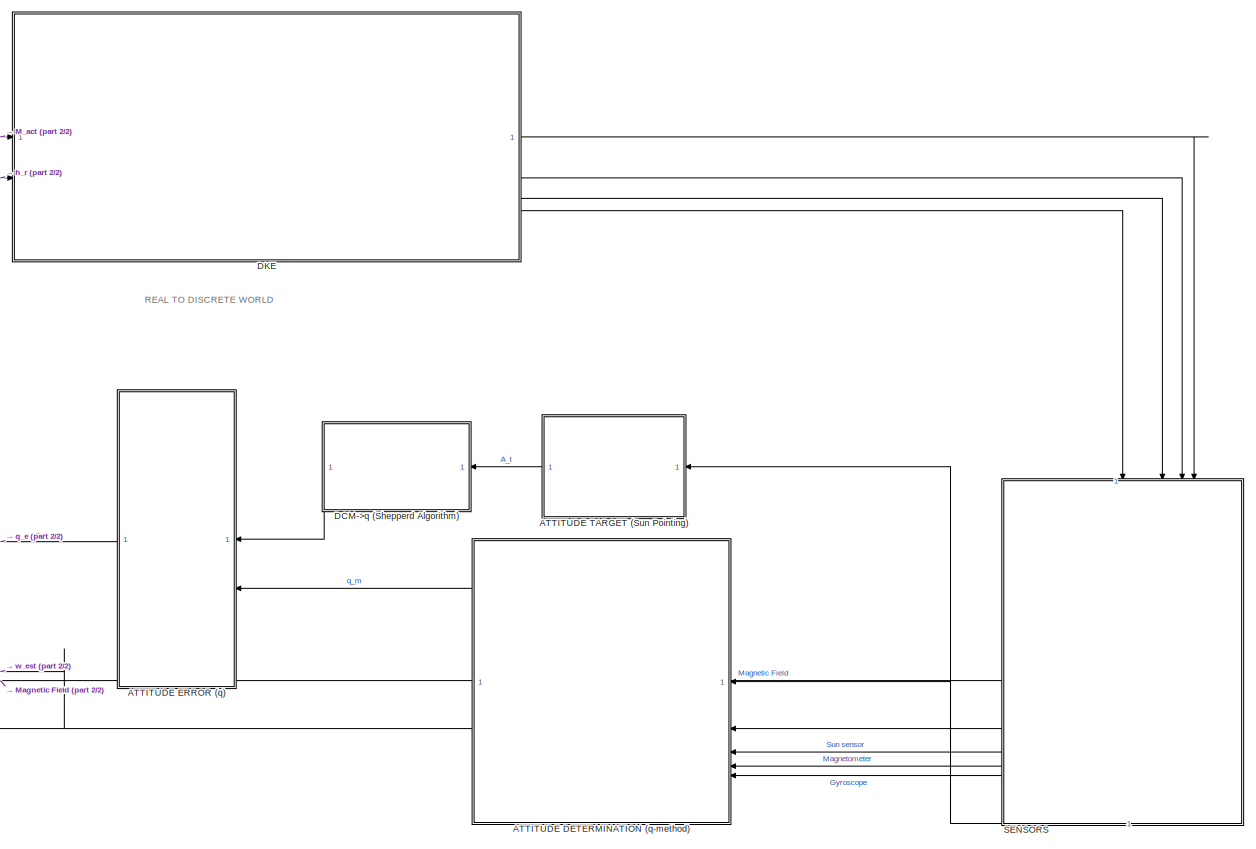
[diagram: root canvas - part 1/2, right side, full height]
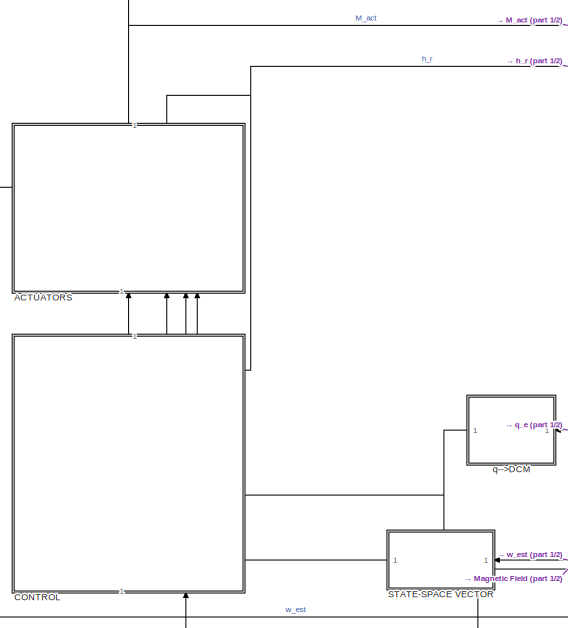
[diagram: root canvas - part 2/2, middle left region]
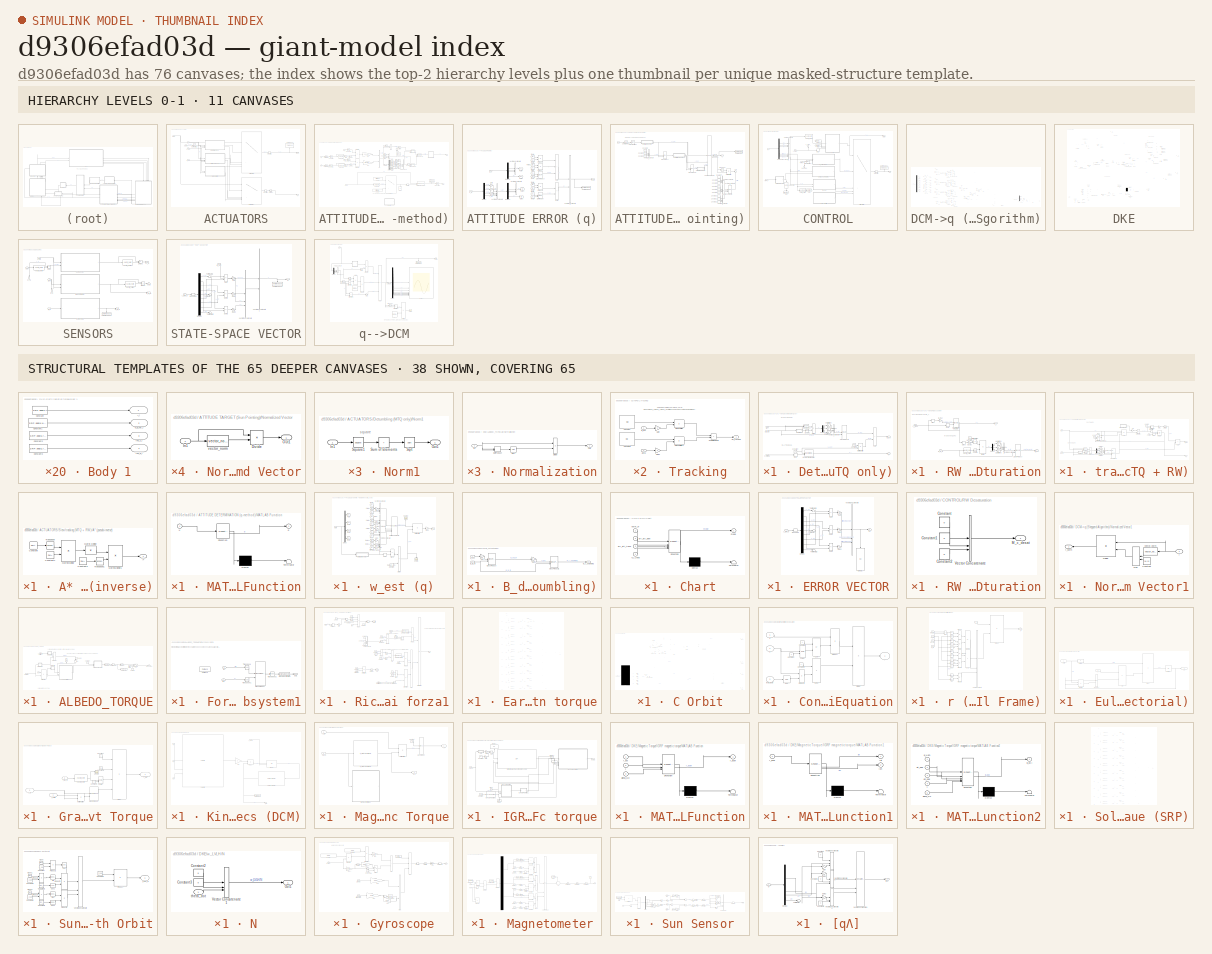
[diagram: thumbnail index - top-2 hierarchy levels (11 canvases) + 38 structural-template representatives of the remaining 65 canvases]
MODEL slx_d9306efad03d
KIND model
CONFIG AbsTol = auto
CONFIG EnableMultiTasking = off
CONFIG FixedStep = 0.1
CONFIG MaxStep = auto
CONFIG MinStep = auto
CONFIG RelTol = 1e-3
CONFIG SampleTimeConstraint = Unconstrained
CONFIG SolverName = ode5
CONFIG StartTime = 0.0
CONFIG StopTime = 2*T
WORKSPACE source: mxarray member
WORKSPACE Pnull: Simulink.Parameter (value not decoded)
WORKSPACE rho_albedo_medio: Simulink.Parameter (value not decoded)
BLOCK [SubSystem] ACTUATORS
  NameLocation = top
  PortSchema = {"entries":[{"content":{"sides":[{"content":{"connectorIds":["In1","In2","In3","In4"]},"type":"ConnectorPlacement.EquallySpacedRectSide","uuid":"6f22ed06-999b-49a4-bbcf-c00740f0bb3e"},{"content":{"connectorIds":["Out1","Out2"],"side":"RIGHT"},"type":"ConnectorPlacement.EquallySpacedRectSide","uuid":"a2723920-c354-4b44-95a5-a047723a6fce"},{"content":{"connectorIds":["In5"],"side":"TOP"},"type":"Con...<+396ch>
BLOCK [Inport] ACTUATORS/B_B_m
  Port = 3
BLOCK [SubSystem] ACTUATORS/Detumbling (MTQ only)
BLOCK [Inport] ACTUATORS/Detumbling (MTQ only)/B_B_m
  Port = 2
BLOCK [Constant] ACTUATORS/Detumbling (MTQ only)/Constant
  Value = 0
BLOCK [Constant] ACTUATORS/Detumbling (MTQ only)/Constant1
  Value = RW.A
BLOCK [Reference] ACTUATORS/Detumbling (MTQ only)/Cross Product  REF=matrix_library/Cross Product
  LibrarySourceBlock = simulink/Matrix\nOperations/Cross Product
  SourceBlock = matrix_library/Cross Product
  SourceType = CrossProduct
BLOCK [Reference] ACTUATORS/Detumbling (MTQ only)/Cross Product2  REF=matrix_library/Cross Product
  LibrarySourceBlock = simulink/Matrix\nOperations/Cross Product
  SourceBlock = matrix_library/Cross Product
  SourceType = CrossProduct
BLOCK [Delay] ACTUATORS/Detumbling (MTQ only)/Delay
  DelayLength = 1
  InputPortMap = u0
  SampleTime = q.Ts
BLOCK [Demux] ACTUATORS/Detumbling (MTQ only)/Demux
  Outputs = 3
BLOCK [DiscreteIntegrator] ACTUATORS/Detumbling (MTQ only)/Discrete-Time Integrator
  ICPrevOutput = DiscIntNeverNeededParam
  ICPrevScaledInput = DiscIntNeverNeededParam
  InitialConditionSetting = Auto
  InitialConditionSource = external
  SampleTime = -1
BLOCK [Product] ACTUATORS/Detumbling (MTQ only)/Divide
  Inputs = */
BLOCK [Outport] ACTUATORS/Detumbling (MTQ only)/M_act
BLOCK [Inport] ACTUATORS/Detumbling (MTQ only)/M_c
BLOCK [Product] ACTUATORS/Detumbling (MTQ only)/MatrixMultiply
  Multiplication = Matrix(*)
BLOCK [SubSystem] ACTUATORS/Detumbling (MTQ only)/Norm1
BLOCK [Inport] ACTUATORS/Detumbling (MTQ only)/Norm1/In1
BLOCK [Outport] ACTUATORS/Detumbling (MTQ only)/Norm1/Out1
BLOCK [Sqrt] ACTUATORS/Detumbling (MTQ only)/Norm1/Sqrt
BLOCK [Math] ACTUATORS/Detumbling (MTQ only)/Norm1/Square1
  Operator = square
BLOCK [Sum] ACTUATORS/Detumbling (MTQ only)/Norm1/Sum of Elements
  IconShape = rectangular
  Inputs = +
BLOCK [Saturate] ACTUATORS/Detumbling (MTQ only)/Saturation3
  LowerLimit = -MTQ.D_max_XY
  UpperLimit = MTQ.D_max_XY
BLOCK [Saturate] ACTUATORS/Detumbling (MTQ only)/Saturation4
  LowerLimit = -MTQ.D_max_XY
  UpperLimit = MTQ.D_max_XY
BLOCK [Saturate] ACTUATORS/Detumbling (MTQ only)/Saturation5
  LowerLimit = -MTQ.D_max_Z
  UpperLimit = MTQ.D_max_Z
BLOCK [Math] ACTUATORS/Detumbling (MTQ only)/Square1
  Operator = square
BLOCK [Sum] ACTUATORS/Detumbling (MTQ only)/Sum
  IconShape = rectangular
BLOCK [Concatenate] ACTUATORS/Detumbling (MTQ only)/Vector Concatenate1
  NumInputs = 3
BLOCK [Outport] ACTUATORS/Detumbling (MTQ only)/h_r
  Port = 2
BLOCK [Inport] ACTUATORS/Detumbling (MTQ only)/h_r_feed
  Port = 3
BLOCK [Outport] ACTUATORS/M_act
BLOCK [Inport] ACTUATORS/M_c
BLOCK [MultiPortSwitch] ACTUATORS/Multiport Switch
  DiagnosticForDefault = None
  InputSameDT = off
  Inputs = 4
  SaturateOnIntegerOverflow = off
BLOCK [MultiPortSwitch] ACTUATORS/Multiport Switch1
  DiagnosticForDefault = None
  InputSameDT = off
  Inputs = 4
  SaturateOnIntegerOverflow = off
BLOCK [SubSystem] ACTUATORS/RW Desaturation
BLOCK [Gain] ACTUATORS/RW Desaturation/-M_max
  Gain = -RW.T_max
BLOCK [Inport] ACTUATORS/RW Desaturation/B_B_m
  Port = 2
BLOCK [Constant] ACTUATORS/RW Desaturation/Constant
  Value = RW.A
BLOCK [Reference] ACTUATORS/RW Desaturation/Cross Product  REF=matrix_library/Cross Product
  LibrarySourceBlock = simulink/Matrix\nOperations/Cross Product
  SourceBlock = matrix_library/Cross Product
  SourceType = CrossProduct
BLOCK [Delay] ACTUATORS/RW Desaturation/Delay
  DelayLength = 1
  InputPortMap = u0
  SampleTime = q.Ts
BLOCK [Demux] ACTUATORS/RW Desaturation/Demux
  Outputs = 3
BLOCK [DiscreteIntegrator] ACTUATORS/RW Desaturation/Discrete-Time Integrator
  ICPrevOutput = DiscIntNeverNeededParam
  ICPrevScaledInput = DiscIntNeverNeededParam
  InitialConditionSetting = Auto
  InitialConditionSource = external
  SampleTime = -1
BLOCK [Product] ACTUATORS/RW Desaturation/Divide
  Inputs = */
BLOCK [Outport] ACTUATORS/RW Desaturation/M_act
BLOCK [Gain] ACTUATORS/RW Desaturation/M_max
  Gain = RW.T_max
BLOCK [Product] ACTUATORS/RW Desaturation/MatrixMultiply
  Multiplication = Matrix(*)
BLOCK [Saturate] ACTUATORS/RW Desaturation/Saturation3
  LowerLimit = -MTQ.D_max_XY
  UpperLimit = MTQ.D_max_XY
BLOCK [Saturate] ACTUATORS/RW Desaturation/Saturation4
  LowerLimit = -MTQ.D_max_XY
  UpperLimit = MTQ.D_max_XY
BLOCK [Saturate] ACTUATORS/RW Desaturation/Saturation5
  LowerLimit = -MTQ.D_max_Z
  UpperLimit = MTQ.D_max_Z
BLOCK [Signum] ACTUATORS/RW Desaturation/Sign
BLOCK [Signum] ACTUATORS/RW Desaturation/Sign1
BLOCK [Math] ACTUATORS/RW Desaturation/Square
  Operator = square
BLOCK [Concatenate] ACTUATORS/RW Desaturation/Vector Concatenate1
  NumInputs = 3
BLOCK [Outport] ACTUATORS/RW Desaturation/h_r
  Port = 2
BLOCK [Inport] ACTUATORS/RW Desaturation/h_r_feed
BLOCK [Reference] ACTUATORS/RW Desaturation/vector_norm1  REF=LIBRARY_SAD/vector_norm
  NameLocation = top
  SourceBlock = LIBRARY_SAD/vector_norm
  SourceType = SubSystem
BLOCK [RateLimiter] ACTUATORS/Rate Limiter1
  SampleTimeMode = inherited
BLOCK [RateLimiter] ACTUATORS/Rate Limiter2
  SampleTimeMode = inherited
BLOCK [RateTransition] ACTUATORS/Rate Transition5
  OutPortSampleTime = max([Sun_sensor.Ts,Magmeter.Ts,Gyro.Ts])
BLOCK [Saturate] ACTUATORS/Saturation6
  LowerLimit = -RW.h_max
  UpperLimit = RW.h_max
BLOCK [SubSystem] ACTUATORS/Slew//tracking (MTQ + RW)
BLOCK [SubSystem] ACTUATORS/Slew//tracking (MTQ + RW)/A* (pseudo-inverse)
BLOCK [Outport] ACTUATORS/Slew//tracking (MTQ + RW)/A* (pseudo-inverse)/A*
BLOCK [Constant] ACTUATORS/Slew//tracking (MTQ + RW)/A* (pseudo-inverse)/Constant
  Value = RW.A
BLOCK [Constant] ACTUATORS/Slew//tracking (MTQ + RW)/A* (pseudo-inverse)/Constant1
  Value = RW.A
BLOCK [Constant] ACTUATORS/Slew//tracking (MTQ + RW)/A* (pseudo-inverse)/Constant2
  Value = RW.A
BLOCK [Product] ACTUATORS/Slew//tracking (MTQ + RW)/A* (pseudo-inverse)/Matrix Divide
  Inputs = /
  Multiplication = Matrix(*)
BLOCK [Product] ACTUATORS/Slew//tracking (MTQ + RW)/A* (pseudo-inverse)/MatrixMultiply
  Multiplication = Matrix(*)
BLOCK [Product] ACTUATORS/Slew//tracking (MTQ + RW)/A* (pseudo-inverse)/MatrixMultiply1
  Multiplication = Matrix(*)
BLOCK [Math] ACTUATORS/Slew//tracking (MTQ + RW)/A* (pseudo-inverse)/Transpose
  Operator = transpose
BLOCK [Math] ACTUATORS/Slew//tracking (MTQ + RW)/A* (pseudo-inverse)/Transpose1
  Operator = transpose
BLOCK [Inport] ACTUATORS/Slew//tracking (MTQ + RW)/B_B_m
  Port = 2
BLOCK [Constant] ACTUATORS/Slew//tracking (MTQ + RW)/Constant
  Value = RW.A
BLOCK [Constant] ACTUATORS/Slew//tracking (MTQ + RW)/Constant1
  Value = RW.A
BLOCK [Reference] ACTUATORS/Slew//tracking (MTQ + RW)/Cross Product  REF=matrix_library/Cross Product
  LibrarySourceBlock = simulink/Matrix\nOperations/Cross Product
  SourceBlock = matrix_library/Cross Product
  SourceType = CrossProduct
BLOCK [Reference] ACTUATORS/Slew//tracking (MTQ + RW)/Cross Product1  REF=matrix_library/Cross Product
  LibrarySourceBlock = simulink/Matrix\nOperations/Cross Product
  SourceBlock = matrix_library/Cross Product
  SourceType = CrossProduct
BLOCK [Reference] ACTUATORS/Slew//tracking (MTQ + RW)/Cross Product2  REF=matrix_library/Cross Product
  LibrarySourceBlock = simulink/Matrix\nOperations/Cross Product
  SourceBlock = matrix_library/Cross Product
  SourceType = CrossProduct
BLOCK [Delay] ACTUATORS/Slew//tracking (MTQ + RW)/Delay
  DelayLength = 1
  InputPortMap = u0
  SampleTime = q.Ts
BLOCK [Demux] ACTUATORS/Slew//tracking (MTQ + RW)/Demux
  Outputs = 3
BLOCK [Product] ACTUATORS/Slew//tracking (MTQ + RW)/Divide
  Inputs = */
BLOCK [Gain] ACTUATORS/Slew//tracking (MTQ + RW)/Gain
  Gain = -1
BLOCK [Gain] ACTUATORS/Slew//tracking (MTQ + RW)/Gain1
  Gain = -1
BLOCK [Integrator] ACTUATORS/Slew//tracking (MTQ + RW)/Integrator
  InitialConditionSource = external
BLOCK [Outport] ACTUATORS/Slew//tracking (MTQ + RW)/M_act
BLOCK [Inport] ACTUATORS/Slew//tracking (MTQ + RW)/M_c
BLOCK [Product] ACTUATORS/Slew//tracking (MTQ + RW)/MatrixMultiply
  Multiplication = Matrix(*)
BLOCK [Product] ACTUATORS/Slew//tracking (MTQ + RW)/MatrixMultiply1
  Multiplication = Matrix(*)
BLOCK [Product] ACTUATORS/Slew//tracking (MTQ + RW)/MatrixMultiply2
  Multiplication = Matrix(*)
BLOCK [SubSystem] ACTUATORS/Slew//tracking (MTQ + RW)/Norm1
BLOCK [Inport] ACTUATORS/Slew//tracking (MTQ + RW)/Norm1/In1
BLOCK [Outport] ACTUATORS/Slew//tracking (MTQ + RW)/Norm1/Out1
BLOCK [Sqrt] ACTUATORS/Slew//tracking (MTQ + RW)/Norm1/Sqrt
BLOCK [Math] ACTUATORS/Slew//tracking (MTQ + RW)/Norm1/Square1
  Operator = square
BLOCK [Sum] ACTUATORS/Slew//tracking (MTQ + RW)/Norm1/Sum of Elements
  IconShape = rectangular
  Inputs = +
BLOCK [RateLimiter] ACTUATORS/Slew//tracking (MTQ + RW)/Rate Limiter
  FallingSlewLimit = -0.1
  RisingSlewLimit = 0.1
  SampleTimeMode = inherited
BLOCK [Saturate] ACTUATORS/Slew//tracking (MTQ + RW)/Saturation
  LowerLimit = -RW.T_max
  UpperLimit = RW.T_max
BLOCK [Saturate] ACTUATORS/Slew//tracking (MTQ + RW)/Saturation3
  LowerLimit = -MTQ.D_max_XY
  UpperLimit = MTQ.D_max_XY
BLOCK [Saturate] ACTUATORS/Slew//tracking (MTQ + RW)/Saturation4
  LowerLimit = -MTQ.D_max_XY
  UpperLimit = MTQ.D_max_XY
BLOCK [Saturate] ACTUATORS/Slew//tracking (MTQ + RW)/Saturation5
  LowerLimit = -MTQ.D_max_Z
  UpperLimit = MTQ.D_max_Z
BLOCK [Math] ACTUATORS/Slew//tracking (MTQ + RW)/Square1
  Operator = square
BLOCK [Sum] ACTUATORS/Slew//tracking (MTQ + RW)/Sum
  IconShape = rectangular
  Inputs = ++-
BLOCK [Sum] ACTUATORS/Slew//tracking (MTQ + RW)/Sum1
  IconShape = rectangular
BLOCK [Concatenate] ACTUATORS/Slew//tracking (MTQ + RW)/Vector Concatenate1
  NumInputs = 3
BLOCK [Outport] ACTUATORS/Slew//tracking (MTQ + RW)/h_r
  Port = 2
BLOCK [Inport] ACTUATORS/Slew//tracking (MTQ + RW)/h_r_feed
  Port = 4
BLOCK [Inport] ACTUATORS/Slew//tracking (MTQ + RW)/w_est
  Port = 3
BLOCK [ToWorkspace] ACTUATORS/To Workspace3
  FixptAsFi = on
  MaxDataPoints = inf
  NameLocation = right
  SampleTime = -1
  VariableName = M_act
BLOCK [Outport] ACTUATORS/h_r
  Port = 2
BLOCK [Inport] ACTUATORS/h_r_feed
  Port = 4
BLOCK [Inport] ACTUATORS/mode
  Port = 2
BLOCK [Inport] ACTUATORS/w_est
  Port = 5
BLOCK [SubSystem] ATTITUDE DETERMINATION (q-method)
BLOCK [Inport] ATTITUDE DETERMINATION (q-method)/B_N
  Port = 2
BLOCK [Constant] ATTITUDE DETERMINATION (q-method)/Constant
  Value = Filter.DETUMBLING.omega_t
BLOCK [Constant] ATTITUDE DETERMINATION (q-method)/Constant1
  Value = Filter.POINTING.omega_t
BLOCK [Demux] ATTITUDE DETERMINATION (q-method)/Demux
  Outputs = 9
BLOCK [Reference] ATTITUDE DETERMINATION (q-method)/Discrete Varying Lowpass  REF=cstblocks/Linear Parameter Varying/Discrete Varying Lowpass
  SourceBlock = cstblocks/Linear Parameter Varying/Discrete Varying Lowpass
  SourceType = Discrete Varying Lowpass
BLOCK [Display] ATTITUDE DETERMINATION (q-method)/Display
  Decimation = 1
  NameLocation = left
BLOCK [Product] ATTITUDE DETERMINATION (q-method)/Divide
  Inputs = */
BLOCK [Product] ATTITUDE DETERMINATION (q-method)/Divide1
  Inputs = */
BLOCK [From] ATTITUDE DETERMINATION (q-method)/From
  GotoTag = B11
BLOCK [From] ATTITUDE DETERMINATION (q-method)/From1
  GotoTag = B22
BLOCK [From] ATTITUDE DETERMINATION (q-method)/From2
  GotoTag = B33
BLOCK [From] ATTITUDE DETERMINATION (q-method)/From3
  GotoTag = B12
BLOCK [From] ATTITUDE DETERMINATION (q-method)/From4
  GotoTag = B13
BLOCK [From] ATTITUDE DETERMINATION (q-method)/From5
  GotoTag = B21
BLOCK [From] ATTITUDE DETERMINATION (q-method)/From6
  GotoTag = B31
BLOCK [From] ATTITUDE DETERMINATION (q-method)/From7
  GotoTag = B23
BLOCK [From] ATTITUDE DETERMINATION (q-method)/From8
  GotoTag = B32
BLOCK [Gain] ATTITUDE DETERMINATION (q-method)/Gain
  Gain = Sun_sensor.alpha
BLOCK [Gain] ATTITUDE DETERMINATION (q-method)/Gain1
  Gain = Magmeter.alpha
BLOCK [Goto] ATTITUDE DETERMINATION (q-method)/Goto
  GotoTag = B11
BLOCK [Goto] ATTITUDE DETERMINATION (q-method)/Goto1
  GotoTag = B21
BLOCK [Goto] ATTITUDE DETERMINATION (q-method)/Goto2
  GotoTag = B31
BLOCK [Goto] ATTITUDE DETERMINATION (q-method)/Goto3
  GotoTag = B12
BLOCK [Goto] ATTITUDE DETERMINATION (q-method)/Goto4
  GotoTag = B22
BLOCK [Goto] ATTITUDE DETERMINATION (q-method)/Goto5
  GotoTag = B32
BLOCK [Goto] ATTITUDE DETERMINATION (q-method)/Goto6
  GotoTag = B13
BLOCK [Goto] ATTITUDE DETERMINATION (q-method)/Goto7
  GotoTag = B23
BLOCK [Goto] ATTITUDE DETERMINATION (q-method)/Goto8
  GotoTag = B33
BLOCK [Constant] ATTITUDE DETERMINATION (q-method)/I
  NameLocation = right
  Value = [1,0,0;0,1,0;0,0,1]
BLOCK [SubSystem] ATTITUDE DETERMINATION (q-method)/MATLAB Function
  ErrorFcn = Stateflow.Translate.translate
  PermitHierarchicalResolution = ExplicitOnly
  SFBlockType = MATLAB Function
  SystemSampleTime = q.Ts
  TreatAsAtomicUnit = on
BLOCK [Demux] ATTITUDE DETERMINATION (q-method)/MATLAB Function/ Demux 
  Outputs = 1
BLOCK [S-Function] ATTITUDE DETERMINATION (q-method)/MATLAB Function/ SFunction 
  EnableBusSupport = off
  FunctionName = sf_sfun
  PortCounts = [1 2]
  SFcnIsStateOwnerBlock = off
  SFunctionDeploymentMode = off
  Tag = Stateflow S-Function 2
BLOCK [Terminator] ATTITUDE DETERMINATION (q-method)/MATLAB Function/ Terminator 
BLOCK [Outport] ATTITUDE DETERMINATION (q-method)/MATLAB Function/q
BLOCK [Inport] ATTITUDE DETERMINATION (q-method)/MATLAB Function/u
BLOCK [Concatenate] ATTITUDE DETERMINATION (q-method)/Matrix Concatenate
  ConcatenateDimension = 2
  Mode = Multidimensional array
BLOCK [Concatenate] ATTITUDE DETERMINATION (q-method)/Matrix Concatenate1
  ConcatenateDimension = 2
  Mode = Multidimensional array
BLOCK [Concatenate] ATTITUDE DETERMINATION (q-method)/Matrix Concatenate2
  Mode = Multidimensional array
BLOCK [Product] ATTITUDE DETERMINATION (q-method)/Matrix Multiply
  Multiplication = Matrix(*)
BLOCK [Product] ATTITUDE DETERMINATION (q-method)/Matrix Multiply1
  Multiplication = Matrix(*)
BLOCK [Sum] ATTITUDE DETERMINATION (q-method)/Minus
  IconShape = rectangular
  Inputs = +-
BLOCK [Sum] ATTITUDE DETERMINATION (q-method)/Minus1
  IconShape = rectangular
  Inputs = +-
BLOCK [Sum] ATTITUDE DETERMINATION (q-method)/Minus2
  IconShape = rectangular
  Inputs = +-
BLOCK [Sum] ATTITUDE DETERMINATION (q-method)/Minus3
  IconShape = rectangular
  Inputs = +-
BLOCK [Sum] ATTITUDE DETERMINATION (q-method)/Plus
  IconShape = rectangular
BLOCK [Sum] ATTITUDE DETERMINATION (q-method)/Plus1
  IconShape = rectangular
BLOCK [Sum] ATTITUDE DETERMINATION (q-method)/Plus2
  IconShape = rectangular
  Inputs = +++
BLOCK [Product] ATTITUDE DETERMINATION (q-method)/Product
  NameLocation = right
BLOCK [RateLimiter] ATTITUDE DETERMINATION (q-method)/Rate Limiter
  FallingSlewLimit = -5
  InitialCondition = Filter.DETUMBLING.omega_t
  RisingSlewLimit = 5
  SampleTimeMode = inherited
BLOCK [RateTransition] ATTITUDE DETERMINATION (q-method)/Rate Transition
  OutPortSampleTime = max([Sun_sensor.Ts,Magmeter.Ts,Gyro.Ts])
BLOCK [RateTransition] ATTITUDE DETERMINATION (q-method)/Rate Transition1
  OutPortSampleTime = max([Sun_sensor.Ts,Magmeter.Ts,Gyro.Ts])
BLOCK [RateTransition] ATTITUDE DETERMINATION (q-method)/Rate Transition2
  OutPortSampleTime = max([Sun_sensor.Ts,Magmeter.Ts,Gyro.Ts])
BLOCK [RateTransition] ATTITUDE DETERMINATION (q-method)/Rate Transition3
  OutPortSampleTime = max([Sun_sensor.Ts,Magmeter.Ts,Gyro.Ts])
BLOCK [RateTransition] ATTITUDE DETERMINATION (q-method)/Rate Transition4
  OutPortSampleTime = max([Sun_sensor.Ts,Magmeter.Ts,Gyro.Ts])
BLOCK [Reshape] ATTITUDE DETERMINATION (q-method)/Reshape
  OutputDimensionality = Customize
  OutputDimensions = [9,1]
BLOCK [Inport] ATTITUDE DETERMINATION (q-method)/S_N
BLOCK [Switch] ATTITUDE DETERMINATION (q-method)/Switch
  Criteria = u2 > Threshold
  InputSameDT = off
  SaturateOnIntegerOverflow = off
  Threshold = 0.05
BLOCK [ToWorkspace] ATTITUDE DETERMINATION (q-method)/To Workspace5
  FixptAsFi = on
  MaxDataPoints = inf
  NameLocation = right
  SampleTime = -1
  VariableName = w_est
BLOCK [Math] ATTITUDE DETERMINATION (q-method)/Transpose
  Operator = transpose
BLOCK [Math] ATTITUDE DETERMINATION (q-method)/Transpose1
  Operator = transpose
BLOCK [Math] ATTITUDE DETERMINATION (q-method)/Transpose2
  Operator = transpose
BLOCK [Math] ATTITUDE DETERMINATION (q-method)/Transpose3
  Operator = transpose
BLOCK [Concatenate] ATTITUDE DETERMINATION (q-method)/Vector Concatenate
  NumInputs = 3
BLOCK [ZeroOrderHold] ATTITUDE DETERMINATION (q-method)/Zero-Order Hold
  SampleTime = max([Sun_sensor.Ts,Magmeter.Ts,Gyro.Ts])
BLOCK [ZeroOrderHold] ATTITUDE DETERMINATION (q-method)/Zero-Order Hold1
  SampleTime = max([Sun_sensor.Ts,Magmeter.Ts,Gyro.Ts])
BLOCK [Outport] ATTITUDE DETERMINATION (q-method)/q_m
BLOCK [Inport] ATTITUDE DETERMINATION (q-method)/s1_B
  Port = 3
BLOCK [Inport] ATTITUDE DETERMINATION (q-method)/s2_B
  Port = 4
BLOCK [Reference] ATTITUDE DETERMINATION (q-method)/vector_norm  REF=LIBRARY_SAD/vector_norm
  NameLocation = top
  SourceBlock = LIBRARY_SAD/vector_norm
  SourceType = SubSystem
BLOCK [Reference] ATTITUDE DETERMINATION (q-method)/vector_norm1  REF=LIBRARY_SAD/vector_norm
  NameLocation = top
  SourceBlock = LIBRARY_SAD/vector_norm
  SourceType = SubSystem
BLOCK [Reference] ATTITUDE DETERMINATION (q-method)/vector_norm2  REF=LIBRARY_SAD/vector_norm
  NameLocation = top
  SourceBlock = LIBRARY_SAD/vector_norm
  SourceType = SubSystem
BLOCK [Inport] ATTITUDE DETERMINATION (q-method)/w_B_m
  Port = 5
BLOCK [Outport] ATTITUDE DETERMINATION (q-method)/w_est
  Port = 2
BLOCK [SubSystem] ATTITUDE DETERMINATION (q-method)/w_est (q)
  Commented = on
BLOCK [Constant] ATTITUDE DETERMINATION (q-method)/w_est (q)/Constant
  Value = max(Sun_sensor.Ts,Magmeter.Ts)
BLOCK [Delay] ATTITUDE DETERMINATION (q-method)/w_est (q)/Delay
  DelayLength = 1
  InputPortMap = u0
BLOCK [Demux] ATTITUDE DETERMINATION (q-method)/w_est (q)/Demux
BLOCK [Product] ATTITUDE DETERMINATION (q-method)/w_est (q)/Divide
  Inputs = */
BLOCK [From] ATTITUDE DETERMINATION (q-method)/w_est (q)/From1
  GotoTag = q2
BLOCK [From] ATTITUDE DETERMINATION (q-method)/w_est (q)/From10
  GotoTag = q3
BLOCK [From] ATTITUDE DETERMINATION (q-method)/w_est (q)/From11
  GotoTag = q2
BLOCK [From] ATTITUDE DETERMINATION (q-method)/w_est (q)/From12
  GotoTag = q1
BLOCK [From] ATTITUDE DETERMINATION (q-method)/w_est (q)/From2
  GotoTag = q3
BLOCK [From] ATTITUDE DETERMINATION (q-method)/w_est (q)/From3
  GotoTag = q4
BLOCK [From] ATTITUDE DETERMINATION (q-method)/w_est (q)/From4
  GotoTag = q1
BLOCK [From] ATTITUDE DETERMINATION (q-method)/w_est (q)/From5
  GotoTag = q4
BLOCK [From] ATTITUDE DETERMINATION (q-method)/w_est (q)/From6
  GotoTag = q3
BLOCK [From] ATTITUDE DETERMINATION (q-method)/w_est (q)/From7
  GotoTag = q4
BLOCK [From] ATTITUDE DETERMINATION (q-method)/w_est (q)/From8
  GotoTag = q1
BLOCK [From] ATTITUDE DETERMINATION (q-method)/w_est (q)/From9
  GotoTag = q2
BLOCK [Gain] ATTITUDE DETERMINATION (q-method)/w_est (q)/Gain
  Gain = -1
BLOCK [Gain] ATTITUDE DETERMINATION (q-method)/w_est (q)/Gain1
  Gain = -1
BLOCK [Gain] ATTITUDE DETERMINATION (q-method)/w_est (q)/Gain2
  Gain = -1
BLOCK [Gain] ATTITUDE DETERMINATION (q-method)/w_est (q)/Gain3
  Gain = -1
BLOCK [Gain] ATTITUDE DETERMINATION (q-method)/w_est (q)/Gain4
  Gain = -1
BLOCK [Gain] ATTITUDE DETERMINATION (q-method)/w_est (q)/Gain5
  Gain = -1
BLOCK [Gain] ATTITUDE DETERMINATION (q-method)/w_est (q)/Gain6
  Gain = 2
BLOCK [Goto] ATTITUDE DETERMINATION (q-method)/w_est (q)/Goto
  GotoTag = q1
BLOCK [Goto] ATTITUDE DETERMINATION (q-method)/w_est (q)/Goto1
  GotoTag = q4
BLOCK [Goto] ATTITUDE DETERMINATION (q-method)/w_est (q)/Goto2
  GotoTag = q3
BLOCK [Goto] ATTITUDE DETERMINATION (q-method)/w_est (q)/Goto3
  GotoTag = q2
BLOCK [Concatenate] ATTITUDE DETERMINATION (q-method)/w_est (q)/Matrix Concatenate
  ConcatenateDimension = 2
  Mode = Multidimensional array
  NumInputs = 4
BLOCK [Product] ATTITUDE DETERMINATION (q-method)/w_est (q)/MatrixMultiply
  Multiplication = Matrix(*)
BLOCK [Sum] ATTITUDE DETERMINATION (q-method)/w_est (q)/Minus
  IconShape = rectangular
  Inputs = +-
BLOCK [SubSystem] ATTITUDE DETERMINATION (q-method)/w_est (q)/Normalized Vector
BLOCK [Product] ATTITUDE DETERMINATION (q-method)/w_est (q)/Normalized Vector/Divide
  Inputs = */
  NameLocation = top
BLOCK [Inport] ATTITUDE DETERMINATION (q-method)/w_est (q)/Normalized Vector/r
BLOCK [Outport] ATTITUDE DETERMINATION (q-method)/w_est (q)/Normalized Vector/s1_B
BLOCK [Reference] ATTITUDE DETERMINATION (q-method)/w_est (q)/Normalized Vector/vector_norm  REF=LIBRARY_SAD/vector_norm
  SourceBlock = LIBRARY_SAD/vector_norm
  SourceType = SubSystem
BLOCK [Scope] ATTITUDE DETERMINATION (q-method)/w_est (q)/Scope
  ActiveDisplayYMaximum = 1
  ActiveDisplayYMinimum = -1
  DataLoggingVariableName = ScopeData67
  Floating = off
  GraphicalSettings = {"Style":{"BackgroundColor":[0.12941176470588237,0.12941176470588237,0.12941176470588237],"AxesColor":[0.07058823529411765,0.07058823529411765,0.07058823529411765],"LabelsColor":[0.8509803921568627,0.8509803921568627,0.8509803921568627],"PreserveColors":false,"Visible":[true,true,true,true],"LineStyle":["-","-","-","-"],"LineWidth":[1.5,1.5,1.5,1.5],"BarWidth":[0.9,0.9,0.9,0.9],"LineColor":["auto"...<+2241ch>
  MultipleDisplayCache = [{"MaxYLimMag":1,"MaxYLimReal":1,"MinYLimMag":0,"MinYLimReal":-1,"PlotAsMagnitudePhase":false,"ShowGrid":true,"ShowLegend":false,"Title":"%<SignalLabel>","YLabel":""}]
  NameLocation = left
  NumInputPorts = 1
  ScopeFrameLocation = window
  WasSavedAsWebScope = on
  WindowPosition = [876.000000,152.000000,560.000000,420.000000,]
BLOCK [Scope] ATTITUDE DETERMINATION (q-method)/w_est (q)/Scope1
  ActiveDisplayYMaximum = 1
  ActiveDisplayYMinimum = -1
  DataLoggingVariableName = ScopeData68
  Floating = off
  GraphicalSettings = {"Style":{"BackgroundColor":[0.12941176470588237,0.12941176470588237,0.12941176470588237],"AxesColor":[0.07058823529411765,0.07058823529411765,0.07058823529411765],"LabelsColor":[0.8509803921568627,0.8509803921568627,0.8509803921568627],"PreserveColors":false,"Visible":[true,true,true,true,true,true,true,true,true,true,true,true],"LineStyle":["-","-","-","-","-","-","-","-","-","-","-","-"],"LineW...<+3326ch>
  MultipleDisplayCache = [{"MaxYLimMag":1,"MaxYLimReal":1,"MinYLimMag":0,"MinYLimReal":-1,"PlotAsMagnitudePhase":false,"ShowGrid":true,"ShowLegend":false,"Title":"%<SignalLabel>","YLabel":""}]
  NameLocation = right
  NumInputPorts = 1
  ScopeFrameLocation = window
  WasSavedAsWebScope = on
  WindowPosition = [573.000000,323.000000,560.000000,420.000000,]
BLOCK [Concatenate] ATTITUDE DETERMINATION (q-method)/w_est (q)/Vector Concatenate
  NumInputs = 3
BLOCK [Concatenate] ATTITUDE DETERMINATION (q-method)/w_est (q)/Vector Concatenate1
  NumInputs = 3
BLOCK [Concatenate] ATTITUDE DETERMINATION (q-method)/w_est (q)/Vector Concatenate2
  NumInputs = 3
BLOCK [Concatenate] ATTITUDE DETERMINATION (q-method)/w_est (q)/Vector Concatenate3
  NumInputs = 3
BLOCK [Inport] ATTITUDE DETERMINATION (q-method)/w_est (q)/q_m
BLOCK [Outport] ATTITUDE DETERMINATION (q-method)/w_est (q)/w_est
BLOCK [SubSystem] ATTITUDE ERROR (q)
BLOCK [Reference] ATTITUDE ERROR (q)/Cross Product  REF=matrix_library/Cross Product
  LibrarySourceBlock = simulink/Matrix\nOperations/Cross Product
  SourceBlock = matrix_library/Cross Product
  SourceType = CrossProduct
BLOCK [Demux] ATTITUDE ERROR (q)/Demux
BLOCK [Demux] ATTITUDE ERROR (q)/Demux1
BLOCK [Demux] ATTITUDE ERROR (q)/Demux2
BLOCK [DotProduct] ATTITUDE ERROR (q)/Dot Product
  OutDataTypeStr = Inherit: Inherit via internal rule
BLOCK [From] ATTITUDE ERROR (q)/From
  GotoTag = v1
BLOCK [From] ATTITUDE ERROR (q)/From1
  GotoTag = v2
BLOCK [From] ATTITUDE ERROR (q)/From2
  GotoTag = v1
BLOCK [From] ATTITUDE ERROR (q)/From3
  GotoTag = v2
BLOCK [From] ATTITUDE ERROR (q)/From4
  GotoTag = w1
BLOCK [From] ATTITUDE ERROR (q)/From5
  GotoTag = v2
BLOCK [From] ATTITUDE ERROR (q)/From6
  GotoTag = w2
BLOCK [From] ATTITUDE ERROR (q)/From7
  GotoTag = v1
BLOCK [From] ATTITUDE ERROR (q)/From8
  GotoTag = w1
BLOCK [From] ATTITUDE ERROR (q)/From9
  GotoTag = w2
BLOCK [Gain] ATTITUDE ERROR (q)/Gain
  Gain = -1
BLOCK [Gain] ATTITUDE ERROR (q)/Gain1
  Gain = -1
BLOCK [Gain] ATTITUDE ERROR (q)/Gain2
  Gain = -1
BLOCK [Goto] ATTITUDE ERROR (q)/Goto
  GotoTag = v1
BLOCK [Goto] ATTITUDE ERROR (q)/Goto1
  GotoTag = v2
BLOCK [Goto] ATTITUDE ERROR (q)/Goto2
  GotoTag = w1
BLOCK [Goto] ATTITUDE ERROR (q)/Goto3
  GotoTag = w2
BLOCK [Product] ATTITUDE ERROR (q)/Product
BLOCK [Product] ATTITUDE ERROR (q)/Product1
BLOCK [Product] ATTITUDE ERROR (q)/Product2
BLOCK [Sum] ATTITUDE ERROR (q)/Sum
  IconShape = rectangular
  Inputs = +++
BLOCK [Sum] ATTITUDE ERROR (q)/Sum1
  IconShape = rectangular
  Inputs = +-
BLOCK [ToWorkspace] ATTITUDE ERROR (q)/To Workspace
  FixptAsFi = on
  MaxDataPoints = inf
  SampleTime = -1
  VariableName = q_err
BLOCK [Concatenate] ATTITUDE ERROR (q)/Vector Concatenate
  NumInputs = 4
BLOCK [Concatenate] ATTITUDE ERROR (q)/Vector Concatenate1
  NumInputs = 3
BLOCK [Concatenate] ATTITUDE ERROR (q)/Vector Concatenate2
  NumInputs = 3
BLOCK [Concatenate] ATTITUDE ERROR (q)/Vector Concatenate3
BLOCK [Outport] ATTITUDE ERROR (q)/q_err
BLOCK [Inport] ATTITUDE ERROR (q)/q_m
  Port = 2
BLOCK [Inport] ATTITUDE ERROR (q)/q_t
BLOCK [SubSystem] ATTITUDE TARGET (Sun Pointing)
  NameLocation = top
BLOCK [Outport] ATTITUDE TARGET (Sun Pointing)/A_t
BLOCK [Constant] ATTITUDE TARGET (Sun Pointing)/Constant1
  Value = 0
BLOCK [Constant] ATTITUDE TARGET (Sun Pointing)/Constant10
  Value = 0
BLOCK [Constant] ATTITUDE TARGET (Sun Pointing)/Constant11
  Value = 0
BLOCK [Constant] ATTITUDE TARGET (Sun Pointing)/Constant12
BLOCK [Constant] ATTITUDE TARGET (Sun Pointing)/Constant2
  Value = 0
BLOCK [Constant] ATTITUDE TARGET (Sun Pointing)/Constant3
BLOCK [Constant] ATTITUDE TARGET (Sun Pointing)/Constant4
  Value = 0
BLOCK [Constant] ATTITUDE TARGET (Sun Pointing)/Constant5
BLOCK [Constant] ATTITUDE TARGET (Sun Pointing)/Constant6
  Value = 0
BLOCK [Constant] ATTITUDE TARGET (Sun Pointing)/Constant7
BLOCK [Constant] ATTITUDE TARGET (Sun Pointing)/Constant8
  Value = 0
BLOCK [Constant] ATTITUDE TARGET (Sun Pointing)/Constant9
  Value = 0
BLOCK [Reference] ATTITUDE TARGET (Sun Pointing)/Cross Product  REF=matrix_library/Cross Product
  LibrarySourceBlock = simulink/Matrix\nOperations/Cross Product
  SourceBlock = matrix_library/Cross Product
  SourceType = CrossProduct
BLOCK [Reference] ATTITUDE TARGET (Sun Pointing)/Cross Product1  REF=matrix_library/Cross Product
  LibrarySourceBlock = simulink/Matrix\nOperations/Cross Product
  SourceBlock = matrix_library/Cross Product
  SourceType = CrossProduct
BLOCK [Product] ATTITUDE TARGET (Sun Pointing)/MatrixMultiply
  Multiplication = Matrix(*)
BLOCK [SubSystem] ATTITUDE TARGET (Sun Pointing)/Normalized Vector
BLOCK [Product] ATTITUDE TARGET (Sun Pointing)/Normalized Vector/Divide
  Inputs = */
BLOCK [Inport] ATTITUDE TARGET (Sun Pointing)/Normalized Vector/In1
BLOCK [Outport] ATTITUDE TARGET (Sun Pointing)/Normalized Vector/Out1
BLOCK [Reference] ATTITUDE TARGET (Sun Pointing)/Normalized Vector/vector_norm  REF=LIBRARY_SAD/vector_norm
  NameLocation = top
  SourceBlock = LIBRARY_SAD/vector_norm
  SourceType = SubSystem
BLOCK [SubSystem] ATTITUDE TARGET (Sun Pointing)/Normalized Vector1
BLOCK [Product] ATTITUDE TARGET (Sun Pointing)/Normalized Vector1/Divide
  Inputs = */
BLOCK [Inport] ATTITUDE TARGET (Sun Pointing)/Normalized Vector1/In1
BLOCK [Outport] ATTITUDE TARGET (Sun Pointing)/Normalized Vector1/Out1
BLOCK [Reference] ATTITUDE TARGET (Sun Pointing)/Normalized Vector1/vector_norm  REF=LIBRARY_SAD/vector_norm
  NameLocation = top
  SourceBlock = LIBRARY_SAD/vector_norm
  SourceType = SubSystem
BLOCK [SubSystem] ATTITUDE TARGET (Sun Pointing)/Normalized Vector2
BLOCK [Product] ATTITUDE TARGET (Sun Pointing)/Normalized Vector2/Divide
  Inputs = */
  NameLocation = top
BLOCK [Inport] ATTITUDE TARGET (Sun Pointing)/Normalized Vector2/r
BLOCK [Outport] ATTITUDE TARGET (Sun Pointing)/Normalized Vector2/s2_B
BLOCK [Reference] ATTITUDE TARGET (Sun Pointing)/Normalized Vector2/vector_norm  REF=LIBRARY_SAD/vector_norm
  SourceBlock = LIBRARY_SAD/vector_norm
  SourceType = SubSystem
BLOCK [RateTransition] ATTITUDE TARGET (Sun Pointing)/Rate Transition3
  OutPortSampleTime = max([Sun_sensor.Ts,Magmeter.Ts,Gyro.Ts])
BLOCK [Inport] ATTITUDE TARGET (Sun Pointing)/S_N
BLOCK [Sum] ATTITUDE TARGET (Sun Pointing)/Sum
  Inputs = |+-
BLOCK [ToWorkspace] ATTITUDE TARGET (Sun Pointing)/To Workspace
  FixptAsFi = on
  MaxDataPoints = inf
  SampleTime = -1
  VariableName = A_T_N
BLOCK [Math] ATTITUDE TARGET (Sun Pointing)/Transpose
  Operator = transpose
BLOCK [Math] ATTITUDE TARGET (Sun Pointing)/Transpose1
  Operator = transpose
BLOCK [Concatenate] ATTITUDE TARGET (Sun Pointing)/Vector Concatenate
  ConcatenateDimension = 2
  Mode = Multidimensional array
  NumInputs = 3
BLOCK [Concatenate] ATTITUDE TARGET (Sun Pointing)/Vector Concatenate1
  NumInputs = 3
BLOCK [Concatenate] ATTITUDE TARGET (Sun Pointing)/Vector Concatenate2
  NumInputs = 3
BLOCK [Concatenate] ATTITUDE TARGET (Sun Pointing)/Vector Concatenate3
  NumInputs = 3
BLOCK [Concatenate] ATTITUDE TARGET (Sun Pointing)/Vector Concatenate4
  NumInputs = 3
BLOCK [Concatenate] ATTITUDE TARGET (Sun Pointing)/Vector Concatenate5
  ConcatenateDimension = 2
  Mode = Multidimensional array
  NumInputs = 3
BLOCK [ZeroOrderHold] ATTITUDE TARGET (Sun Pointing)/Zero-Order Hold2
  SampleTime = max([Sun_sensor.Ts,Magmeter.Ts,Gyro.Ts])
BLOCK [SubSystem] CONTROL
  NameLocation = left
  PortSchema = {"entries":[{"content":{"sides":[{"content":{},"type":"ConnectorPlacement.EquallySpacedRectSide","uuid":"883b2e58-b302-40a6-9310-8bc36577f20a"},{"content":{"connectorIds":["Out1","Out2","Out3","Out4"],"side":"RIGHT"},"type":"ConnectorPlacement.EquallySpacedRectSide","uuid":"3f5ac81e-dbcc-48df-b297-a852c6b84cd5"},{"content":{"side":"TOP"},"type":"ConnectorPlacement.EquallySpacedRectSide","uuid":"b9...<+388ch>
BLOCK [Inport] CONTROL/A_B//T_e
  Port = 2
BLOCK [Inport] CONTROL/B_B_m
  Port = 3
BLOCK [Outport] CONTROL/B_B_meas
  NameLocation = left
  Port = 3
BLOCK [SubSystem] CONTROL/B_dot (Detumbling)
BLOCK [Inport] CONTROL/B_dot (Detumbling)/B_B_m
  Port = 2
BLOCK [Reference] CONTROL/B_dot (Detumbling)/Cross Product  REF=matrix_library/Cross Product
  LibrarySourceBlock = simulink/Matrix\nOperations/Cross Product
  SourceBlock = matrix_library/Cross Product
  SourceType = CrossProduct
BLOCK [Reference] CONTROL/B_dot (Detumbling)/Cross Product1  REF=matrix_library/Cross Product
  LibrarySourceBlock = simulink/Matrix\nOperations/Cross Product
  SourceBlock = matrix_library/Cross Product
  SourceType = CrossProduct
BLOCK [Gain] CONTROL/B_dot (Detumbling)/Gain
  Gain = -1
BLOCK [Gain] CONTROL/B_dot (Detumbling)/Gain1
  Gain = -k_b
BLOCK [Outport] CONTROL/B_dot (Detumbling)/M_c_detumbling
BLOCK [Inport] CONTROL/B_dot (Detumbling)/w_est
BLOCK [SubSystem] CONTROL/Chart
  ErrorFcn = Stateflow.Translate.translate
  PermitHierarchicalResolution = ExplicitOnly
  SFBlockType = Chart
  SystemSampleTime = q.Ts
  TreatAsAtomicUnit = on
BLOCK [Demux] CONTROL/Chart/ Demux 
  Outputs = 1
BLOCK [S-Function] CONTROL/Chart/ SFunction 
  EnableBusSupport = off
  FunctionName = sf_sfun
  Parameters = dwell_time,eps_att,eps_h_r,eps_w,err_max,h_r_max,h_r_safe,w_enter,w_enter_2,w_exit,w_exit_2
  PortCounts = [4 2]
  SFcnIsStateOwnerBlock = off
  SFunctionDeploymentMode = off
  Tag = Stateflow S-Function 5
BLOCK [Terminator] CONTROL/Chart/ Terminator 
BLOCK [Inport] CONTROL/Chart/err_att_slew
  Port = 2
BLOCK [Inport] CONTROL/Chart/err_att_track
  Port = 3
BLOCK [Inport] CONTROL/Chart/h_r_feed
  Port = 4
BLOCK [Outport] CONTROL/Chart/mode
BLOCK [Inport] CONTROL/Chart/norm_w
BLOCK [Delay] CONTROL/Delay
  DelayLength = 1
  InputPortMap = u0
  SampleTime = q.Ts
BLOCK [Demux] CONTROL/Demux
  Outputs = 6
BLOCK [SubSystem] CONTROL/ERROR VECTOR
  NameLocation = top
BLOCK [Inport] CONTROL/ERROR VECTOR/A_B//T_e
BLOCK [Demux] CONTROL/ERROR VECTOR/Demux
  Outputs = 9
BLOCK [Display] CONTROL/ERROR VECTOR/Display
  Decimation = 1
  NameLocation = left
BLOCK [Gain] CONTROL/ERROR VECTOR/Gain
  Gain = 0.5
BLOCK [Gain] CONTROL/ERROR VECTOR/Gain1
  Gain = 0.5
BLOCK [Gain] CONTROL/ERROR VECTOR/Gain2
  Gain = 0.5
BLOCK [Reshape] CONTROL/ERROR VECTOR/Reshape
  OutputDimensionality = Customize
  OutputDimensions = [9,1]
BLOCK [Sum] CONTROL/ERROR VECTOR/Sum
  IconShape = rectangular
  Inputs = +-
BLOCK [Sum] CONTROL/ERROR VECTOR/Sum1
  IconShape = rectangular
  Inputs = +-
BLOCK [Sum] CONTROL/ERROR VECTOR/Sum2
  IconShape = rectangular
  Inputs = +-
BLOCK [Terminator] CONTROL/ERROR VECTOR/Terminator
BLOCK [Terminator] CONTROL/ERROR VECTOR/Terminator1
BLOCK [Terminator] CONTROL/ERROR VECTOR/Terminator2
BLOCK [Concatenate] CONTROL/ERROR VECTOR/Vector Concatenate
  NumInputs = 3
BLOCK [Outport] CONTROL/ERROR VECTOR/as
BLOCK [From] CONTROL/From
  GotoTag = err_att_slew
BLOCK [From] CONTROL/From1
  GotoTag = err_att_track
BLOCK [Goto] CONTROL/Goto
  GotoTag = err_att_slew
  NameLocation = left
BLOCK [Goto] CONTROL/Goto1
  GotoTag = err_att_track
BLOCK [MultiPortSwitch] CONTROL/Multiport Switch
  DiagnosticForDefault = None
  InputSameDT = off
  Inputs = 4
  SaturateOnIntegerOverflow = off
BLOCK [SubSystem] CONTROL/RW Desaturation
BLOCK [Constant] CONTROL/RW Desaturation/Constant
  Value = 0
BLOCK [Constant] CONTROL/RW Desaturation/Constant1
  Value = 0
BLOCK [Constant] CONTROL/RW Desaturation/Constant2
  Value = 0
BLOCK [Outport] CONTROL/RW Desaturation/M_c_desat
BLOCK [Concatenate] CONTROL/RW Desaturation/Vector Concatenate
  NumInputs = 3
BLOCK [RateLimiter] CONTROL/Rate Limiter
  FallingSlewLimit = -5
  RisingSlewLimit = 5
  SampleTimeMode = inherited
BLOCK [RateTransition] CONTROL/Rate Transition5
  OutPortSampleTime = max([Sun_sensor.Ts,Magmeter.Ts,Gyro.Ts])
BLOCK [SubSystem] CONTROL/Slew Manouvre//pointing
BLOCK [Constant] CONTROL/Slew Manouvre//pointing/Constant
  Value = Kd
BLOCK [Constant] CONTROL/Slew Manouvre//pointing/Constant1
  Value = Kp
BLOCK [Gain] CONTROL/Slew Manouvre//pointing/Gain
  Gain = -1
BLOCK [Gain] CONTROL/Slew Manouvre//pointing/Gain1
BLOCK [Product] CONTROL/Slew Manouvre//pointing/Matrix Multiply
  Multiplication = Matrix(*)
BLOCK [Product] CONTROL/Slew Manouvre//pointing/Matrix Multiply1
  Multiplication = Matrix(*)
BLOCK [Outport] CONTROL/Slew Manouvre//pointing/Mc_slew
BLOCK [Sum] CONTROL/Slew Manouvre//pointing/Sum of Elements
  IconShape = rectangular
BLOCK [Inport] CONTROL/Slew Manouvre//pointing/as
  Port = 2
BLOCK [Inport] CONTROL/Slew Manouvre//pointing/w_est
BLOCK [ToWorkspace] CONTROL/To Workspace1
  FixptAsFi = on
  MaxDataPoints = inf
  NameLocation = right
  SampleTime = -1
  VariableName = u
BLOCK [SubSystem] CONTROL/Tracking
BLOCK [Constant] CONTROL/Tracking/Constant
  Value = Kd
BLOCK [Constant] CONTROL/Tracking/Constant1
  Value = Kp
BLOCK [Gain] CONTROL/Tracking/Gain
  Gain = -1
BLOCK [Gain] CONTROL/Tracking/Gain1
BLOCK [Product] CONTROL/Tracking/Matrix Multiply
  Multiplication = Matrix(*)
BLOCK [Product] CONTROL/Tracking/Matrix Multiply1
  Multiplication = Matrix(*)
BLOCK [Outport] CONTROL/Tracking/Mc_tracking
BLOCK [Sum] CONTROL/Tracking/Sum of Elements
  IconShape = rectangular
BLOCK [Inport] CONTROL/Tracking/alpha
  Port = 2
BLOCK [Inport] CONTROL/Tracking/w_est
BLOCK [Concatenate] CONTROL/Vector Concatenate
  NumInputs = 3
BLOCK [Concatenate] CONTROL/Vector Concatenate1
  NumInputs = 3
BLOCK [Inport] CONTROL/h_r_feed
  Port = 4
BLOCK [Outport] CONTROL/h_r_feed_
  NameLocation = right
  Port = 4
BLOCK [Outport] CONTROL/mode
  Port = 2
BLOCK [Outport] CONTROL/u
BLOCK [Reference] CONTROL/vector_norm1  REF=LIBRARY_SAD/vector_norm
  NameLocation = top
  SourceBlock = LIBRARY_SAD/vector_norm
  SourceType = SubSystem
BLOCK [Reference] CONTROL/vector_norm2  REF=LIBRARY_SAD/vector_norm
  NameLocation = right
  SourceBlock = LIBRARY_SAD/vector_norm
  SourceType = SubSystem
BLOCK [Reference] CONTROL/vector_norm3  REF=LIBRARY_SAD/vector_norm
  NameLocation = top
  SourceBlock = LIBRARY_SAD/vector_norm
  SourceType = SubSystem
BLOCK [Inport] CONTROL/x
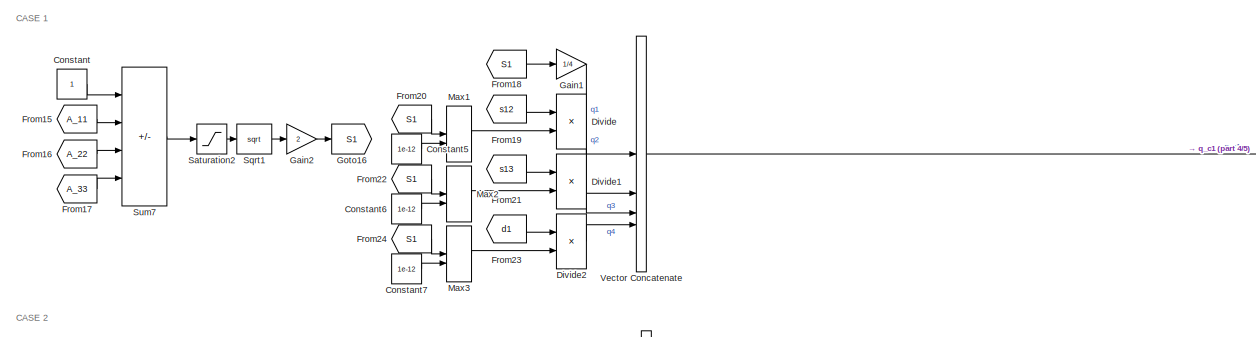
[diagram: DCM->q (Shepperd Algorithm) - part 1/5, top center region]
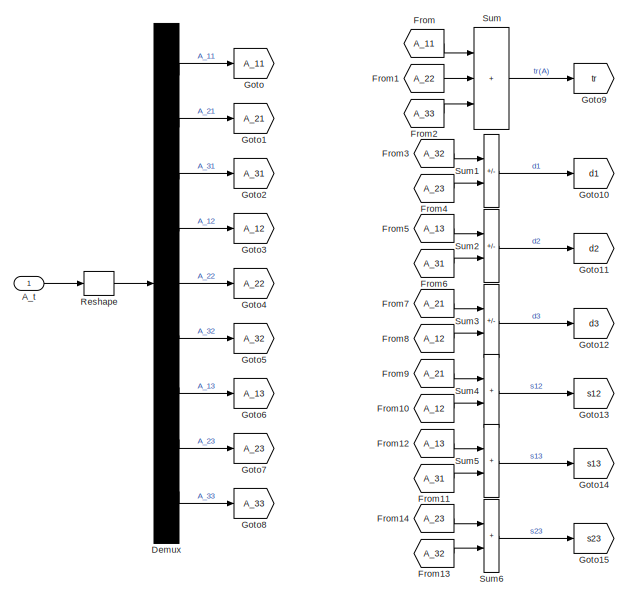
[diagram: DCM->q (Shepperd Algorithm) - part 2/5, middle left region]
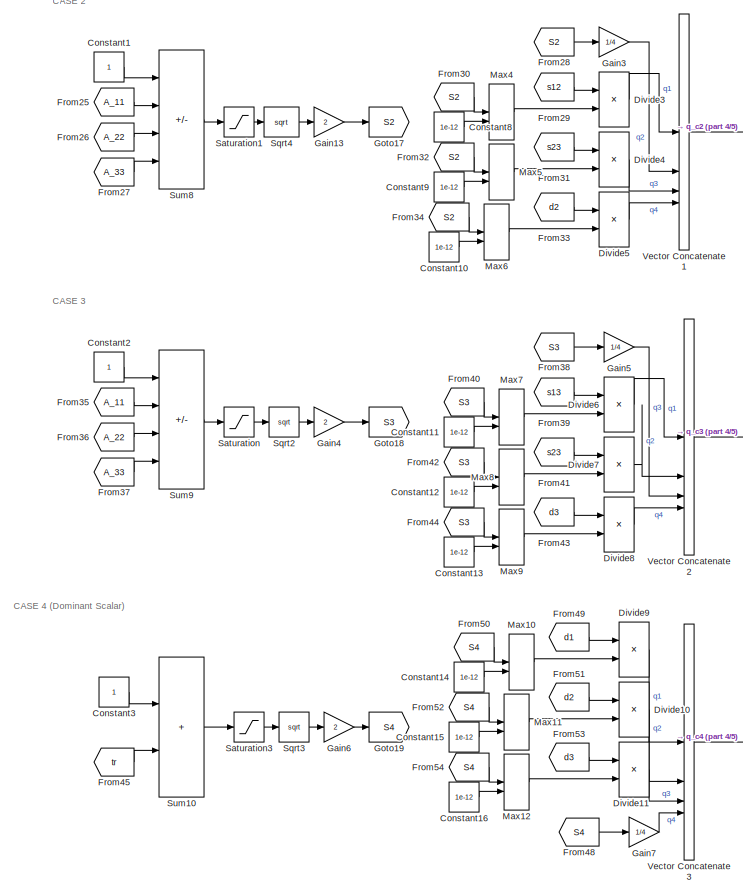
[diagram: DCM->q (Shepperd Algorithm) - part 3/5, middle left region]
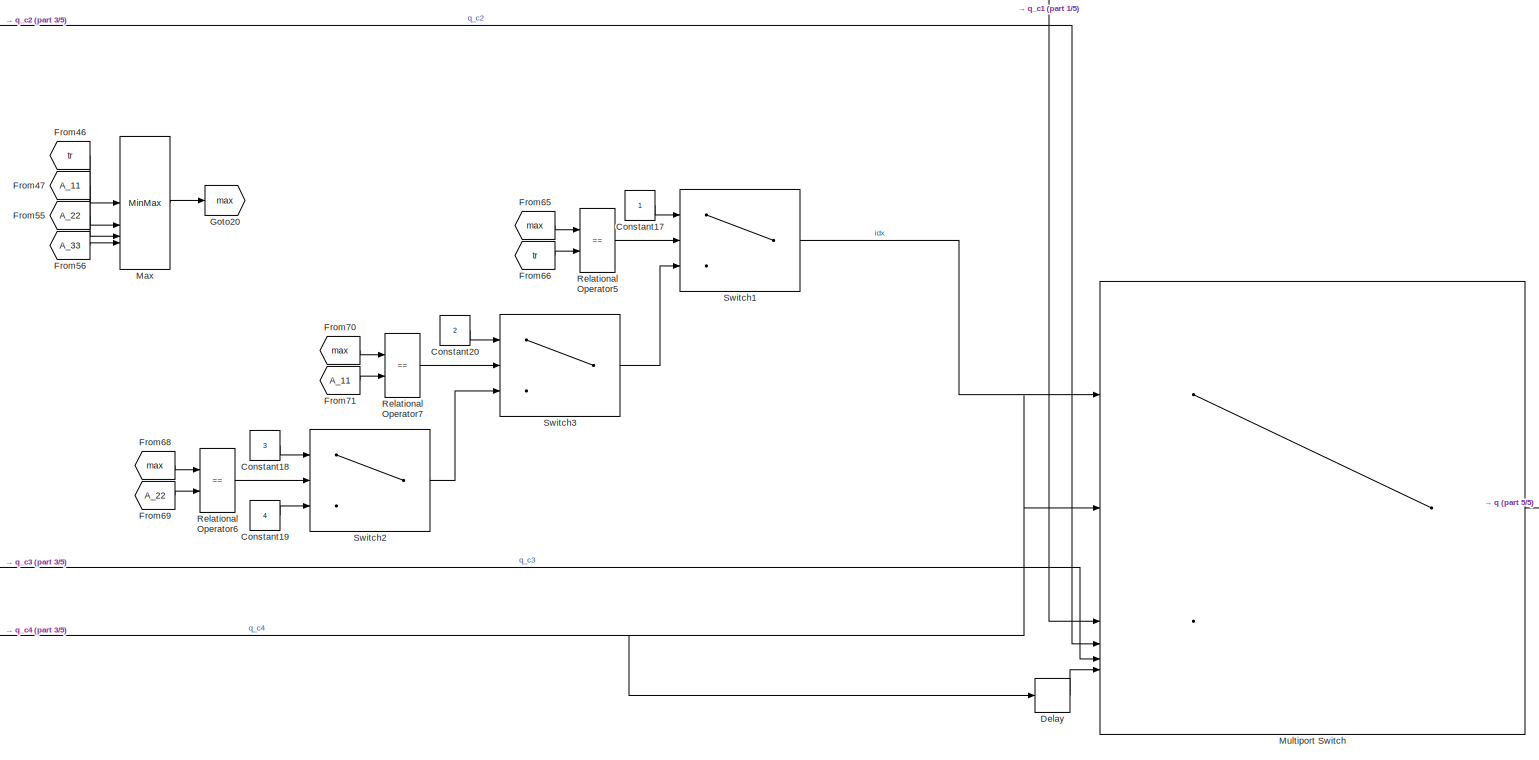
[diagram: DCM->q (Shepperd Algorithm) - part 4/5, central region]
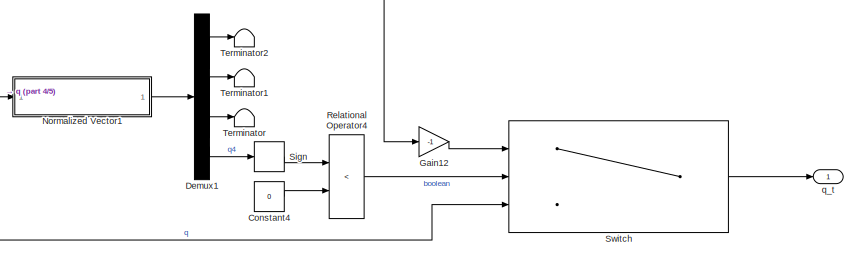
[diagram: DCM->q (Shepperd Algorithm) - part 5/5, bottom right region]
BLOCK [SubSystem] DCM->q (Shepperd Algorithm)
  NameLocation = top
BLOCK [Inport] DCM->q (Shepperd Algorithm)/A_t
BLOCK [Constant] DCM->q (Shepperd Algorithm)/Constant
BLOCK [Constant] DCM->q (Shepperd Algorithm)/Constant1
BLOCK [Constant] DCM->q (Shepperd Algorithm)/Constant10
  Value = 1e-12
BLOCK [Constant] DCM->q (Shepperd Algorithm)/Constant11
  Value = 1e-12
BLOCK [Constant] DCM->q (Shepperd Algorithm)/Constant12
  Value = 1e-12
BLOCK [Constant] DCM->q (Shepperd Algorithm)/Constant13
  Value = 1e-12
BLOCK [Constant] DCM->q (Shepperd Algorithm)/Constant14
  Value = 1e-12
BLOCK [Constant] DCM->q (Shepperd Algorithm)/Constant15
  Value = 1e-12
BLOCK [Constant] DCM->q (Shepperd Algorithm)/Constant16
  Value = 1e-12
BLOCK [Constant] DCM->q (Shepperd Algorithm)/Constant17
BLOCK [Constant] DCM->q (Shepperd Algorithm)/Constant18
  Value = 3
BLOCK [Constant] DCM->q (Shepperd Algorithm)/Constant19
  Value = 4
BLOCK [Constant] DCM->q (Shepperd Algorithm)/Constant2
BLOCK [Constant] DCM->q (Shepperd Algorithm)/Constant20
  Value = 2
BLOCK [Constant] DCM->q (Shepperd Algorithm)/Constant3
BLOCK [Constant] DCM->q (Shepperd Algorithm)/Constant4
  Value = 0
BLOCK [Constant] DCM->q (Shepperd Algorithm)/Constant5
  Value = 1e-12
BLOCK [Constant] DCM->q (Shepperd Algorithm)/Constant6
  Value = 1e-12
BLOCK [Constant] DCM->q (Shepperd Algorithm)/Constant7
  Value = 1e-12
BLOCK [Constant] DCM->q (Shepperd Algorithm)/Constant8
  Value = 1e-12
BLOCK [Constant] DCM->q (Shepperd Algorithm)/Constant9
  Value = 1e-12
BLOCK [Delay] DCM->q (Shepperd Algorithm)/Delay
  DelayLength = 1
  InputPortMap = u0
BLOCK [Demux] DCM->q (Shepperd Algorithm)/Demux
  Outputs = 9
BLOCK [Demux] DCM->q (Shepperd Algorithm)/Demux1
BLOCK [Product] DCM->q (Shepperd Algorithm)/Divide
  Inputs = */
BLOCK [Product] DCM->q (Shepperd Algorithm)/Divide1
  Inputs = */
BLOCK [Product] DCM->q (Shepperd Algorithm)/Divide10
  Inputs = */
BLOCK [Product] DCM->q (Shepperd Algorithm)/Divide11
  Inputs = */
BLOCK [Product] DCM->q (Shepperd Algorithm)/Divide2
  Inputs = */
BLOCK [Product] DCM->q (Shepperd Algorithm)/Divide3
  Inputs = */
BLOCK [Product] DCM->q (Shepperd Algorithm)/Divide4
  Inputs = */
BLOCK [Product] DCM->q (Shepperd Algorithm)/Divide5
  Inputs = */
BLOCK [Product] DCM->q (Shepperd Algorithm)/Divide6
  Inputs = */
BLOCK [Product] DCM->q (Shepperd Algorithm)/Divide7
  Inputs = */
BLOCK [Product] DCM->q (Shepperd Algorithm)/Divide8
  Inputs = */
BLOCK [Product] DCM->q (Shepperd Algorithm)/Divide9
  Inputs = */
BLOCK [From] DCM->q (Shepperd Algorithm)/From
  GotoTag = A_11
BLOCK [From] DCM->q (Shepperd Algorithm)/From1
  GotoTag = A_22
BLOCK [From] DCM->q (Shepperd Algorithm)/From10
  GotoTag = A_12
BLOCK [From] DCM->q (Shepperd Algorithm)/From11
  GotoTag = A_31
BLOCK [From] DCM->q (Shepperd Algorithm)/From12
  GotoTag = A_13
BLOCK [From] DCM->q (Shepperd Algorithm)/From13
  GotoTag = A_32
BLOCK [From] DCM->q (Shepperd Algorithm)/From14
  GotoTag = A_23
BLOCK [From] DCM->q (Shepperd Algorithm)/From15
  GotoTag = A_11
BLOCK [From] DCM->q (Shepperd Algorithm)/From16
  GotoTag = A_22
BLOCK [From] DCM->q (Shepperd Algorithm)/From17
  GotoTag = A_33
BLOCK [From] DCM->q (Shepperd Algorithm)/From18
  GotoTag = S1
BLOCK [From] DCM->q (Shepperd Algorithm)/From19
  GotoTag = s12
BLOCK [From] DCM->q (Shepperd Algorithm)/From2
  GotoTag = A_33
BLOCK [From] DCM->q (Shepperd Algorithm)/From20
  GotoTag = S1
BLOCK [From] DCM->q (Shepperd Algorithm)/From21
  GotoTag = s13
BLOCK [From] DCM->q (Shepperd Algorithm)/From22
  GotoTag = S1
BLOCK [From] DCM->q (Shepperd Algorithm)/From23
  GotoTag = d1
BLOCK [From] DCM->q (Shepperd Algorithm)/From24
  GotoTag = S1
BLOCK [From] DCM->q (Shepperd Algorithm)/From25
  GotoTag = A_11
BLOCK [From] DCM->q (Shepperd Algorithm)/From26
  GotoTag = A_22
BLOCK [From] DCM->q (Shepperd Algorithm)/From27
  GotoTag = A_33
BLOCK [From] DCM->q (Shepperd Algorithm)/From28
  GotoTag = S2
BLOCK [From] DCM->q (Shepperd Algorithm)/From29
  GotoTag = s12
BLOCK [From] DCM->q (Shepperd Algorithm)/From3
  GotoTag = A_32
BLOCK [From] DCM->q (Shepperd Algorithm)/From30
  GotoTag = S2
BLOCK [From] DCM->q (Shepperd Algorithm)/From31
  GotoTag = s23
BLOCK [From] DCM->q (Shepperd Algorithm)/From32
  GotoTag = S2
BLOCK [From] DCM->q (Shepperd Algorithm)/From33
  GotoTag = d2
BLOCK [From] DCM->q (Shepperd Algorithm)/From34
  GotoTag = S2
BLOCK [From] DCM->q (Shepperd Algorithm)/From35
  GotoTag = A_11
BLOCK [From] DCM->q (Shepperd Algorithm)/From36
  GotoTag = A_22
BLOCK [From] DCM->q (Shepperd Algorithm)/From37
  GotoTag = A_33
BLOCK [From] DCM->q (Shepperd Algorithm)/From38
  GotoTag = S3
BLOCK [From] DCM->q (Shepperd Algorithm)/From39
  GotoTag = s13
BLOCK [From] DCM->q (Shepperd Algorithm)/From4
  GotoTag = A_23
BLOCK [From] DCM->q (Shepperd Algorithm)/From40
  GotoTag = S3
BLOCK [From] DCM->q (Shepperd Algorithm)/From41
  GotoTag = s23
BLOCK [From] DCM->q (Shepperd Algorithm)/From42
  GotoTag = S3
BLOCK [From] DCM->q (Shepperd Algorithm)/From43
  GotoTag = d3
BLOCK [From] DCM->q (Shepperd Algorithm)/From44
  GotoTag = S3
BLOCK [From] DCM->q (Shepperd Algorithm)/From45
  GotoTag = tr
BLOCK [From] DCM->q (Shepperd Algorithm)/From46
  GotoTag = tr
BLOCK [From] DCM->q (Shepperd Algorithm)/From47
  GotoTag = A_11
BLOCK [From] DCM->q (Shepperd Algorithm)/From48
  GotoTag = S4
BLOCK [From] DCM->q (Shepperd Algorithm)/From49
  GotoTag = d1
BLOCK [From] DCM->q (Shepperd Algorithm)/From5
  GotoTag = A_13
BLOCK [From] DCM->q (Shepperd Algorithm)/From50
  GotoTag = S4
BLOCK [From] DCM->q (Shepperd Algorithm)/From51
  GotoTag = d2
BLOCK [From] DCM->q (Shepperd Algorithm)/From52
  GotoTag = S4
BLOCK [From] DCM->q (Shepperd Algorithm)/From53
  GotoTag = d3
BLOCK [From] DCM->q (Shepperd Algorithm)/From54
  GotoTag = S4
BLOCK [From] DCM->q (Shepperd Algorithm)/From55
  GotoTag = A_22
BLOCK [From] DCM->q (Shepperd Algorithm)/From56
  GotoTag = A_33
BLOCK [From] DCM->q (Shepperd Algorithm)/From6
  GotoTag = A_31
BLOCK [From] DCM->q (Shepperd Algorithm)/From65
  GotoTag = max
BLOCK [From] DCM->q (Shepperd Algorithm)/From66
  GotoTag = tr
BLOCK [From] DCM->q (Shepperd Algorithm)/From68
  GotoTag = max
BLOCK [From] DCM->q (Shepperd Algorithm)/From69
  GotoTag = A_22
BLOCK [From] DCM->q (Shepperd Algorithm)/From7
  GotoTag = A_21
BLOCK [From] DCM->q (Shepperd Algorithm)/From70
  GotoTag = max
BLOCK [From] DCM->q (Shepperd Algorithm)/From71
  GotoTag = A_11
BLOCK [From] DCM->q (Shepperd Algorithm)/From8
  GotoTag = A_12
BLOCK [From] DCM->q (Shepperd Algorithm)/From9
  GotoTag = A_21
BLOCK [Gain] DCM->q (Shepperd Algorithm)/Gain1
  Gain = 1/4
BLOCK [Gain] DCM->q (Shepperd Algorithm)/Gain12
  Gain = -1
BLOCK [Gain] DCM->q (Shepperd Algorithm)/Gain13
  Gain = 2
BLOCK [Gain] DCM->q (Shepperd Algorithm)/Gain2
  Gain = 2
BLOCK [Gain] DCM->q (Shepperd Algorithm)/Gain3
  Gain = 1/4
BLOCK [Gain] DCM->q (Shepperd Algorithm)/Gain4
  Gain = 2
BLOCK [Gain] DCM->q (Shepperd Algorithm)/Gain5
  Gain = 1/4
BLOCK [Gain] DCM->q (Shepperd Algorithm)/Gain6
  Gain = 2
BLOCK [Gain] DCM->q (Shepperd Algorithm)/Gain7
  Gain = 1/4
BLOCK [Goto] DCM->q (Shepperd Algorithm)/Goto
  GotoTag = A_11
BLOCK [Goto] DCM->q (Shepperd Algorithm)/Goto1
  GotoTag = A_21
BLOCK [Goto] DCM->q (Shepperd Algorithm)/Goto10
  GotoTag = d1
BLOCK [Goto] DCM->q (Shepperd Algorithm)/Goto11
  GotoTag = d2
BLOCK [Goto] DCM->q (Shepperd Algorithm)/Goto12
  GotoTag = d3
BLOCK [Goto] DCM->q (Shepperd Algorithm)/Goto13
  GotoTag = s12
BLOCK [Goto] DCM->q (Shepperd Algorithm)/Goto14
  GotoTag = s13
BLOCK [Goto] DCM->q (Shepperd Algorithm)/Goto15
  GotoTag = s23
BLOCK [Goto] DCM->q (Shepperd Algorithm)/Goto16
  GotoTag = S1
BLOCK [Goto] DCM->q (Shepperd Algorithm)/Goto17
  GotoTag = S2
BLOCK [Goto] DCM->q (Shepperd Algorithm)/Goto18
  GotoTag = S3
BLOCK [Goto] DCM->q (Shepperd Algorithm)/Goto19
  GotoTag = S4
BLOCK [Goto] DCM->q (Shepperd Algorithm)/Goto2
  GotoTag = A_31
BLOCK [Goto] DCM->q (Shepperd Algorithm)/Goto20
  GotoTag = max
BLOCK [Goto] DCM->q (Shepperd Algorithm)/Goto3
  GotoTag = A_12
BLOCK [Goto] DCM->q (Shepperd Algorithm)/Goto4
  GotoTag = A_22
BLOCK [Goto] DCM->q (Shepperd Algorithm)/Goto5
  GotoTag = A_32
BLOCK [Goto] DCM->q (Shepperd Algorithm)/Goto6
  GotoTag = A_13
BLOCK [Goto] DCM->q (Shepperd Algorithm)/Goto7
  GotoTag = A_23
BLOCK [Goto] DCM->q (Shepperd Algorithm)/Goto8
  GotoTag = A_33
BLOCK [Goto] DCM->q (Shepperd Algorithm)/Goto9
  GotoTag = tr
BLOCK [MinMax] DCM->q (Shepperd Algorithm)/Max
  Function = max
  Inputs = 4
BLOCK [MinMax] DCM->q (Shepperd Algorithm)/Max1
  Function = max
  Inputs = 2
BLOCK [MinMax] DCM->q (Shepperd Algorithm)/Max10
  Function = max
  Inputs = 2
BLOCK [MinMax] DCM->q (Shepperd Algorithm)/Max11
  Function = max
  Inputs = 2
BLOCK [MinMax] DCM->q (Shepperd Algorithm)/Max12
  Function = max
  Inputs = 2
BLOCK [MinMax] DCM->q (Shepperd Algorithm)/Max2
  Function = max
  Inputs = 2
BLOCK [MinMax] DCM->q (Shepperd Algorithm)/Max3
  Function = max
  Inputs = 2
BLOCK [MinMax] DCM->q (Shepperd Algorithm)/Max4
  Function = max
  Inputs = 2
BLOCK [MinMax] DCM->q (Shepperd Algorithm)/Max5
  Function = max
  Inputs = 2
BLOCK [MinMax] DCM->q (Shepperd Algorithm)/Max6
  Function = max
  Inputs = 2
BLOCK [MinMax] DCM->q (Shepperd Algorithm)/Max7
  Function = max
  Inputs = 2
BLOCK [MinMax] DCM->q (Shepperd Algorithm)/Max8
  Function = max
  Inputs = 2
BLOCK [MinMax] DCM->q (Shepperd Algorithm)/Max9
  Function = max
  Inputs = 2
BLOCK [MultiPortSwitch] DCM->q (Shepperd Algorithm)/Multiport Switch
  DataPortForDefault = Additional data port
  DiagnosticForDefault = Warning
  Inputs = 4
  SaturateOnIntegerOverflow = off
BLOCK [SubSystem] DCM->q (Shepperd Algorithm)/Normalized Vector1
BLOCK [Constant] DCM->q (Shepperd Algorithm)/Normalized Vector1/Constant
  NameLocation = top
  Value = 1e-12
BLOCK [Product] DCM->q (Shepperd Algorithm)/Normalized Vector1/Divide
  Inputs = */
  NameLocation = top
BLOCK [MinMax] DCM->q (Shepperd Algorithm)/Normalized Vector1/Max
  Function = max
  Inputs = 2
  NameLocation = top
BLOCK [Inport] DCM->q (Shepperd Algorithm)/Normalized Vector1/r
BLOCK [Outport] DCM->q (Shepperd Algorithm)/Normalized Vector1/r_norm
BLOCK [Reference] DCM->q (Shepperd Algorithm)/Normalized Vector1/vector_norm  REF=LIBRARY_SAD/vector_norm
  SourceBlock = LIBRARY_SAD/vector_norm
  SourceType = SubSystem
BLOCK [RelationalOperator] DCM->q (Shepperd Algorithm)/Relational Operator4
  InputSameDT = off
  Operator = <
  OutDataTypeStr = boolean
  RndMeth = Simplest
BLOCK [RelationalOperator] DCM->q (Shepperd Algorithm)/Relational Operator5
  InputSameDT = off
  Operator = ==
  OutDataTypeStr = boolean
  RndMeth = Simplest
BLOCK [RelationalOperator] DCM->q (Shepperd Algorithm)/Relational Operator6
  InputSameDT = off
  Operator = ==
  OutDataTypeStr = boolean
  RndMeth = Simplest
BLOCK [RelationalOperator] DCM->q (Shepperd Algorithm)/Relational Operator7
  InputSameDT = off
  Operator = ==
  OutDataTypeStr = boolean
  RndMeth = Simplest
BLOCK [Reshape] DCM->q (Shepperd Algorithm)/Reshape
  OutputDimensionality = Customize
  OutputDimensions = [9,1]
BLOCK [Saturate] DCM->q (Shepperd Algorithm)/Saturation
  LowerLimit = 0
  UpperLimit = inf
BLOCK [Saturate] DCM->q (Shepperd Algorithm)/Saturation1
  LowerLimit = 0
  UpperLimit = inf
BLOCK [Saturate] DCM->q (Shepperd Algorithm)/Saturation2
  LowerLimit = 0
  UpperLimit = inf
BLOCK [Saturate] DCM->q (Shepperd Algorithm)/Saturation3
  LowerLimit = 0
  UpperLimit = inf
BLOCK [Signum] DCM->q (Shepperd Algorithm)/Sign
BLOCK [Sqrt] DCM->q (Shepperd Algorithm)/Sqrt1
BLOCK [Sqrt] DCM->q (Shepperd Algorithm)/Sqrt2
BLOCK [Sqrt] DCM->q (Shepperd Algorithm)/Sqrt3
BLOCK [Sqrt] DCM->q (Shepperd Algorithm)/Sqrt4
BLOCK [Sum] DCM->q (Shepperd Algorithm)/Sum
  IconShape = rectangular
  Inputs = +++
BLOCK [Sum] DCM->q (Shepperd Algorithm)/Sum1
  IconShape = rectangular
  Inputs = +-
BLOCK [Sum] DCM->q (Shepperd Algorithm)/Sum10
  IconShape = rectangular
BLOCK [Sum] DCM->q (Shepperd Algorithm)/Sum2
  IconShape = rectangular
  Inputs = +-
BLOCK [Sum] DCM->q (Shepperd Algorithm)/Sum3
  IconShape = rectangular
  Inputs = +-
BLOCK [Sum] DCM->q (Shepperd Algorithm)/Sum4
  IconShape = rectangular
BLOCK [Sum] DCM->q (Shepperd Algorithm)/Sum5
  IconShape = rectangular
BLOCK [Sum] DCM->q (Shepperd Algorithm)/Sum6
  IconShape = rectangular
BLOCK [Sum] DCM->q (Shepperd Algorithm)/Sum7
  IconShape = rectangular
  Inputs = ++--
BLOCK [Sum] DCM->q (Shepperd Algorithm)/Sum8
  IconShape = rectangular
  Inputs = +-+-
BLOCK [Sum] DCM->q (Shepperd Algorithm)/Sum9
  IconShape = rectangular
  Inputs = +--+
BLOCK [Switch] DCM->q (Shepperd Algorithm)/Switch
  Criteria = u2 > Threshold
  InputSameDT = off
  SaturateOnIntegerOverflow = off
BLOCK [Switch] DCM->q (Shepperd Algorithm)/Switch1
  Criteria = u2 > Threshold
  InputSameDT = off
  SaturateOnIntegerOverflow = off
BLOCK [Switch] DCM->q (Shepperd Algorithm)/Switch2
  Criteria = u2 > Threshold
  InputSameDT = off
  SaturateOnIntegerOverflow = off
BLOCK [Switch] DCM->q (Shepperd Algorithm)/Switch3
  Criteria = u2 > Threshold
  InputSameDT = off
  SaturateOnIntegerOverflow = off
BLOCK [Terminator] DCM->q (Shepperd Algorithm)/Terminator
BLOCK [Terminator] DCM->q (Shepperd Algorithm)/Terminator1
BLOCK [Terminator] DCM->q (Shepperd Algorithm)/Terminator2
BLOCK [Concatenate] DCM->q (Shepperd Algorithm)/Vector Concatenate
  NumInputs = 4
BLOCK [Concatenate] DCM->q (Shepperd Algorithm)/Vector Concatenate1
  NumInputs = 4
BLOCK [Concatenate] DCM->q (Shepperd Algorithm)/Vector Concatenate2
  NumInputs = 4
BLOCK [Concatenate] DCM->q (Shepperd Algorithm)/Vector Concatenate3
  NumInputs = 4
BLOCK [Outport] DCM->q (Shepperd Algorithm)/q_t
BLOCK [SubSystem] DKE
BLOCK [SubSystem] DKE/ALBEDO_TORQUE
BLOCK [Inport] DKE/ALBEDO_TORQUE/Ab_n
  Port = 2
BLOCK [Outport] DKE/ALBEDO_TORQUE/Albedo_torque
BLOCK [Constant] DKE/ALBEDO_TORQUE/Constant
  NameLocation = left
  Value = 0
BLOCK [Constant] DKE/ALBEDO_TORQUE/Constant16
  Value = rf
BLOCK [Constant] DKE/ALBEDO_TORQUE/Constant2
  NameLocation = right
  Value = 0
BLOCK [DotProduct] DKE/ALBEDO_TORQUE/Dot Product
  OutDataTypeStr = Inherit: Inherit via internal rule
BLOCK [SubSystem] DKE/ALBEDO_TORQUE/For Each Subsystem1
  TreatAsAtomicUnit = on
BLOCK [Reference] DKE/ALBEDO_TORQUE/For Each Subsystem1/Cross Product  REF=matrix_library/Cross Product
  LibrarySourceBlock = simulink/Matrix\nOperations/Cross Product
  SourceBlock = matrix_library/Cross Product
  SourceType = CrossProduct
BLOCK [ForEach] DKE/ALBEDO_TORQUE/For Each Subsystem1/For Each
  DisableCoverage = on
BLOCK [Inport] DKE/ALBEDO_TORQUE/For Each Subsystem1/In1
  Partition = on
  PartitionDimension = 1
  PartitionOffset = 0
  PartitionWidth = 1
BLOCK [Inport] DKE/ALBEDO_TORQUE/For Each Subsystem1/In2
  Partition = on
  PartitionDimension = 1
  PartitionOffset = 0
  PartitionWidth = 1
  Port = 2
BLOCK [Outport] DKE/ALBEDO_TORQUE/For Each Subsystem1/Out1
  ConcatenationDimension = 1
BLOCK [SignalSpecification] DKE/ALBEDO_TORQUE/For Each Subsystem1/Signal Specification
  Dimensions = [1 3]
BLOCK [Math] DKE/ALBEDO_TORQUE/For Each Subsystem1/Transpose
  Operator = transpose
BLOCK [Math] DKE/ALBEDO_TORQUE/For Each Subsystem1/Transpose1
  Operator = transpose
BLOCK [Math] DKE/ALBEDO_TORQUE/For Each Subsystem1/Transpose2
  Operator = transpose
BLOCK [From] DKE/ALBEDO_TORQUE/From
  GotoTag = Illum
BLOCK [Goto] DKE/ALBEDO_TORQUE/Goto
  GotoTag = Illum
  NameLocation = right
BLOCK [Product] DKE/ALBEDO_TORQUE/Matrix Multiply4
  Multiplication = Matrix(*)
BLOCK [MinMax] DKE/ALBEDO_TORQUE/Max
  Function = max
  Inputs = 2
  NameLocation = left
BLOCK [SubSystem] DKE/ALBEDO_TORQUE/Normalization
BLOCK [SubSystem] DKE/ALBEDO_TORQUE/Normalization 
BLOCK [Product] DKE/ALBEDO_TORQUE/Normalization /Divide
  Inputs = */
BLOCK [DotProduct] DKE/ALBEDO_TORQUE/Normalization /Dot Product
  OutDataTypeStr = Inherit: Inherit via internal rule
BLOCK [Inport] DKE/ALBEDO_TORQUE/Normalization /In1
BLOCK [Outport] DKE/ALBEDO_TORQUE/Normalization /Out1
BLOCK [Sqrt] DKE/ALBEDO_TORQUE/Normalization /Sqrt
BLOCK [Product] DKE/ALBEDO_TORQUE/Normalization/Divide
  Inputs = */
BLOCK [DotProduct] DKE/ALBEDO_TORQUE/Normalization/Dot Product
  OutDataTypeStr = Inherit: Inherit via internal rule
BLOCK [Inport] DKE/ALBEDO_TORQUE/Normalization/In1
BLOCK [Outport] DKE/ALBEDO_TORQUE/Normalization/Out1
BLOCK [Sqrt] DKE/ALBEDO_TORQUE/Normalization/Sqrt
BLOCK [SubSystem] DKE/ALBEDO_TORQUE/Normalization1
BLOCK [Product] DKE/ALBEDO_TORQUE/Normalization1/Divide
  Inputs = */
BLOCK [DotProduct] DKE/ALBEDO_TORQUE/Normalization1/Dot Product
  OutDataTypeStr = Inherit: Inherit via internal rule
BLOCK [Outport] DKE/ALBEDO_TORQUE/Normalization1/Out1
BLOCK [Inport] DKE/ALBEDO_TORQUE/Normalization1/R_N
BLOCK [Sqrt] DKE/ALBEDO_TORQUE/Normalization1/Sqrt
BLOCK [Reshape] DKE/ALBEDO_TORQUE/Reshape2
  OutputDimensionality = Customize
  OutputDimensions = [10 3]
BLOCK [SubSystem] DKE/ALBEDO_TORQUE/Ricavo i vettori forza1
BLOCK [Inport] DKE/ALBEDO_TORQUE/Ricavo i vettori forza1/ R_ B direction normalized
BLOCK [Constant] DKE/ALBEDO_TORQUE/Ricavo i vettori forza1/Constant
  Value = 0.3
BLOCK [Constant] DKE/ALBEDO_TORQUE/Ricavo i vettori forza1/Constant1
  Value = F_e
BLOCK [Constant] DKE/ALBEDO_TORQUE/Ricavo i vettori forza1/Constant10
BLOCK [Constant] DKE/ALBEDO_TORQUE/Ricavo i vettori forza1/Constant11
BLOCK [Constant] DKE/ALBEDO_TORQUE/Ricavo i vettori forza1/Constant12
  Value = Nmat
BLOCK [Constant] DKE/ALBEDO_TORQUE/Ricavo i vettori forza1/Constant13
BLOCK [Constant] DKE/ALBEDO_TORQUE/Ricavo i vettori forza1/Constant2
  Value = rhod
BLOCK [Constant] DKE/ALBEDO_TORQUE/Ricavo i vettori forza1/Constant3
  Value = rhos
BLOCK [Constant] DKE/ALBEDO_TORQUE/Ricavo i vettori forza1/Constant4
  Value = Nmat
BLOCK [Constant] DKE/ALBEDO_TORQUE/Ricavo i vettori forza1/Constant5
BLOCK [Constant] DKE/ALBEDO_TORQUE/Ricavo i vettori forza1/Constant6
  Value = rhos
BLOCK [Constant] DKE/ALBEDO_TORQUE/Ricavo i vettori forza1/Constant7
  Value = Re
BLOCK [Constant] DKE/ALBEDO_TORQUE/Ricavo i vettori forza1/Constant8
  Value = Aree
BLOCK [Constant] DKE/ALBEDO_TORQUE/Ricavo i vettori forza1/Constant9
  Value = c
BLOCK [Reference] DKE/ALBEDO_TORQUE/Ricavo i vettori forza1/Create Diagonal Matrix  REF=matrix_library/Create Diagonal
Matrix
  LibrarySourceBlock = simulink/Matrix\nOperations/Create Diagonal\nMatrix
  SourceBlock = matrix_library/Create Diagonal\nMatrix
  SourceType = Create Diagonal Matrix
BLOCK [Reference] DKE/ALBEDO_TORQUE/Ricavo i vettori forza1/Create Diagonal Matrix1  REF=matrix_library/Create Diagonal
Matrix
  LibrarySourceBlock = simulink/Matrix\nOperations/Create Diagonal\nMatrix
  SourceBlock = matrix_library/Create Diagonal\nMatrix
  SourceType = Create Diagonal Matrix
BLOCK [Product] DKE/ALBEDO_TORQUE/Ricavo i vettori forza1/Divide
  Inputs = */
BLOCK [Product] DKE/ALBEDO_TORQUE/Ricavo i vettori forza1/Divide1
  Inputs = */
BLOCK [DotProduct] DKE/ALBEDO_TORQUE/Ricavo i vettori forza1/Dot Product
  OutDataTypeStr = Inherit: Inherit via internal rule
BLOCK [From] DKE/ALBEDO_TORQUE/Ricavo i vettori forza1/From
  GotoTag = Pos
BLOCK [From] DKE/ALBEDO_TORQUE/Ricavo i vettori forza1/From1
  GotoTag = Pos
BLOCK [From] DKE/ALBEDO_TORQUE/Ricavo i vettori forza1/From2
  GotoTag = P_alb
BLOCK [Gain] DKE/ALBEDO_TORQUE/Ricavo i vettori forza1/Gain1
  Gain = 2/3
BLOCK [Gain] DKE/ALBEDO_TORQUE/Ricavo i vettori forza1/Gain2
  Gain = 2
BLOCK [Goto] DKE/ALBEDO_TORQUE/Ricavo i vettori forza1/Goto
  GotoTag = Pos
BLOCK [Goto] DKE/ALBEDO_TORQUE/Ricavo i vettori forza1/Goto1
  GotoTag = P_alb
BLOCK [Inport] DKE/ALBEDO_TORQUE/Ricavo i vettori forza1/In2
  Port = 2
BLOCK [Product] DKE/ALBEDO_TORQUE/Ricavo i vettori forza1/Matrix Multiply1
  Multiplication = Matrix(*)
BLOCK [Product] DKE/ALBEDO_TORQUE/Ricavo i vettori forza1/Matrix Multiply3
  Multiplication = Matrix(*)
BLOCK [Product] DKE/ALBEDO_TORQUE/Ricavo i vettori forza1/Matrix Multiply6
BLOCK [Sum] DKE/ALBEDO_TORQUE/Ricavo i vettori forza1/Minus
  IconShape = rectangular
  Inputs = +-
BLOCK [Outport] DKE/ALBEDO_TORQUE/Ricavo i vettori forza1/Out1
BLOCK [Sum] DKE/ALBEDO_TORQUE/Ricavo i vettori forza1/Plus
  IconShape = rectangular
BLOCK [Sum] DKE/ALBEDO_TORQUE/Ricavo i vettori forza1/Plus1
  IconShape = rectangular
BLOCK [Product] DKE/ALBEDO_TORQUE/Ricavo i vettori forza1/Product
  Inputs = 4
BLOCK [Product] DKE/ALBEDO_TORQUE/Ricavo i vettori forza1/Product1
  Multiplication = Matrix(*)
BLOCK [Product] DKE/ALBEDO_TORQUE/Ricavo i vettori forza1/Product2
BLOCK [Product] DKE/ALBEDO_TORQUE/Ricavo i vettori forza1/Product3
  Multiplication = Matrix(*)
BLOCK [Product] DKE/ALBEDO_TORQUE/Ricavo i vettori forza1/Product4
BLOCK [Product] DKE/ALBEDO_TORQUE/Ricavo i vettori forza1/Product5
  Multiplication = Matrix(*)
BLOCK [Inport] DKE/ALBEDO_TORQUE/Ricavo i vettori forza1/R_B
  Port = 3
BLOCK [InportShadow] DKE/ALBEDO_TORQUE/Ricavo i vettori forza1/S//C direction normalized1
BLOCK [Saturate] DKE/ALBEDO_TORQUE/Ricavo i vettori forza1/Saturation1
  LowerLimit = 0
  UpperLimit = inf
BLOCK [Sqrt] DKE/ALBEDO_TORQUE/Ricavo i vettori forza1/Sqrt
BLOCK [Math] DKE/ALBEDO_TORQUE/Ricavo i vettori forza1/Square
  Operator = square
BLOCK [Math] DKE/ALBEDO_TORQUE/Ricavo i vettori forza1/Transpose
  Operator = transpose
BLOCK [Math] DKE/ALBEDO_TORQUE/Ricavo i vettori forza1/Transpose1
  Operator = transpose
BLOCK [Concatenate] DKE/ALBEDO_TORQUE/Ricavo i vettori forza1/Vector Concatenate
  NumInputs = 3
BLOCK [Inport] DKE/ALBEDO_TORQUE/S//C direction
  Port = 3
BLOCK [Sum] DKE/ALBEDO_TORQUE/Sum of Elements2
  CollapseMode = Specified dimension
  IconShape = rectangular
  Inputs = +
BLOCK [Switch] DKE/ALBEDO_TORQUE/Switch
  Criteria = u2 > Threshold
  InputSameDT = off
  SaturateOnIntegerOverflow = off
BLOCK [ToWorkspace] DKE/ALBEDO_TORQUE/To Workspace
  FixptAsFi = on
  MaxDataPoints = inf
  SampleTime = -1
  VariableName = AlbRtorque
BLOCK [Math] DKE/ALBEDO_TORQUE/Transpose
  Operator = transpose
BLOCK [Inport] DKE/ALBEDO_TORQUE/sun direction inertial
BLOCK [Outport] DKE/A_B//N
BLOCK [Reference] DKE/A_LVLH (elliptical,inclined orbit)  REF=LIBRARY_SAD/A_LVLH (elliptical,inclined orbit)
  SourceBlock = LIBRARY_SAD/A_LVLH (elliptical,inclined orbit)
  SourceType = SubSystem
BLOCK [Outport] DKE/B_N
  Port = 3
BLOCK [Constant] DKE/Constant
  Value = kep
BLOCK [Constant] DKE/Constant1
  Value = n
BLOCK [Constant] DKE/Constant10
  NameLocation = top
  Value = 0
BLOCK [Constant] DKE/Constant2
  Value = RW.A
BLOCK [Constant] DKE/Constant5
BLOCK [Constant] DKE/Constant7
  NameLocation = top
  Value = 0
BLOCK [Constant] DKE/Constant8
  Value = J_depl
BLOCK [Constant] DKE/Constant9
  Value = J_depl
BLOCK [Reference] DKE/Cross Product  REF=matrix_library/Cross Product
  LibrarySourceBlock = simulink/Matrix\nOperations/Cross Product
  SourceBlock = matrix_library/Cross Product
  SourceType = CrossProduct
BLOCK [Demux] DKE/Demux2
  DisplayOption = none
  Outputs = 3
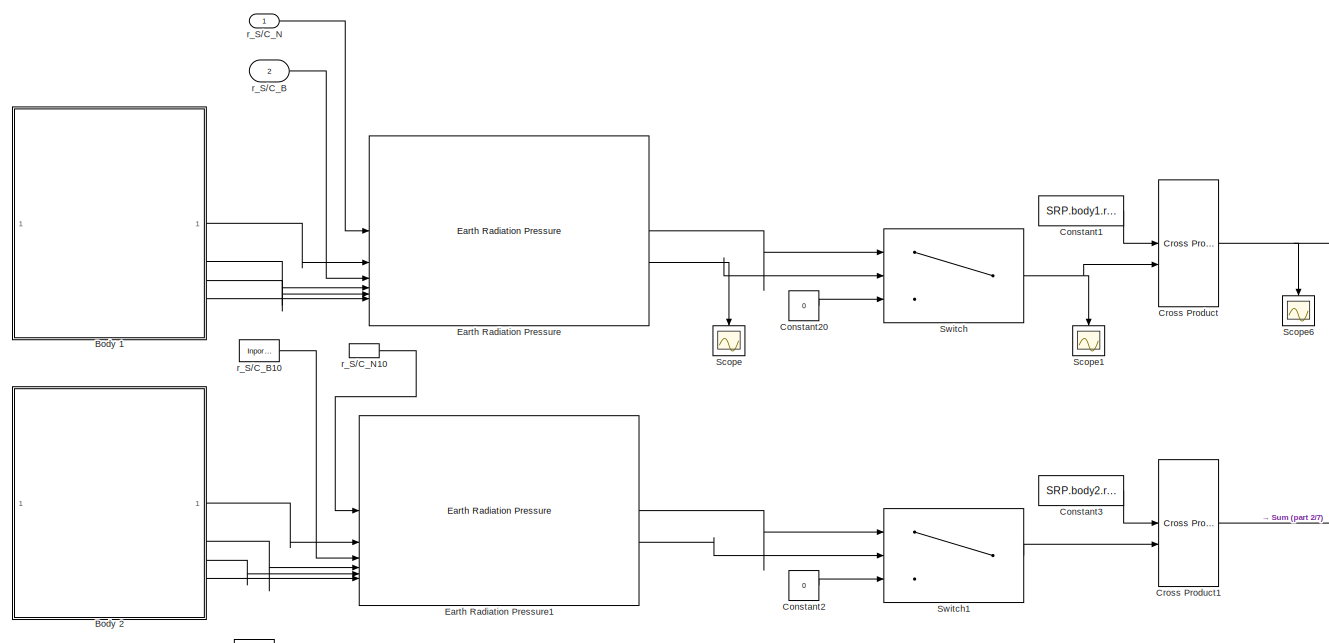
[diagram: DKE/Earth radiation torque - part 1/7, top left region]
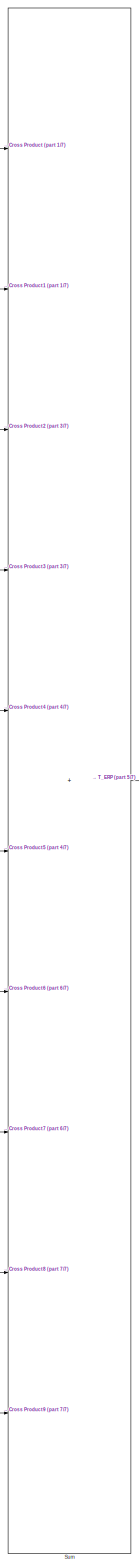
[diagram: DKE/Earth radiation torque - part 2/7, right side, full height]
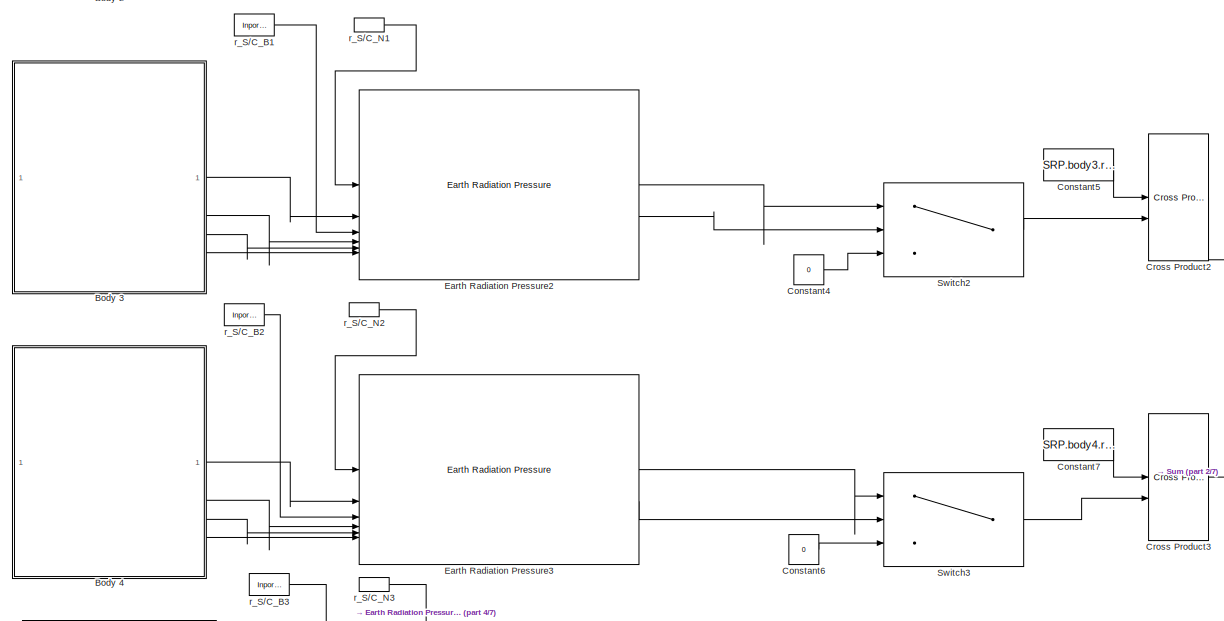
[diagram: DKE/Earth radiation torque - part 3/7, top left region]
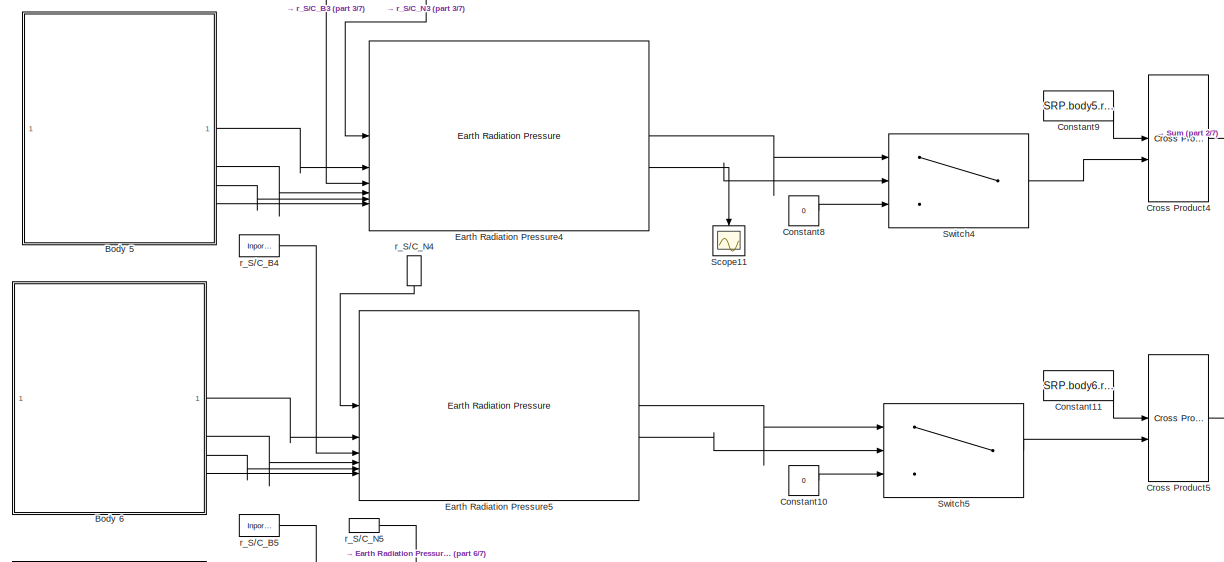
[diagram: DKE/Earth radiation torque - part 4/7, middle left region]
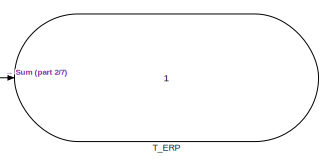
[diagram: DKE/Earth radiation torque - part 5/7, middle right region]
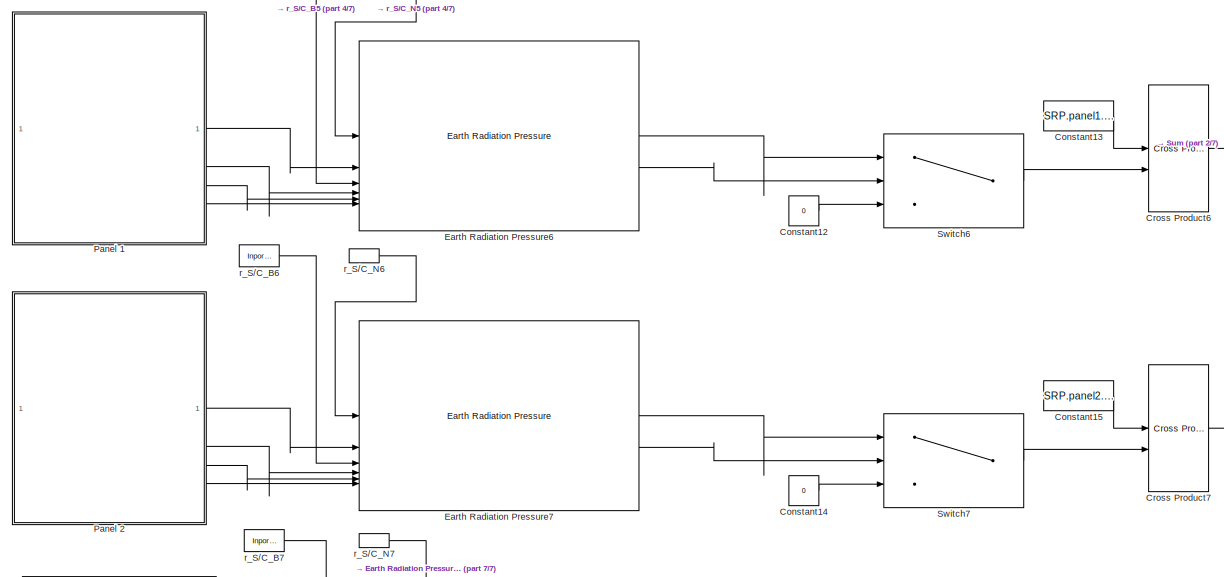
[diagram: DKE/Earth radiation torque - part 6/7, bottom left region]
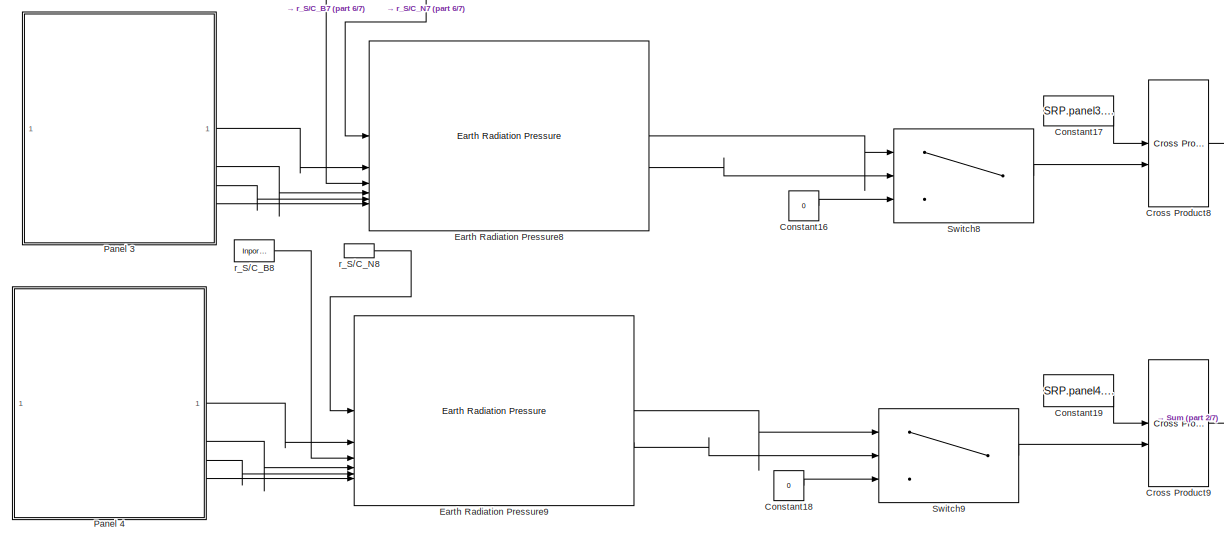
[diagram: DKE/Earth radiation torque - part 7/7, bottom left region]
BLOCK [SubSystem] DKE/Earth radiation torque
BLOCK [SubSystem] DKE/Earth radiation torque/Body 1
BLOCK [Outport] DKE/Earth radiation torque/Body 1/A_i
BLOCK [Constant] DKE/Earth radiation torque/Body 1/Constant
  Value = SRP.body1.A
BLOCK [Constant] DKE/Earth radiation torque/Body 1/Constant1
  Value = SRP.body1.N_hat
BLOCK [Constant] DKE/Earth radiation torque/Body 1/Constant2
  Value = SRP.body1.rho_s
BLOCK [Constant] DKE/Earth radiation torque/Body 1/Constant3
  Value = SRP.body1.rho_d
BLOCK [Outport] DKE/Earth radiation torque/Body 1/N_B_hat_i
  Port = 2
BLOCK [Outport] DKE/Earth radiation torque/Body 1/rho_d_i
  Port = 4
BLOCK [Outport] DKE/Earth radiation torque/Body 1/rho_s_i
  Port = 3
BLOCK [SubSystem] DKE/Earth radiation torque/Body 2
BLOCK [Outport] DKE/Earth radiation torque/Body 2/A_i
BLOCK [Constant] DKE/Earth radiation torque/Body 2/Constant
  Value = SRP.body2.A
BLOCK [Constant] DKE/Earth radiation torque/Body 2/Constant1
  Value = SRP.body2.N_hat
BLOCK [Constant] DKE/Earth radiation torque/Body 2/Constant2
  Value = SRP.body2.rho_s
BLOCK [Constant] DKE/Earth radiation torque/Body 2/Constant3
  Value = SRP.body2.rho_d
BLOCK [Outport] DKE/Earth radiation torque/Body 2/N_B_hat_i
  Port = 2
BLOCK [Outport] DKE/Earth radiation torque/Body 2/rho_d_i
  Port = 4
BLOCK [Outport] DKE/Earth radiation torque/Body 2/rho_s_i
  Port = 3
BLOCK [SubSystem] DKE/Earth radiation torque/Body 3
BLOCK [Outport] DKE/Earth radiation torque/Body 3/A_i
BLOCK [Constant] DKE/Earth radiation torque/Body 3/Constant
  Value = SRP.body3.A
BLOCK [Constant] DKE/Earth radiation torque/Body 3/Constant1
  Value = SRP.body3.N_hat
BLOCK [Constant] DKE/Earth radiation torque/Body 3/Constant2
  Value = SRP.body3.rho_s
BLOCK [Constant] DKE/Earth radiation torque/Body 3/Constant3
  Value = SRP.body3.rho_d
BLOCK [Outport] DKE/Earth radiation torque/Body 3/N_B_hat_i
  Port = 2
BLOCK [Outport] DKE/Earth radiation torque/Body 3/rho_d_i
  Port = 4
BLOCK [Outport] DKE/Earth radiation torque/Body 3/rho_s_i
  Port = 3
BLOCK [SubSystem] DKE/Earth radiation torque/Body 4
BLOCK [Outport] DKE/Earth radiation torque/Body 4/A_i
BLOCK [Constant] DKE/Earth radiation torque/Body 4/Constant
  Value = SRP.body4.A
BLOCK [Constant] DKE/Earth radiation torque/Body 4/Constant1
  Value = SRP.body4.N_hat
BLOCK [Constant] DKE/Earth radiation torque/Body 4/Constant2
  Value = SRP.body4.rho_s
BLOCK [Constant] DKE/Earth radiation torque/Body 4/Constant3
  Value = SRP.body4.rho_d
BLOCK [Outport] DKE/Earth radiation torque/Body 4/N_B_hat_i
  Port = 2
BLOCK [Outport] DKE/Earth radiation torque/Body 4/rho_d_i
  Port = 4
BLOCK [Outport] DKE/Earth radiation torque/Body 4/rho_s_i
  Port = 3
BLOCK [SubSystem] DKE/Earth radiation torque/Body 5
BLOCK [Outport] DKE/Earth radiation torque/Body 5/A_i
BLOCK [Constant] DKE/Earth radiation torque/Body 5/Constant
  Value = SRP.body5.A
BLOCK [Constant] DKE/Earth radiation torque/Body 5/Constant1
  Value = SRP.body5.N_hat
BLOCK [Constant] DKE/Earth radiation torque/Body 5/Constant2
  Value = SRP.body5.rho_s
BLOCK [Constant] DKE/Earth radiation torque/Body 5/Constant3
  Value = SRP.body5.rho_d
BLOCK [Outport] DKE/Earth radiation torque/Body 5/N_B_hat_i
  Port = 2
BLOCK [Outport] DKE/Earth radiation torque/Body 5/rho_d_i
  Port = 4
BLOCK [Outport] DKE/Earth radiation torque/Body 5/rho_s_i
  Port = 3
BLOCK [SubSystem] DKE/Earth radiation torque/Body 6
BLOCK [Outport] DKE/Earth radiation torque/Body 6/A_i
BLOCK [Constant] DKE/Earth radiation torque/Body 6/Constant
  Value = SRP.body6.A
BLOCK [Constant] DKE/Earth radiation torque/Body 6/Constant1
  Value = SRP.body6.N_hat
BLOCK [Constant] DKE/Earth radiation torque/Body 6/Constant2
  Value = SRP.body6.rho_s
BLOCK [Constant] DKE/Earth radiation torque/Body 6/Constant3
  Value = SRP.body6.rho_d
BLOCK [Outport] DKE/Earth radiation torque/Body 6/N_B_hat_i
  Port = 2
BLOCK [Outport] DKE/Earth radiation torque/Body 6/rho_d_i
  Port = 4
BLOCK [Outport] DKE/Earth radiation torque/Body 6/rho_s_i
  Port = 3
BLOCK [Constant] DKE/Earth radiation torque/Constant1
  Value = SRP.body1.r_F
BLOCK [Constant] DKE/Earth radiation torque/Constant10
  Value = 0
BLOCK [Constant] DKE/Earth radiation torque/Constant11
  Value = SRP.body6.r_F
BLOCK [Constant] DKE/Earth radiation torque/Constant12
  Value = 0
BLOCK [Constant] DKE/Earth radiation torque/Constant13
  Value = SRP.panel1.r_F
BLOCK [Constant] DKE/Earth radiation torque/Constant14
  Value = 0
BLOCK [Constant] DKE/Earth radiation torque/Constant15
  Value = SRP.panel2.r_F
BLOCK [Constant] DKE/Earth radiation torque/Constant16
  Value = 0
BLOCK [Constant] DKE/Earth radiation torque/Constant17
  Value = SRP.panel3.r_F
BLOCK [Constant] DKE/Earth radiation torque/Constant18
  Value = 0
BLOCK [Constant] DKE/Earth radiation torque/Constant19
  Value = SRP.panel4.r_F
BLOCK [Constant] DKE/Earth radiation torque/Constant2
  Value = 0
BLOCK [Constant] DKE/Earth radiation torque/Constant20
  Value = 0
BLOCK [Constant] DKE/Earth radiation torque/Constant3
  Value = SRP.body2.r_F
BLOCK [Constant] DKE/Earth radiation torque/Constant4
  Value = 0
BLOCK [Constant] DKE/Earth radiation torque/Constant5
  Value = SRP.body3.r_F
BLOCK [Constant] DKE/Earth radiation torque/Constant6
  Value = 0
BLOCK [Constant] DKE/Earth radiation torque/Constant7
  Value = SRP.body4.r_F
BLOCK [Constant] DKE/Earth radiation torque/Constant8
  Value = 0
BLOCK [Constant] DKE/Earth radiation torque/Constant9
  Value = SRP.body5.r_F
BLOCK [Reference] DKE/Earth radiation torque/Cross Product  REF=matrix_library/Cross Product
  LibrarySourceBlock = simulink/Matrix\nOperations/Cross Product
  SourceBlock = matrix_library/Cross Product
  SourceType = CrossProduct
BLOCK [Reference] DKE/Earth radiation torque/Cross Product1  REF=matrix_library/Cross Product
  LibrarySourceBlock = simulink/Matrix\nOperations/Cross Product
  SourceBlock = matrix_library/Cross Product
  SourceType = CrossProduct
BLOCK [Reference] DKE/Earth radiation torque/Cross Product2  REF=matrix_library/Cross Product
  LibrarySourceBlock = simulink/Matrix\nOperations/Cross Product
  SourceBlock = matrix_library/Cross Product
  SourceType = CrossProduct
BLOCK [Reference] DKE/Earth radiation torque/Cross Product3  REF=matrix_library/Cross Product
  LibrarySourceBlock = simulink/Matrix\nOperations/Cross Product
  SourceBlock = matrix_library/Cross Product
  SourceType = CrossProduct
BLOCK [Reference] DKE/Earth radiation torque/Cross Product4  REF=matrix_library/Cross Product
  LibrarySourceBlock = simulink/Matrix\nOperations/Cross Product
  SourceBlock = matrix_library/Cross Product
  SourceType = CrossProduct
BLOCK [Reference] DKE/Earth radiation torque/Cross Product5  REF=matrix_library/Cross Product
  LibrarySourceBlock = simulink/Matrix\nOperations/Cross Product
  SourceBlock = matrix_library/Cross Product
  SourceType = CrossProduct
BLOCK [Reference] DKE/Earth radiation torque/Cross Product6  REF=matrix_library/Cross Product
  LibrarySourceBlock = simulink/Matrix\nOperations/Cross Product
  SourceBlock = matrix_library/Cross Product
  SourceType = CrossProduct
BLOCK [Reference] DKE/Earth radiation torque/Cross Product7  REF=matrix_library/Cross Product
  LibrarySourceBlock = simulink/Matrix\nOperations/Cross Product
  SourceBlock = matrix_library/Cross Product
  SourceType = CrossProduct
BLOCK [Reference] DKE/Earth radiation torque/Cross Product8  REF=matrix_library/Cross Product
  LibrarySourceBlock = simulink/Matrix\nOperations/Cross Product
  SourceBlock = matrix_library/Cross Product
  SourceType = CrossProduct
BLOCK [Reference] DKE/Earth radiation torque/Cross Product9  REF=matrix_library/Cross Product
  LibrarySourceBlock = simulink/Matrix\nOperations/Cross Product
  SourceBlock = matrix_library/Cross Product
  SourceType = CrossProduct
BLOCK [Reference] DKE/Earth radiation torque/Earth Radiation Pressure  REF=LIBRARY_SAD/Earth Radiation Pressure
  SourceBlock = LIBRARY_SAD/Earth Radiation Pressure
  SourceType = SubSystem
BLOCK [Reference] DKE/Earth radiation torque/Earth Radiation Pressure1  REF=LIBRARY_SAD/Earth Radiation Pressure
  SourceBlock = LIBRARY_SAD/Earth Radiation Pressure
  SourceType = SubSystem
BLOCK [Reference] DKE/Earth radiation torque/Earth Radiation Pressure2  REF=LIBRARY_SAD/Earth Radiation Pressure
  SourceBlock = LIBRARY_SAD/Earth Radiation Pressure
  SourceType = SubSystem
BLOCK [Reference] DKE/Earth radiation torque/Earth Radiation Pressure3  REF=LIBRARY_SAD/Earth Radiation Pressure
  SourceBlock = LIBRARY_SAD/Earth Radiation Pressure
  SourceType = SubSystem
BLOCK [Reference] DKE/Earth radiation torque/Earth Radiation Pressure4  REF=LIBRARY_SAD/Earth Radiation Pressure
  SourceBlock = LIBRARY_SAD/Earth Radiation Pressure
  SourceType = SubSystem
BLOCK [Reference] DKE/Earth radiation torque/Earth Radiation Pressure5  REF=LIBRARY_SAD/Earth Radiation Pressure
  SourceBlock = LIBRARY_SAD/Earth Radiation Pressure
  SourceType = SubSystem
BLOCK [Reference] DKE/Earth radiation torque/Earth Radiation Pressure6  REF=LIBRARY_SAD/Earth Radiation Pressure
  SourceBlock = LIBRARY_SAD/Earth Radiation Pressure
  SourceType = SubSystem
BLOCK [Reference] DKE/Earth radiation torque/Earth Radiation Pressure7  REF=LIBRARY_SAD/Earth Radiation Pressure
  SourceBlock = LIBRARY_SAD/Earth Radiation Pressure
  SourceType = SubSystem
BLOCK [Reference] DKE/Earth radiation torque/Earth Radiation Pressure8  REF=LIBRARY_SAD/Earth Radiation Pressure
  SourceBlock = LIBRARY_SAD/Earth Radiation Pressure
  SourceType = SubSystem
BLOCK [Reference] DKE/Earth radiation torque/Earth Radiation Pressure9  REF=LIBRARY_SAD/Earth Radiation Pressure
  SourceBlock = LIBRARY_SAD/Earth Radiation Pressure
  SourceType = SubSystem
BLOCK [SubSystem] DKE/Earth radiation torque/Panel 1
BLOCK [Outport] DKE/Earth radiation torque/Panel 1/A_i
BLOCK [Constant] DKE/Earth radiation torque/Panel 1/Constant
  Value = SRP.panel1.A
BLOCK [Constant] DKE/Earth radiation torque/Panel 1/Constant1
  Value = SRP.panel1.N_hat
BLOCK [Constant] DKE/Earth radiation torque/Panel 1/Constant2
  Value = SRP.panel1.rho_s
BLOCK [Constant] DKE/Earth radiation torque/Panel 1/Constant3
  Value = SRP.panel1.rho_d
BLOCK [Outport] DKE/Earth radiation torque/Panel 1/N_B_hat_i
  Port = 2
BLOCK [Outport] DKE/Earth radiation torque/Panel 1/rho_d_i
  Port = 4
BLOCK [Outport] DKE/Earth radiation torque/Panel 1/rho_s_i
  Port = 3
BLOCK [SubSystem] DKE/Earth radiation torque/Panel 2
BLOCK [Outport] DKE/Earth radiation torque/Panel 2/A_i
BLOCK [Constant] DKE/Earth radiation torque/Panel 2/Constant
  Value = SRP.panel2.A
BLOCK [Constant] DKE/Earth radiation torque/Panel 2/Constant1
  Value = SRP.panel2.N_hat
BLOCK [Constant] DKE/Earth radiation torque/Panel 2/Constant2
  Value = SRP.panel2.rho_s
BLOCK [Constant] DKE/Earth radiation torque/Panel 2/Constant3
  Value = SRP.panel2.rho_d
BLOCK [Outport] DKE/Earth radiation torque/Panel 2/N_B_hat_i
  Port = 2
BLOCK [Outport] DKE/Earth radiation torque/Panel 2/rho_d_i
  Port = 4
BLOCK [Outport] DKE/Earth radiation torque/Panel 2/rho_s_i
  Port = 3
BLOCK [SubSystem] DKE/Earth radiation torque/Panel 3
BLOCK [Outport] DKE/Earth radiation torque/Panel 3/A_i
BLOCK [Constant] DKE/Earth radiation torque/Panel 3/Constant
  Value = SRP.panel3.A
BLOCK [Constant] DKE/Earth radiation torque/Panel 3/Constant1
  Value = SRP.panel3.N_hat
BLOCK [Constant] DKE/Earth radiation torque/Panel 3/Constant2
  Value = SRP.panel3.rho_s
BLOCK [Constant] DKE/Earth radiation torque/Panel 3/Constant3
  Value = SRP.panel3.rho_d
BLOCK [Outport] DKE/Earth radiation torque/Panel 3/N_B_hat_i
  Port = 2
BLOCK [Outport] DKE/Earth radiation torque/Panel 3/rho_d_i
  Port = 4
BLOCK [Outport] DKE/Earth radiation torque/Panel 3/rho_s_i
  Port = 3
BLOCK [SubSystem] DKE/Earth radiation torque/Panel 4
BLOCK [Outport] DKE/Earth radiation torque/Panel 4/A_i
BLOCK [Constant] DKE/Earth radiation torque/Panel 4/Constant
  Value = SRP.panel4.A
BLOCK [Constant] DKE/Earth radiation torque/Panel 4/Constant1
  Value = SRP.panel4.N_hat
BLOCK [Constant] DKE/Earth radiation torque/Panel 4/Constant2
  Value = SRP.panel4.rho_s
BLOCK [Constant] DKE/Earth radiation torque/Panel 4/Constant3
  Value = SRP.panel4.rho_d
BLOCK [Outport] DKE/Earth radiation torque/Panel 4/N_B_hat_i
  Port = 2
BLOCK [Outport] DKE/Earth radiation torque/Panel 4/rho_d_i
  Port = 4
BLOCK [Outport] DKE/Earth radiation torque/Panel 4/rho_s_i
  Port = 3
BLOCK [Scope] DKE/Earth radiation torque/Scope
  ActiveDisplayYMaximum = 1
  ActiveDisplayYMinimum = -1
  DataLoggingVariableName = ScopeData28
  Floating = off
  GraphicalSettings = {"Style":{"BackgroundColor":[0.12941176470588237,0.12941176470588237,0.12941176470588237],"AxesColor":[0.07058823529411765,0.07058823529411765,0.07058823529411765],"LabelsColor":[0.8509803921568627,0.8509803921568627,0.8509803921568627],"PreserveColors":false,"Visible":[true],"LineStyle":["-"],"LineWidth":[1.5],"BarWidth":[0.9],"LineColor":["auto"],"LineFaceAlpha":[1],"LineEdgeAlpha":[1],"Marker":...<+1946ch>
  MultipleDisplayCache = [{"MaxYLimMag":1,"MaxYLimReal":1,"MinYLimMag":0,"MinYLimReal":-1,"PlotAsMagnitudePhase":false,"ShowGrid":true,"ShowLegend":false,"Title":"%<SignalLabel>","YLabel":""}]
  NameLocation = left
  NumInputPorts = 1
  ScopeFrameLocation = window
  WasSavedAsWebScope = on
  WindowPosition = [476.000000,281.000000,560.000000,420.000000,]
BLOCK [Scope] DKE/Earth radiation torque/Scope1
  ActiveDisplayYMaximum = 1
  ActiveDisplayYMinimum = -1
  DataLoggingVariableName = ScopeData29
  Floating = off
  GraphicalSettings = {"Style":{"BackgroundColor":[0.12941176470588237,0.12941176470588237,0.12941176470588237],"AxesColor":[0.07058823529411765,0.07058823529411765,0.07058823529411765],"LabelsColor":[0.8509803921568627,0.8509803921568627,0.8509803921568627],"PreserveColors":false,"Visible":[true,true,true],"LineStyle":["-","-","-"],"LineWidth":[1.5,1.5,1.5],"BarWidth":[0.9,0.9,0.9],"LineColor":["auto","auto","auto"],"...<+2245ch>
  MultipleDisplayCache = [{"MaxYLimMag":1,"MaxYLimReal":1,"MinYLimMag":0,"MinYLimReal":-1,"PlotAsMagnitudePhase":false,"ShowGrid":true,"ShowLegend":true,"Title":"%<SignalLabel>","YLabel":""}]
  NameLocation = left
  NumInputPorts = 1
  ScopeFrameLocation = window
  ShowLegend = on
  WasSavedAsWebScope = on
  WindowPosition = [236.000000,223.000000,560.000000,420.000000,]
BLOCK [Scope] DKE/Earth radiation torque/Scope11
  DataLoggingVariableName = ScopeData12
  Floating = off
  GraphicalSettings = {"GraphicalSettings":{"LegacySettings":true,"Style":{"Style":{"PlotType":"Auto"}}}}
  NameLocation = left
  NumInputPorts = 1
  WasSavedAsWebScope = on
BLOCK [Scope] DKE/Earth radiation torque/Scope6
  ActiveDisplayYMaximum = 1
  ActiveDisplayYMinimum = -1
  DataLoggingVariableName = ScopeData34
  Floating = off
  GraphicalSettings = {"Style":{"BackgroundColor":[0.12941176470588237,0.12941176470588237,0.12941176470588237],"AxesColor":[0.07058823529411765,0.07058823529411765,0.07058823529411765],"LabelsColor":[0.8509803921568627,0.8509803921568627,0.8509803921568627],"PreserveColors":false,"Visible":[true,true,true],"LineStyle":["-","-","-"],"LineWidth":[1.5,1.5,1.5],"BarWidth":[0.9,0.9,0.9],"LineColor":["auto","auto","auto"],"...<+2285ch>
  MultipleDisplayCache = [{"MaxYLimMag":1,"MaxYLimReal":1,"MinYLimMag":0,"MinYLimReal":-1,"PlotAsMagnitudePhase":false,"ShowGrid":true,"ShowLegend":true,"Title":"%<SignalLabel>","YLabel":""}]
  NameLocation = left
  NumInputPorts = 1
  ScopeFrameLocation = window
  ShowLegend = on
  WasSavedAsWebScope = on
  WindowPosition = [797.000000,223.000000,560.000000,420.000000,]
BLOCK [Sum] DKE/Earth radiation torque/Sum
  IconShape = rectangular
  Inputs = ++++++++++
BLOCK [Switch] DKE/Earth radiation torque/Switch
  Criteria = u2 > Threshold
  InputSameDT = off
  SaturateOnIntegerOverflow = off
BLOCK [Switch] DKE/Earth radiation torque/Switch1
  Criteria = u2 > Threshold
  InputSameDT = off
  SaturateOnIntegerOverflow = off
BLOCK [Switch] DKE/Earth radiation torque/Switch2
  Criteria = u2 > Threshold
  InputSameDT = off
  SaturateOnIntegerOverflow = off
BLOCK [Switch] DKE/Earth radiation torque/Switch3
  Criteria = u2 > Threshold
  InputSameDT = off
  SaturateOnIntegerOverflow = off
BLOCK [Switch] DKE/Earth radiation torque/Switch4
  Criteria = u2 > Threshold
  InputSameDT = off
  SaturateOnIntegerOverflow = off
BLOCK [Switch] DKE/Earth radiation torque/Switch5
  Criteria = u2 > Threshold
  InputSameDT = off
  SaturateOnIntegerOverflow = off
BLOCK [Switch] DKE/Earth radiation torque/Switch6
  Criteria = u2 > Threshold
  InputSameDT = off
  SaturateOnIntegerOverflow = off
BLOCK [Switch] DKE/Earth radiation torque/Switch7
  Criteria = u2 > Threshold
  InputSameDT = off
  SaturateOnIntegerOverflow = off
BLOCK [Switch] DKE/Earth radiation torque/Switch8
  Criteria = u2 > Threshold
  InputSameDT = off
  SaturateOnIntegerOverflow = off
BLOCK [Switch] DKE/Earth radiation torque/Switch9
  Criteria = u2 > Threshold
  InputSameDT = off
  SaturateOnIntegerOverflow = off
BLOCK [Outport] DKE/Earth radiation torque/T_ERP
BLOCK [Inport] DKE/Earth radiation torque/r_S//C_B
  Port = 2
BLOCK [InportShadow] DKE/Earth radiation torque/r_S//C_B1
  Port = 2
BLOCK [InportShadow] DKE/Earth radiation torque/r_S//C_B10
  Port = 2
BLOCK [InportShadow] DKE/Earth radiation torque/r_S//C_B2
  Port = 2
BLOCK [InportShadow] DKE/Earth radiation torque/r_S//C_B3
  Port = 2
BLOCK [InportShadow] DKE/Earth radiation torque/r_S//C_B4
  Port = 2
BLOCK [InportShadow] DKE/Earth radiation torque/r_S//C_B5
  Port = 2
BLOCK [InportShadow] DKE/Earth radiation torque/r_S//C_B6
  Port = 2
BLOCK [InportShadow] DKE/Earth radiation torque/r_S//C_B7
  Port = 2
BLOCK [InportShadow] DKE/Earth radiation torque/r_S//C_B8
  Port = 2
BLOCK [Inport] DKE/Earth radiation torque/r_S//C_N
BLOCK [InportShadow] DKE/Earth radiation torque/r_S//C_N1
BLOCK [InportShadow] DKE/Earth radiation torque/r_S//C_N10
BLOCK [InportShadow] DKE/Earth radiation torque/r_S//C_N2
BLOCK [InportShadow] DKE/Earth radiation torque/r_S//C_N3
BLOCK [InportShadow] DKE/Earth radiation torque/r_S//C_N4
  NameLocation = left
BLOCK [InportShadow] DKE/Earth radiation torque/r_S//C_N5
BLOCK [InportShadow] DKE/Earth radiation torque/r_S//C_N6
BLOCK [InportShadow] DKE/Earth radiation torque/r_S//C_N7
BLOCK [InportShadow] DKE/Earth radiation torque/r_S//C_N8
BLOCK [SubSystem] DKE/Earth-S//C Orbit
BLOCK [SubSystem] DKE/Earth-S//C Orbit/Conic Equation
BLOCK [Constant] DKE/Earth-S//C Orbit/Conic Equation/Constant
  Value = 2
BLOCK [Constant] DKE/Earth-S//C Orbit/Conic Equation/Constant1
BLOCK [Constant] DKE/Earth-S//C Orbit/Conic Equation/Constant2
BLOCK [Trigonometry] DKE/Earth-S//C Orbit/Conic Equation/Cos
  Operator = cos
BLOCK [Product] DKE/Earth-S//C Orbit/Conic Equation/Divide
  Inputs = */
BLOCK [Math] DKE/Earth-S//C Orbit/Conic Equation/Power
  Operator = pow
BLOCK [Product] DKE/Earth-S//C Orbit/Conic Equation/Product
BLOCK [Product] DKE/Earth-S//C Orbit/Conic Equation/Product1
BLOCK [Sum] DKE/Earth-S//C Orbit/Conic Equation/Sum
  IconShape = rectangular
  Inputs = +-
BLOCK [Sum] DKE/Earth-S//C Orbit/Conic Equation/Sum1
  IconShape = rectangular
BLOCK [Inport] DKE/Earth-S//C Orbit/Conic Equation/a
BLOCK [Inport] DKE/Earth-S//C Orbit/Conic Equation/e
  Port = 2
BLOCK [Outport] DKE/Earth-S//C Orbit/Conic Equation/r
BLOCK [Inport] DKE/Earth-S//C Orbit/Conic Equation/theta_rad(t)
  Port = 3
BLOCK [Constant] DKE/Earth-S//C Orbit/Constant1
BLOCK [Constant] DKE/Earth-S//C Orbit/Constant2
  Value = 2
BLOCK [Constant] DKE/Earth-S//C Orbit/Constant3
  Value = 2
BLOCK [Constant] DKE/Earth-S//C Orbit/Constant4
BLOCK [Constant] DKE/Earth-S//C Orbit/Constant5
  Value = 3/2
BLOCK [Trigonometry] DKE/Earth-S//C Orbit/Cos
  Operator = cos
BLOCK [Demux] DKE/Earth-S//C Orbit/Demux
  DisplayOption = none
  Outputs = 6
BLOCK [Product] DKE/Earth-S//C Orbit/Divide1
  Inputs = **/
BLOCK [Gain] DKE/Earth-S//C Orbit/Gain1
  Gain = pi/180
BLOCK [Gain] DKE/Earth-S//C Orbit/Gain2
  Gain = pi/180
BLOCK [Gain] DKE/Earth-S//C Orbit/Gain3
  Gain = pi/180
BLOCK [Gain] DKE/Earth-S//C Orbit/Gain4
  Gain = pi/180
BLOCK [Integrator] DKE/Earth-S//C Orbit/Integrator
  InitialCondition = theta
  InitialConditionSource = external
  WrapState = on
  WrappedStateLowerValue = 0
  WrappedStateUpperValue = 2*pi
BLOCK [Inport] DKE/Earth-S//C Orbit/Keplerian Elements
BLOCK [Math] DKE/Earth-S//C Orbit/Power
  Operator = pow
BLOCK [Math] DKE/Earth-S//C Orbit/Power1
  Operator = pow
BLOCK [Math] DKE/Earth-S//C Orbit/Power2
  Operator = pow
BLOCK [Product] DKE/Earth-S//C Orbit/Product1
BLOCK [Sum] DKE/Earth-S//C Orbit/Sum
  IconShape = rectangular
BLOCK [Sum] DKE/Earth-S//C Orbit/Sum1
  IconShape = rectangular
  Inputs = +-
BLOCK [Integrator] DKE/Earth-S//C Orbit/Sun-synchronous Orbit
  InitialConditionSource = external
  WrapState = on
  WrappedStateLowerValue = 0
  WrappedStateUpperValue = 2*pi
BLOCK [Constant] DKE/Earth-S//C Orbit/dRAAN_dt
  Value = draan
BLOCK [Outport] DKE/Earth-S//C Orbit/incl_rad
  Port = 3
BLOCK [Inport] DKE/Earth-S//C Orbit/n
  Port = 2
BLOCK [SubSystem] DKE/Earth-S//C Orbit/r (Inertial Frame)
BLOCK [Trigonometry] DKE/Earth-S//C Orbit/r (Inertial Frame)/Cos
  Operator = cos
BLOCK [Trigonometry] DKE/Earth-S//C Orbit/r (Inertial Frame)/Cos1
  Operator = cos
BLOCK [Trigonometry] DKE/Earth-S//C Orbit/r (Inertial Frame)/Cos2
  Operator = cos
BLOCK [Trigonometry] DKE/Earth-S//C Orbit/r (Inertial Frame)/Cos3
  Operator = cos
BLOCK [Trigonometry] DKE/Earth-S//C Orbit/r (Inertial Frame)/Cos4
  Operator = cos
BLOCK [Trigonometry] DKE/Earth-S//C Orbit/r (Inertial Frame)/Cos5
  Operator = cos
BLOCK [Product] DKE/Earth-S//C Orbit/r (Inertial Frame)/Product
BLOCK [Product] DKE/Earth-S//C Orbit/r (Inertial Frame)/Product1
BLOCK [Product] DKE/Earth-S//C Orbit/r (Inertial Frame)/Product2
  Inputs = 3
BLOCK [Product] DKE/Earth-S//C Orbit/r (Inertial Frame)/Product3
BLOCK [Product] DKE/Earth-S//C Orbit/r (Inertial Frame)/Product4
  Inputs = 3
BLOCK [Product] DKE/Earth-S//C Orbit/r (Inertial Frame)/Product5
BLOCK [Trigonometry] DKE/Earth-S//C Orbit/r (Inertial Frame)/Sin
BLOCK [Trigonometry] DKE/Earth-S//C Orbit/r (Inertial Frame)/Sin1
BLOCK [Trigonometry] DKE/Earth-S//C Orbit/r (Inertial Frame)/Sin2
BLOCK [Trigonometry] DKE/Earth-S//C Orbit/r (Inertial Frame)/Sin3
BLOCK [Trigonometry] DKE/Earth-S//C Orbit/r (Inertial Frame)/Sin4
BLOCK [Trigonometry] DKE/Earth-S//C Orbit/r (Inertial Frame)/Sin5
BLOCK [Sum] DKE/Earth-S//C Orbit/r (Inertial Frame)/Sum
  IconShape = rectangular
BLOCK [Sum] DKE/Earth-S//C Orbit/r (Inertial Frame)/Sum1
  IconShape = rectangular
  Inputs = +-
BLOCK [Sum] DKE/Earth-S//C Orbit/r (Inertial Frame)/Sum2
  IconShape = rectangular
BLOCK [Concatenate] DKE/Earth-S//C Orbit/r (Inertial Frame)/Vector Concatenate
  NumInputs = 3
BLOCK [Inport] DKE/Earth-S//C Orbit/r (Inertial Frame)/incl_rad
  Port = 3
BLOCK [Inport] DKE/Earth-S//C Orbit/r (Inertial Frame)/r
BLOCK [Outport] DKE/Earth-S//C Orbit/r (Inertial Frame)/r_N
BLOCK [Inport] DKE/Earth-S//C Orbit/r (Inertial Frame)/raan_rad
  Port = 4
BLOCK [Inport] DKE/Earth-S//C Orbit/r (Inertial Frame)/theta_rad(t)
  Port = 2
BLOCK [Inport] DKE/Earth-S//C Orbit/r (Inertial Frame)/w_rad
  Port = 5
BLOCK [Outport] DKE/Earth-S//C Orbit/r_S//C_N
BLOCK [Outport] DKE/Earth-S//C Orbit/theta_dot
  Port = 4
BLOCK [Outport] DKE/Earth-S//C Orbit/theta_rad(t)
  Port = 2
BLOCK [SubSystem] DKE/Euler Equations (vectorial)
  NameLocation = top
BLOCK [Reference] DKE/Euler Equations (vectorial)/Cross Product  REF=matrix_library/Cross Product
  SourceBlock = matrix_library/Cross Product
  SourceType = CrossProduct
BLOCK [Inport] DKE/Euler Equations (vectorial)/I_matrix
BLOCK [Integrator] DKE/Euler Equations (vectorial)/Integrator
  InitialCondition = w0
BLOCK [Product] DKE/Euler Equations (vectorial)/Matrix Divide
  Inputs = /
  Multiplication = Matrix(*)
BLOCK [Product] DKE/Euler Equations (vectorial)/MatrixMultiply
  Multiplication = Matrix(*)
BLOCK [Product] DKE/Euler Equations (vectorial)/Product
  Multiplication = Matrix(*)
BLOCK [Sum] DKE/Euler Equations (vectorial)/Sum
  IconShape = rectangular
  Inputs = +-
BLOCK [Inport] DKE/Euler Equations (vectorial)/T
  Port = 2
BLOCK [Outport] DKE/Euler Equations (vectorial)/w_B
BLOCK [From] DKE/From
  GotoTag = theta_dot
BLOCK [From] DKE/From1
  GotoTag = A_LVLH_N
BLOCK [From] DKE/From10
  GotoTag = r_Sun_N
BLOCK [From] DKE/From11
  GotoTag = RAD_T
BLOCK [From] DKE/From2
  GotoTag = A_B_N
BLOCK [From] DKE/From3
  GotoTag = A_B_N
BLOCK [From] DKE/From4
  GotoTag = A_B_N
BLOCK [From] DKE/From5
  GotoTag = A_B_N
BLOCK [From] DKE/From6
  GotoTag = A_B_N
BLOCK [From] DKE/From7
  GotoTag = A_B_LVLH
BLOCK [From] DKE/From8
  GotoTag = T_GG
BLOCK [From] DKE/From9
  GotoTag = T_M
BLOCK [Goto] DKE/Goto
  GotoTag = T_GG
BLOCK [Goto] DKE/Goto1
  GotoTag = A_B_N
BLOCK [Goto] DKE/Goto2
  GotoTag = A_LVLH_N
  NameLocation = right
BLOCK [Goto] DKE/Goto3
  GotoTag = T_M
BLOCK [Goto] DKE/Goto4
  GotoTag = RAD_T
BLOCK [Goto] DKE/Goto5
  GotoTag = A_B_LVLH
  NameLocation = right
BLOCK [Goto] DKE/Goto6
  GotoTag = r_Sun_N
  NameLocation = right
BLOCK [Goto] DKE/Goto7
  GotoTag = theta_dot
BLOCK [SubSystem] DKE/Gravity Gradient Torque
  NameLocation = top
BLOCK [Constant] DKE/Gravity Gradient Torque/Constant
  Value = 3
BLOCK [Constant] DKE/Gravity Gradient Torque/Constant1
  Value = mu
BLOCK [Constant] DKE/Gravity Gradient Torque/Constant4
  Value = 3
BLOCK [Reference] DKE/Gravity Gradient Torque/Cross Product  REF=matrix_library/Cross Product
  LibrarySourceBlock = simulink/Matrix\nOperations/Cross Product
  SourceBlock = matrix_library/Cross Product
  SourceType = CrossProduct
BLOCK [Product] DKE/Gravity Gradient Torque/Divide
  Inputs = **/*
BLOCK [Inport] DKE/Gravity Gradient Torque/I_matrix
BLOCK [Product] DKE/Gravity Gradient Torque/MatrixMultiply
  Multiplication = Matrix(*)
BLOCK [Math] DKE/Gravity Gradient Torque/Power
  Operator = pow
BLOCK [Scope] DKE/Gravity Gradient Torque/Scope
  ActiveDisplayYMaximum = 1
  ActiveDisplayYMinimum = -1
  DataLoggingVariableName = ScopeData99
  Floating = off
  GraphicalSettings = {"Style":{"BackgroundColor":[0.12941176470588237,0.12941176470588237,0.12941176470588237],"AxesColor":[0.07058823529411765,0.07058823529411765,0.07058823529411765],"LabelsColor":[0.8509803921568627,0.8509803921568627,0.8509803921568627],"PreserveColors":false,"Visible":[true],"LineStyle":["-"],"LineWidth":[1.5],"BarWidth":[0.9],"LineColor":["auto"],"LineFaceAlpha":[1],"LineEdgeAlpha":[1],"Marker":...<+1904ch>
  MultipleDisplayCache = [{"MaxYLimMag":1,"MaxYLimReal":1,"MinYLimMag":0,"MinYLimReal":-1,"PlotAsMagnitudePhase":false,"ShowGrid":true,"ShowLegend":false,"Title":"%<SignalLabel>","YLabel":""}]
  NumInputPorts = 1
  ScopeFrameLocation = window
  WasSavedAsWebScope = on
  WindowPosition = [440.000000,240.000000,560.000000,420.000000,]
BLOCK [Outport] DKE/Gravity Gradient Torque/T_GG
BLOCK [Inport] DKE/Gravity Gradient Torque/c_B
  Port = 3
BLOCK [Inport] DKE/Gravity Gradient Torque/r_S//C_B
  Port = 2
BLOCK [Reference] DKE/Gravity Gradient Torque/vector_norm  REF=LIBRARY_SAD/vector_norm
  NameLocation = top
  SourceBlock = LIBRARY_SAD/vector_norm
  SourceType = SubSystem
BLOCK [SubSystem] DKE/Kinematics (DCM)
BLOCK [Outport] DKE/Kinematics (DCM)/A_B//N
BLOCK [Inport] DKE/Kinematics (DCM)/A_LVLH//N
BLOCK [Reference] DKE/Kinematics (DCM)/DCM Orthonormalisation  REF=LIBRARY_SAD/DCM Orthonormalisation
  NameLocation = top
  SourceBlock = LIBRARY_SAD/DCM Orthonormalisation
  SourceType = SubSystem
BLOCK [Reference] DKE/Kinematics (DCM)/DCM w matrix  REF=LIBRARY_SAD/DCM w matrix
  SourceBlock = LIBRARY_SAD/DCM w matrix
  SourceType = SubSystem
BLOCK [Gain] DKE/Kinematics (DCM)/Gain
  Gain = -1
BLOCK [Integrator] DKE/Kinematics (DCM)/Integrator
  InitialConditionSource = external
BLOCK [Product] DKE/Kinematics (DCM)/Product
  Multiplication = Matrix(*)
BLOCK [ToWorkspace] DKE/Kinematics (DCM)/To Workspace1
  FixptAsFi = on
  MaxDataPoints = inf
  SampleTime = -1
  VariableName = A_B_N
BLOCK [Inport] DKE/Kinematics (DCM)/w_x
  Port = 2
BLOCK [Inport] DKE/Kinematics (DCM)/w_y
  Port = 3
BLOCK [Inport] DKE/Kinematics (DCM)/w_z
  Port = 4
BLOCK [Inport] DKE/M_act
BLOCK [SubSystem] DKE/Magnetic Torque
  NameLocation = top
BLOCK [Inport] DKE/Magnetic Torque/A_B//N
BLOCK [Outport] DKE/Magnetic Torque/B_N
  Port = 2
BLOCK [Reference] DKE/Magnetic Torque/B_N (IGRF Model - Order N)  REF=LIBRARY_SAD/B_N (IGRF Model - Order N)
  SourceBlock = LIBRARY_SAD/B_N (IGRF Model - Order N)
  SourceType = SubSystem
BLOCK [Constant] DKE/Magnetic Torque/Constant
  Value = j_B
BLOCK [Reference] DKE/Magnetic Torque/Cross Product  REF=matrix_library/Cross Product
  LibrarySourceBlock = simulink/Matrix\nOperations/Cross Product
  SourceBlock = matrix_library/Cross Product
  SourceType = CrossProduct
BLOCK [SubSystem] DKE/Magnetic Torque/IGRF magnetic torque
BLOCK [Sum] DKE/Magnetic Torque/IGRF magnetic torque/Add
  IconShape = rectangular
  Inputs = +-
BLOCK [Outport] DKE/Magnetic Torque/IGRF magnetic torque/B_ECI
BLOCK [Clock] DKE/Magnetic Torque/IGRF magnetic torque/Clock
BLOCK [Constant] DKE/Magnetic Torque/IGRF magnetic torque/Constant
  Value = JD0
BLOCK [Constant] DKE/Magnetic Torque/IGRF magnetic torque/Constant2
  Value = Re
BLOCK [Display] DKE/Magnetic Torque/IGRF magnetic torque/Display
  Decimation = 1
  NameLocation = left
BLOCK [Display] DKE/Magnetic Torque/IGRF magnetic torque/Display1
  Decimation = 1
  NameLocation = right
BLOCK [Display] DKE/Magnetic Torque/IGRF magnetic torque/Display2
  Decimation = 1
  NameLocation = left
BLOCK [Display] DKE/Magnetic Torque/IGRF magnetic torque/Display3
  Decimation = 1
  NameLocation = left
BLOCK [Gain] DKE/Magnetic Torque/IGRF magnetic torque/Gain
  Gain = 1000
BLOCK [Gain] DKE/Magnetic Torque/IGRF magnetic torque/Gain1
  Gain = 1000
BLOCK [IGRF] DKE/Magnetic Torque/IGRF magnetic torque/International Geomagnetic Reference Field
  AttributesFormatString = %<generation>
  day = 1
  month = January
  time_in = off
BLOCK [SubSystem] DKE/Magnetic Torque/IGRF magnetic torque/MATLAB Function
  ErrorFcn = Stateflow.Translate.translate
  PermitHierarchicalResolution = ExplicitOnly
  SFBlockType = MATLAB Function
  TreatAsAtomicUnit = on
BLOCK [Demux] DKE/Magnetic Torque/IGRF magnetic torque/MATLAB Function/ Demux 
  Outputs = 1
BLOCK [S-Function] DKE/Magnetic Torque/IGRF magnetic torque/MATLAB Function/ SFunction 
  EnableBusSupport = off
  FunctionName = sf_sfun
  PortCounts = [3 2]
  SFcnIsStateOwnerBlock = off
  SFunctionDeploymentMode = off
  Tag = Stateflow S-Function 1
BLOCK [Terminator] DKE/Magnetic Torque/IGRF magnetic torque/MATLAB Function/ Terminator 
BLOCK [Inport] DKE/Magnetic Torque/IGRF magnetic torque/MATLAB Function/alpha_G0
  Port = 3
BLOCK [Outport] DKE/Magnetic Torque/IGRF magnetic torque/MATLAB Function/r_ecef
BLOCK [Inport] DKE/Magnetic Torque/IGRF magnetic torque/MATLAB Function/r_eci
BLOCK [Inport] DKE/Magnetic Torque/IGRF magnetic torque/MATLAB Function/t
  Port = 2
BLOCK [SubSystem] DKE/Magnetic Torque/IGRF magnetic torque/MATLAB Function1
  ErrorFcn = Stateflow.Translate.translate
  PermitHierarchicalResolution = ExplicitOnly
  SFBlockType = MATLAB Function
  TreatAsAtomicUnit = on
BLOCK [Demux] DKE/Magnetic Torque/IGRF magnetic torque/MATLAB Function1/ Demux 
  Outputs = 1
BLOCK [S-Function] DKE/Magnetic Torque/IGRF magnetic torque/MATLAB Function1/ SFunction 
  EnableBusSupport = off
  FunctionName = sf_sfun
  PortCounts = [1 3]
  SFcnIsStateOwnerBlock = off
  SFunctionDeploymentMode = off
  Tag = Stateflow S-Function 3
BLOCK [Terminator] DKE/Magnetic Torque/IGRF magnetic torque/MATLAB Function1/ Terminator 
BLOCK [Outport] DKE/Magnetic Torque/IGRF magnetic torque/MATLAB Function1/lat
BLOCK [Outport] DKE/Magnetic Torque/IGRF magnetic torque/MATLAB Function1/lon
  Port = 2
BLOCK [Inport] DKE/Magnetic Torque/IGRF magnetic torque/MATLAB Function1/r_ecef
BLOCK [SubSystem] DKE/Magnetic Torque/IGRF magnetic torque/MATLAB Function2
  ErrorFcn = Stateflow.Translate.translate
  PermitHierarchicalResolution = ExplicitOnly
  SFBlockType = MATLAB Function
  TreatAsAtomicUnit = on
BLOCK [Demux] DKE/Magnetic Torque/IGRF magnetic torque/MATLAB Function2/ Demux 
  Outputs = 1
BLOCK [S-Function] DKE/Magnetic Torque/IGRF magnetic torque/MATLAB Function2/ SFunction 
  EnableBusSupport = off
  FunctionName = sf_sfun
  PortCounts = [5 2]
  SFcnIsStateOwnerBlock = off
  SFunctionDeploymentMode = off
  Tag = Stateflow S-Function 4
BLOCK [Terminator] DKE/Magnetic Torque/IGRF magnetic torque/MATLAB Function2/ Terminator 
BLOCK [Outport] DKE/Magnetic Torque/IGRF magnetic torque/MATLAB Function2/B_ECI
BLOCK [Inport] DKE/Magnetic Torque/IGRF magnetic torque/MATLAB Function2/B_NED
BLOCK [Inport] DKE/Magnetic Torque/IGRF magnetic torque/MATLAB Function2/alpha_G0
  Port = 5
BLOCK [Inport] DKE/Magnetic Torque/IGRF magnetic torque/MATLAB Function2/lat_deg
  Port = 2
BLOCK [Inport] DKE/Magnetic Torque/IGRF magnetic torque/MATLAB Function2/lon_deg
  Port = 3
BLOCK [Inport] DKE/Magnetic Torque/IGRF magnetic torque/MATLAB Function2/t
  Port = 4
BLOCK [Reference] DKE/Magnetic Torque/IGRF magnetic torque/MATLAB Function3  REF=LIBRARY_SAD/B_N (IGRF Model - Order N)/MATLAB Function3
  SourceBlock = LIBRARY_SAD/B_N (IGRF Model - Order N)/MATLAB Function3
  SourceType = SubSystem
BLOCK [SubSystem] DKE/Magnetic Torque/IGRF magnetic torque/Norm
BLOCK [Inport] DKE/Magnetic Torque/IGRF magnetic torque/Norm/In1
BLOCK [Outport] DKE/Magnetic Torque/IGRF magnetic torque/Norm/Out1
BLOCK [Sqrt] DKE/Magnetic Torque/IGRF magnetic torque/Norm/Sqrt
BLOCK [Math] DKE/Magnetic Torque/IGRF magnetic torque/Norm/Square1
  Operator = square
BLOCK [Sum] DKE/Magnetic Torque/IGRF magnetic torque/Norm/Sum of Elements
  IconShape = rectangular
  Inputs = +
BLOCK [Inport] DKE/Magnetic Torque/IGRF magnetic torque/r_S//C_N
BLOCK [Product] DKE/Magnetic Torque/MatrixMultiply
  Multiplication = Matrix(*)
BLOCK [Outport] DKE/Magnetic Torque/T_M
BLOCK [Inport] DKE/Magnetic Torque/r_S//C_N
  Port = 2
BLOCK [Product] DKE/MatrixMultiply
  Multiplication = Matrix(*)
BLOCK [Product] DKE/MatrixMultiply1
  Multiplication = Matrix(*)
BLOCK [Product] DKE/MatrixMultiply2
  Multiplication = Matrix(*)
BLOCK [Sum] DKE/Minus
  IconShape = rectangular
  Inputs = +-
BLOCK [Sum] DKE/Plus
  IconShape = rectangular
  Inputs = +++
BLOCK [Product] DKE/Product1
  Multiplication = Matrix(*)
BLOCK [Product] DKE/Product2
  Multiplication = Matrix(*)
BLOCK [Product] DKE/Product3
  Multiplication = Matrix(*)
BLOCK [Reshape] DKE/Reshape
  OutputDimensionality = Customize
  OutputDimensions = [3,1]
BLOCK [Outport] DKE/S_N
  Port = 2
BLOCK [SubSystem] DKE/Solar Radiation Torque (SRP)
BLOCK [SubSystem] DKE/Solar Radiation Torque (SRP)/Body 1
BLOCK [Outport] DKE/Solar Radiation Torque (SRP)/Body 1/A_i
BLOCK [Constant] DKE/Solar Radiation Torque (SRP)/Body 1/Constant
  Value = SRP.body1.A
BLOCK [Constant] DKE/Solar Radiation Torque (SRP)/Body 1/Constant1
  Value = SRP.body1.N_hat
BLOCK [Constant] DKE/Solar Radiation Torque (SRP)/Body 1/Constant2
  Value = SRP.body1.rho_s
BLOCK [Constant] DKE/Solar Radiation Torque (SRP)/Body 1/Constant3
  Value = SRP.body1.rho_d
BLOCK [Outport] DKE/Solar Radiation Torque (SRP)/Body 1/N_B_hat_i
  Port = 2
BLOCK [Outport] DKE/Solar Radiation Torque (SRP)/Body 1/rho_d_i
  Port = 4
BLOCK [Outport] DKE/Solar Radiation Torque (SRP)/Body 1/rho_s_i
  Port = 3
BLOCK [SubSystem] DKE/Solar Radiation Torque (SRP)/Body 2
BLOCK [Outport] DKE/Solar Radiation Torque (SRP)/Body 2/A_i
BLOCK [Constant] DKE/Solar Radiation Torque (SRP)/Body 2/Constant
  Value = SRP.body2.A
BLOCK [Constant] DKE/Solar Radiation Torque (SRP)/Body 2/Constant1
  Value = SRP.body2.N_hat
BLOCK [Constant] DKE/Solar Radiation Torque (SRP)/Body 2/Constant2
  Value = SRP.body2.rho_s
BLOCK [Constant] DKE/Solar Radiation Torque (SRP)/Body 2/Constant3
  Value = SRP.body2.rho_d
BLOCK [Outport] DKE/Solar Radiation Torque (SRP)/Body 2/N_B_hat_i
  Port = 2
BLOCK [Outport] DKE/Solar Radiation Torque (SRP)/Body 2/rho_d_i
  Port = 4
BLOCK [Outport] DKE/Solar Radiation Torque (SRP)/Body 2/rho_s_i
  Port = 3
BLOCK [SubSystem] DKE/Solar Radiation Torque (SRP)/Body 3
BLOCK [Outport] DKE/Solar Radiation Torque (SRP)/Body 3/A_i
BLOCK [Constant] DKE/Solar Radiation Torque (SRP)/Body 3/Constant
  Value = SRP.body3.A
BLOCK [Constant] DKE/Solar Radiation Torque (SRP)/Body 3/Constant1
  Value = SRP.body3.N_hat
BLOCK [Constant] DKE/Solar Radiation Torque (SRP)/Body 3/Constant2
  Value = SRP.body3.rho_s
BLOCK [Constant] DKE/Solar Radiation Torque (SRP)/Body 3/Constant3
  Value = SRP.body3.rho_d
BLOCK [Outport] DKE/Solar Radiation Torque (SRP)/Body 3/N_B_hat_i
  Port = 2
BLOCK [Outport] DKE/Solar Radiation Torque (SRP)/Body 3/rho_d_i
  Port = 4
BLOCK [Outport] DKE/Solar Radiation Torque (SRP)/Body 3/rho_s_i
  Port = 3
BLOCK [SubSystem] DKE/Solar Radiation Torque (SRP)/Body 4
BLOCK [Outport] DKE/Solar Radiation Torque (SRP)/Body 4/A_i
BLOCK [Constant] DKE/Solar Radiation Torque (SRP)/Body 4/Constant
  Value = SRP.body4.A
BLOCK [Constant] DKE/Solar Radiation Torque (SRP)/Body 4/Constant1
  Value = SRP.body4.N_hat
BLOCK [Constant] DKE/Solar Radiation Torque (SRP)/Body 4/Constant2
  Value = SRP.body4.rho_s
BLOCK [Constant] DKE/Solar Radiation Torque (SRP)/Body 4/Constant3
  Value = SRP.body4.rho_d
BLOCK [Outport] DKE/Solar Radiation Torque (SRP)/Body 4/N_B_hat_i
  Port = 2
BLOCK [Outport] DKE/Solar Radiation Torque (SRP)/Body 4/rho_d_i
  Port = 4
BLOCK [Outport] DKE/Solar Radiation Torque (SRP)/Body 4/rho_s_i
  Port = 3
BLOCK [SubSystem] DKE/Solar Radiation Torque (SRP)/Body 5
BLOCK [Outport] DKE/Solar Radiation Torque (SRP)/Body 5/A_i
BLOCK [Constant] DKE/Solar Radiation Torque (SRP)/Body 5/Constant
  Value = SRP.body5.A
BLOCK [Constant] DKE/Solar Radiation Torque (SRP)/Body 5/Constant1
  Value = SRP.body5.N_hat
BLOCK [Constant] DKE/Solar Radiation Torque (SRP)/Body 5/Constant2
  Value = SRP.body5.rho_s
BLOCK [Constant] DKE/Solar Radiation Torque (SRP)/Body 5/Constant3
  Value = SRP.body5.rho_d
BLOCK [Outport] DKE/Solar Radiation Torque (SRP)/Body 5/N_B_hat_i
  Port = 2
BLOCK [Outport] DKE/Solar Radiation Torque (SRP)/Body 5/rho_d_i
  Port = 4
BLOCK [Outport] DKE/Solar Radiation Torque (SRP)/Body 5/rho_s_i
  Port = 3
BLOCK [SubSystem] DKE/Solar Radiation Torque (SRP)/Body 6
BLOCK [Outport] DKE/Solar Radiation Torque (SRP)/Body 6/A_i
BLOCK [Constant] DKE/Solar Radiation Torque (SRP)/Body 6/Constant
  Value = SRP.body6.A
BLOCK [Constant] DKE/Solar Radiation Torque (SRP)/Body 6/Constant1
  Value = SRP.body6.N_hat
BLOCK [Constant] DKE/Solar Radiation Torque (SRP)/Body 6/Constant2
  Value = SRP.body6.rho_s
BLOCK [Constant] DKE/Solar Radiation Torque (SRP)/Body 6/Constant3
  Value = SRP.body6.rho_d
BLOCK [Outport] DKE/Solar Radiation Torque (SRP)/Body 6/N_B_hat_i
  Port = 2
BLOCK [Outport] DKE/Solar Radiation Torque (SRP)/Body 6/rho_d_i
  Port = 4
BLOCK [Outport] DKE/Solar Radiation Torque (SRP)/Body 6/rho_s_i
  Port = 3
BLOCK [Constant] DKE/Solar Radiation Torque (SRP)/Constant
  Value = 0
BLOCK [Constant] DKE/Solar Radiation Torque (SRP)/Constant1
  Value = SRP.body1.r_F
BLOCK [Constant] DKE/Solar Radiation Torque (SRP)/Constant10
  Value = 0
BLOCK [Constant] DKE/Solar Radiation Torque (SRP)/Constant11
  Value = SRP.body6.r_F
BLOCK [Constant] DKE/Solar Radiation Torque (SRP)/Constant12
  Value = 0
BLOCK [Constant] DKE/Solar Radiation Torque (SRP)/Constant13
  Value = SRP.panel1.r_F
BLOCK [Constant] DKE/Solar Radiation Torque (SRP)/Constant14
  Value = 0
BLOCK [Constant] DKE/Solar Radiation Torque (SRP)/Constant15
  Value = SRP.panel2.r_F
BLOCK [Constant] DKE/Solar Radiation Torque (SRP)/Constant16
  Value = 0
BLOCK [Constant] DKE/Solar Radiation Torque (SRP)/Constant17
  Value = SRP.panel3.r_F
BLOCK [Constant] DKE/Solar Radiation Torque (SRP)/Constant18
  Value = 0
BLOCK [Constant] DKE/Solar Radiation Torque (SRP)/Constant19
  Value = SRP.panel4.r_F
BLOCK [Constant] DKE/Solar Radiation Torque (SRP)/Constant2
  Value = 0
BLOCK [Constant] DKE/Solar Radiation Torque (SRP)/Constant3
  Value = SRP.body2.r_F
BLOCK [Constant] DKE/Solar Radiation Torque (SRP)/Constant4
  Value = 0
BLOCK [Constant] DKE/Solar Radiation Torque (SRP)/Constant5
  Value = SRP.body3.r_F
BLOCK [Constant] DKE/Solar Radiation Torque (SRP)/Constant6
  Value = 0
BLOCK [Constant] DKE/Solar Radiation Torque (SRP)/Constant7
  Value = SRP.body4.r_F
BLOCK [Constant] DKE/Solar Radiation Torque (SRP)/Constant8
  Value = 0
BLOCK [Constant] DKE/Solar Radiation Torque (SRP)/Constant9
  Value = SRP.body5.r_F
BLOCK [Reference] DKE/Solar Radiation Torque (SRP)/Cross Product  REF=matrix_library/Cross Product
  LibrarySourceBlock = simulink/Matrix\nOperations/Cross Product
  SourceBlock = matrix_library/Cross Product
  SourceType = CrossProduct
BLOCK [Reference] DKE/Solar Radiation Torque (SRP)/Cross Product1  REF=matrix_library/Cross Product
  LibrarySourceBlock = simulink/Matrix\nOperations/Cross Product
  SourceBlock = matrix_library/Cross Product
  SourceType = CrossProduct
BLOCK [Reference] DKE/Solar Radiation Torque (SRP)/Cross Product2  REF=matrix_library/Cross Product
  LibrarySourceBlock = simulink/Matrix\nOperations/Cross Product
  SourceBlock = matrix_library/Cross Product
  SourceType = CrossProduct
BLOCK [Reference] DKE/Solar Radiation Torque (SRP)/Cross Product3  REF=matrix_library/Cross Product
  LibrarySourceBlock = simulink/Matrix\nOperations/Cross Product
  SourceBlock = matrix_library/Cross Product
  SourceType = CrossProduct
BLOCK [Reference] DKE/Solar Radiation Torque (SRP)/Cross Product4  REF=matrix_library/Cross Product
  LibrarySourceBlock = simulink/Matrix\nOperations/Cross Product
  SourceBlock = matrix_library/Cross Product
  SourceType = CrossProduct
BLOCK [Reference] DKE/Solar Radiation Torque (SRP)/Cross Product5  REF=matrix_library/Cross Product
  LibrarySourceBlock = simulink/Matrix\nOperations/Cross Product
  SourceBlock = matrix_library/Cross Product
  SourceType = CrossProduct
BLOCK [Reference] DKE/Solar Radiation Torque (SRP)/Cross Product6  REF=matrix_library/Cross Product
  LibrarySourceBlock = simulink/Matrix\nOperations/Cross Product
  SourceBlock = matrix_library/Cross Product
  SourceType = CrossProduct
BLOCK [Reference] DKE/Solar Radiation Torque (SRP)/Cross Product7  REF=matrix_library/Cross Product
  LibrarySourceBlock = simulink/Matrix\nOperations/Cross Product
  SourceBlock = matrix_library/Cross Product
  SourceType = CrossProduct
BLOCK [Reference] DKE/Solar Radiation Torque (SRP)/Cross Product8  REF=matrix_library/Cross Product
  LibrarySourceBlock = simulink/Matrix\nOperations/Cross Product
  SourceBlock = matrix_library/Cross Product
  SourceType = CrossProduct
BLOCK [Reference] DKE/Solar Radiation Torque (SRP)/Cross Product9  REF=matrix_library/Cross Product
  LibrarySourceBlock = simulink/Matrix\nOperations/Cross Product
  SourceBlock = matrix_library/Cross Product
  SourceType = CrossProduct
BLOCK [SubSystem] DKE/Solar Radiation Torque (SRP)/Panel 1
BLOCK [Outport] DKE/Solar Radiation Torque (SRP)/Panel 1/A_i
BLOCK [Constant] DKE/Solar Radiation Torque (SRP)/Panel 1/Constant
  Value = SRP.panel1.A
BLOCK [Constant] DKE/Solar Radiation Torque (SRP)/Panel 1/Constant1
  Value = SRP.panel1.N_hat
BLOCK [Constant] DKE/Solar Radiation Torque (SRP)/Panel 1/Constant2
  Value = SRP.panel1.rho_s
BLOCK [Constant] DKE/Solar Radiation Torque (SRP)/Panel 1/Constant3
  Value = SRP.panel1.rho_d
BLOCK [Outport] DKE/Solar Radiation Torque (SRP)/Panel 1/N_B_hat_i
  Port = 2
BLOCK [Outport] DKE/Solar Radiation Torque (SRP)/Panel 1/rho_d_i
  Port = 4
BLOCK [Outport] DKE/Solar Radiation Torque (SRP)/Panel 1/rho_s_i
  Port = 3
BLOCK [SubSystem] DKE/Solar Radiation Torque (SRP)/Panel 2
BLOCK [Outport] DKE/Solar Radiation Torque (SRP)/Panel 2/A_i
BLOCK [Constant] DKE/Solar Radiation Torque (SRP)/Panel 2/Constant
  Value = SRP.panel2.A
BLOCK [Constant] DKE/Solar Radiation Torque (SRP)/Panel 2/Constant1
  Value = SRP.panel2.N_hat
BLOCK [Constant] DKE/Solar Radiation Torque (SRP)/Panel 2/Constant2
  Value = SRP.panel2.rho_s
BLOCK [Constant] DKE/Solar Radiation Torque (SRP)/Panel 2/Constant3
  Value = SRP.panel2.rho_d
BLOCK [Outport] DKE/Solar Radiation Torque (SRP)/Panel 2/N_B_hat_i
  Port = 2
BLOCK [Outport] DKE/Solar Radiation Torque (SRP)/Panel 2/rho_d_i
  Port = 4
BLOCK [Outport] DKE/Solar Radiation Torque (SRP)/Panel 2/rho_s_i
  Port = 3
BLOCK [SubSystem] DKE/Solar Radiation Torque (SRP)/Panel 3
BLOCK [Outport] DKE/Solar Radiation Torque (SRP)/Panel 3/A_i
BLOCK [Constant] DKE/Solar Radiation Torque (SRP)/Panel 3/Constant
  Value = SRP.panel3.A
BLOCK [Constant] DKE/Solar Radiation Torque (SRP)/Panel 3/Constant1
  Value = SRP.panel3.N_hat
BLOCK [Constant] DKE/Solar Radiation Torque (SRP)/Panel 3/Constant2
  Value = SRP.panel3.rho_s
BLOCK [Constant] DKE/Solar Radiation Torque (SRP)/Panel 3/Constant3
  Value = SRP.panel3.rho_d
BLOCK [Outport] DKE/Solar Radiation Torque (SRP)/Panel 3/N_B_hat_i
  Port = 2
BLOCK [Outport] DKE/Solar Radiation Torque (SRP)/Panel 3/rho_d_i
  Port = 4
BLOCK [Outport] DKE/Solar Radiation Torque (SRP)/Panel 3/rho_s_i
  Port = 3
BLOCK [SubSystem] DKE/Solar Radiation Torque (SRP)/Panel 4
BLOCK [Outport] DKE/Solar Radiation Torque (SRP)/Panel 4/A_i
BLOCK [Constant] DKE/Solar Radiation Torque (SRP)/Panel 4/Constant
  Value = SRP.panel4.A
BLOCK [Constant] DKE/Solar Radiation Torque (SRP)/Panel 4/Constant1
  Value = SRP.panel4.N_hat
BLOCK [Constant] DKE/Solar Radiation Torque (SRP)/Panel 4/Constant2
  Value = SRP.panel4.rho_s
BLOCK [Constant] DKE/Solar Radiation Torque (SRP)/Panel 4/Constant3
  Value = SRP.panel4.rho_d
BLOCK [Outport] DKE/Solar Radiation Torque (SRP)/Panel 4/N_B_hat_i
  Port = 2
BLOCK [Outport] DKE/Solar Radiation Torque (SRP)/Panel 4/rho_d_i
  Port = 4
BLOCK [Outport] DKE/Solar Radiation Torque (SRP)/Panel 4/rho_s_i
  Port = 3
BLOCK [Inport] DKE/Solar Radiation Torque (SRP)/S_B
BLOCK [InportShadow] DKE/Solar Radiation Torque (SRP)/S_B1
BLOCK [InportShadow] DKE/Solar Radiation Torque (SRP)/S_B2
BLOCK [InportShadow] DKE/Solar Radiation Torque (SRP)/S_B3
BLOCK [InportShadow] DKE/Solar Radiation Torque (SRP)/S_B4
BLOCK [InportShadow] DKE/Solar Radiation Torque (SRP)/S_B5
BLOCK [InportShadow] DKE/Solar Radiation Torque (SRP)/S_B6
BLOCK [InportShadow] DKE/Solar Radiation Torque (SRP)/S_B7
BLOCK [InportShadow] DKE/Solar Radiation Torque (SRP)/S_B8
BLOCK [InportShadow] DKE/Solar Radiation Torque (SRP)/S_B9
BLOCK [Reference] DKE/Solar Radiation Torque (SRP)/Solar Radiation Pressure Force  REF=LIBRARY_SAD/Solar Radiation Pressure Force
  SourceBlock = LIBRARY_SAD/Solar Radiation Pressure Force
  SourceType = SubSystem
BLOCK [Reference] DKE/Solar Radiation Torque (SRP)/Solar Radiation Pressure Force1  REF=LIBRARY_SAD/Solar Radiation Pressure Force
  SourceBlock = LIBRARY_SAD/Solar Radiation Pressure Force
  SourceType = SubSystem
BLOCK [Reference] DKE/Solar Radiation Torque (SRP)/Solar Radiation Pressure Force2  REF=LIBRARY_SAD/Solar Radiation Pressure Force
  SourceBlock = LIBRARY_SAD/Solar Radiation Pressure Force
  SourceType = SubSystem
BLOCK [Reference] DKE/Solar Radiation Torque (SRP)/Solar Radiation Pressure Force3  REF=LIBRARY_SAD/Solar Radiation Pressure Force
  SourceBlock = LIBRARY_SAD/Solar Radiation Pressure Force
  SourceType = SubSystem
BLOCK [Reference] DKE/Solar Radiation Torque (SRP)/Solar Radiation Pressure Force4  REF=LIBRARY_SAD/Solar Radiation Pressure Force
  SourceBlock = LIBRARY_SAD/Solar Radiation Pressure Force
  SourceType = SubSystem
BLOCK [Reference] DKE/Solar Radiation Torque (SRP)/Solar Radiation Pressure Force5  REF=LIBRARY_SAD/Solar Radiation Pressure Force
  SourceBlock = LIBRARY_SAD/Solar Radiation Pressure Force
  SourceType = SubSystem
BLOCK [Reference] DKE/Solar Radiation Torque (SRP)/Solar Radiation Pressure Force6  REF=LIBRARY_SAD/Solar Radiation Pressure Force
  SourceBlock = LIBRARY_SAD/Solar Radiation Pressure Force
  SourceType = SubSystem
BLOCK [Reference] DKE/Solar Radiation Torque (SRP)/Solar Radiation Pressure Force7  REF=LIBRARY_SAD/Solar Radiation Pressure Force
  SourceBlock = LIBRARY_SAD/Solar Radiation Pressure Force
  SourceType = SubSystem
BLOCK [Reference] DKE/Solar Radiation Torque (SRP)/Solar Radiation Pressure Force8  REF=LIBRARY_SAD/Solar Radiation Pressure Force
  SourceBlock = LIBRARY_SAD/Solar Radiation Pressure Force
  SourceType = SubSystem
BLOCK [Reference] DKE/Solar Radiation Torque (SRP)/Solar Radiation Pressure Force9  REF=LIBRARY_SAD/Solar Radiation Pressure Force
  SourceBlock = LIBRARY_SAD/Solar Radiation Pressure Force
  SourceType = SubSystem
BLOCK [Sum] DKE/Solar Radiation Torque (SRP)/Sum
  IconShape = rectangular
  Inputs = ++++++++++
BLOCK [Switch] DKE/Solar Radiation Torque (SRP)/Switch
  Criteria = u2 > Threshold
  InputSameDT = off
  SaturateOnIntegerOverflow = off
BLOCK [Switch] DKE/Solar Radiation Torque (SRP)/Switch1
  Criteria = u2 > Threshold
  InputSameDT = off
  SaturateOnIntegerOverflow = off
BLOCK [Switch] DKE/Solar Radiation Torque (SRP)/Switch2
  Criteria = u2 > Threshold
  InputSameDT = off
  SaturateOnIntegerOverflow = off
BLOCK [Switch] DKE/Solar Radiation Torque (SRP)/Switch3
  Criteria = u2 > Threshold
  InputSameDT = off
  SaturateOnIntegerOverflow = off
BLOCK [Switch] DKE/Solar Radiation Torque (SRP)/Switch4
  Criteria = u2 > Threshold
  InputSameDT = off
  SaturateOnIntegerOverflow = off
BLOCK [Switch] DKE/Solar Radiation Torque (SRP)/Switch5
  Criteria = u2 > Threshold
  InputSameDT = off
  SaturateOnIntegerOverflow = off
BLOCK [Switch] DKE/Solar Radiation Torque (SRP)/Switch6
  Criteria = u2 > Threshold
  InputSameDT = off
  SaturateOnIntegerOverflow = off
BLOCK [Switch] DKE/Solar Radiation Torque (SRP)/Switch7
  Criteria = u2 > Threshold
  InputSameDT = off
  SaturateOnIntegerOverflow = off
BLOCK [Switch] DKE/Solar Radiation Torque (SRP)/Switch8
  Criteria = u2 > Threshold
  InputSameDT = off
  SaturateOnIntegerOverflow = off
BLOCK [Switch] DKE/Solar Radiation Torque (SRP)/Switch9
  Criteria = u2 > Threshold
  InputSameDT = off
  SaturateOnIntegerOverflow = off
BLOCK [Outport] DKE/Solar Radiation Torque (SRP)/T_SRP
BLOCK [Sum] DKE/Sum1
  IconShape = rectangular
  Inputs = +-
BLOCK [Sum] DKE/Sum2
  IconShape = rectangular
  Inputs = ++++-
BLOCK [SubSystem] DKE/Sun-Earth Orbit
BLOCK [Clock] DKE/Sun-Earth Orbit/Clock
BLOCK [Clock] DKE/Sun-Earth Orbit/Clock1
BLOCK [Clock] DKE/Sun-Earth Orbit/Clock2
BLOCK [Constant] DKE/Sun-Earth Orbit/Constant
  Value = n_sun
BLOCK [Constant] DKE/Sun-Earth Orbit/Constant1
  Value = eps_E
BLOCK [Constant] DKE/Sun-Earth Orbit/Constant2
  Value = r_sun
BLOCK [Constant] DKE/Sun-Earth Orbit/Constant3
  Value = n_sun
BLOCK [Constant] DKE/Sun-Earth Orbit/Constant4
  Value = eps_E
BLOCK [Constant] DKE/Sun-Earth Orbit/Constant5
  Value = n_sun
BLOCK [Trigonometry] DKE/Sun-Earth Orbit/Cos
  Operator = cos
BLOCK [Trigonometry] DKE/Sun-Earth Orbit/Cos1
  Operator = cos
BLOCK [Trigonometry] DKE/Sun-Earth Orbit/Cos2
BLOCK [Product] DKE/Sun-Earth Orbit/Product
BLOCK [Product] DKE/Sun-Earth Orbit/Product1
BLOCK [Product] DKE/Sun-Earth Orbit/Product2
BLOCK [Product] DKE/Sun-Earth Orbit/Product3
BLOCK [Product] DKE/Sun-Earth Orbit/Product4
BLOCK [Product] DKE/Sun-Earth Orbit/Product5
BLOCK [Trigonometry] DKE/Sun-Earth Orbit/Sin
BLOCK [Trigonometry] DKE/Sun-Earth Orbit/Sin1
BLOCK [Concatenate] DKE/Sun-Earth Orbit/Vector Concatenate
  NumInputs = 3
BLOCK [Outport] DKE/Sun-Earth Orbit/r_Sun_N
BLOCK [ToWorkspace] DKE/To Workspace
  FixptAsFi = on
  MaxDataPoints = inf
  NameLocation = right
  SampleTime = -1
  VariableName = w
BLOCK [ToWorkspace] DKE/To Workspace1
  FixptAsFi = on
  MaxDataPoints = inf
  NameLocation = left
  SampleTime = -1
  VariableName = A_B_LVLH
BLOCK [ToWorkspace] DKE/To Workspace2
  FixptAsFi = on
  MaxDataPoints = inf
  SampleTime = -1
  VariableName = RAD_T
BLOCK [ToWorkspace] DKE/To Workspace3
  FixptAsFi = on
  MaxDataPoints = inf
  SampleTime = -1
  VariableName = T_M
BLOCK [ToWorkspace] DKE/To Workspace4
  FixptAsFi = on
  MaxDataPoints = inf
  NameLocation = left
  SampleTime = -1
  VariableName = w_B
BLOCK [ToWorkspace] DKE/To Workspace5
  FixptAsFi = on
  MaxDataPoints = inf
  SampleTime = -1
  VariableName = T_GG
BLOCK [Math] DKE/Transpose
  Operator = transpose
BLOCK [Concatenate] DKE/Vector Concatenate2
  NameLocation = left
  NumInputs = 3
BLOCK [Inport] DKE/h_r
  Port = 2
BLOCK [Outport] DKE/w_B
  Port = 4
BLOCK [ToWorkspace] DKE/w_B//L
  FixptAsFi = on
  MaxDataPoints = inf
  NameLocation = left
  SampleTime = -1
  VariableName = w_B_LVLH
BLOCK [SubSystem] DKE/w_LVLH//N
BLOCK [Constant] DKE/w_LVLH//N/Constant2
  Value = 0
BLOCK [Constant] DKE/w_LVLH//N/Constant3
  Value = 0
BLOCK [Outport] DKE/w_LVLH//N/Out1
BLOCK [Concatenate] DKE/w_LVLH//N/Vector Concatenate1
  NumInputs = 3
BLOCK [Inport] DKE/w_LVLH//N/theta_dot
BLOCK [SubSystem] SENSORS
  PortSchema = {"entries":[{"content":{"sides":[{"content":{"connectorIds":["In1","In2","In3","In4"]},"type":"ConnectorPlacement.EquallySpacedRectSide","uuid":"40962b30-3bcb-49e0-bc68-6aa3a31cfc97"},{"content":{"side":"RIGHT"},"type":"ConnectorPlacement.EquallySpacedRectSide","uuid":"a8221d80-3d13-495d-884e-34f2ccc75f25"},{"content":{"connectorIds":["Out1","Out2","Out3","Out4","Out5","Out6"],"side":"TOP"},"type"...<+275ch>
BLOCK [Inport] SENSORS/A_B//N
  Port = 4
BLOCK [Outport] SENSORS/B_B_m
BLOCK [Outport] SENSORS/B_N
  NameLocation = left
  Port = 3
BLOCK [Inport] SENSORS/B_N 
  Port = 2
BLOCK [Product] SENSORS/Divide
  Inputs = */
BLOCK [Product] SENSORS/Divide1
  Inputs = */
BLOCK [Product] SENSORS/Divide2
  Inputs = */
BLOCK [SubSystem] SENSORS/Gyroscope
BLOCK [Abs] SENSORS/Gyroscope/Abs
  SaturateOnIntegerOverflow = off
BLOCK [RandomNumber] SENSORS/Gyroscope/Bias Instability (Brown noise)
  SampleTime = 0.2
  Seed = base_seed + 10
BLOCK [Constant] SENSORS/Gyroscope/Constant
  Value = Gyro.R
BLOCK [Constant] SENSORS/Gyroscope/Constant1
  Value = Gyro.O
BLOCK [Constant] SENSORS/Gyroscope/Constant2
  Value = Gyro.b
BLOCK [Constant] SENSORS/Gyroscope/Constant3
  Value = 0
BLOCK [Gain] SENSORS/Gyroscope/D2R
  Gain = pi/180
BLOCK [DiscreteIntegrator] SENSORS/Gyroscope/Discrete-Time Integrator
  ICPrevOutput = DiscIntNeverNeededParam
  ICPrevScaledInput = DiscIntNeverNeededParam
  InitialConditionSetting = Auto
  SampleTime = -1
BLOCK [Gain] SENSORS/Gyroscope/Gain2
  Gain = Gyro.D/(sqrt(2*Gyro.Ts))
BLOCK [Gain] SENSORS/Gyroscope/Gain4
  Gain = Gyro.D/(sqrt(2*Gyro.Ts))
BLOCK [Gain] SENSORS/Gyroscope/Gain5
  Gain = 1/Gyro.ctime
  NameLocation = top
BLOCK [Gain] SENSORS/Gyroscope/Gain6
  Gain = Gyro.NL/100
BLOCK [Product] SENSORS/Gyroscope/MatrixMultiply
  Multiplication = Matrix(*)
BLOCK [Product] SENSORS/Gyroscope/MatrixMultiply2
  Multiplication = Matrix(*)
BLOCK [Sum] SENSORS/Gyroscope/Minus
  IconShape = rectangular
  Inputs = +-
BLOCK [Sum] SENSORS/Gyroscope/Plus
  IconShape = rectangular
BLOCK [Sum] SENSORS/Gyroscope/Plus1
  IconShape = rectangular
  Inputs = +++
BLOCK [Sum] SENSORS/Gyroscope/Plus2
  IconShape = rectangular
BLOCK [Quantizer] SENSORS/Gyroscope/Quantizer
  QuantizationInterval = Gyro.LSB
BLOCK [Gain] SENSORS/Gyroscope/R2D
  Gain = 180/pi
BLOCK [Gain] SENSORS/Gyroscope/R2D_1
  Gain = 180/pi
BLOCK [Saturate] SENSORS/Gyroscope/Saturation
  LowerLimit = -Gyro.FS/2
  UpperLimit = Gyro.FS/2
BLOCK [Math] SENSORS/Gyroscope/Square
  Operator = square
BLOCK [Switch] SENSORS/Gyroscope/Switch
  Criteria = u2 > Threshold
  InputSameDT = off
  SaturateOnIntegerOverflow = off
  Threshold = 2*Gyro.NL*Gyro.FS
BLOCK [RandomNumber] SENSORS/Gyroscope/White noise
  SampleTime = 0.2
  Seed = base_seed + 9
BLOCK [ZeroOrderHold] SENSORS/Gyroscope/Zero-Order Hold
  SampleTime = Gyro.Ts
BLOCK [Inport] SENSORS/Gyroscope/w_B (rad//s)
BLOCK [Outport] SENSORS/Gyroscope/w_m
BLOCK [SubSystem] SENSORS/Magnetometer
BLOCK [Quantizer] SENSORS/Magnetometer/ADC Quantization error
  QuantizationInterval = Magmeter.LSB
BLOCK [Inport] SENSORS/Magnetometer/A_B//N
  Port = 2
BLOCK [Constant] SENSORS/Magnetometer/Bias
  Value = Magmeter.b
BLOCK [RandomNumber] SENSORS/Magnetometer/Brown Noise_x
  SampleTime = 0.1
  Seed = base_seed + 4
BLOCK [RandomNumber] SENSORS/Magnetometer/Brown Noise_y
  SampleTime = 0.1
  Seed = base_seed + 6
BLOCK [RandomNumber] SENSORS/Magnetometer/Brown Noise_z
  SampleTime = 0.1
  Seed = base_seed + 8
BLOCK [Demux] SENSORS/Magnetometer/Demux
  Outputs = 3
BLOCK [ZeroOrderHold] SENSORS/Magnetometer/Discrete Sample Time
  SampleTime = Magmeter.Ts
BLOCK [DiscreteIntegrator] SENSORS/Magnetometer/Discrete-Time Integrator
  ICPrevOutput = DiscIntNeverNeededParam
  ICPrevScaledInput = DiscIntNeverNeededParam
  InitialConditionSetting = Auto
  SampleTime = -1
BLOCK [DiscreteIntegrator] SENSORS/Magnetometer/Discrete-Time Integrator1
  ICPrevOutput = DiscIntNeverNeededParam
  ICPrevScaledInput = DiscIntNeverNeededParam
  InitialConditionSetting = Auto
  SampleTime = -1
BLOCK [DiscreteIntegrator] SENSORS/Magnetometer/Discrete-Time Integrator2
  ICPrevOutput = DiscIntNeverNeededParam
  ICPrevScaledInput = DiscIntNeverNeededParam
  InitialConditionSetting = Auto
  SampleTime = -1
BLOCK [Gain] SENSORS/Magnetometer/Dx//sqrt(2Ts)
  Gain = Magmeter.Dx/sqrt(2*Magmeter.Ts)
BLOCK [Gain] SENSORS/Magnetometer/Dx//sqrt(2Ts)1
  Gain = Magmeter.Dx/sqrt(2*Magmeter.Ts)
BLOCK [Gain] SENSORS/Magnetometer/Dy//sqrt(2Ts)3
  Gain = Magmeter.Dy/sqrt(2*Magmeter.Ts)
BLOCK [Gain] SENSORS/Magnetometer/Dy//sqrt(2Ts)4
  Gain = Magmeter.Dy/sqrt(2*Magmeter.Ts)
BLOCK [Gain] SENSORS/Magnetometer/Dz//sqrt(2Ts)1
  Gain = Magmeter.Dz/sqrt(2*Magmeter.Ts)
BLOCK [Gain] SENSORS/Magnetometer/Dz//sqrt(2Ts)2
  Gain = Magmeter.Dz/sqrt(2*Magmeter.Ts)
BLOCK [Sum] SENSORS/Magnetometer/Errors on x
  IconShape = rectangular
BLOCK [Sum] SENSORS/Magnetometer/Errors on y
  IconShape = rectangular
BLOCK [Sum] SENSORS/Magnetometer/Errors on z
  IconShape = rectangular
BLOCK [Delay] SENSORS/Magnetometer/Latency
  DelayLength = Magmeter.lat
  InputPortMap = u0
BLOCK [Saturate] SENSORS/Magnetometer/Magnetometer Range
  LowerLimit = Magmeter.FS(1)
  UpperLimit = Magmeter.FS(2)
BLOCK [Product] SENSORS/Magnetometer/Matrix Multiply
  Multiplication = Matrix(*)
BLOCK [Product] SENSORS/Magnetometer/Matrix Multiply1
  Multiplication = Matrix(*)
BLOCK [Product] SENSORS/Magnetometer/Matrix Multiply2
  Multiplication = Matrix(*)
BLOCK [Product] SENSORS/Magnetometer/Matrix Multiply3
  Multiplication = Matrix(*)
BLOCK [Constant] SENSORS/Magnetometer/Misalignment error
  Value = Magmeter.R
BLOCK [Sum] SENSORS/Magnetometer/Noise Error x
  IconShape = rectangular
BLOCK [Sum] SENSORS/Magnetometer/Noise Error y
  IconShape = rectangular
BLOCK [Sum] SENSORS/Magnetometer/Noise Error z
  IconShape = rectangular
BLOCK [Constant] SENSORS/Magnetometer/Non-Orthogonality error
  Value = Magmeter.R
BLOCK [Sum] SENSORS/Magnetometer/Scale Factor Error x
  IconShape = rectangular
BLOCK [Sum] SENSORS/Magnetometer/Scale Factor Error y
  IconShape = rectangular
BLOCK [Sum] SENSORS/Magnetometer/Scale Factor Error z
  IconShape = rectangular
BLOCK [Gain] SENSORS/Magnetometer/Scale Factor Nonlin_x
  Gain = Magmeter.SFNx
BLOCK [Gain] SENSORS/Magnetometer/Scale Factor Nonlin_y
  Gain = Magmeter.SFNy
BLOCK [Gain] SENSORS/Magnetometer/Scale Factor Nonlin_z
  Gain = Magmeter.SFNz
BLOCK [Scope] SENSORS/Magnetometer/Scope
  ActiveDisplayYMaximum = 3.19366455078125E-5
  ActiveDisplayYMinimum = -2.19268798828125E-5
  DataLoggingVariableName = ScopeData41
  Floating = off
  GraphicalSettings = {"Style":{"BackgroundColor":[0.12941176470588237,0.12941176470588237,0.12941176470588237],"AxesColor":[0.07058823529411765,0.07058823529411765,0.07058823529411765],"LabelsColor":[0.8509803921568627,0.8509803921568627,0.8509803921568627],"PreserveColors":false,"Visible":[true,true,true],"LineStyle":["-","-","-"],"LineWidth":[1.5,1.5,1.5],"BarWidth":[0.9,0.9,0.9],"LineColor":["auto","auto","auto"],"...<+2336ch>
  MultipleDisplayCache = [{"MaxYLimMag":3.19366455078125E-5,"MaxYLimReal":3.19366455078125E-5,"MinYLimMag":0,"MinYLimReal":-2.19268798828125E-5,"PlotAsMagnitudePhase":false,"ShowGrid":true,"ShowLegend":false,"Title":"%<SignalLabel>","YLabel":""}]
  NameLocation = right
  NumInputPorts = 1
  ScopeFrameLocation = window
  WasSavedAsWebScope = on
  WindowPosition = [258.000000,267.000000,756.000000,560.000000,]
BLOCK [Math] SENSORS/Magnetometer/Square
  Operator = square
BLOCK [Math] SENSORS/Magnetometer/Square1
  Operator = square
BLOCK [Math] SENSORS/Magnetometer/Square2
  Operator = square
BLOCK [Sum] SENSORS/Magnetometer/Sum
  Inputs = ++|
BLOCK [Concatenate] SENSORS/Magnetometer/Vector Concatenate
  NumInputs = 3
BLOCK [RandomNumber] SENSORS/Magnetometer/White Noise_x 
  SampleTime = 0.1
  Seed = base_seed + 3
BLOCK [RandomNumber] SENSORS/Magnetometer/White Noise_y 1
  SampleTime = 0.1
  Seed = base_seed + 5
BLOCK [RandomNumber] SENSORS/Magnetometer/White Noise_z 2
  SampleTime = 0.1
  Seed = base_seed + 7
BLOCK [Outport] SENSORS/Magnetometer/s2_B
BLOCK [Inport] SENSORS/Magnetometer/v2_N
BLOCK [Inport] SENSORS/S_N
  Port = 3
BLOCK [Outport] SENSORS/S__N
  NameLocation = left
  Port = 2
BLOCK [SubSystem] SENSORS/Sun Sensor
BLOCK [Quantizer] SENSORS/Sun Sensor/ADC Quantization error
  QuantizationInterval = Sun_sensor.LSB
BLOCK [Quantizer] SENSORS/Sun Sensor/ADC Quantization error1
  QuantizationInterval = Sun_sensor.LSB
BLOCK [Inport] SENSORS/Sun Sensor/A_B//N
BLOCK [Trigonometry] SENSORS/Sun Sensor/Atan
  Operator = atan2
BLOCK [Trigonometry] SENSORS/Sun Sensor/Atan1
  Operator = atan2
BLOCK [Constant] SENSORS/Sun Sensor/Bias
  Value = Sun_sensor.b
BLOCK [Constant] SENSORS/Sun Sensor/Bias1
  Value = Sun_sensor.b
BLOCK [Trigonometry] SENSORS/Sun Sensor/Cos
  Operator = cos
BLOCK [Trigonometry] SENSORS/Sun Sensor/Cos1
  Operator = cos
BLOCK [Trigonometry] SENSORS/Sun Sensor/Cos2
  Operator = cos
BLOCK [Gain] SENSORS/Sun Sensor/D//sqrt(2*Ts)
  Gain = Sun_sensor.D/sqrt(2*Sun_sensor.Ts)
BLOCK [Gain] SENSORS/Sun Sensor/D//sqrt(2*Ts)1
  Gain = Sun_sensor.D/sqrt(2*Sun_sensor.Ts)
BLOCK [Delay] SENSORS/Sun Sensor/Delay
  DelayLength = Sun_sensor.lat
  InputPortMap = u0
BLOCK [Demux] SENSORS/Sun Sensor/Demux
  Outputs = 3
BLOCK [Gain] SENSORS/Sun Sensor/Gain
  Gain = 180/pi
BLOCK [Gain] SENSORS/Sun Sensor/Gain1
  Gain = 180/pi
BLOCK [Gain] SENSORS/Sun Sensor/Gain2
  Gain = pi/180
BLOCK [Gain] SENSORS/Sun Sensor/Gain3
  Gain = pi/180
BLOCK [Product] SENSORS/Sun Sensor/Matrix Multiply1
  Multiplication = Matrix(*)
BLOCK [Product] SENSORS/Sun Sensor/Matrix Multiply2
  Multiplication = Matrix(*)
BLOCK [Constant] SENSORS/Sun Sensor/Misalignment error
  Value = Sun_sensor.R
BLOCK [Saturate] SENSORS/Sun Sensor/Output Saturation
  LowerLimit = Sun_sensor.FOV(1)
  UpperLimit = Sun_sensor.FOV(2)
BLOCK [Saturate] SENSORS/Sun Sensor/Output Saturation1
  LowerLimit = Sun_sensor.FOV(1)
  UpperLimit = Sun_sensor.FOV(2)
BLOCK [Sum] SENSORS/Sun Sensor/Plus
  IconShape = rectangular
BLOCK [Sum] SENSORS/Sun Sensor/Plus1
  IconShape = rectangular
BLOCK [Sum] SENSORS/Sun Sensor/Plus2
  IconShape = rectangular
BLOCK [Sum] SENSORS/Sun Sensor/Plus3
  IconShape = rectangular
BLOCK [Sum] SENSORS/Sun Sensor/Plus4
  IconShape = rectangular
BLOCK [Product] SENSORS/Sun Sensor/Product
BLOCK [Product] SENSORS/Sun Sensor/Product1
BLOCK [Trigonometry] SENSORS/Sun Sensor/Sin
BLOCK [Trigonometry] SENSORS/Sun Sensor/Sin1
BLOCK [Sqrt] SENSORS/Sun Sensor/Sqrt
BLOCK [Math] SENSORS/Sun Sensor/Square
  Operator = square
BLOCK [Math] SENSORS/Sun Sensor/Square1
  Operator = square
BLOCK [Concatenate] SENSORS/Sun Sensor/Vector Concatenate
  NumInputs = 3
BLOCK [RandomNumber] SENSORS/Sun Sensor/White Noise
  SampleTime = 0.1
  Seed = base_seed + 2
BLOCK [RandomNumber] SENSORS/Sun Sensor/White Noise1
  SampleTime = 0.1
  Seed = base_seed + 1
BLOCK [ZeroOrderHold] SENSORS/Sun Sensor/Zero-Order Hold
  SampleTime = Sun_sensor.Ts
BLOCK [Outport] SENSORS/Sun Sensor/s1_B
BLOCK [Inport] SENSORS/Sun Sensor/v1_N
  Port = 2
BLOCK [ToWorkspace] SENSORS/To Workspace6
  FixptAsFi = on
  MaxDataPoints = inf
  NameLocation = left
  SampleTime = -1
  VariableName = w_measured
BLOCK [Outport] SENSORS/s1_B
  Port = 4
BLOCK [Outport] SENSORS/s2_B
  Port = 5
BLOCK [Reference] SENSORS/vector_norm  REF=LIBRARY_SAD/vector_norm
  NameLocation = top
  SourceBlock = LIBRARY_SAD/vector_norm
  SourceType = SubSystem
BLOCK [Reference] SENSORS/vector_norm1  REF=LIBRARY_SAD/vector_norm
  NameLocation = top
  SourceBlock = LIBRARY_SAD/vector_norm
  SourceType = SubSystem
BLOCK [Reference] SENSORS/vector_norm2  REF=LIBRARY_SAD/vector_norm
  NameLocation = top
  SourceBlock = LIBRARY_SAD/vector_norm
  SourceType = SubSystem
BLOCK [Inport] SENSORS/w_B
BLOCK [Outport] SENSORS/w_B_m
  Port = 6
BLOCK [SubSystem] STATE-SPACE VECTOR
  PortSchema = {"entries":[{"content":{"sides":[{"content":{"connectorIds":["In1"]},"type":"ConnectorPlacement.EquallySpacedRectSide","uuid":"179348e5-c488-47fb-b567-6c698cd263cb"},{"content":{"connectorIds":["Out1"],"side":"RIGHT"},"type":"ConnectorPlacement.EquallySpacedRectSide","uuid":"b2471475-7911-4c4c-b1de-354e85644b05"},{"content":{"connectorIds":["In2"],"side":"TOP"},"type":"ConnectorPlacement.EquallySp...<+371ch>
BLOCK [Inport] STATE-SPACE VECTOR/A_B//T_e
  Port = 2
BLOCK [Demux] STATE-SPACE VECTOR/Demux
  Outputs = 9
BLOCK [Gain] STATE-SPACE VECTOR/Gain
  Gain = 0.5
BLOCK [Gain] STATE-SPACE VECTOR/Gain1
  Gain = 0.5
BLOCK [Gain] STATE-SPACE VECTOR/Gain2
  Gain = 0.5
BLOCK [Reshape] STATE-SPACE VECTOR/Reshape
  OutputDimensionality = Customize
  OutputDimensions = [9,1]
BLOCK [Sum] STATE-SPACE VECTOR/Sum
  IconShape = rectangular
  Inputs = +-
BLOCK [Sum] STATE-SPACE VECTOR/Sum1
  IconShape = rectangular
  Inputs = +-
BLOCK [Sum] STATE-SPACE VECTOR/Sum2
  IconShape = rectangular
  Inputs = +-
BLOCK [Terminator] STATE-SPACE VECTOR/Terminator
BLOCK [Terminator] STATE-SPACE VECTOR/Terminator1
BLOCK [Terminator] STATE-SPACE VECTOR/Terminator2
BLOCK [ToWorkspace] STATE-SPACE VECTOR/To Workspace
  FixptAsFi = on
  MaxDataPoints = inf
  NameLocation = left
  SampleTime = -1
  VariableName = x
BLOCK [Concatenate] STATE-SPACE VECTOR/Vector Concatenate
  NumInputs = 3
BLOCK [Concatenate] STATE-SPACE VECTOR/Vector Concatenate1
BLOCK [Inport] STATE-SPACE VECTOR/w_est
BLOCK [Outport] STATE-SPACE VECTOR/x
BLOCK [SubSystem] q-->DCM
  NameLocation = top
BLOCK [Outport] q-->DCM/A_B//N_e
BLOCK [Demux] q-->DCM/Demux1
  Outputs = 9
BLOCK [Demux] q-->DCM/Demux2
BLOCK [Gain] q-->DCM/Gain4
  Gain = 2
BLOCK [Gain] q-->DCM/Gain5
  Gain = 2
BLOCK [Constant] q-->DCM/I
  Value = [1,0,0;0,1,0;0,0,1]
BLOCK [Constant] q-->DCM/I1
  Value = [1,0,0;0,1,0;0,0,1]
BLOCK [Product] q-->DCM/MatrixMultiply
  Multiplication = Matrix(*)
BLOCK [Product] q-->DCM/MatrixMultiply1
  Multiplication = Matrix(*)
BLOCK [Product] q-->DCM/MatrixMultiply2
  Multiplication = Matrix(*)
BLOCK [Product] q-->DCM/Product1
BLOCK [Product] q-->DCM/Product2
BLOCK [Reshape] q-->DCM/Reshape1
  OutputDimensionality = Customize
  OutputDimensions = [9,1]
BLOCK [Scope] q-->DCM/Scope
  ActiveDisplayYMaximum = 1
  ActiveDisplayYMinimum = -1
  DataLoggingVariableName = ScopeData57
  Floating = off
  GraphicalSettings = {"Style":{"BackgroundColor":[0.12941176470588237,0.12941176470588237,0.12941176470588237],"AxesColor":[0.07058823529411765,0.07058823529411765,0.07058823529411765],"LabelsColor":[0.8509803921568627,0.8509803921568627,0.8509803921568627],"PreserveColors":false,"Visible":[true,true,true,true,true,true,true,true,true],"LineStyle":["-","-","-","-","-","-","-","-","-"],"LineWidth":[1.5,1.5,1.5,1.5,1.5,...<+2765ch>
  MultipleDisplayCache = [{"MaxYLimMag":1,"MaxYLimReal":1,"MinYLimMag":0,"MinYLimReal":-1,"PlotAsMagnitudePhase":false,"ShowGrid":true,"ShowLegend":false,"Title":"%<SignalLabel>","YLabel":""}]
  NumInputPorts = 1
  ScopeFrameLocation = window
  WasSavedAsWebScope = on
  WindowPosition = [390.000000,279.000000,560.000000,420.000000,]
BLOCK [Scope] q-->DCM/Scope1
  ActiveDisplayYMaximum = 1.2499651723687808
  ActiveDisplayYMinimum = -1.2499520095874308
  DataLoggingVariableName = ScopeData56
  Floating = off
  GraphicalSettings = {"Style":{"BackgroundColor":[0.12941176470588237,0.12941176470588237,0.12941176470588237],"AxesColor":[0.07058823529411765,0.07058823529411765,0.07058823529411765],"LabelsColor":[0.8509803921568627,0.8509803921568627,0.8509803921568627],"PreserveColors":false,"Visible":[true,true,true,true,true,true,true,true,true],"LineStyle":["-","-","-","-","-","-","-","-","-"],"LineWidth":[1.5,1.5,1.5,1.5,1.5,...<+5433ch>
  LayoutDimensionsString = [3,3]
  MultipleDisplayCache = [{"MaxYLimMag":1.2499651723687808,"MaxYLimReal":1.2499651723687808,"MinYLimMag":0,"MinYLimReal":-1.2499520095874308,"PlotAsMagnitudePhase":false,"ShowGrid":true,"ShowLegend":true,"Title":"%<SignalLabel>","YLabel":""},{"MaxYLimMag":1.2499112348785539,"MaxYLimReal":1.2499112348785539,"MinYLimMag":0,"MinYLimReal":-1.2495953760781549,"PlotAsMagnitudePhase":false,"ShowGrid":true,"ShowLegend":true,"Titl...<+1543ch>
  NumInputPorts = 9
  ScopeFrameLocation = window
  ShowLegend = on
  WasSavedAsWebScope = on
  WindowPosition = [287.000000,257.000000,801.000000,494.000000,]
BLOCK [Math] q-->DCM/Square
  Operator = square
BLOCK [Sum] q-->DCM/Sum4
  IconShape = rectangular
  Inputs = +-
BLOCK [Sum] q-->DCM/Sum5
  IconShape = rectangular
  Inputs = +-
BLOCK [Sum] q-->DCM/Sum6
  IconShape = rectangular
  Inputs = -++
BLOCK [ToWorkspace] q-->DCM/To Workspace2
  FixptAsFi = on
  MaxDataPoints = inf
  NameLocation = left
  SampleTime = -1
  VariableName = A_e
BLOCK [Math] q-->DCM/Transpose
  Operator = transpose
BLOCK [Math] q-->DCM/Transpose2
  Operator = transpose
BLOCK [Concatenate] q-->DCM/Vector Concatenate1
  NumInputs = 3
BLOCK [SubSystem] q-->DCM/[qΛ]
BLOCK [Constant] q-->DCM/[qΛ]/Constant
  Value = 0
BLOCK [Constant] q-->DCM/[qΛ]/Constant1
  Value = 0
BLOCK [Constant] q-->DCM/[qΛ]/Constant2
  Value = 0
BLOCK [Demux] q-->DCM/[qΛ]/Demux
BLOCK [Gain] q-->DCM/[qΛ]/Gain
  Gain = -1
BLOCK [Gain] q-->DCM/[qΛ]/Gain1
  Gain = -1
BLOCK [Gain] q-->DCM/[qΛ]/Gain2
  Gain = -1
BLOCK [Terminator] q-->DCM/[qΛ]/Terminator
BLOCK [Concatenate] q-->DCM/[qΛ]/Vector Concatenate
  NumInputs = 3
BLOCK [Concatenate] q-->DCM/[qΛ]/Vector Concatenate1
  ConcatenateDimension = 2
  Mode = Multidimensional array
  NumInputs = 3
BLOCK [Concatenate] q-->DCM/[qΛ]/Vector Concatenate2
  NumInputs = 3
BLOCK [Concatenate] q-->DCM/[qΛ]/Vector Concatenate3
  NumInputs = 3
BLOCK [Outport] q-->DCM/[qΛ]/[qΛ]
BLOCK [Inport] q-->DCM/[qΛ]/q
BLOCK [Inport] q-->DCM/q_e
ANNOTATION (root): REAL TO DISCRETE WORLD
ANNOTATION ACTUATORS/Detumbling (MTQ only): MAGNETORQUERS
ANNOTATION ACTUATORS/Detumbling (MTQ only): REACTION WHEEL
ANNOTATION ACTUATORS/Detumbling (MTQ only)/Norm1: square
ANNOTATION ACTUATORS/RW Desaturation: MAGNETORQUERS
ANNOTATION ACTUATORS/RW Desaturation: REACTION WHEEL (only for h_r)
ANNOTATION ACTUATORS/Slew//tracking (MTQ + RW): MAGNETORQUERS
ANNOTATION ACTUATORS/Slew//tracking (MTQ + RW): REACTION WHEEL
ANNOTATION ACTUATORS/Slew//tracking (MTQ + RW)/Norm1: square
ANNOTATION ATTITUDE DETERMINATION (q-method): SETTING THRESHOLD FOR DE-TUMBLING /SLEW/POINTING
ANNOTATION ATTITUDE TARGET (Sun Pointing): BORESIGHT AXIS : axis which points the Sun
ANNOTATION CONTROL/Slew Manouvre//pointing: CONTROL LOGIC: u = kp*as - kd*w as = components of matrix A_e
ANNOTATION CONTROL/Tracking: CONTROL LOGIC: u = kp*alpha - kd*w alpha = [alpha_x; alpha_y; alpha_z] rotations under the hypothesis of small angles
ANNOTATION DCM->q (Shepperd Algorithm): CASE 1
ANNOTATION DCM->q (Shepperd Algorithm): CASE 2
ANNOTATION DCM->q (Shepperd Algorithm): CASE 3
ANNOTATION DCM->q (Shepperd Algorithm): CASE 4 (Dominant Scalar)
ANNOTATION DKE: DYNAMICS + KINEMATICS
ANNOTATION DKE: ENVIRONMENT
ANNOTATION DKE: ELLIPTICAL INCLINATED ORBIT
ANNOTATION DKE: GENERATED TORQUE
ANNOTATION DKE: ORBIT IN BODY FRAME
ANNOTATION DKE: Sun-Earth Orbit r_S/C_N
ANNOTATION DKE/ALBEDO_TORQUE: creo un blocco for each che mi permette di eseguire passo a passo ogni singola operazione del prodotto vettoriale, andando poi a crearmi il vettore uscita finale. In input ho un 10x3, però dentro il for each lavoro con delle 3x1 per semplicità, con vettori colonna quindi
ANNOTATION DKE/ALBEDO_TORQUE: scarto i valori negativi perchè significa che mi trovo dalla parte opposta della faccia colpita dal sole, quindi non genero albedo, in quel caso tutto il satellite non viene colpito, quindi non mi serve creare una mask, ma basta semplicemente considerare il vettore nullo
ANNOTATION DKE/ALBEDO_TORQUE: Solar Radiation Pression Torque
ANNOTATION DKE/ALBEDO_TORQUE/For Each Subsystem1: nelle proprietà lascio direttamente così almeno posso processare una alla volta le singole righe e colonne sia in dimension che in width
ANNOTATION DKE/ALBEDO_TORQUE/Ricavo i vettori forza1: devo ricavare la forma media sviluppata dall'albedo sul mio corpo
ANNOTATION DKE/ALBEDO_TORQUE/Ricavo i vettori forza1: diagonalizzo per fare in modo di avere una 10x10 e poter fare il prodotto matriciale
ANNOTATION DKE/ALBEDO_TORQUE/Ricavo i vettori forza1: mi serve la forza dovuta all'albedo
ANNOTATION DKE/ALBEDO_TORQUE/Ricavo i vettori forza1: trasformo in 1*3 per poter moltiplicare il vettore di rhos
ANNOTATION DKE/Magnetic Torque/IGRF magnetic torque/Norm: square
ANNOTATION SENSORS/Gyroscope: Misalignment e non-orthogonality
ANNOTATION SENSORS/Gyroscope: Scale Factor Errors
ANNOTATION q-->DCM: ORTHONORMALITY ERROR A_B/N RECONSTRUCTED CHECK
LINE ACTUATORS/B_B_m:1 -> ACTUATORS/Rate Transition5:1
NET ACTUATORS/Detumbling (MTQ only)/B_B_m:1 -> ACTUATORS/Detumbling (MTQ only)/Cross Product2:2, ACTUATORS/Detumbling (MTQ only)/Cross Product:1, ACTUATORS/Detumbling (MTQ only)/Norm1:1
LINE ACTUATORS/Detumbling (MTQ only)/Constant1:1 -> ACTUATORS/Detumbling (MTQ only)/MatrixMultiply:1
NET ACTUATORS/Detumbling (MTQ only)/Constant:1 -> ACTUATORS/Detumbling (MTQ only)/Discrete-Time Integrator:1, ACTUATORS/Detumbling (MTQ only)/MatrixMultiply:2
LINE ACTUATORS/Detumbling (MTQ only)/Cross Product2:1 -> ACTUATORS/Detumbling (MTQ only)/Sum:1
LINE ACTUATORS/Detumbling (MTQ only)/Cross Product:1 -> ACTUATORS/Detumbling (MTQ only)/Divide:1
LINE ACTUATORS/Detumbling (MTQ only)/Delay:1 -> ACTUATORS/Detumbling (MTQ only)/Discrete-Time Integrator:2
LINE ACTUATORS/Detumbling (MTQ only)/Demux:1 -> ACTUATORS/Detumbling (MTQ only)/Saturation3:1
LINE ACTUATORS/Detumbling (MTQ only)/Demux:2 -> ACTUATORS/Detumbling (MTQ only)/Saturation4:1
LINE ACTUATORS/Detumbling (MTQ only)/Demux:3 -> ACTUATORS/Detumbling (MTQ only)/Saturation5:1
LINE ACTUATORS/Detumbling (MTQ only)/Discrete-Time Integrator:1 -> ACTUATORS/Detumbling (MTQ only)/h_r:1
LINE ACTUATORS/Detumbling (MTQ only)/Divide:1 -> ACTUATORS/Detumbling (MTQ only)/Demux:1
LINE ACTUATORS/Detumbling (MTQ only)/M_c:1 -> ACTUATORS/Detumbling (MTQ only)/Cross Product:2
LINE ACTUATORS/Detumbling (MTQ only)/MatrixMultiply:1 -> ACTUATORS/Detumbling (MTQ only)/Sum:2
LINE ACTUATORS/Detumbling (MTQ only)/Norm1/In1:1 -> ACTUATORS/Detumbling (MTQ only)/Norm1/Square1:1
LINE ACTUATORS/Detumbling (MTQ only)/Norm1/Sqrt:1 -> ACTUATORS/Detumbling (MTQ only)/Norm1/Out1:1
LINE ACTUATORS/Detumbling (MTQ only)/Norm1/Square1:1 -> ACTUATORS/Detumbling (MTQ only)/Norm1/Sum of Elements:1
LINE ACTUATORS/Detumbling (MTQ only)/Norm1/Sum of Elements:1 -> ACTUATORS/Detumbling (MTQ only)/Norm1/Sqrt:1
LINE ACTUATORS/Detumbling (MTQ only)/Norm1:1 -> ACTUATORS/Detumbling (MTQ only)/Square1:1
LINE ACTUATORS/Detumbling (MTQ only)/Saturation3:1 -> ACTUATORS/Detumbling (MTQ only)/Vector Concatenate1:1
LINE ACTUATORS/Detumbling (MTQ only)/Saturation4:1 -> ACTUATORS/Detumbling (MTQ only)/Vector Concatenate1:2
LINE ACTUATORS/Detumbling (MTQ only)/Saturation5:1 -> ACTUATORS/Detumbling (MTQ only)/Vector Concatenate1:3
LINE ACTUATORS/Detumbling (MTQ only)/Square1:1 -> ACTUATORS/Detumbling (MTQ only)/Divide:2
LINE ACTUATORS/Detumbling (MTQ only)/Sum:1 -> ACTUATORS/Detumbling (MTQ only)/M_act:1
LINE ACTUATORS/Detumbling (MTQ only)/Vector Concatenate1:1 -> ACTUATORS/Detumbling (MTQ only)/Cross Product2:1
LINE ACTUATORS/Detumbling (MTQ only)/h_r_feed:1 -> ACTUATORS/Detumbling (MTQ only)/Delay:1
LINE ACTUATORS/Detumbling (MTQ only):1 -> ACTUATORS/Multiport Switch:2
LINE ACTUATORS/Detumbling (MTQ only):2 -> ACTUATORS/Multiport Switch1:2
NET ACTUATORS/M_c:1 -> ACTUATORS/Detumbling (MTQ only):1, ACTUATORS/Slew//tracking (MTQ + RW):1
LINE ACTUATORS/Multiport Switch1:1 -> ACTUATORS/Rate Limiter1:1
LINE ACTUATORS/Multiport Switch:1 -> ACTUATORS/Rate Limiter2:1
LINE ACTUATORS/RW Desaturation/-M_max:1 -> ACTUATORS/RW Desaturation/Discrete-Time Integrator:1
NET ACTUATORS/RW Desaturation/B_B_m:1 -> ACTUATORS/RW Desaturation/Cross Product:2, ACTUATORS/RW Desaturation/vector_norm1:1
LINE ACTUATORS/RW Desaturation/Constant:1 -> ACTUATORS/RW Desaturation/MatrixMultiply:1
LINE ACTUATORS/RW Desaturation/Cross Product:1 -> ACTUATORS/RW Desaturation/M_act:1
LINE ACTUATORS/RW Desaturation/Delay:1 -> ACTUATORS/RW Desaturation/Discrete-Time Integrator:2
LINE ACTUATORS/RW Desaturation/Demux:1 -> ACTUATORS/RW Desaturation/Saturation3:1
LINE ACTUATORS/RW Desaturation/Demux:2 -> ACTUATORS/RW Desaturation/Saturation4:1
LINE ACTUATORS/RW Desaturation/Demux:3 -> ACTUATORS/RW Desaturation/Saturation5:1
NET ACTUATORS/RW Desaturation/Discrete-Time Integrator:1 -> ACTUATORS/RW Desaturation/Sign1:1, ACTUATORS/RW Desaturation/Sign:1, ACTUATORS/RW Desaturation/h_r:1
LINE ACTUATORS/RW Desaturation/Divide:1 -> ACTUATORS/RW Desaturation/Demux:1
LINE ACTUATORS/RW Desaturation/M_max:1 -> ACTUATORS/RW Desaturation/MatrixMultiply:2
LINE ACTUATORS/RW Desaturation/MatrixMultiply:1 -> ACTUATORS/RW Desaturation/Divide:1
LINE ACTUATORS/RW Desaturation/Saturation3:1 -> ACTUATORS/RW Desaturation/Vector Concatenate1:1
LINE ACTUATORS/RW Desaturation/Saturation4:1 -> ACTUATORS/RW Desaturation/Vector Concatenate1:2
LINE ACTUATORS/RW Desaturation/Saturation5:1 -> ACTUATORS/RW Desaturation/Vector Concatenate1:3
LINE ACTUATORS/RW Desaturation/Sign1:1 -> ACTUATORS/RW Desaturation/M_max:1
LINE ACTUATORS/RW Desaturation/Sign:1 -> ACTUATORS/RW Desaturation/-M_max:1
LINE ACTUATORS/RW Desaturation/Square:1 -> ACTUATORS/RW Desaturation/Divide:2
LINE ACTUATORS/RW Desaturation/Vector Concatenate1:1 -> ACTUATORS/RW Desaturation/Cross Product:1
LINE ACTUATORS/RW Desaturation/h_r_feed:1 -> ACTUATORS/RW Desaturation/Delay:1
LINE ACTUATORS/RW Desaturation/vector_norm1:1 -> ACTUATORS/RW Desaturation/Square:1
LINE ACTUATORS/RW Desaturation:1 -> ACTUATORS/Multiport Switch:5
LINE ACTUATORS/RW Desaturation:2 -> ACTUATORS/Multiport Switch1:5
LINE ACTUATORS/Rate Limiter1:1 -> ACTUATORS/Saturation6:1
NET ACTUATORS/Rate Limiter2:1 -> ACTUATORS/M_act:1, ACTUATORS/To Workspace3:1
NET ACTUATORS/Rate Transition5:1 -> ACTUATORS/Detumbling (MTQ only):2, ACTUATORS/RW Desaturation:2, ACTUATORS/Slew//tracking (MTQ + RW):2
LINE ACTUATORS/Saturation6:1 -> ACTUATORS/h_r:1
LINE ACTUATORS/Slew//tracking (MTQ + RW)/A* (pseudo-inverse)/Constant1:1 -> ACTUATORS/Slew//tracking (MTQ + RW)/A* (pseudo-inverse)/MatrixMultiply:2
LINE ACTUATORS/Slew//tracking (MTQ + RW)/A* (pseudo-inverse)/Constant2:1 -> ACTUATORS/Slew//tracking (MTQ + RW)/A* (pseudo-inverse)/Transpose1:1
LINE ACTUATORS/Slew//tracking (MTQ + RW)/A* (pseudo-inverse)/Constant:1 -> ACTUATORS/Slew//tracking (MTQ + RW)/A* (pseudo-inverse)/Transpose:1
LINE ACTUATORS/Slew//tracking (MTQ + RW)/A* (pseudo-inverse)/Matrix Divide:1 -> ACTUATORS/Slew//tracking (MTQ + RW)/A* (pseudo-inverse)/MatrixMultiply1:1
LINE ACTUATORS/Slew//tracking (MTQ + RW)/A* (pseudo-inverse)/MatrixMultiply1:1 -> ACTUATORS/Slew//tracking (MTQ + RW)/A* (pseudo-inverse)/A*:1
LINE ACTUATORS/Slew//tracking (MTQ + RW)/A* (pseudo-inverse)/MatrixMultiply:1 -> ACTUATORS/Slew//tracking (MTQ + RW)/A* (pseudo-inverse)/Matrix Divide:1
LINE ACTUATORS/Slew//tracking (MTQ + RW)/A* (pseudo-inverse)/Transpose1:1 -> ACTUATORS/Slew//tracking (MTQ + RW)/A* (pseudo-inverse)/MatrixMultiply1:2
LINE ACTUATORS/Slew//tracking (MTQ + RW)/A* (pseudo-inverse)/Transpose:1 -> ACTUATORS/Slew//tracking (MTQ + RW)/A* (pseudo-inverse)/MatrixMultiply:1
LINE ACTUATORS/Slew//tracking (MTQ + RW)/A* (pseudo-inverse):1 -> ACTUATORS/Slew//tracking (MTQ + RW)/Gain:1
NET ACTUATORS/Slew//tracking (MTQ + RW)/B_B_m:1 -> ACTUATORS/Slew//tracking (MTQ + RW)/Cross Product2:2, ACTUATORS/Slew//tracking (MTQ + RW)/Cross Product:1, ACTUATORS/Slew//tracking (MTQ + RW)/Norm1:1
LINE ACTUATORS/Slew//tracking (MTQ + RW)/Constant1:1 -> ACTUATORS/Slew//tracking (MTQ + RW)/MatrixMultiply2:1
LINE ACTUATORS/Slew//tracking (MTQ + RW)/Constant:1 -> ACTUATORS/Slew//tracking (MTQ + RW)/MatrixMultiply:1
LINE ACTUATORS/Slew//tracking (MTQ + RW)/Cross Product1:1 -> ACTUATORS/Slew//tracking (MTQ + RW)/Sum:2
NET ACTUATORS/Slew//tracking (MTQ + RW)/Cross Product2:1 -> ACTUATORS/Slew//tracking (MTQ + RW)/Sum1:2, ACTUATORS/Slew//tracking (MTQ + RW)/Sum:3
LINE ACTUATORS/Slew//tracking (MTQ + RW)/Cross Product:1 -> ACTUATORS/Slew//tracking (MTQ + RW)/Divide:1
LINE ACTUATORS/Slew//tracking (MTQ + RW)/Delay:1 -> ACTUATORS/Slew//tracking (MTQ + RW)/Integrator:2
LINE ACTUATORS/Slew//tracking (MTQ + RW)/Demux:1 -> ACTUATORS/Slew//tracking (MTQ + RW)/Saturation3:1
LINE ACTUATORS/Slew//tracking (MTQ + RW)/Demux:2 -> ACTUATORS/Slew//tracking (MTQ + RW)/Saturation4:1
LINE ACTUATORS/Slew//tracking (MTQ + RW)/Demux:3 -> ACTUATORS/Slew//tracking (MTQ + RW)/Saturation5:1
LINE ACTUATORS/Slew//tracking (MTQ + RW)/Divide:1 -> ACTUATORS/Slew//tracking (MTQ + RW)/Demux:1
LINE ACTUATORS/Slew//tracking (MTQ + RW)/Gain1:1 -> ACTUATORS/Slew//tracking (MTQ + RW)/Saturation:1
LINE ACTUATORS/Slew//tracking (MTQ + RW)/Gain:1 -> ACTUATORS/Slew//tracking (MTQ + RW)/MatrixMultiply1:1
NET ACTUATORS/Slew//tracking (MTQ + RW)/Integrator:1 -> ACTUATORS/Slew//tracking (MTQ + RW)/MatrixMultiply:2, ACTUATORS/Slew//tracking (MTQ + RW)/h_r:1
NET ACTUATORS/Slew//tracking (MTQ + RW)/M_c:1 -> ACTUATORS/Slew//tracking (MTQ + RW)/Cross Product:2, ACTUATORS/Slew//tracking (MTQ + RW)/Sum:1
NET ACTUATORS/Slew//tracking (MTQ + RW)/MatrixMultiply1:1 -> ACTUATORS/Slew//tracking (MTQ + RW)/MatrixMultiply2:2, ACTUATORS/Slew//tracking (MTQ + RW)/Rate Limiter:1
LINE ACTUATORS/Slew//tracking (MTQ + RW)/MatrixMultiply2:1 -> ACTUATORS/Slew//tracking (MTQ + RW)/Gain1:1
LINE ACTUATORS/Slew//tracking (MTQ + RW)/MatrixMultiply:1 -> ACTUATORS/Slew//tracking (MTQ + RW)/Cross Product1:2
LINE ACTUATORS/Slew//tracking (MTQ + RW)/Norm1/In1:1 -> ACTUATORS/Slew//tracking (MTQ + RW)/Norm1/Square1:1
LINE ACTUATORS/Slew//tracking (MTQ + RW)/Norm1/Sqrt:1 -> ACTUATORS/Slew//tracking (MTQ + RW)/Norm1/Out1:1
LINE ACTUATORS/Slew//tracking (MTQ + RW)/Norm1/Square1:1 -> ACTUATORS/Slew//tracking (MTQ + RW)/Norm1/Sum of Elements:1
LINE ACTUATORS/Slew//tracking (MTQ + RW)/Norm1/Sum of Elements:1 -> ACTUATORS/Slew//tracking (MTQ + RW)/Norm1/Sqrt:1
LINE ACTUATORS/Slew//tracking (MTQ + RW)/Norm1:1 -> ACTUATORS/Slew//tracking (MTQ + RW)/Square1:1
LINE ACTUATORS/Slew//tracking (MTQ + RW)/Rate Limiter:1 -> ACTUATORS/Slew//tracking (MTQ + RW)/Integrator:1
LINE ACTUATORS/Slew//tracking (MTQ + RW)/Saturation3:1 -> ACTUATORS/Slew//tracking (MTQ + RW)/Vector Concatenate1:1
LINE ACTUATORS/Slew//tracking (MTQ + RW)/Saturation4:1 -> ACTUATORS/Slew//tracking (MTQ + RW)/Vector Concatenate1:2
LINE ACTUATORS/Slew//tracking (MTQ + RW)/Saturation5:1 -> ACTUATORS/Slew//tracking (MTQ + RW)/Vector Concatenate1:3
LINE ACTUATORS/Slew//tracking (MTQ + RW)/Saturation:1 -> ACTUATORS/Slew//tracking (MTQ + RW)/Sum1:1
LINE ACTUATORS/Slew//tracking (MTQ + RW)/Square1:1 -> ACTUATORS/Slew//tracking (MTQ + RW)/Divide:2
LINE ACTUATORS/Slew//tracking (MTQ + RW)/Sum1:1 -> ACTUATORS/Slew//tracking (MTQ + RW)/M_act:1
LINE ACTUATORS/Slew//tracking (MTQ + RW)/Sum:1 -> ACTUATORS/Slew//tracking (MTQ + RW)/MatrixMultiply1:2
LINE ACTUATORS/Slew//tracking (MTQ + RW)/Vector Concatenate1:1 -> ACTUATORS/Slew//tracking (MTQ + RW)/Cross Product2:1
LINE ACTUATORS/Slew//tracking (MTQ + RW)/h_r_feed:1 -> ACTUATORS/Slew//tracking (MTQ + RW)/Delay:1
LINE ACTUATORS/Slew//tracking (MTQ + RW)/w_est:1 -> ACTUATORS/Slew//tracking (MTQ + RW)/Cross Product1:1
NET ACTUATORS/Slew//tracking (MTQ + RW):1 -> ACTUATORS/Multiport Switch:3, ACTUATORS/Multiport Switch:4
NET ACTUATORS/Slew//tracking (MTQ + RW):2 -> ACTUATORS/Multiport Switch1:3, ACTUATORS/Multiport Switch1:4
NET ACTUATORS/h_r_feed:1 -> ACTUATORS/Detumbling (MTQ only):3, ACTUATORS/RW Desaturation:1, ACTUATORS/Slew//tracking (MTQ + RW):4
NET ACTUATORS/mode:1 -> ACTUATORS/Multiport Switch1:1, ACTUATORS/Multiport Switch:1
LINE ACTUATORS/w_est:1 -> ACTUATORS/Slew//tracking (MTQ + RW):3
LINE ACTUATORS:1 -> DKE:1
NET ACTUATORS:2 -> CONTROL:4, DKE:2
LINE ATTITUDE DETERMINATION (q-method)/B_N:1 -> ATTITUDE DETERMINATION (q-method)/Zero-Order Hold1:1
LINE ATTITUDE DETERMINATION (q-method)/Constant1:1 -> ATTITUDE DETERMINATION (q-method)/Switch:3
LINE ATTITUDE DETERMINATION (q-method)/Constant:1 -> ATTITUDE DETERMINATION (q-method)/Switch:1
LINE ATTITUDE DETERMINATION (q-method)/Demux:1 -> ATTITUDE DETERMINATION (q-method)/Goto:1
LINE ATTITUDE DETERMINATION (q-method)/Demux:2 -> ATTITUDE DETERMINATION (q-method)/Goto1:1
LINE ATTITUDE DETERMINATION (q-method)/Demux:3 -> ATTITUDE DETERMINATION (q-method)/Goto2:1
LINE ATTITUDE DETERMINATION (q-method)/Demux:4 -> ATTITUDE DETERMINATION (q-method)/Goto3:1
LINE ATTITUDE DETERMINATION (q-method)/Demux:5 -> ATTITUDE DETERMINATION (q-method)/Goto4:1
LINE ATTITUDE DETERMINATION (q-method)/Demux:6 -> ATTITUDE DETERMINATION (q-method)/Goto5:1
LINE ATTITUDE DETERMINATION (q-method)/Demux:7 -> ATTITUDE DETERMINATION (q-method)/Goto6:1
LINE ATTITUDE DETERMINATION (q-method)/Demux:8 -> ATTITUDE DETERMINATION (q-method)/Goto7:1
LINE ATTITUDE DETERMINATION (q-method)/Demux:9 -> ATTITUDE DETERMINATION (q-method)/Goto8:1
NET ATTITUDE DETERMINATION (q-method)/Discrete Varying Lowpass:1 -> ATTITUDE DETERMINATION (q-method)/Rate Transition2:1, ATTITUDE DETERMINATION (q-method)/To Workspace5:1
LINE ATTITUDE DETERMINATION (q-method)/Divide1:1 -> ATTITUDE DETERMINATION (q-method)/Transpose1:1
LINE ATTITUDE DETERMINATION (q-method)/Divide:1 -> ATTITUDE DETERMINATION (q-method)/Transpose:1
LINE ATTITUDE DETERMINATION (q-method)/From1:1 -> ATTITUDE DETERMINATION (q-method)/Plus2:2
LINE ATTITUDE DETERMINATION (q-method)/From2:1 -> ATTITUDE DETERMINATION (q-method)/Plus2:3
LINE ATTITUDE DETERMINATION (q-method)/From3:1 -> ATTITUDE DETERMINATION (q-method)/Minus2:1
LINE ATTITUDE DETERMINATION (q-method)/From4:1 -> ATTITUDE DETERMINATION (q-method)/Minus3:2
LINE ATTITUDE DETERMINATION (q-method)/From5:1 -> ATTITUDE DETERMINATION (q-method)/Minus2:2
LINE ATTITUDE DETERMINATION (q-method)/From6:1 -> ATTITUDE DETERMINATION (q-method)/Minus3:1
LINE ATTITUDE DETERMINATION (q-method)/From7:1 -> ATTITUDE DETERMINATION (q-method)/Minus1:1
LINE ATTITUDE DETERMINATION (q-method)/From8:1 -> ATTITUDE DETERMINATION (q-method)/Minus1:2
LINE ATTITUDE DETERMINATION (q-method)/From:1 -> ATTITUDE DETERMINATION (q-method)/Plus2:1
LINE ATTITUDE DETERMINATION (q-method)/Gain1:1 -> ATTITUDE DETERMINATION (q-method)/Plus:2
LINE ATTITUDE DETERMINATION (q-method)/Gain:1 -> ATTITUDE DETERMINATION (q-method)/Plus:1
LINE ATTITUDE DETERMINATION (q-method)/I:1 -> ATTITUDE DETERMINATION (q-method)/Product:2
LINE ATTITUDE DETERMINATION (q-method)/MATLAB Function:1 -> ATTITUDE DETERMINATION (q-method)/q_m:1
LINE ATTITUDE DETERMINATION (q-method)/Matrix Concatenate1:1 -> ATTITUDE DETERMINATION (q-method)/Matrix Concatenate2:2
LINE ATTITUDE DETERMINATION (q-method)/Matrix Concatenate2:1 -> ATTITUDE DETERMINATION (q-method)/MATLAB Function:1
LINE ATTITUDE DETERMINATION (q-method)/Matrix Concatenate:1 -> ATTITUDE DETERMINATION (q-method)/Matrix Concatenate2:1
LINE ATTITUDE DETERMINATION (q-method)/Matrix Multiply1:1 -> ATTITUDE DETERMINATION (q-method)/Gain1:1
LINE ATTITUDE DETERMINATION (q-method)/Matrix Multiply:1 -> ATTITUDE DETERMINATION (q-method)/Gain:1
LINE ATTITUDE DETERMINATION (q-method)/Minus1:1 -> ATTITUDE DETERMINATION (q-method)/Vector Concatenate:1
LINE ATTITUDE DETERMINATION (q-method)/Minus2:1 -> ATTITUDE DETERMINATION (q-method)/Vector Concatenate:3
LINE ATTITUDE DETERMINATION (q-method)/Minus3:1 -> ATTITUDE DETERMINATION (q-method)/Vector Concatenate:2
LINE ATTITUDE DETERMINATION (q-method)/Minus:1 -> ATTITUDE DETERMINATION (q-method)/Matrix Concatenate:1
LINE ATTITUDE DETERMINATION (q-method)/Plus1:1 -> ATTITUDE DETERMINATION (q-method)/Minus:1
NET ATTITUDE DETERMINATION (q-method)/Plus2:1 -> ATTITUDE DETERMINATION (q-method)/Matrix Concatenate1:2, ATTITUDE DETERMINATION (q-method)/Product:1
NET ATTITUDE DETERMINATION (q-method)/Plus:1 -> ATTITUDE DETERMINATION (q-method)/Plus1:2, ATTITUDE DETERMINATION (q-method)/Reshape:1, ATTITUDE DETERMINATION (q-method)/Transpose2:1
LINE ATTITUDE DETERMINATION (q-method)/Product:1 -> ATTITUDE DETERMINATION (q-method)/Minus:2
LINE ATTITUDE DETERMINATION (q-method)/Rate Limiter:1 -> ATTITUDE DETERMINATION (q-method)/Discrete Varying Lowpass:2
NET ATTITUDE DETERMINATION (q-method)/Rate Transition1:1 -> ATTITUDE DETERMINATION (q-method)/Divide1:1, ATTITUDE DETERMINATION (q-method)/vector_norm1:1
LINE ATTITUDE DETERMINATION (q-method)/Rate Transition2:1 -> ATTITUDE DETERMINATION (q-method)/w_est:1
LINE ATTITUDE DETERMINATION (q-method)/Rate Transition3:1 -> ATTITUDE DETERMINATION (q-method)/Matrix Multiply1:1
LINE ATTITUDE DETERMINATION (q-method)/Rate Transition4:1 -> ATTITUDE DETERMINATION (q-method)/Matrix Multiply:1
NET ATTITUDE DETERMINATION (q-method)/Rate Transition:1 -> ATTITUDE DETERMINATION (q-method)/Divide:1, ATTITUDE DETERMINATION (q-method)/vector_norm:1
LINE ATTITUDE DETERMINATION (q-method)/Reshape:1 -> ATTITUDE DETERMINATION (q-method)/Demux:1
LINE ATTITUDE DETERMINATION (q-method)/S_N:1 -> ATTITUDE DETERMINATION (q-method)/Zero-Order Hold:1
NET ATTITUDE DETERMINATION (q-method)/Switch:1 -> ATTITUDE DETERMINATION (q-method)/Display:1, ATTITUDE DETERMINATION (q-method)/Rate Limiter:1
LINE ATTITUDE DETERMINATION (q-method)/Transpose1:1 -> ATTITUDE DETERMINATION (q-method)/Matrix Multiply1:2
LINE ATTITUDE DETERMINATION (q-method)/Transpose2:1 -> ATTITUDE DETERMINATION (q-method)/Plus1:1
LINE ATTITUDE DETERMINATION (q-method)/Transpose3:1 -> ATTITUDE DETERMINATION (q-method)/Matrix Concatenate1:1
LINE ATTITUDE DETERMINATION (q-method)/Transpose:1 -> ATTITUDE DETERMINATION (q-method)/Matrix Multiply:2
NET ATTITUDE DETERMINATION (q-method)/Vector Concatenate:1 -> ATTITUDE DETERMINATION (q-method)/Matrix Concatenate:2, ATTITUDE DETERMINATION (q-method)/Transpose3:1
LINE ATTITUDE DETERMINATION (q-method)/Zero-Order Hold1:1 -> ATTITUDE DETERMINATION (q-method)/Rate Transition1:1
LINE ATTITUDE DETERMINATION (q-method)/Zero-Order Hold:1 -> ATTITUDE DETERMINATION (q-method)/Rate Transition:1
LINE ATTITUDE DETERMINATION (q-method)/s1_B:1 -> ATTITUDE DETERMINATION (q-method)/Rate Transition4:1
LINE ATTITUDE DETERMINATION (q-method)/s2_B:1 -> ATTITUDE DETERMINATION (q-method)/Rate Transition3:1
LINE ATTITUDE DETERMINATION (q-method)/vector_norm1:1 -> ATTITUDE DETERMINATION (q-method)/Divide1:2
LINE ATTITUDE DETERMINATION (q-method)/vector_norm2:1 -> ATTITUDE DETERMINATION (q-method)/Switch:2
LINE ATTITUDE DETERMINATION (q-method)/vector_norm:1 -> ATTITUDE DETERMINATION (q-method)/Divide:2
NET ATTITUDE DETERMINATION (q-method)/w_B_m:1 -> ATTITUDE DETERMINATION (q-method)/Discrete Varying Lowpass:1, ATTITUDE DETERMINATION (q-method)/vector_norm2:1
LINE ATTITUDE DETERMINATION (q-method)/w_est (q)/Constant:1 -> ATTITUDE DETERMINATION (q-method)/w_est (q)/Divide:2
LINE ATTITUDE DETERMINATION (q-method)/w_est (q)/Delay:1 -> ATTITUDE DETERMINATION (q-method)/w_est (q)/Minus:2
LINE ATTITUDE DETERMINATION (q-method)/w_est (q)/Demux:1 -> ATTITUDE DETERMINATION (q-method)/w_est (q)/Goto:1
LINE ATTITUDE DETERMINATION (q-method)/w_est (q)/Demux:2 -> ATTITUDE DETERMINATION (q-method)/w_est (q)/Goto3:1
LINE ATTITUDE DETERMINATION (q-method)/w_est (q)/Demux:3 -> ATTITUDE DETERMINATION (q-method)/w_est (q)/Goto2:1
LINE ATTITUDE DETERMINATION (q-method)/w_est (q)/Demux:4 -> ATTITUDE DETERMINATION (q-method)/w_est (q)/Goto1:1
NET ATTITUDE DETERMINATION (q-method)/w_est (q)/Divide:1 -> ATTITUDE DETERMINATION (q-method)/w_est (q)/MatrixMultiply:2, ATTITUDE DETERMINATION (q-method)/w_est (q)/Scope:1
LINE ATTITUDE DETERMINATION (q-method)/w_est (q)/From10:1 -> ATTITUDE DETERMINATION (q-method)/w_est (q)/Gain5:1
LINE ATTITUDE DETERMINATION (q-method)/w_est (q)/From11:1 -> ATTITUDE DETERMINATION (q-method)/w_est (q)/Gain3:1
LINE ATTITUDE DETERMINATION (q-method)/w_est (q)/From12:1 -> ATTITUDE DETERMINATION (q-method)/w_est (q)/Gain4:1
LINE ATTITUDE DETERMINATION (q-method)/w_est (q)/From1:1 -> ATTITUDE DETERMINATION (q-method)/w_est (q)/Vector Concatenate3:3
LINE ATTITUDE DETERMINATION (q-method)/w_est (q)/From2:1 -> ATTITUDE DETERMINATION (q-method)/w_est (q)/Gain:1
LINE ATTITUDE DETERMINATION (q-method)/w_est (q)/From3:1 -> ATTITUDE DETERMINATION (q-method)/w_est (q)/Vector Concatenate3:1
LINE ATTITUDE DETERMINATION (q-method)/w_est (q)/From4:1 -> ATTITUDE DETERMINATION (q-method)/w_est (q)/Gain1:1
LINE ATTITUDE DETERMINATION (q-method)/w_est (q)/From5:1 -> ATTITUDE DETERMINATION (q-method)/w_est (q)/Vector Concatenate:2
LINE ATTITUDE DETERMINATION (q-method)/w_est (q)/From6:1 -> ATTITUDE DETERMINATION (q-method)/w_est (q)/Vector Concatenate:1
LINE ATTITUDE DETERMINATION (q-method)/w_est (q)/From7:1 -> ATTITUDE DETERMINATION (q-method)/w_est (q)/Vector Concatenate1:3
LINE ATTITUDE DETERMINATION (q-method)/w_est (q)/From8:1 -> ATTITUDE DETERMINATION (q-method)/w_est (q)/Vector Concatenate1:2
LINE ATTITUDE DETERMINATION (q-method)/w_est (q)/From9:1 -> ATTITUDE DETERMINATION (q-method)/w_est (q)/Gain2:1
LINE ATTITUDE DETERMINATION (q-method)/w_est (q)/Gain1:1 -> ATTITUDE DETERMINATION (q-method)/w_est (q)/Vector Concatenate:3
LINE ATTITUDE DETERMINATION (q-method)/w_est (q)/Gain2:1 -> ATTITUDE DETERMINATION (q-method)/w_est (q)/Vector Concatenate1:1
LINE ATTITUDE DETERMINATION (q-method)/w_est (q)/Gain3:1 -> ATTITUDE DETERMINATION (q-method)/w_est (q)/Vector Concatenate2:2
LINE ATTITUDE DETERMINATION (q-method)/w_est (q)/Gain4:1 -> ATTITUDE DETERMINATION (q-method)/w_est (q)/Vector Concatenate2:1
LINE ATTITUDE DETERMINATION (q-method)/w_est (q)/Gain5:1 -> ATTITUDE DETERMINATION (q-method)/w_est (q)/Vector Concatenate2:3
LINE ATTITUDE DETERMINATION (q-method)/w_est (q)/Gain6:1 -> ATTITUDE DETERMINATION (q-method)/w_est (q)/w_est:1
LINE ATTITUDE DETERMINATION (q-method)/w_est (q)/Gain:1 -> ATTITUDE DETERMINATION (q-method)/w_est (q)/Vector Concatenate3:2
NET ATTITUDE DETERMINATION (q-method)/w_est (q)/Matrix Concatenate:1 -> ATTITUDE DETERMINATION (q-method)/w_est (q)/MatrixMultiply:1, ATTITUDE DETERMINATION (q-method)/w_est (q)/Scope1:1
LINE ATTITUDE DETERMINATION (q-method)/w_est (q)/MatrixMultiply:1 -> ATTITUDE DETERMINATION (q-method)/w_est (q)/Gain6:1
LINE ATTITUDE DETERMINATION (q-method)/w_est (q)/Minus:1 -> ATTITUDE DETERMINATION (q-method)/w_est (q)/Divide:1
LINE ATTITUDE DETERMINATION (q-method)/w_est (q)/Normalized Vector/Divide:1 -> ATTITUDE DETERMINATION (q-method)/w_est (q)/Normalized Vector/s1_B:1
NET ATTITUDE DETERMINATION (q-method)/w_est (q)/Normalized Vector/r:1 -> ATTITUDE DETERMINATION (q-method)/w_est (q)/Normalized Vector/Divide:1, ATTITUDE DETERMINATION (q-method)/w_est (q)/Normalized Vector/vector_norm:1
LINE ATTITUDE DETERMINATION (q-method)/w_est (q)/Normalized Vector/vector_norm:1 -> ATTITUDE DETERMINATION (q-method)/w_est (q)/Normalized Vector/Divide:2
NET ATTITUDE DETERMINATION (q-method)/w_est (q)/Normalized Vector:1 -> ATTITUDE DETERMINATION (q-method)/w_est (q)/Delay:1, ATTITUDE DETERMINATION (q-method)/w_est (q)/Minus:1
LINE ATTITUDE DETERMINATION (q-method)/w_est (q)/Vector Concatenate1:1 -> ATTITUDE DETERMINATION (q-method)/w_est (q)/Matrix Concatenate:3
LINE ATTITUDE DETERMINATION (q-method)/w_est (q)/Vector Concatenate2:1 -> ATTITUDE DETERMINATION (q-method)/w_est (q)/Matrix Concatenate:4
LINE ATTITUDE DETERMINATION (q-method)/w_est (q)/Vector Concatenate3:1 -> ATTITUDE DETERMINATION (q-method)/w_est (q)/Matrix Concatenate:1
LINE ATTITUDE DETERMINATION (q-method)/w_est (q)/Vector Concatenate:1 -> ATTITUDE DETERMINATION (q-method)/w_est (q)/Matrix Concatenate:2
NET ATTITUDE DETERMINATION (q-method)/w_est (q)/q_m:1 -> ATTITUDE DETERMINATION (q-method)/w_est (q)/Demux:1, ATTITUDE DETERMINATION (q-method)/w_est (q)/Normalized Vector:1
LINE ATTITUDE DETERMINATION (q-method):1 -> ATTITUDE ERROR (q):2
NET ATTITUDE DETERMINATION (q-method):2 -> ACTUATORS:5, STATE-SPACE VECTOR:1
LINE ATTITUDE ERROR (q)/Cross Product:1 -> ATTITUDE ERROR (q)/Sum:3
LINE ATTITUDE ERROR (q)/Demux1:1 -> ATTITUDE ERROR (q)/Vector Concatenate2:1
LINE ATTITUDE ERROR (q)/Demux1:2 -> ATTITUDE ERROR (q)/Vector Concatenate2:2
LINE ATTITUDE ERROR (q)/Demux1:3 -> ATTITUDE ERROR (q)/Vector Concatenate2:3
LINE ATTITUDE ERROR (q)/Demux1:4 -> ATTITUDE ERROR (q)/Goto3:1
LINE ATTITUDE ERROR (q)/Demux2:1 -> ATTITUDE ERROR (q)/Vector Concatenate1:1
LINE ATTITUDE ERROR (q)/Demux2:2 -> ATTITUDE ERROR (q)/Vector Concatenate1:2
LINE ATTITUDE ERROR (q)/Demux2:3 -> ATTITUDE ERROR (q)/Vector Concatenate1:3
LINE ATTITUDE ERROR (q)/Demux2:4 -> ATTITUDE ERROR (q)/Goto2:1
LINE ATTITUDE ERROR (q)/Demux:1 -> ATTITUDE ERROR (q)/Gain:1
LINE ATTITUDE ERROR (q)/Demux:2 -> ATTITUDE ERROR (q)/Gain1:1
LINE ATTITUDE ERROR (q)/Demux:3 -> ATTITUDE ERROR (q)/Gain2:1
LINE ATTITUDE ERROR (q)/Demux:4 -> ATTITUDE ERROR (q)/Vector Concatenate:4
LINE ATTITUDE ERROR (q)/Dot Product:1 -> ATTITUDE ERROR (q)/Sum1:2
LINE ATTITUDE ERROR (q)/From1:1 -> ATTITUDE ERROR (q)/Cross Product:2
LINE ATTITUDE ERROR (q)/From2:1 -> ATTITUDE ERROR (q)/Dot Product:1
LINE ATTITUDE ERROR (q)/From3:1 -> ATTITUDE ERROR (q)/Dot Product:2
LINE ATTITUDE ERROR (q)/From4:1 -> ATTITUDE ERROR (q)/Product1:1
LINE ATTITUDE ERROR (q)/From5:1 -> ATTITUDE ERROR (q)/Product1:2
LINE ATTITUDE ERROR (q)/From6:1 -> ATTITUDE ERROR (q)/Product:1
LINE ATTITUDE ERROR (q)/From7:1 -> ATTITUDE ERROR (q)/Product:2
LINE ATTITUDE ERROR (q)/From8:1 -> ATTITUDE ERROR (q)/Product2:1
LINE ATTITUDE ERROR (q)/From9:1 -> ATTITUDE ERROR (q)/Product2:2
LINE ATTITUDE ERROR (q)/From:1 -> ATTITUDE ERROR (q)/Cross Product:1
LINE ATTITUDE ERROR (q)/Gain1:1 -> ATTITUDE ERROR (q)/Vector Concatenate:2
LINE ATTITUDE ERROR (q)/Gain2:1 -> ATTITUDE ERROR (q)/Vector Concatenate:3
LINE ATTITUDE ERROR (q)/Gain:1 -> ATTITUDE ERROR (q)/Vector Concatenate:1
LINE ATTITUDE ERROR (q)/Product1:1 -> ATTITUDE ERROR (q)/Sum:1
LINE ATTITUDE ERROR (q)/Product2:1 -> ATTITUDE ERROR (q)/Sum1:1
LINE ATTITUDE ERROR (q)/Product:1 -> ATTITUDE ERROR (q)/Sum:2
LINE ATTITUDE ERROR (q)/Sum1:1 -> ATTITUDE ERROR (q)/Vector Concatenate3:2
LINE ATTITUDE ERROR (q)/Sum:1 -> ATTITUDE ERROR (q)/Vector Concatenate3:1
LINE ATTITUDE ERROR (q)/Vector Concatenate1:1 -> ATTITUDE ERROR (q)/Goto:1
LINE ATTITUDE ERROR (q)/Vector Concatenate2:1 -> ATTITUDE ERROR (q)/Goto1:1
NET ATTITUDE ERROR (q)/Vector Concatenate3:1 -> ATTITUDE ERROR (q)/To Workspace:1, ATTITUDE ERROR (q)/q_err:1
LINE ATTITUDE ERROR (q)/Vector Concatenate:1 -> ATTITUDE ERROR (q)/Demux1:1
LINE ATTITUDE ERROR (q)/q_m:1 -> ATTITUDE ERROR (q)/Demux:1
LINE ATTITUDE ERROR (q)/q_t:1 -> ATTITUDE ERROR (q)/Demux2:1
LINE ATTITUDE ERROR (q):1 -> q-->DCM:1
LINE ATTITUDE TARGET (Sun Pointing)/Constant10:1 -> ATTITUDE TARGET (Sun Pointing)/Vector Concatenate4:1
LINE ATTITUDE TARGET (Sun Pointing)/Constant11:1 -> ATTITUDE TARGET (Sun Pointing)/Vector Concatenate4:2
LINE ATTITUDE TARGET (Sun Pointing)/Constant12:1 -> ATTITUDE TARGET (Sun Pointing)/Vector Concatenate4:3
LINE ATTITUDE TARGET (Sun Pointing)/Constant1:1 -> ATTITUDE TARGET (Sun Pointing)/Vector Concatenate1:1
LINE ATTITUDE TARGET (Sun Pointing)/Constant2:1 -> ATTITUDE TARGET (Sun Pointing)/Vector Concatenate1:2
LINE ATTITUDE TARGET (Sun Pointing)/Constant3:1 -> ATTITUDE TARGET (Sun Pointing)/Vector Concatenate1:3
LINE ATTITUDE TARGET (Sun Pointing)/Constant4:1 -> ATTITUDE TARGET (Sun Pointing)/Vector Concatenate2:1
LINE ATTITUDE TARGET (Sun Pointing)/Constant5:1 -> ATTITUDE TARGET (Sun Pointing)/Vector Concatenate2:2
LINE ATTITUDE TARGET (Sun Pointing)/Constant6:1 -> ATTITUDE TARGET (Sun Pointing)/Vector Concatenate2:3
LINE ATTITUDE TARGET (Sun Pointing)/Constant7:1 -> ATTITUDE TARGET (Sun Pointing)/Vector Concatenate3:1
LINE ATTITUDE TARGET (Sun Pointing)/Constant8:1 -> ATTITUDE TARGET (Sun Pointing)/Vector Concatenate3:2
LINE ATTITUDE TARGET (Sun Pointing)/Constant9:1 -> ATTITUDE TARGET (Sun Pointing)/Vector Concatenate3:3
LINE ATTITUDE TARGET (Sun Pointing)/Cross Product1:1 -> ATTITUDE TARGET (Sun Pointing)/Normalized Vector1:1
LINE ATTITUDE TARGET (Sun Pointing)/Cross Product:1 -> ATTITUDE TARGET (Sun Pointing)/Normalized Vector:1
LINE ATTITUDE TARGET (Sun Pointing)/MatrixMultiply:1 -> ATTITUDE TARGET (Sun Pointing)/Sum:1
LINE ATTITUDE TARGET (Sun Pointing)/Normalized Vector/Divide:1 -> ATTITUDE TARGET (Sun Pointing)/Normalized Vector/Out1:1
NET ATTITUDE TARGET (Sun Pointing)/Normalized Vector/In1:1 -> ATTITUDE TARGET (Sun Pointing)/Normalized Vector/Divide:1, ATTITUDE TARGET (Sun Pointing)/Normalized Vector/vector_norm:1
LINE ATTITUDE TARGET (Sun Pointing)/Normalized Vector/vector_norm:1 -> ATTITUDE TARGET (Sun Pointing)/Normalized Vector/Divide:2
LINE ATTITUDE TARGET (Sun Pointing)/Normalized Vector1/Divide:1 -> ATTITUDE TARGET (Sun Pointing)/Normalized Vector1/Out1:1
NET ATTITUDE TARGET (Sun Pointing)/Normalized Vector1/In1:1 -> ATTITUDE TARGET (Sun Pointing)/Normalized Vector1/Divide:1, ATTITUDE TARGET (Sun Pointing)/Normalized Vector1/vector_norm:1
LINE ATTITUDE TARGET (Sun Pointing)/Normalized Vector1/vector_norm:1 -> ATTITUDE TARGET (Sun Pointing)/Normalized Vector1/Divide:2
LINE ATTITUDE TARGET (Sun Pointing)/Normalized Vector1:1 -> ATTITUDE TARGET (Sun Pointing)/Vector Concatenate:3
LINE ATTITUDE TARGET (Sun Pointing)/Normalized Vector2/Divide:1 -> ATTITUDE TARGET (Sun Pointing)/Normalized Vector2/s2_B:1
NET ATTITUDE TARGET (Sun Pointing)/Normalized Vector2/r:1 -> ATTITUDE TARGET (Sun Pointing)/Normalized Vector2/Divide:1, ATTITUDE TARGET (Sun Pointing)/Normalized Vector2/vector_norm:1
LINE ATTITUDE TARGET (Sun Pointing)/Normalized Vector2/vector_norm:1 -> ATTITUDE TARGET (Sun Pointing)/Normalized Vector2/Divide:2
NET ATTITUDE TARGET (Sun Pointing)/Normalized Vector2:1 -> ATTITUDE TARGET (Sun Pointing)/Cross Product1:1, ATTITUDE TARGET (Sun Pointing)/Cross Product:2, ATTITUDE TARGET (Sun Pointing)/Vector Concatenate:1
NET ATTITUDE TARGET (Sun Pointing)/Normalized Vector:1 -> ATTITUDE TARGET (Sun Pointing)/Cross Product1:2, ATTITUDE TARGET (Sun Pointing)/Vector Concatenate:2
LINE ATTITUDE TARGET (Sun Pointing)/Rate Transition3:1 -> ATTITUDE TARGET (Sun Pointing)/Normalized Vector2:1
LINE ATTITUDE TARGET (Sun Pointing)/S_N:1 -> ATTITUDE TARGET (Sun Pointing)/Zero-Order Hold2:1
NET ATTITUDE TARGET (Sun Pointing)/Transpose1:1 -> ATTITUDE TARGET (Sun Pointing)/A_t:1, ATTITUDE TARGET (Sun Pointing)/MatrixMultiply:2, ATTITUDE TARGET (Sun Pointing)/To Workspace:1, ATTITUDE TARGET (Sun Pointing)/Transpose:1
LINE ATTITUDE TARGET (Sun Pointing)/Transpose:1 -> ATTITUDE TARGET (Sun Pointing)/MatrixMultiply:1
LINE ATTITUDE TARGET (Sun Pointing)/Vector Concatenate1:1 -> ATTITUDE TARGET (Sun Pointing)/Cross Product:1
LINE ATTITUDE TARGET (Sun Pointing)/Vector Concatenate2:1 -> ATTITUDE TARGET (Sun Pointing)/Vector Concatenate5:2
LINE ATTITUDE TARGET (Sun Pointing)/Vector Concatenate3:1 -> ATTITUDE TARGET (Sun Pointing)/Vector Concatenate5:1
LINE ATTITUDE TARGET (Sun Pointing)/Vector Concatenate4:1 -> ATTITUDE TARGET (Sun Pointing)/Vector Concatenate5:3
LINE ATTITUDE TARGET (Sun Pointing)/Vector Concatenate5:1 -> ATTITUDE TARGET (Sun Pointing)/Sum:2
LINE ATTITUDE TARGET (Sun Pointing)/Vector Concatenate:1 -> ATTITUDE TARGET (Sun Pointing)/Transpose1:1
LINE ATTITUDE TARGET (Sun Pointing)/Zero-Order Hold2:1 -> ATTITUDE TARGET (Sun Pointing)/Rate Transition3:1
LINE ATTITUDE TARGET (Sun Pointing):1 -> DCM->q (Shepperd Algorithm):1
LINE CONTROL/A_B//T_e:1 -> CONTROL/ERROR VECTOR:1
NET CONTROL/B_B_m:1 -> CONTROL/B_B_meas:1, CONTROL/Rate Transition5:1
NET CONTROL/B_dot (Detumbling)/B_B_m:1 -> CONTROL/B_dot (Detumbling)/Cross Product1:2, CONTROL/B_dot (Detumbling)/Cross Product:2
LINE CONTROL/B_dot (Detumbling)/Cross Product1:1 -> CONTROL/B_dot (Detumbling)/M_c_detumbling:1
LINE CONTROL/B_dot (Detumbling)/Cross Product:1 -> CONTROL/B_dot (Detumbling)/Gain1:1
LINE CONTROL/B_dot (Detumbling)/Gain1:1 -> CONTROL/B_dot (Detumbling)/Cross Product1:1
LINE CONTROL/B_dot (Detumbling)/Gain:1 -> CONTROL/B_dot (Detumbling)/Cross Product:1
LINE CONTROL/B_dot (Detumbling)/w_est:1 -> CONTROL/B_dot (Detumbling)/Gain:1
LINE CONTROL/B_dot (Detumbling):1 -> CONTROL/Multiport Switch:2
NET CONTROL/Chart:1 -> CONTROL/Multiport Switch:1, CONTROL/mode:1
LINE CONTROL/Delay:1 -> CONTROL/Chart:4
LINE CONTROL/Demux:1 -> CONTROL/Vector Concatenate:1
LINE CONTROL/Demux:2 -> CONTROL/Vector Concatenate:2
LINE CONTROL/Demux:3 -> CONTROL/Vector Concatenate:3
LINE CONTROL/Demux:4 -> CONTROL/Vector Concatenate1:1
LINE CONTROL/Demux:5 -> CONTROL/Vector Concatenate1:2
LINE CONTROL/Demux:6 -> CONTROL/Vector Concatenate1:3
LINE CONTROL/ERROR VECTOR/A_B//T_e:1 -> CONTROL/ERROR VECTOR/Reshape:1
LINE CONTROL/ERROR VECTOR/Demux:1 -> CONTROL/ERROR VECTOR/Terminator1:1
LINE CONTROL/ERROR VECTOR/Demux:2 -> CONTROL/ERROR VECTOR/Sum2:2
LINE CONTROL/ERROR VECTOR/Demux:3 -> CONTROL/ERROR VECTOR/Sum1:1
LINE CONTROL/ERROR VECTOR/Demux:4 -> CONTROL/ERROR VECTOR/Sum2:1
LINE CONTROL/ERROR VECTOR/Demux:5 -> CONTROL/ERROR VECTOR/Terminator:1
LINE CONTROL/ERROR VECTOR/Demux:6 -> CONTROL/ERROR VECTOR/Sum:2
LINE CONTROL/ERROR VECTOR/Demux:7 -> CONTROL/ERROR VECTOR/Sum1:2
LINE CONTROL/ERROR VECTOR/Demux:8 -> CONTROL/ERROR VECTOR/Sum:1
LINE CONTROL/ERROR VECTOR/Demux:9 -> CONTROL/ERROR VECTOR/Terminator2:1
LINE CONTROL/ERROR VECTOR/Gain1:1 -> CONTROL/ERROR VECTOR/Vector Concatenate:2
LINE CONTROL/ERROR VECTOR/Gain2:1 -> CONTROL/ERROR VECTOR/Vector Concatenate:3
LINE CONTROL/ERROR VECTOR/Gain:1 -> CONTROL/ERROR VECTOR/Vector Concatenate:1
LINE CONTROL/ERROR VECTOR/Reshape:1 -> CONTROL/ERROR VECTOR/Demux:1
LINE CONTROL/ERROR VECTOR/Sum1:1 -> CONTROL/ERROR VECTOR/Gain1:1
LINE CONTROL/ERROR VECTOR/Sum2:1 -> CONTROL/ERROR VECTOR/Gain2:1
LINE CONTROL/ERROR VECTOR/Sum:1 -> CONTROL/ERROR VECTOR/Gain:1
NET CONTROL/ERROR VECTOR/Vector Concatenate:1 -> CONTROL/ERROR VECTOR/Display:1, CONTROL/ERROR VECTOR/as:1
NET CONTROL/ERROR VECTOR:1 -> CONTROL/Slew Manouvre//pointing:2, CONTROL/vector_norm2:1
LINE CONTROL/From1:1 -> CONTROL/Chart:3
LINE CONTROL/From:1 -> CONTROL/Chart:2
LINE CONTROL/Multiport Switch:1 -> CONTROL/Rate Limiter:1
LINE CONTROL/RW Desaturation/Constant1:1 -> CONTROL/RW Desaturation/Vector Concatenate:2
LINE CONTROL/RW Desaturation/Constant2:1 -> CONTROL/RW Desaturation/Vector Concatenate:3
LINE CONTROL/RW Desaturation/Constant:1 -> CONTROL/RW Desaturation/Vector Concatenate:1
LINE CONTROL/RW Desaturation/Vector Concatenate:1 -> CONTROL/RW Desaturation/M_c_desat:1
LINE CONTROL/RW Desaturation:1 -> CONTROL/Multiport Switch:5
NET CONTROL/Rate Limiter:1 -> CONTROL/To Workspace1:1, CONTROL/u:1
LINE CONTROL/Rate Transition5:1 -> CONTROL/B_dot (Detumbling):2
LINE CONTROL/Slew Manouvre//pointing/Constant1:1 -> CONTROL/Slew Manouvre//pointing/Matrix Multiply1:1
LINE CONTROL/Slew Manouvre//pointing/Constant:1 -> CONTROL/Slew Manouvre//pointing/Matrix Multiply:1
LINE CONTROL/Slew Manouvre//pointing/Gain1:1 -> CONTROL/Slew Manouvre//pointing/Matrix Multiply1:2
LINE CONTROL/Slew Manouvre//pointing/Gain:1 -> CONTROL/Slew Manouvre//pointing/Matrix Multiply:2
LINE CONTROL/Slew Manouvre//pointing/Matrix Multiply1:1 -> CONTROL/Slew Manouvre//pointing/Sum of Elements:2
LINE CONTROL/Slew Manouvre//pointing/Matrix Multiply:1 -> CONTROL/Slew Manouvre//pointing/Sum of Elements:1
LINE CONTROL/Slew Manouvre//pointing/Sum of Elements:1 -> CONTROL/Slew Manouvre//pointing/Mc_slew:1
LINE CONTROL/Slew Manouvre//pointing/as:1 -> CONTROL/Slew Manouvre//pointing/Gain1:1
LINE CONTROL/Slew Manouvre//pointing/w_est:1 -> CONTROL/Slew Manouvre//pointing/Gain:1
LINE CONTROL/Slew Manouvre//pointing:1 -> CONTROL/Multiport Switch:3
LINE CONTROL/Tracking/Constant1:1 -> CONTROL/Tracking/Matrix Multiply1:1
LINE CONTROL/Tracking/Constant:1 -> CONTROL/Tracking/Matrix Multiply:1
LINE CONTROL/Tracking/Gain1:1 -> CONTROL/Tracking/Matrix Multiply1:2
LINE CONTROL/Tracking/Gain:1 -> CONTROL/Tracking/Matrix Multiply:2
LINE CONTROL/Tracking/Matrix Multiply1:1 -> CONTROL/Tracking/Sum of Elements:2
LINE CONTROL/Tracking/Matrix Multiply:1 -> CONTROL/Tracking/Sum of Elements:1
LINE CONTROL/Tracking/Sum of Elements:1 -> CONTROL/Tracking/Mc_tracking:1
LINE CONTROL/Tracking/alpha:1 -> CONTROL/Tracking/Gain1:1
LINE CONTROL/Tracking/w_est:1 -> CONTROL/Tracking/Gain:1
LINE CONTROL/Tracking:1 -> CONTROL/Multiport Switch:4
NET CONTROL/Vector Concatenate1:1 -> CONTROL/Tracking:2, CONTROL/vector_norm1:1
NET CONTROL/Vector Concatenate:1 -> CONTROL/B_dot (Detumbling):1, CONTROL/Slew Manouvre//pointing:1, CONTROL/Tracking:1, CONTROL/vector_norm3:1
NET CONTROL/h_r_feed:1 -> CONTROL/Delay:1, CONTROL/h_r_feed_:1
LINE CONTROL/vector_norm1:1 -> CONTROL/Goto1:1
LINE CONTROL/vector_norm2:1 -> CONTROL/Goto:1
LINE CONTROL/vector_norm3:1 -> CONTROL/Chart:1
LINE CONTROL/x:1 -> CONTROL/Demux:1
LINE CONTROL:1 -> ACTUATORS:1
LINE CONTROL:2 -> ACTUATORS:2
LINE CONTROL:3 -> ACTUATORS:3
LINE CONTROL:4 -> ACTUATORS:4
LINE DCM->q (Shepperd Algorithm)/A_t:1 -> DCM->q (Shepperd Algorithm)/Reshape:1
LINE DCM->q (Shepperd Algorithm)/Constant10:1 -> DCM->q (Shepperd Algorithm)/Max6:2
LINE DCM->q (Shepperd Algorithm)/Constant11:1 -> DCM->q (Shepperd Algorithm)/Max7:2
LINE DCM->q (Shepperd Algorithm)/Constant12:1 -> DCM->q (Shepperd Algorithm)/Max8:2
LINE DCM->q (Shepperd Algorithm)/Constant13:1 -> DCM->q (Shepperd Algorithm)/Max9:2
LINE DCM->q (Shepperd Algorithm)/Constant14:1 -> DCM->q (Shepperd Algorithm)/Max10:2
LINE DCM->q (Shepperd Algorithm)/Constant15:1 -> DCM->q (Shepperd Algorithm)/Max11:2
LINE DCM->q (Shepperd Algorithm)/Constant16:1 -> DCM->q (Shepperd Algorithm)/Max12:2
LINE DCM->q (Shepperd Algorithm)/Constant17:1 -> DCM->q (Shepperd Algorithm)/Switch1:1
LINE DCM->q (Shepperd Algorithm)/Constant18:1 -> DCM->q (Shepperd Algorithm)/Switch2:1
LINE DCM->q (Shepperd Algorithm)/Constant19:1 -> DCM->q (Shepperd Algorithm)/Switch2:3
LINE DCM->q (Shepperd Algorithm)/Constant1:1 -> DCM->q (Shepperd Algorithm)/Sum8:1
LINE DCM->q (Shepperd Algorithm)/Constant20:1 -> DCM->q (Shepperd Algorithm)/Switch3:1
LINE DCM->q (Shepperd Algorithm)/Constant2:1 -> DCM->q (Shepperd Algorithm)/Sum9:1
LINE DCM->q (Shepperd Algorithm)/Constant3:1 -> DCM->q (Shepperd Algorithm)/Sum10:1
LINE DCM->q (Shepperd Algorithm)/Constant4:1 -> DCM->q (Shepperd Algorithm)/Relational Operator4:2
LINE DCM->q (Shepperd Algorithm)/Constant5:1 -> DCM->q (Shepperd Algorithm)/Max1:2
LINE DCM->q (Shepperd Algorithm)/Constant6:1 -> DCM->q (Shepperd Algorithm)/Max2:2
LINE DCM->q (Shepperd Algorithm)/Constant7:1 -> DCM->q (Shepperd Algorithm)/Max3:2
LINE DCM->q (Shepperd Algorithm)/Constant8:1 -> DCM->q (Shepperd Algorithm)/Max4:2
LINE DCM->q (Shepperd Algorithm)/Constant9:1 -> DCM->q (Shepperd Algorithm)/Max5:2
LINE DCM->q (Shepperd Algorithm)/Constant:1 -> DCM->q (Shepperd Algorithm)/Sum7:1
LINE DCM->q (Shepperd Algorithm)/Delay:1 -> DCM->q (Shepperd Algorithm)/Multiport Switch:6
LINE DCM->q (Shepperd Algorithm)/Demux1:1 -> DCM->q (Shepperd Algorithm)/Terminator2:1
LINE DCM->q (Shepperd Algorithm)/Demux1:2 -> DCM->q (Shepperd Algorithm)/Terminator1:1
LINE DCM->q (Shepperd Algorithm)/Demux1:3 -> DCM->q (Shepperd Algorithm)/Terminator:1
LINE DCM->q (Shepperd Algorithm)/Demux1:4 -> DCM->q (Shepperd Algorithm)/Sign:1
LINE DCM->q (Shepperd Algorithm)/Demux:1 -> DCM->q (Shepperd Algorithm)/Goto:1
LINE DCM->q (Shepperd Algorithm)/Demux:2 -> DCM->q (Shepperd Algorithm)/Goto1:1
LINE DCM->q (Shepperd Algorithm)/Demux:3 -> DCM->q (Shepperd Algorithm)/Goto2:1
LINE DCM->q (Shepperd Algorithm)/Demux:4 -> DCM->q (Shepperd Algorithm)/Goto3:1
LINE DCM->q (Shepperd Algorithm)/Demux:5 -> DCM->q (Shepperd Algorithm)/Goto4:1
LINE DCM->q (Shepperd Algorithm)/Demux:6 -> DCM->q (Shepperd Algorithm)/Goto5:1
LINE DCM->q (Shepperd Algorithm)/Demux:7 -> DCM->q (Shepperd Algorithm)/Goto6:1
LINE DCM->q (Shepperd Algorithm)/Demux:8 -> DCM->q (Shepperd Algorithm)/Goto7:1
LINE DCM->q (Shepperd Algorithm)/Demux:9 -> DCM->q (Shepperd Algorithm)/Goto8:1
LINE DCM->q (Shepperd Algorithm)/Divide10:1 -> DCM->q (Shepperd Algorithm)/Vector Concatenate3:2
LINE DCM->q (Shepperd Algorithm)/Divide11:1 -> DCM->q (Shepperd Algorithm)/Vector Concatenate3:3
LINE DCM->q (Shepperd Algorithm)/Divide1:1 -> DCM->q (Shepperd Algorithm)/Vector Concatenate:3
LINE DCM->q (Shepperd Algorithm)/Divide2:1 -> DCM->q (Shepperd Algorithm)/Vector Concatenate:4
LINE DCM->q (Shepperd Algorithm)/Divide3:1 -> DCM->q (Shepperd Algorithm)/Vector Concatenate1:1
LINE DCM->q (Shepperd Algorithm)/Divide4:1 -> DCM->q (Shepperd Algorithm)/Vector Concatenate1:3
LINE DCM->q (Shepperd Algorithm)/Divide5:1 -> DCM->q (Shepperd Algorithm)/Vector Concatenate1:4
LINE DCM->q (Shepperd Algorithm)/Divide6:1 -> DCM->q (Shepperd Algorithm)/Vector Concatenate2:1
LINE DCM->q (Shepperd Algorithm)/Divide7:1 -> DCM->q (Shepperd Algorithm)/Vector Concatenate2:2
LINE DCM->q (Shepperd Algorithm)/Divide8:1 -> DCM->q (Shepperd Algorithm)/Vector Concatenate2:4
LINE DCM->q (Shepperd Algorithm)/Divide9:1 -> DCM->q (Shepperd Algorithm)/Vector Concatenate3:1
LINE DCM->q (Shepperd Algorithm)/Divide:1 -> DCM->q (Shepperd Algorithm)/Vector Concatenate:2
LINE DCM->q (Shepperd Algorithm)/From10:1 -> DCM->q (Shepperd Algorithm)/Sum4:2
LINE DCM->q (Shepperd Algorithm)/From11:1 -> DCM->q (Shepperd Algorithm)/Sum5:2
LINE DCM->q (Shepperd Algorithm)/From12:1 -> DCM->q (Shepperd Algorithm)/Sum5:1
LINE DCM->q (Shepperd Algorithm)/From13:1 -> DCM->q (Shepperd Algorithm)/Sum6:2
LINE DCM->q (Shepperd Algorithm)/From14:1 -> DCM->q (Shepperd Algorithm)/Sum6:1
LINE DCM->q (Shepperd Algorithm)/From15:1 -> DCM->q (Shepperd Algorithm)/Sum7:2
LINE DCM->q (Shepperd Algorithm)/From16:1 -> DCM->q (Shepperd Algorithm)/Sum7:3
LINE DCM->q (Shepperd Algorithm)/From17:1 -> DCM->q (Shepperd Algorithm)/Sum7:4
LINE DCM->q (Shepperd Algorithm)/From18:1 -> DCM->q (Shepperd Algorithm)/Gain1:1
LINE DCM->q (Shepperd Algorithm)/From19:1 -> DCM->q (Shepperd Algorithm)/Divide:1
LINE DCM->q (Shepperd Algorithm)/From1:1 -> DCM->q (Shepperd Algorithm)/Sum:2
LINE DCM->q (Shepperd Algorithm)/From20:1 -> DCM->q (Shepperd Algorithm)/Max1:1
LINE DCM->q (Shepperd Algorithm)/From21:1 -> DCM->q (Shepperd Algorithm)/Divide1:1
LINE DCM->q (Shepperd Algorithm)/From22:1 -> DCM->q (Shepperd Algorithm)/Max2:1
LINE DCM->q (Shepperd Algorithm)/From23:1 -> DCM->q (Shepperd Algorithm)/Divide2:1
LINE DCM->q (Shepperd Algorithm)/From24:1 -> DCM->q (Shepperd Algorithm)/Max3:1
LINE DCM->q (Shepperd Algorithm)/From25:1 -> DCM->q (Shepperd Algorithm)/Sum8:2
LINE DCM->q (Shepperd Algorithm)/From26:1 -> DCM->q (Shepperd Algorithm)/Sum8:3
LINE DCM->q (Shepperd Algorithm)/From27:1 -> DCM->q (Shepperd Algorithm)/Sum8:4
LINE DCM->q (Shepperd Algorithm)/From28:1 -> DCM->q (Shepperd Algorithm)/Gain3:1
LINE DCM->q (Shepperd Algorithm)/From29:1 -> DCM->q (Shepperd Algorithm)/Divide3:1
LINE DCM->q (Shepperd Algorithm)/From2:1 -> DCM->q (Shepperd Algorithm)/Sum:3
LINE DCM->q (Shepperd Algorithm)/From30:1 -> DCM->q (Shepperd Algorithm)/Max4:1
LINE DCM->q (Shepperd Algorithm)/From31:1 -> DCM->q (Shepperd Algorithm)/Divide4:1
LINE DCM->q (Shepperd Algorithm)/From32:1 -> DCM->q (Shepperd Algorithm)/Max5:1
LINE DCM->q (Shepperd Algorithm)/From33:1 -> DCM->q (Shepperd Algorithm)/Divide5:1
LINE DCM->q (Shepperd Algorithm)/From34:1 -> DCM->q (Shepperd Algorithm)/Max6:1
LINE DCM->q (Shepperd Algorithm)/From35:1 -> DCM->q (Shepperd Algorithm)/Sum9:2
LINE DCM->q (Shepperd Algorithm)/From36:1 -> DCM->q (Shepperd Algorithm)/Sum9:3
LINE DCM->q (Shepperd Algorithm)/From37:1 -> DCM->q (Shepperd Algorithm)/Sum9:4
LINE DCM->q (Shepperd Algorithm)/From38:1 -> DCM->q (Shepperd Algorithm)/Gain5:1
LINE DCM->q (Shepperd Algorithm)/From39:1 -> DCM->q (Shepperd Algorithm)/Divide6:1
LINE DCM->q (Shepperd Algorithm)/From3:1 -> DCM->q (Shepperd Algorithm)/Sum1:1
LINE DCM->q (Shepperd Algorithm)/From40:1 -> DCM->q (Shepperd Algorithm)/Max7:1
LINE DCM->q (Shepperd Algorithm)/From41:1 -> DCM->q (Shepperd Algorithm)/Divide7:1
LINE DCM->q (Shepperd Algorithm)/From42:1 -> DCM->q (Shepperd Algorithm)/Max8:1
LINE DCM->q (Shepperd Algorithm)/From43:1 -> DCM->q (Shepperd Algorithm)/Divide8:1
LINE DCM->q (Shepperd Algorithm)/From44:1 -> DCM->q (Shepperd Algorithm)/Max9:1
LINE DCM->q (Shepperd Algorithm)/From45:1 -> DCM->q (Shepperd Algorithm)/Sum10:2
LINE DCM->q (Shepperd Algorithm)/From46:1 -> DCM->q (Shepperd Algorithm)/Max:1
LINE DCM->q (Shepperd Algorithm)/From47:1 -> DCM->q (Shepperd Algorithm)/Max:2
LINE DCM->q (Shepperd Algorithm)/From48:1 -> DCM->q (Shepperd Algorithm)/Gain7:1
LINE DCM->q (Shepperd Algorithm)/From49:1 -> DCM->q (Shepperd Algorithm)/Divide9:1
LINE DCM->q (Shepperd Algorithm)/From4:1 -> DCM->q (Shepperd Algorithm)/Sum1:2
LINE DCM->q (Shepperd Algorithm)/From50:1 -> DCM->q (Shepperd Algorithm)/Max10:1
LINE DCM->q (Shepperd Algorithm)/From51:1 -> DCM->q (Shepperd Algorithm)/Divide10:1
LINE DCM->q (Shepperd Algorithm)/From52:1 -> DCM->q (Shepperd Algorithm)/Max11:1
LINE DCM->q (Shepperd Algorithm)/From53:1 -> DCM->q (Shepperd Algorithm)/Divide11:1
LINE DCM->q (Shepperd Algorithm)/From54:1 -> DCM->q (Shepperd Algorithm)/Max12:1
LINE DCM->q (Shepperd Algorithm)/From55:1 -> DCM->q (Shepperd Algorithm)/Max:3
LINE DCM->q (Shepperd Algorithm)/From56:1 -> DCM->q (Shepperd Algorithm)/Max:4
LINE DCM->q (Shepperd Algorithm)/From5:1 -> DCM->q (Shepperd Algorithm)/Sum2:1
LINE DCM->q (Shepperd Algorithm)/From65:1 -> DCM->q (Shepperd Algorithm)/Relational Operator5:1
LINE DCM->q (Shepperd Algorithm)/From66:1 -> DCM->q (Shepperd Algorithm)/Relational Operator5:2
LINE DCM->q (Shepperd Algorithm)/From68:1 -> DCM->q (Shepperd Algorithm)/Relational Operator6:1
LINE DCM->q (Shepperd Algorithm)/From69:1 -> DCM->q (Shepperd Algorithm)/Relational Operator6:2
LINE DCM->q (Shepperd Algorithm)/From6:1 -> DCM->q (Shepperd Algorithm)/Sum2:2
LINE DCM->q (Shepperd Algorithm)/From70:1 -> DCM->q (Shepperd Algorithm)/Relational Operator7:1
LINE DCM->q (Shepperd Algorithm)/From71:1 -> DCM->q (Shepperd Algorithm)/Relational Operator7:2
LINE DCM->q (Shepperd Algorithm)/From7:1 -> DCM->q (Shepperd Algorithm)/Sum3:1
LINE DCM->q (Shepperd Algorithm)/From8:1 -> DCM->q (Shepperd Algorithm)/Sum3:2
LINE DCM->q (Shepperd Algorithm)/From9:1 -> DCM->q (Shepperd Algorithm)/Sum4:1
LINE DCM->q (Shepperd Algorithm)/From:1 -> DCM->q (Shepperd Algorithm)/Sum:1
LINE DCM->q (Shepperd Algorithm)/Gain12:1 -> DCM->q (Shepperd Algorithm)/Switch:1
LINE DCM->q (Shepperd Algorithm)/Gain13:1 -> DCM->q (Shepperd Algorithm)/Goto17:1
LINE DCM->q (Shepperd Algorithm)/Gain1:1 -> DCM->q (Shepperd Algorithm)/Vector Concatenate:1
LINE DCM->q (Shepperd Algorithm)/Gain2:1 -> DCM->q (Shepperd Algorithm)/Goto16:1
LINE DCM->q (Shepperd Algorithm)/Gain3:1 -> DCM->q (Shepperd Algorithm)/Vector Concatenate1:2
LINE DCM->q (Shepperd Algorithm)/Gain4:1 -> DCM->q (Shepperd Algorithm)/Goto18:1
LINE DCM->q (Shepperd Algorithm)/Gain5:1 -> DCM->q (Shepperd Algorithm)/Vector Concatenate2:3
LINE DCM->q (Shepperd Algorithm)/Gain6:1 -> DCM->q (Shepperd Algorithm)/Goto19:1
LINE DCM->q (Shepperd Algorithm)/Gain7:1 -> DCM->q (Shepperd Algorithm)/Vector Concatenate3:4
LINE DCM->q (Shepperd Algorithm)/Max10:1 -> DCM->q (Shepperd Algorithm)/Divide9:2
LINE DCM->q (Shepperd Algorithm)/Max11:1 -> DCM->q (Shepperd Algorithm)/Divide10:2
LINE DCM->q (Shepperd Algorithm)/Max12:1 -> DCM->q (Shepperd Algorithm)/Divide11:2
LINE DCM->q (Shepperd Algorithm)/Max1:1 -> DCM->q (Shepperd Algorithm)/Divide:2
LINE DCM->q (Shepperd Algorithm)/Max2:1 -> DCM->q (Shepperd Algorithm)/Divide1:2
LINE DCM->q (Shepperd Algorithm)/Max3:1 -> DCM->q (Shepperd Algorithm)/Divide2:2
LINE DCM->q (Shepperd Algorithm)/Max4:1 -> DCM->q (Shepperd Algorithm)/Divide3:2
LINE DCM->q (Shepperd Algorithm)/Max5:1 -> DCM->q (Shepperd Algorithm)/Divide4:2
LINE DCM->q (Shepperd Algorithm)/Max6:1 -> DCM->q (Shepperd Algorithm)/Divide5:2
LINE DCM->q (Shepperd Algorithm)/Max7:1 -> DCM->q (Shepperd Algorithm)/Divide6:2
LINE DCM->q (Shepperd Algorithm)/Max8:1 -> DCM->q (Shepperd Algorithm)/Divide7:2
LINE DCM->q (Shepperd Algorithm)/Max9:1 -> DCM->q (Shepperd Algorithm)/Divide8:2
LINE DCM->q (Shepperd Algorithm)/Max:1 -> DCM->q (Shepperd Algorithm)/Goto20:1
NET DCM->q (Shepperd Algorithm)/Multiport Switch:1 -> DCM->q (Shepperd Algorithm)/Gain12:1, DCM->q (Shepperd Algorithm)/Normalized Vector1:1, DCM->q (Shepperd Algorithm)/Switch:3
LINE DCM->q (Shepperd Algorithm)/Normalized Vector1/Constant:1 -> DCM->q (Shepperd Algorithm)/Normalized Vector1/Max:2
LINE DCM->q (Shepperd Algorithm)/Normalized Vector1/Divide:1 -> DCM->q (Shepperd Algorithm)/Normalized Vector1/r_norm:1
LINE DCM->q (Shepperd Algorithm)/Normalized Vector1/Max:1 -> DCM->q (Shepperd Algorithm)/Normalized Vector1/Divide:2
NET DCM->q (Shepperd Algorithm)/Normalized Vector1/r:1 -> DCM->q (Shepperd Algorithm)/Normalized Vector1/Divide:1, DCM->q (Shepperd Algorithm)/Normalized Vector1/vector_norm:1
LINE DCM->q (Shepperd Algorithm)/Normalized Vector1/vector_norm:1 -> DCM->q (Shepperd Algorithm)/Normalized Vector1/Max:1
LINE DCM->q (Shepperd Algorithm)/Normalized Vector1:1 -> DCM->q (Shepperd Algorithm)/Demux1:1
LINE DCM->q (Shepperd Algorithm)/Relational Operator4:1 -> DCM->q (Shepperd Algorithm)/Switch:2
LINE DCM->q (Shepperd Algorithm)/Relational Operator5:1 -> DCM->q (Shepperd Algorithm)/Switch1:2
LINE DCM->q (Shepperd Algorithm)/Relational Operator6:1 -> DCM->q (Shepperd Algorithm)/Switch2:2
LINE DCM->q (Shepperd Algorithm)/Relational Operator7:1 -> DCM->q (Shepperd Algorithm)/Switch3:2
LINE DCM->q (Shepperd Algorithm)/Reshape:1 -> DCM->q (Shepperd Algorithm)/Demux:1
LINE DCM->q (Shepperd Algorithm)/Saturation1:1 -> DCM->q (Shepperd Algorithm)/Sqrt4:1
LINE DCM->q (Shepperd Algorithm)/Saturation2:1 -> DCM->q (Shepperd Algorithm)/Sqrt1:1
LINE DCM->q (Shepperd Algorithm)/Saturation3:1 -> DCM->q (Shepperd Algorithm)/Sqrt3:1
LINE DCM->q (Shepperd Algorithm)/Saturation:1 -> DCM->q (Shepperd Algorithm)/Sqrt2:1
LINE DCM->q (Shepperd Algorithm)/Sign:1 -> DCM->q (Shepperd Algorithm)/Relational Operator4:1
LINE DCM->q (Shepperd Algorithm)/Sqrt1:1 -> DCM->q (Shepperd Algorithm)/Gain2:1
LINE DCM->q (Shepperd Algorithm)/Sqrt2:1 -> DCM->q (Shepperd Algorithm)/Gain4:1
LINE DCM->q (Shepperd Algorithm)/Sqrt3:1 -> DCM->q (Shepperd Algorithm)/Gain6:1
LINE DCM->q (Shepperd Algorithm)/Sqrt4:1 -> DCM->q (Shepperd Algorithm)/Gain13:1
LINE DCM->q (Shepperd Algorithm)/Sum10:1 -> DCM->q (Shepperd Algorithm)/Saturation3:1
LINE DCM->q (Shepperd Algorithm)/Sum1:1 -> DCM->q (Shepperd Algorithm)/Goto10:1
LINE DCM->q (Shepperd Algorithm)/Sum2:1 -> DCM->q (Shepperd Algorithm)/Goto11:1
LINE DCM->q (Shepperd Algorithm)/Sum3:1 -> DCM->q (Shepperd Algorithm)/Goto12:1
LINE DCM->q (Shepperd Algorithm)/Sum4:1 -> DCM->q (Shepperd Algorithm)/Goto13:1
LINE DCM->q (Shepperd Algorithm)/Sum5:1 -> DCM->q (Shepperd Algorithm)/Goto14:1
LINE DCM->q (Shepperd Algorithm)/Sum6:1 -> DCM->q (Shepperd Algorithm)/Goto15:1
LINE DCM->q (Shepperd Algorithm)/Sum7:1 -> DCM->q (Shepperd Algorithm)/Saturation2:1
LINE DCM->q (Shepperd Algorithm)/Sum8:1 -> DCM->q (Shepperd Algorithm)/Saturation1:1
LINE DCM->q (Shepperd Algorithm)/Sum9:1 -> DCM->q (Shepperd Algorithm)/Saturation:1
LINE DCM->q (Shepperd Algorithm)/Sum:1 -> DCM->q (Shepperd Algorithm)/Goto9:1
LINE DCM->q (Shepperd Algorithm)/Switch1:1 -> DCM->q (Shepperd Algorithm)/Multiport Switch:1
LINE DCM->q (Shepperd Algorithm)/Switch2:1 -> DCM->q (Shepperd Algorithm)/Switch3:3
LINE DCM->q (Shepperd Algorithm)/Switch3:1 -> DCM->q (Shepperd Algorithm)/Switch1:3
LINE DCM->q (Shepperd Algorithm)/Switch:1 -> DCM->q (Shepperd Algorithm)/q_t:1
LINE DCM->q (Shepperd Algorithm)/Vector Concatenate1:1 -> DCM->q (Shepperd Algorithm)/Multiport Switch:4
LINE DCM->q (Shepperd Algorithm)/Vector Concatenate2:1 -> DCM->q (Shepperd Algorithm)/Multiport Switch:5
NET DCM->q (Shepperd Algorithm)/Vector Concatenate3:1 -> DCM->q (Shepperd Algorithm)/Delay:1, DCM->q (Shepperd Algorithm)/Multiport Switch:2
LINE DCM->q (Shepperd Algorithm)/Vector Concatenate:1 -> DCM->q (Shepperd Algorithm)/Multiport Switch:3
LINE DCM->q (Shepperd Algorithm):1 -> ATTITUDE ERROR (q):1
LINE DKE/ALBEDO_TORQUE/Ab_n:1 -> DKE/ALBEDO_TORQUE/Matrix Multiply4:1
LINE DKE/ALBEDO_TORQUE/Constant16:1 -> DKE/ALBEDO_TORQUE/For Each Subsystem1:1
LINE DKE/ALBEDO_TORQUE/Constant2:1 -> DKE/ALBEDO_TORQUE/Switch:3
LINE DKE/ALBEDO_TORQUE/Constant:1 -> DKE/ALBEDO_TORQUE/Max:2
LINE DKE/ALBEDO_TORQUE/Dot Product:1 -> DKE/ALBEDO_TORQUE/Max:1
LINE DKE/ALBEDO_TORQUE/For Each Subsystem1/Cross Product:1 -> DKE/ALBEDO_TORQUE/For Each Subsystem1/Transpose2:1
LINE DKE/ALBEDO_TORQUE/For Each Subsystem1/In1:1 -> DKE/ALBEDO_TORQUE/For Each Subsystem1/Transpose1:1
LINE DKE/ALBEDO_TORQUE/For Each Subsystem1/In2:1 -> DKE/ALBEDO_TORQUE/For Each Subsystem1/Transpose:1
LINE DKE/ALBEDO_TORQUE/For Each Subsystem1/Signal Specification:1 -> DKE/ALBEDO_TORQUE/For Each Subsystem1/Out1:1
LINE DKE/ALBEDO_TORQUE/For Each Subsystem1/Transpose1:1 -> DKE/ALBEDO_TORQUE/For Each Subsystem1/Cross Product:2
LINE DKE/ALBEDO_TORQUE/For Each Subsystem1/Transpose2:1 -> DKE/ALBEDO_TORQUE/For Each Subsystem1/Signal Specification:1
LINE DKE/ALBEDO_TORQUE/For Each Subsystem1/Transpose:1 -> DKE/ALBEDO_TORQUE/For Each Subsystem1/Cross Product:1
LINE DKE/ALBEDO_TORQUE/For Each Subsystem1:1 -> DKE/ALBEDO_TORQUE/Reshape2:1
LINE DKE/ALBEDO_TORQUE/From:1 -> DKE/ALBEDO_TORQUE/Switch:2
NET DKE/ALBEDO_TORQUE/Matrix Multiply4:1 -> DKE/ALBEDO_TORQUE/Normalization:1, DKE/ALBEDO_TORQUE/Ricavo i vettori forza1:3
NET DKE/ALBEDO_TORQUE/Max:1 -> DKE/ALBEDO_TORQUE/Goto:1, DKE/ALBEDO_TORQUE/Ricavo i vettori forza1:2
LINE DKE/ALBEDO_TORQUE/Normalization /Divide:1 -> DKE/ALBEDO_TORQUE/Normalization /Out1:1
LINE DKE/ALBEDO_TORQUE/Normalization /Dot Product:1 -> DKE/ALBEDO_TORQUE/Normalization /Sqrt:1
NET DKE/ALBEDO_TORQUE/Normalization /In1:1 -> DKE/ALBEDO_TORQUE/Normalization /Divide:1, DKE/ALBEDO_TORQUE/Normalization /Dot Product:1, DKE/ALBEDO_TORQUE/Normalization /Dot Product:2
LINE DKE/ALBEDO_TORQUE/Normalization /Sqrt:1 -> DKE/ALBEDO_TORQUE/Normalization /Divide:2
LINE DKE/ALBEDO_TORQUE/Normalization :1 -> DKE/ALBEDO_TORQUE/Dot Product:1
LINE DKE/ALBEDO_TORQUE/Normalization/Divide:1 -> DKE/ALBEDO_TORQUE/Normalization/Out1:1
LINE DKE/ALBEDO_TORQUE/Normalization/Dot Product:1 -> DKE/ALBEDO_TORQUE/Normalization/Sqrt:1
NET DKE/ALBEDO_TORQUE/Normalization/In1:1 -> DKE/ALBEDO_TORQUE/Normalization/Divide:1, DKE/ALBEDO_TORQUE/Normalization/Dot Product:1, DKE/ALBEDO_TORQUE/Normalization/Dot Product:2
LINE DKE/ALBEDO_TORQUE/Normalization/Sqrt:1 -> DKE/ALBEDO_TORQUE/Normalization/Divide:2
LINE DKE/ALBEDO_TORQUE/Normalization1/Divide:1 -> DKE/ALBEDO_TORQUE/Normalization1/Out1:1
LINE DKE/ALBEDO_TORQUE/Normalization1/Dot Product:1 -> DKE/ALBEDO_TORQUE/Normalization1/Sqrt:1
NET DKE/ALBEDO_TORQUE/Normalization1/R_N:1 -> DKE/ALBEDO_TORQUE/Normalization1/Divide:1, DKE/ALBEDO_TORQUE/Normalization1/Dot Product:1, DKE/ALBEDO_TORQUE/Normalization1/Dot Product:2
LINE DKE/ALBEDO_TORQUE/Normalization1/Sqrt:1 -> DKE/ALBEDO_TORQUE/Normalization1/Divide:2
LINE DKE/ALBEDO_TORQUE/Normalization1:1 -> DKE/ALBEDO_TORQUE/Dot Product:2
LINE DKE/ALBEDO_TORQUE/Normalization:1 -> DKE/ALBEDO_TORQUE/Ricavo i vettori forza1:1
LINE DKE/ALBEDO_TORQUE/Reshape2:1 -> DKE/ALBEDO_TORQUE/Sum of Elements2:1
LINE DKE/ALBEDO_TORQUE/Ricavo i vettori forza1/ R_ B direction normalized:1 -> DKE/ALBEDO_TORQUE/Ricavo i vettori forza1/Transpose:1
LINE DKE/ALBEDO_TORQUE/Ricavo i vettori forza1/Constant10:1 -> DKE/ALBEDO_TORQUE/Ricavo i vettori forza1/Vector Concatenate:1
LINE DKE/ALBEDO_TORQUE/Ricavo i vettori forza1/Constant11:1 -> DKE/ALBEDO_TORQUE/Ricavo i vettori forza1/Vector Concatenate:2
LINE DKE/ALBEDO_TORQUE/Ricavo i vettori forza1/Constant12:1 -> DKE/ALBEDO_TORQUE/Ricavo i vettori forza1/Matrix Multiply1:1
LINE DKE/ALBEDO_TORQUE/Ricavo i vettori forza1/Constant13:1 -> DKE/ALBEDO_TORQUE/Ricavo i vettori forza1/Vector Concatenate:3
LINE DKE/ALBEDO_TORQUE/Ricavo i vettori forza1/Constant1:1 -> DKE/ALBEDO_TORQUE/Ricavo i vettori forza1/Product:1
LINE DKE/ALBEDO_TORQUE/Ricavo i vettori forza1/Constant2:1 -> DKE/ALBEDO_TORQUE/Ricavo i vettori forza1/Gain1:1
LINE DKE/ALBEDO_TORQUE/Ricavo i vettori forza1/Constant3:1 -> DKE/ALBEDO_TORQUE/Ricavo i vettori forza1/Product2:1
LINE DKE/ALBEDO_TORQUE/Ricavo i vettori forza1/Constant4:1 -> DKE/ALBEDO_TORQUE/Ricavo i vettori forza1/Product3:2
LINE DKE/ALBEDO_TORQUE/Ricavo i vettori forza1/Constant5:1 -> DKE/ALBEDO_TORQUE/Ricavo i vettori forza1/Minus:1
LINE DKE/ALBEDO_TORQUE/Ricavo i vettori forza1/Constant6:1 -> DKE/ALBEDO_TORQUE/Ricavo i vettori forza1/Minus:2
LINE DKE/ALBEDO_TORQUE/Ricavo i vettori forza1/Constant7:1 -> DKE/ALBEDO_TORQUE/Ricavo i vettori forza1/Divide:1
LINE DKE/ALBEDO_TORQUE/Ricavo i vettori forza1/Constant8:1 -> DKE/ALBEDO_TORQUE/Ricavo i vettori forza1/Product5:1
LINE DKE/ALBEDO_TORQUE/Ricavo i vettori forza1/Constant9:1 -> DKE/ALBEDO_TORQUE/Ricavo i vettori forza1/Divide1:2
LINE DKE/ALBEDO_TORQUE/Ricavo i vettori forza1/Constant:1 -> DKE/ALBEDO_TORQUE/Ricavo i vettori forza1/Product:3
LINE DKE/ALBEDO_TORQUE/Ricavo i vettori forza1/Create Diagonal Matrix1:1 -> DKE/ALBEDO_TORQUE/Ricavo i vettori forza1/Product1:1
LINE DKE/ALBEDO_TORQUE/Ricavo i vettori forza1/Create Diagonal Matrix:1 -> DKE/ALBEDO_TORQUE/Ricavo i vettori forza1/Product3:1
LINE DKE/ALBEDO_TORQUE/Ricavo i vettori forza1/Divide1:1 -> DKE/ALBEDO_TORQUE/Ricavo i vettori forza1/Goto1:1
LINE DKE/ALBEDO_TORQUE/Ricavo i vettori forza1/Divide:1 -> DKE/ALBEDO_TORQUE/Ricavo i vettori forza1/Square:1
LINE DKE/ALBEDO_TORQUE/Ricavo i vettori forza1/Dot Product:1 -> DKE/ALBEDO_TORQUE/Ricavo i vettori forza1/Sqrt:1
LINE DKE/ALBEDO_TORQUE/Ricavo i vettori forza1/From1:1 -> DKE/ALBEDO_TORQUE/Ricavo i vettori forza1/Create Diagonal Matrix1:1
LINE DKE/ALBEDO_TORQUE/Ricavo i vettori forza1/From2:1 -> DKE/ALBEDO_TORQUE/Ricavo i vettori forza1/Product4:1
LINE DKE/ALBEDO_TORQUE/Ricavo i vettori forza1/From:1 -> DKE/ALBEDO_TORQUE/Ricavo i vettori forza1/Product2:2
LINE DKE/ALBEDO_TORQUE/Ricavo i vettori forza1/Gain1:1 -> DKE/ALBEDO_TORQUE/Ricavo i vettori forza1/Plus:2
LINE DKE/ALBEDO_TORQUE/Ricavo i vettori forza1/Gain2:1 -> DKE/ALBEDO_TORQUE/Ricavo i vettori forza1/Plus:1
LINE DKE/ALBEDO_TORQUE/Ricavo i vettori forza1/In2:1 -> DKE/ALBEDO_TORQUE/Ricavo i vettori forza1/Product:4
LINE DKE/ALBEDO_TORQUE/Ricavo i vettori forza1/Matrix Multiply1:1 -> DKE/ALBEDO_TORQUE/Ricavo i vettori forza1/Saturation1:1
LINE DKE/ALBEDO_TORQUE/Ricavo i vettori forza1/Matrix Multiply3:1 -> DKE/ALBEDO_TORQUE/Ricavo i vettori forza1/Plus1:2
LINE DKE/ALBEDO_TORQUE/Ricavo i vettori forza1/Matrix Multiply6:1 -> DKE/ALBEDO_TORQUE/Ricavo i vettori forza1/Out1:1
LINE DKE/ALBEDO_TORQUE/Ricavo i vettori forza1/Minus:1 -> DKE/ALBEDO_TORQUE/Ricavo i vettori forza1/Matrix Multiply3:1
LINE DKE/ALBEDO_TORQUE/Ricavo i vettori forza1/Plus1:1 -> DKE/ALBEDO_TORQUE/Ricavo i vettori forza1/Matrix Multiply6:2
LINE DKE/ALBEDO_TORQUE/Ricavo i vettori forza1/Plus:1 -> DKE/ALBEDO_TORQUE/Ricavo i vettori forza1/Create Diagonal Matrix:1
LINE DKE/ALBEDO_TORQUE/Ricavo i vettori forza1/Product1:1 -> DKE/ALBEDO_TORQUE/Ricavo i vettori forza1/Matrix Multiply6:1
LINE DKE/ALBEDO_TORQUE/Ricavo i vettori forza1/Product2:1 -> DKE/ALBEDO_TORQUE/Ricavo i vettori forza1/Gain2:1
LINE DKE/ALBEDO_TORQUE/Ricavo i vettori forza1/Product3:1 -> DKE/ALBEDO_TORQUE/Ricavo i vettori forza1/Plus1:1
LINE DKE/ALBEDO_TORQUE/Ricavo i vettori forza1/Product4:1 -> DKE/ALBEDO_TORQUE/Ricavo i vettori forza1/Product1:2
LINE DKE/ALBEDO_TORQUE/Ricavo i vettori forza1/Product5:1 -> DKE/ALBEDO_TORQUE/Ricavo i vettori forza1/Product4:2
LINE DKE/ALBEDO_TORQUE/Ricavo i vettori forza1/Product:1 -> DKE/ALBEDO_TORQUE/Ricavo i vettori forza1/Divide1:1
NET DKE/ALBEDO_TORQUE/Ricavo i vettori forza1/R_B:1 -> DKE/ALBEDO_TORQUE/Ricavo i vettori forza1/Dot Product:1, DKE/ALBEDO_TORQUE/Ricavo i vettori forza1/Dot Product:2
LINE DKE/ALBEDO_TORQUE/Ricavo i vettori forza1/S//C direction normalized1:1 -> DKE/ALBEDO_TORQUE/Ricavo i vettori forza1/Matrix Multiply1:2
LINE DKE/ALBEDO_TORQUE/Ricavo i vettori forza1/Saturation1:1 -> DKE/ALBEDO_TORQUE/Ricavo i vettori forza1/Goto:1
LINE DKE/ALBEDO_TORQUE/Ricavo i vettori forza1/Sqrt:1 -> DKE/ALBEDO_TORQUE/Ricavo i vettori forza1/Divide:2
LINE DKE/ALBEDO_TORQUE/Ricavo i vettori forza1/Square:1 -> DKE/ALBEDO_TORQUE/Ricavo i vettori forza1/Product:2
LINE DKE/ALBEDO_TORQUE/Ricavo i vettori forza1/Transpose1:1 -> DKE/ALBEDO_TORQUE/Ricavo i vettori forza1/Product5:2
LINE DKE/ALBEDO_TORQUE/Ricavo i vettori forza1/Transpose:1 -> DKE/ALBEDO_TORQUE/Ricavo i vettori forza1/Matrix Multiply3:2
LINE DKE/ALBEDO_TORQUE/Ricavo i vettori forza1/Vector Concatenate:1 -> DKE/ALBEDO_TORQUE/Ricavo i vettori forza1/Transpose1:1
LINE DKE/ALBEDO_TORQUE/Ricavo i vettori forza1:1 -> DKE/ALBEDO_TORQUE/For Each Subsystem1:2
NET DKE/ALBEDO_TORQUE/S//C direction:1 -> DKE/ALBEDO_TORQUE/Matrix Multiply4:2, DKE/ALBEDO_TORQUE/Normalization1:1
NET DKE/ALBEDO_TORQUE/Sum of Elements2:1 -> DKE/ALBEDO_TORQUE/To Workspace:1, DKE/ALBEDO_TORQUE/Transpose:1
LINE DKE/ALBEDO_TORQUE/Switch:1 -> DKE/ALBEDO_TORQUE/Albedo_torque:1
LINE DKE/ALBEDO_TORQUE/Transpose:1 -> DKE/ALBEDO_TORQUE/Switch:1
LINE DKE/ALBEDO_TORQUE/sun direction inertial:1 -> DKE/ALBEDO_TORQUE/Normalization :1
LINE DKE/ALBEDO_TORQUE:1 -> DKE/Plus:2
NET DKE/A_LVLH (elliptical,inclined orbit):1 -> DKE/Goto2:1, DKE/Transpose:1
LINE DKE/Constant10:1 -> DKE/Vector Concatenate2:2
LINE DKE/Constant1:1 -> DKE/Earth-S//C Orbit:2
LINE DKE/Constant2:1 -> DKE/MatrixMultiply:1
LINE DKE/Constant5:1 -> DKE/Vector Concatenate2:1
LINE DKE/Constant7:1 -> DKE/Vector Concatenate2:3
LINE DKE/Constant8:1 -> DKE/Gravity Gradient Torque:1
LINE DKE/Constant9:1 -> DKE/Euler Equations (vectorial):1
LINE DKE/Constant:1 -> DKE/Earth-S//C Orbit:1
LINE DKE/Cross Product:1 -> DKE/Sum2:5
LINE DKE/Demux2:1 -> DKE/Kinematics (DCM):2
LINE DKE/Demux2:2 -> DKE/Kinematics (DCM):3
LINE DKE/Demux2:3 -> DKE/Kinematics (DCM):4
LINE DKE/Earth radiation torque/Body 1/Constant1:1 -> DKE/Earth radiation torque/Body 1/N_B_hat_i:1
LINE DKE/Earth radiation torque/Body 1/Constant2:1 -> DKE/Earth radiation torque/Body 1/rho_s_i:1
LINE DKE/Earth radiation torque/Body 1/Constant3:1 -> DKE/Earth radiation torque/Body 1/rho_d_i:1
LINE DKE/Earth radiation torque/Body 1/Constant:1 -> DKE/Earth radiation torque/Body 1/A_i:1
LINE DKE/Earth radiation torque/Body 1:1 -> DKE/Earth radiation torque/Earth Radiation Pressure:2
LINE DKE/Earth radiation torque/Body 1:2 -> DKE/Earth radiation torque/Earth Radiation Pressure:4
LINE DKE/Earth radiation torque/Body 1:3 -> DKE/Earth radiation torque/Earth Radiation Pressure:5
LINE DKE/Earth radiation torque/Body 1:4 -> DKE/Earth radiation torque/Earth Radiation Pressure:6
LINE DKE/Earth radiation torque/Body 2/Constant1:1 -> DKE/Earth radiation torque/Body 2/N_B_hat_i:1
LINE DKE/Earth radiation torque/Body 2/Constant2:1 -> DKE/Earth radiation torque/Body 2/rho_s_i:1
LINE DKE/Earth radiation torque/Body 2/Constant3:1 -> DKE/Earth radiation torque/Body 2/rho_d_i:1
LINE DKE/Earth radiation torque/Body 2/Constant:1 -> DKE/Earth radiation torque/Body 2/A_i:1
LINE DKE/Earth radiation torque/Body 2:1 -> DKE/Earth radiation torque/Earth Radiation Pressure1:2
LINE DKE/Earth radiation torque/Body 2:2 -> DKE/Earth radiation torque/Earth Radiation Pressure1:4
LINE DKE/Earth radiation torque/Body 2:3 -> DKE/Earth radiation torque/Earth Radiation Pressure1:5
LINE DKE/Earth radiation torque/Body 2:4 -> DKE/Earth radiation torque/Earth Radiation Pressure1:6
LINE DKE/Earth radiation torque/Body 3/Constant1:1 -> DKE/Earth radiation torque/Body 3/N_B_hat_i:1
LINE DKE/Earth radiation torque/Body 3/Constant2:1 -> DKE/Earth radiation torque/Body 3/rho_s_i:1
LINE DKE/Earth radiation torque/Body 3/Constant3:1 -> DKE/Earth radiation torque/Body 3/rho_d_i:1
LINE DKE/Earth radiation torque/Body 3/Constant:1 -> DKE/Earth radiation torque/Body 3/A_i:1
LINE DKE/Earth radiation torque/Body 3:1 -> DKE/Earth radiation torque/Earth Radiation Pressure2:2
LINE DKE/Earth radiation torque/Body 3:2 -> DKE/Earth radiation torque/Earth Radiation Pressure2:4
LINE DKE/Earth radiation torque/Body 3:3 -> DKE/Earth radiation torque/Earth Radiation Pressure2:5
LINE DKE/Earth radiation torque/Body 3:4 -> DKE/Earth radiation torque/Earth Radiation Pressure2:6
LINE DKE/Earth radiation torque/Body 4/Constant1:1 -> DKE/Earth radiation torque/Body 4/N_B_hat_i:1
LINE DKE/Earth radiation torque/Body 4/Constant2:1 -> DKE/Earth radiation torque/Body 4/rho_s_i:1
LINE DKE/Earth radiation torque/Body 4/Constant3:1 -> DKE/Earth radiation torque/Body 4/rho_d_i:1
LINE DKE/Earth radiation torque/Body 4/Constant:1 -> DKE/Earth radiation torque/Body 4/A_i:1
LINE DKE/Earth radiation torque/Body 4:1 -> DKE/Earth radiation torque/Earth Radiation Pressure3:2
LINE DKE/Earth radiation torque/Body 4:2 -> DKE/Earth radiation torque/Earth Radiation Pressure3:4
LINE DKE/Earth radiation torque/Body 4:3 -> DKE/Earth radiation torque/Earth Radiation Pressure3:5
LINE DKE/Earth radiation torque/Body 4:4 -> DKE/Earth radiation torque/Earth Radiation Pressure3:6
LINE DKE/Earth radiation torque/Body 5/Constant1:1 -> DKE/Earth radiation torque/Body 5/N_B_hat_i:1
LINE DKE/Earth radiation torque/Body 5/Constant2:1 -> DKE/Earth radiation torque/Body 5/rho_s_i:1
LINE DKE/Earth radiation torque/Body 5/Constant3:1 -> DKE/Earth radiation torque/Body 5/rho_d_i:1
LINE DKE/Earth radiation torque/Body 5/Constant:1 -> DKE/Earth radiation torque/Body 5/A_i:1
LINE DKE/Earth radiation torque/Body 5:1 -> DKE/Earth radiation torque/Earth Radiation Pressure4:2
LINE DKE/Earth radiation torque/Body 5:2 -> DKE/Earth radiation torque/Earth Radiation Pressure4:4
LINE DKE/Earth radiation torque/Body 5:3 -> DKE/Earth radiation torque/Earth Radiation Pressure4:5
LINE DKE/Earth radiation torque/Body 5:4 -> DKE/Earth radiation torque/Earth Radiation Pressure4:6
LINE DKE/Earth radiation torque/Body 6/Constant1:1 -> DKE/Earth radiation torque/Body 6/N_B_hat_i:1
LINE DKE/Earth radiation torque/Body 6/Constant2:1 -> DKE/Earth radiation torque/Body 6/rho_s_i:1
LINE DKE/Earth radiation torque/Body 6/Constant3:1 -> DKE/Earth radiation torque/Body 6/rho_d_i:1
LINE DKE/Earth radiation torque/Body 6/Constant:1 -> DKE/Earth radiation torque/Body 6/A_i:1
LINE DKE/Earth radiation torque/Body 6:1 -> DKE/Earth radiation torque/Earth Radiation Pressure5:2
LINE DKE/Earth radiation torque/Body 6:2 -> DKE/Earth radiation torque/Earth Radiation Pressure5:4
LINE DKE/Earth radiation torque/Body 6:3 -> DKE/Earth radiation torque/Earth Radiation Pressure5:5
LINE DKE/Earth radiation torque/Body 6:4 -> DKE/Earth radiation torque/Earth Radiation Pressure5:6
LINE DKE/Earth radiation torque/Constant10:1 -> DKE/Earth radiation torque/Switch5:3
LINE DKE/Earth radiation torque/Constant11:1 -> DKE/Earth radiation torque/Cross Product5:1
LINE DKE/Earth radiation torque/Constant12:1 -> DKE/Earth radiation torque/Switch6:3
LINE DKE/Earth radiation torque/Constant13:1 -> DKE/Earth radiation torque/Cross Product6:1
LINE DKE/Earth radiation torque/Constant14:1 -> DKE/Earth radiation torque/Switch7:3
LINE DKE/Earth radiation torque/Constant15:1 -> DKE/Earth radiation torque/Cross Product7:1
LINE DKE/Earth radiation torque/Constant16:1 -> DKE/Earth radiation torque/Switch8:3
LINE DKE/Earth radiation torque/Constant17:1 -> DKE/Earth radiation torque/Cross Product8:1
LINE DKE/Earth radiation torque/Constant18:1 -> DKE/Earth radiation torque/Switch9:3
LINE DKE/Earth radiation torque/Constant19:1 -> DKE/Earth radiation torque/Cross Product9:1
LINE DKE/Earth radiation torque/Constant1:1 -> DKE/Earth radiation torque/Cross Product:1
LINE DKE/Earth radiation torque/Constant20:1 -> DKE/Earth radiation torque/Switch:3
LINE DKE/Earth radiation torque/Constant2:1 -> DKE/Earth radiation torque/Switch1:3
LINE DKE/Earth radiation torque/Constant3:1 -> DKE/Earth radiation torque/Cross Product1:1
LINE DKE/Earth radiation torque/Constant4:1 -> DKE/Earth radiation torque/Switch2:3
LINE DKE/Earth radiation torque/Constant5:1 -> DKE/Earth radiation torque/Cross Product2:1
LINE DKE/Earth radiation torque/Constant6:1 -> DKE/Earth radiation torque/Switch3:3
LINE DKE/Earth radiation torque/Constant7:1 -> DKE/Earth radiation torque/Cross Product3:1
LINE DKE/Earth radiation torque/Constant8:1 -> DKE/Earth radiation torque/Switch4:3
LINE DKE/Earth radiation torque/Constant9:1 -> DKE/Earth radiation torque/Cross Product4:1
LINE DKE/Earth radiation torque/Cross Product1:1 -> DKE/Earth radiation torque/Sum:2
LINE DKE/Earth radiation torque/Cross Product2:1 -> DKE/Earth radiation torque/Sum:3
LINE DKE/Earth radiation torque/Cross Product3:1 -> DKE/Earth radiation torque/Sum:4
LINE DKE/Earth radiation torque/Cross Product4:1 -> DKE/Earth radiation torque/Sum:5
LINE DKE/Earth radiation torque/Cross Product5:1 -> DKE/Earth radiation torque/Sum:6
LINE DKE/Earth radiation torque/Cross Product6:1 -> DKE/Earth radiation torque/Sum:7
LINE DKE/Earth radiation torque/Cross Product7:1 -> DKE/Earth radiation torque/Sum:8
LINE DKE/Earth radiation torque/Cross Product8:1 -> DKE/Earth radiation torque/Sum:9
LINE DKE/Earth radiation torque/Cross Product9:1 -> DKE/Earth radiation torque/Sum:10
NET DKE/Earth radiation torque/Cross Product:1 -> DKE/Earth radiation torque/Scope6:1, DKE/Earth radiation torque/Sum:1
LINE DKE/Earth radiation torque/Earth Radiation Pressure1:1 -> DKE/Earth radiation torque/Switch1:1
LINE DKE/Earth radiation torque/Earth Radiation Pressure1:2 -> DKE/Earth radiation torque/Switch1:2
LINE DKE/Earth radiation torque/Earth Radiation Pressure2:1 -> DKE/Earth radiation torque/Switch2:1
LINE DKE/Earth radiation torque/Earth Radiation Pressure2:2 -> DKE/Earth radiation torque/Switch2:2
LINE DKE/Earth radiation torque/Earth Radiation Pressure3:1 -> DKE/Earth radiation torque/Switch3:1
LINE DKE/Earth radiation torque/Earth Radiation Pressure3:2 -> DKE/Earth radiation torque/Switch3:2
LINE DKE/Earth radiation torque/Earth Radiation Pressure4:1 -> DKE/Earth radiation torque/Switch4:1
NET DKE/Earth radiation torque/Earth Radiation Pressure4:2 -> DKE/Earth radiation torque/Scope11:1, DKE/Earth radiation torque/Switch4:2
LINE DKE/Earth radiation torque/Earth Radiation Pressure5:1 -> DKE/Earth radiation torque/Switch5:1
LINE DKE/Earth radiation torque/Earth Radiation Pressure5:2 -> DKE/Earth radiation torque/Switch5:2
LINE DKE/Earth radiation torque/Earth Radiation Pressure6:1 -> DKE/Earth radiation torque/Switch6:1
LINE DKE/Earth radiation torque/Earth Radiation Pressure6:2 -> DKE/Earth radiation torque/Switch6:2
LINE DKE/Earth radiation torque/Earth Radiation Pressure7:1 -> DKE/Earth radiation torque/Switch7:1
LINE DKE/Earth radiation torque/Earth Radiation Pressure7:2 -> DKE/Earth radiation torque/Switch7:2
LINE DKE/Earth radiation torque/Earth Radiation Pressure8:1 -> DKE/Earth radiation torque/Switch8:1
LINE DKE/Earth radiation torque/Earth Radiation Pressure8:2 -> DKE/Earth radiation torque/Switch8:2
LINE DKE/Earth radiation torque/Earth Radiation Pressure9:1 -> DKE/Earth radiation torque/Switch9:1
LINE DKE/Earth radiation torque/Earth Radiation Pressure9:2 -> DKE/Earth radiation torque/Switch9:2
LINE DKE/Earth radiation torque/Earth Radiation Pressure:1 -> DKE/Earth radiation torque/Switch:1
NET DKE/Earth radiation torque/Earth Radiation Pressure:2 -> DKE/Earth radiation torque/Scope:1, DKE/Earth radiation torque/Switch:2
LINE DKE/Earth radiation torque/Panel 1/Constant1:1 -> DKE/Earth radiation torque/Panel 1/N_B_hat_i:1
LINE DKE/Earth radiation torque/Panel 1/Constant2:1 -> DKE/Earth radiation torque/Panel 1/rho_s_i:1
LINE DKE/Earth radiation torque/Panel 1/Constant3:1 -> DKE/Earth radiation torque/Panel 1/rho_d_i:1
LINE DKE/Earth radiation torque/Panel 1/Constant:1 -> DKE/Earth radiation torque/Panel 1/A_i:1
LINE DKE/Earth radiation torque/Panel 1:1 -> DKE/Earth radiation torque/Earth Radiation Pressure6:2
LINE DKE/Earth radiation torque/Panel 1:2 -> DKE/Earth radiation torque/Earth Radiation Pressure6:4
LINE DKE/Earth radiation torque/Panel 1:3 -> DKE/Earth radiation torque/Earth Radiation Pressure6:5
LINE DKE/Earth radiation torque/Panel 1:4 -> DKE/Earth radiation torque/Earth Radiation Pressure6:6
LINE DKE/Earth radiation torque/Panel 2/Constant1:1 -> DKE/Earth radiation torque/Panel 2/N_B_hat_i:1
LINE DKE/Earth radiation torque/Panel 2/Constant2:1 -> DKE/Earth radiation torque/Panel 2/rho_s_i:1
LINE DKE/Earth radiation torque/Panel 2/Constant3:1 -> DKE/Earth radiation torque/Panel 2/rho_d_i:1
LINE DKE/Earth radiation torque/Panel 2/Constant:1 -> DKE/Earth radiation torque/Panel 2/A_i:1
LINE DKE/Earth radiation torque/Panel 2:1 -> DKE/Earth radiation torque/Earth Radiation Pressure7:2
LINE DKE/Earth radiation torque/Panel 2:2 -> DKE/Earth radiation torque/Earth Radiation Pressure7:4
LINE DKE/Earth radiation torque/Panel 2:3 -> DKE/Earth radiation torque/Earth Radiation Pressure7:5
LINE DKE/Earth radiation torque/Panel 2:4 -> DKE/Earth radiation torque/Earth Radiation Pressure7:6
LINE DKE/Earth radiation torque/Panel 3/Constant1:1 -> DKE/Earth radiation torque/Panel 3/N_B_hat_i:1
LINE DKE/Earth radiation torque/Panel 3/Constant2:1 -> DKE/Earth radiation torque/Panel 3/rho_s_i:1
LINE DKE/Earth radiation torque/Panel 3/Constant3:1 -> DKE/Earth radiation torque/Panel 3/rho_d_i:1
LINE DKE/Earth radiation torque/Panel 3/Constant:1 -> DKE/Earth radiation torque/Panel 3/A_i:1
LINE DKE/Earth radiation torque/Panel 3:1 -> DKE/Earth radiation torque/Earth Radiation Pressure8:2
LINE DKE/Earth radiation torque/Panel 3:2 -> DKE/Earth radiation torque/Earth Radiation Pressure8:4
LINE DKE/Earth radiation torque/Panel 3:3 -> DKE/Earth radiation torque/Earth Radiation Pressure8:5
LINE DKE/Earth radiation torque/Panel 3:4 -> DKE/Earth radiation torque/Earth Radiation Pressure8:6
LINE DKE/Earth radiation torque/Panel 4/Constant1:1 -> DKE/Earth radiation torque/Panel 4/N_B_hat_i:1
LINE DKE/Earth radiation torque/Panel 4/Constant2:1 -> DKE/Earth radiation torque/Panel 4/rho_s_i:1
LINE DKE/Earth radiation torque/Panel 4/Constant3:1 -> DKE/Earth radiation torque/Panel 4/rho_d_i:1
LINE DKE/Earth radiation torque/Panel 4/Constant:1 -> DKE/Earth radiation torque/Panel 4/A_i:1
LINE DKE/Earth radiation torque/Panel 4:1 -> DKE/Earth radiation torque/Earth Radiation Pressure9:2
LINE DKE/Earth radiation torque/Panel 4:2 -> DKE/Earth radiation torque/Earth Radiation Pressure9:4
LINE DKE/Earth radiation torque/Panel 4:3 -> DKE/Earth radiation torque/Earth Radiation Pressure9:5
LINE DKE/Earth radiation torque/Panel 4:4 -> DKE/Earth radiation torque/Earth Radiation Pressure9:6
LINE DKE/Earth radiation torque/Sum:1 -> DKE/Earth radiation torque/T_ERP:1
LINE DKE/Earth radiation torque/Switch1:1 -> DKE/Earth radiation torque/Cross Product1:2
LINE DKE/Earth radiation torque/Switch2:1 -> DKE/Earth radiation torque/Cross Product2:2
LINE DKE/Earth radiation torque/Switch3:1 -> DKE/Earth radiation torque/Cross Product3:2
LINE DKE/Earth radiation torque/Switch4:1 -> DKE/Earth radiation torque/Cross Product4:2
LINE DKE/Earth radiation torque/Switch5:1 -> DKE/Earth radiation torque/Cross Product5:2
LINE DKE/Earth radiation torque/Switch6:1 -> DKE/Earth radiation torque/Cross Product6:2
LINE DKE/Earth radiation torque/Switch7:1 -> DKE/Earth radiation torque/Cross Product7:2
LINE DKE/Earth radiation torque/Switch8:1 -> DKE/Earth radiation torque/Cross Product8:2
LINE DKE/Earth radiation torque/Switch9:1 -> DKE/Earth radiation torque/Cross Product9:2
NET DKE/Earth radiation torque/Switch:1 -> DKE/Earth radiation torque/Cross Product:2, DKE/Earth radiation torque/Scope1:1
LINE DKE/Earth radiation torque/r_S//C_B10:1 -> DKE/Earth radiation torque/Earth Radiation Pressure1:3
LINE DKE/Earth radiation torque/r_S//C_B1:1 -> DKE/Earth radiation torque/Earth Radiation Pressure2:3
LINE DKE/Earth radiation torque/r_S//C_B2:1 -> DKE/Earth radiation torque/Earth Radiation Pressure3:3
LINE DKE/Earth radiation torque/r_S//C_B3:1 -> DKE/Earth radiation torque/Earth Radiation Pressure4:3
LINE DKE/Earth radiation torque/r_S//C_B4:1 -> DKE/Earth radiation torque/Earth Radiation Pressure5:3
LINE DKE/Earth radiation torque/r_S//C_B5:1 -> DKE/Earth radiation torque/Earth Radiation Pressure6:3
LINE DKE/Earth radiation torque/r_S//C_B6:1 -> DKE/Earth radiation torque/Earth Radiation Pressure7:3
LINE DKE/Earth radiation torque/r_S//C_B7:1 -> DKE/Earth radiation torque/Earth Radiation Pressure8:3
LINE DKE/Earth radiation torque/r_S//C_B8:1 -> DKE/Earth radiation torque/Earth Radiation Pressure9:3
LINE DKE/Earth radiation torque/r_S//C_B:1 -> DKE/Earth radiation torque/Earth Radiation Pressure:3
LINE DKE/Earth radiation torque/r_S//C_N10:1 -> DKE/Earth radiation torque/Earth Radiation Pressure1:1
LINE DKE/Earth radiation torque/r_S//C_N1:1 -> DKE/Earth radiation torque/Earth Radiation Pressure2:1
LINE DKE/Earth radiation torque/r_S//C_N2:1 -> DKE/Earth radiation torque/Earth Radiation Pressure3:1
LINE DKE/Earth radiation torque/r_S//C_N3:1 -> DKE/Earth radiation torque/Earth Radiation Pressure4:1
LINE DKE/Earth radiation torque/r_S//C_N4:1 -> DKE/Earth radiation torque/Earth Radiation Pressure5:1
LINE DKE/Earth radiation torque/r_S//C_N5:1 -> DKE/Earth radiation torque/Earth Radiation Pressure6:1
LINE DKE/Earth radiation torque/r_S//C_N6:1 -> DKE/Earth radiation torque/Earth Radiation Pressure7:1
LINE DKE/Earth radiation torque/r_S//C_N7:1 -> DKE/Earth radiation torque/Earth Radiation Pressure8:1
LINE DKE/Earth radiation torque/r_S//C_N8:1 -> DKE/Earth radiation torque/Earth Radiation Pressure9:1
LINE DKE/Earth radiation torque/r_S//C_N:1 -> DKE/Earth radiation torque/Earth Radiation Pressure:1
LINE DKE/Earth radiation torque:1 -> DKE/Plus:3
LINE DKE/Earth-S//C Orbit/Conic Equation/Constant1:1 -> DKE/Earth-S//C Orbit/Conic Equation/Sum:1
LINE DKE/Earth-S//C Orbit/Conic Equation/Constant2:1 -> DKE/Earth-S//C Orbit/Conic Equation/Sum1:1
LINE DKE/Earth-S//C Orbit/Conic Equation/Constant:1 -> DKE/Earth-S//C Orbit/Conic Equation/Power:2
LINE DKE/Earth-S//C Orbit/Conic Equation/Cos:1 -> DKE/Earth-S//C Orbit/Conic Equation/Product1:2
LINE DKE/Earth-S//C Orbit/Conic Equation/Divide:1 -> DKE/Earth-S//C Orbit/Conic Equation/r:1
LINE DKE/Earth-S//C Orbit/Conic Equation/Power:1 -> DKE/Earth-S//C Orbit/Conic Equation/Sum:2
LINE DKE/Earth-S//C Orbit/Conic Equation/Product1:1 -> DKE/Earth-S//C Orbit/Conic Equation/Sum1:2
LINE DKE/Earth-S//C Orbit/Conic Equation/Product:1 -> DKE/Earth-S//C Orbit/Conic Equation/Divide:1
LINE DKE/Earth-S//C Orbit/Conic Equation/Sum1:1 -> DKE/Earth-S//C Orbit/Conic Equation/Divide:2
LINE DKE/Earth-S//C Orbit/Conic Equation/Sum:1 -> DKE/Earth-S//C Orbit/Conic Equation/Product:2
LINE DKE/Earth-S//C Orbit/Conic Equation/a:1 -> DKE/Earth-S//C Orbit/Conic Equation/Product:1
NET DKE/Earth-S//C Orbit/Conic Equation/e:1 -> DKE/Earth-S//C Orbit/Conic Equation/Power:1, DKE/Earth-S//C Orbit/Conic Equation/Product1:1
LINE DKE/Earth-S//C Orbit/Conic Equation/theta_rad(t):1 -> DKE/Earth-S//C Orbit/Conic Equation/Cos:1
LINE DKE/Earth-S//C Orbit/Conic Equation:1 -> DKE/Earth-S//C Orbit/r (Inertial Frame):1
LINE DKE/Earth-S//C Orbit/Constant1:1 -> DKE/Earth-S//C Orbit/Sum:1
LINE DKE/Earth-S//C Orbit/Constant2:1 -> DKE/Earth-S//C Orbit/Power:2
LINE DKE/Earth-S//C Orbit/Constant3:1 -> DKE/Earth-S//C Orbit/Power1:2
LINE DKE/Earth-S//C Orbit/Constant4:1 -> DKE/Earth-S//C Orbit/Sum1:1
LINE DKE/Earth-S//C Orbit/Constant5:1 -> DKE/Earth-S//C Orbit/Power2:2
LINE DKE/Earth-S//C Orbit/Cos:1 -> DKE/Earth-S//C Orbit/Product1:2
LINE DKE/Earth-S//C Orbit/Demux:1 -> DKE/Earth-S//C Orbit/Conic Equation:1
NET DKE/Earth-S//C Orbit/Demux:2 -> DKE/Earth-S//C Orbit/Conic Equation:2, DKE/Earth-S//C Orbit/Power1:1, DKE/Earth-S//C Orbit/Product1:1
LINE DKE/Earth-S//C Orbit/Demux:3 -> DKE/Earth-S//C Orbit/Gain3:1
LINE DKE/Earth-S//C Orbit/Demux:4 -> DKE/Earth-S//C Orbit/Gain2:1
LINE DKE/Earth-S//C Orbit/Demux:5 -> DKE/Earth-S//C Orbit/Gain1:1
LINE DKE/Earth-S//C Orbit/Demux:6 -> DKE/Earth-S//C Orbit/Gain4:1
NET DKE/Earth-S//C Orbit/Divide1:1 -> DKE/Earth-S//C Orbit/Integrator:1, DKE/Earth-S//C Orbit/theta_dot:1
LINE DKE/Earth-S//C Orbit/Gain1:1 -> DKE/Earth-S//C Orbit/r (Inertial Frame):5
LINE DKE/Earth-S//C Orbit/Gain2:1 -> DKE/Earth-S//C Orbit/Sun-synchronous Orbit:2
NET DKE/Earth-S//C Orbit/Gain3:1 -> DKE/Earth-S//C Orbit/incl_rad:1, DKE/Earth-S//C Orbit/r (Inertial Frame):3
LINE DKE/Earth-S//C Orbit/Gain4:1 -> DKE/Earth-S//C Orbit/Integrator:2
NET DKE/Earth-S//C Orbit/Integrator:1 -> DKE/Earth-S//C Orbit/Conic Equation:3, DKE/Earth-S//C Orbit/Cos:1, DKE/Earth-S//C Orbit/r (Inertial Frame):2, DKE/Earth-S//C Orbit/theta_rad(t):1
LINE DKE/Earth-S//C Orbit/Keplerian Elements:1 -> DKE/Earth-S//C Orbit/Demux:1
LINE DKE/Earth-S//C Orbit/Power1:1 -> DKE/Earth-S//C Orbit/Sum1:2
LINE DKE/Earth-S//C Orbit/Power2:1 -> DKE/Earth-S//C Orbit/Divide1:3
LINE DKE/Earth-S//C Orbit/Power:1 -> DKE/Earth-S//C Orbit/Divide1:2
LINE DKE/Earth-S//C Orbit/Product1:1 -> DKE/Earth-S//C Orbit/Sum:2
LINE DKE/Earth-S//C Orbit/Sum1:1 -> DKE/Earth-S//C Orbit/Power2:1
LINE DKE/Earth-S//C Orbit/Sum:1 -> DKE/Earth-S//C Orbit/Power:1
LINE DKE/Earth-S//C Orbit/Sun-synchronous Orbit:1 -> DKE/Earth-S//C Orbit/r (Inertial Frame):4
LINE DKE/Earth-S//C Orbit/dRAAN_dt:1 -> DKE/Earth-S//C Orbit/Sun-synchronous Orbit:1
LINE DKE/Earth-S//C Orbit/n:1 -> DKE/Earth-S//C Orbit/Divide1:1
LINE DKE/Earth-S//C Orbit/r (Inertial Frame)/Cos1:1 -> DKE/Earth-S//C Orbit/r (Inertial Frame)/Product1:1
LINE DKE/Earth-S//C Orbit/r (Inertial Frame)/Cos2:1 -> DKE/Earth-S//C Orbit/r (Inertial Frame)/Product2:3
LINE DKE/Earth-S//C Orbit/r (Inertial Frame)/Cos3:1 -> DKE/Earth-S//C Orbit/r (Inertial Frame)/Product3:2
LINE DKE/Earth-S//C Orbit/r (Inertial Frame)/Cos4:1 -> DKE/Earth-S//C Orbit/r (Inertial Frame)/Product4:1
LINE DKE/Earth-S//C Orbit/r (Inertial Frame)/Cos5:1 -> DKE/Earth-S//C Orbit/r (Inertial Frame)/Product4:3
LINE DKE/Earth-S//C Orbit/r (Inertial Frame)/Cos:1 -> DKE/Earth-S//C Orbit/r (Inertial Frame)/Product1:2
LINE DKE/Earth-S//C Orbit/r (Inertial Frame)/Product1:1 -> DKE/Earth-S//C Orbit/r (Inertial Frame)/Sum1:1
LINE DKE/Earth-S//C Orbit/r (Inertial Frame)/Product2:1 -> DKE/Earth-S//C Orbit/r (Inertial Frame)/Sum1:2
LINE DKE/Earth-S//C Orbit/r (Inertial Frame)/Product3:1 -> DKE/Earth-S//C Orbit/r (Inertial Frame)/Sum2:1
LINE DKE/Earth-S//C Orbit/r (Inertial Frame)/Product4:1 -> DKE/Earth-S//C Orbit/r (Inertial Frame)/Sum2:2
LINE DKE/Earth-S//C Orbit/r (Inertial Frame)/Product5:1 -> DKE/Earth-S//C Orbit/r (Inertial Frame)/Vector Concatenate:3
LINE DKE/Earth-S//C Orbit/r (Inertial Frame)/Product:1 -> DKE/Earth-S//C Orbit/r (Inertial Frame)/r_N:1
LINE DKE/Earth-S//C Orbit/r (Inertial Frame)/Sin1:1 -> DKE/Earth-S//C Orbit/r (Inertial Frame)/Product2:2
LINE DKE/Earth-S//C Orbit/r (Inertial Frame)/Sin2:1 -> DKE/Earth-S//C Orbit/r (Inertial Frame)/Product3:1
LINE DKE/Earth-S//C Orbit/r (Inertial Frame)/Sin3:1 -> DKE/Earth-S//C Orbit/r (Inertial Frame)/Product4:2
LINE DKE/Earth-S//C Orbit/r (Inertial Frame)/Sin4:1 -> DKE/Earth-S//C Orbit/r (Inertial Frame)/Product5:1
LINE DKE/Earth-S//C Orbit/r (Inertial Frame)/Sin5:1 -> DKE/Earth-S//C Orbit/r (Inertial Frame)/Product5:2
LINE DKE/Earth-S//C Orbit/r (Inertial Frame)/Sin:1 -> DKE/Earth-S//C Orbit/r (Inertial Frame)/Product2:1
LINE DKE/Earth-S//C Orbit/r (Inertial Frame)/Sum1:1 -> DKE/Earth-S//C Orbit/r (Inertial Frame)/Vector Concatenate:1
LINE DKE/Earth-S//C Orbit/r (Inertial Frame)/Sum2:1 -> DKE/Earth-S//C Orbit/r (Inertial Frame)/Vector Concatenate:2
NET DKE/Earth-S//C Orbit/r (Inertial Frame)/Sum:1 -> DKE/Earth-S//C Orbit/r (Inertial Frame)/Cos1:1, DKE/Earth-S//C Orbit/r (Inertial Frame)/Cos3:1, DKE/Earth-S//C Orbit/r (Inertial Frame)/Sin1:1, DKE/Earth-S//C Orbit/r (Inertial Frame)/Sin3:1, DKE/Earth-S//C Orbit/r (Inertial Frame)/Sin4:1
LINE DKE/Earth-S//C Orbit/r (Inertial Frame)/Vector Concatenate:1 -> DKE/Earth-S//C Orbit/r (Inertial Frame)/Product:2
NET DKE/Earth-S//C Orbit/r (Inertial Frame)/incl_rad:1 -> DKE/Earth-S//C Orbit/r (Inertial Frame)/Cos2:1, DKE/Earth-S//C Orbit/r (Inertial Frame)/Cos5:1, DKE/Earth-S//C Orbit/r (Inertial Frame)/Sin5:1
LINE DKE/Earth-S//C Orbit/r (Inertial Frame)/r:1 -> DKE/Earth-S//C Orbit/r (Inertial Frame)/Product:1
NET DKE/Earth-S//C Orbit/r (Inertial Frame)/raan_rad:1 -> DKE/Earth-S//C Orbit/r (Inertial Frame)/Cos4:1, DKE/Earth-S//C Orbit/r (Inertial Frame)/Cos:1, DKE/Earth-S//C Orbit/r (Inertial Frame)/Sin2:1, DKE/Earth-S//C Orbit/r (Inertial Frame)/Sin:1
LINE DKE/Earth-S//C Orbit/r (Inertial Frame)/theta_rad(t):1 -> DKE/Earth-S//C Orbit/r (Inertial Frame)/Sum:1
LINE DKE/Earth-S//C Orbit/r (Inertial Frame)/w_rad:1 -> DKE/Earth-S//C Orbit/r (Inertial Frame)/Sum:2
LINE DKE/Earth-S//C Orbit/r (Inertial Frame):1 -> DKE/Earth-S//C Orbit/r_S//C_N:1
NET DKE/Earth-S//C Orbit:1 -> DKE/ALBEDO_TORQUE:3, DKE/Earth radiation torque:1, DKE/Magnetic Torque:2, DKE/MatrixMultiply2:2, DKE/Sum1:2
LINE DKE/Earth-S//C Orbit:2 -> DKE/A_LVLH (elliptical,inclined orbit):1
LINE DKE/Earth-S//C Orbit:3 -> DKE/A_LVLH (elliptical,inclined orbit):2
LINE DKE/Earth-S//C Orbit:4 -> DKE/Goto7:1
LINE DKE/Euler Equations (vectorial)/Cross Product:1 -> DKE/Euler Equations (vectorial)/Sum:2
NET DKE/Euler Equations (vectorial)/I_matrix:1 -> DKE/Euler Equations (vectorial)/Matrix Divide:1, DKE/Euler Equations (vectorial)/MatrixMultiply:1
NET DKE/Euler Equations (vectorial)/Integrator:1 -> DKE/Euler Equations (vectorial)/Cross Product:1, DKE/Euler Equations (vectorial)/MatrixMultiply:2, DKE/Euler Equations (vectorial)/w_B:1
LINE DKE/Euler Equations (vectorial)/Matrix Divide:1 -> DKE/Euler Equations (vectorial)/Product:1
LINE DKE/Euler Equations (vectorial)/MatrixMultiply:1 -> DKE/Euler Equations (vectorial)/Cross Product:2
LINE DKE/Euler Equations (vectorial)/Product:1 -> DKE/Euler Equations (vectorial)/Integrator:1
LINE DKE/Euler Equations (vectorial)/Sum:1 -> DKE/Euler Equations (vectorial)/Product:2
LINE DKE/Euler Equations (vectorial)/T:1 -> DKE/Euler Equations (vectorial)/Sum:1
NET DKE/Euler Equations (vectorial):1 -> DKE/Cross Product:1, DKE/Demux2:1, DKE/Minus:1, DKE/To Workspace4:1, DKE/To Workspace:1, DKE/w_B:1
LINE DKE/From10:1 -> DKE/ALBEDO_TORQUE:1
LINE DKE/From11:1 -> DKE/Sum2:2
LINE DKE/From1:1 -> DKE/Kinematics (DCM):1
LINE DKE/From2:1 -> DKE/ALBEDO_TORQUE:2
LINE DKE/From3:1 -> DKE/MatrixMultiply2:1
LINE DKE/From4:1 -> DKE/Magnetic Torque:1
LINE DKE/From5:1 -> DKE/Product1:1
LINE DKE/From6:1 -> DKE/MatrixMultiply1:1
LINE DKE/From7:1 -> DKE/Product2:1
LINE DKE/From8:1 -> DKE/Sum2:1
LINE DKE/From9:1 -> DKE/Sum2:3
LINE DKE/From:1 -> DKE/w_LVLH//N:1
LINE DKE/Gravity Gradient Torque/Constant1:1 -> DKE/Gravity Gradient Torque/Divide:2
LINE DKE/Gravity Gradient Torque/Constant4:1 -> DKE/Gravity Gradient Torque/Power:2
LINE DKE/Gravity Gradient Torque/Constant:1 -> DKE/Gravity Gradient Torque/Divide:1
LINE DKE/Gravity Gradient Torque/Cross Product:1 -> DKE/Gravity Gradient Torque/Divide:4
LINE DKE/Gravity Gradient Torque/Divide:1 -> DKE/Gravity Gradient Torque/T_GG:1
LINE DKE/Gravity Gradient Torque/I_matrix:1 -> DKE/Gravity Gradient Torque/MatrixMultiply:1
LINE DKE/Gravity Gradient Torque/MatrixMultiply:1 -> DKE/Gravity Gradient Torque/Cross Product:2
LINE DKE/Gravity Gradient Torque/Power:1 -> DKE/Gravity Gradient Torque/Divide:3
NET DKE/Gravity Gradient Torque/c_B:1 -> DKE/Gravity Gradient Torque/Cross Product:1, DKE/Gravity Gradient Torque/MatrixMultiply:2
LINE DKE/Gravity Gradient Torque/r_S//C_B:1 -> DKE/Gravity Gradient Torque/vector_norm:1
NET DKE/Gravity Gradient Torque/vector_norm:1 -> DKE/Gravity Gradient Torque/Power:1, DKE/Gravity Gradient Torque/Scope:1
NET DKE/Gravity Gradient Torque:1 -> DKE/Goto:1, DKE/To Workspace5:1
LINE DKE/Kinematics (DCM)/A_LVLH//N:1 -> DKE/Kinematics (DCM)/Integrator:2
NET DKE/Kinematics (DCM)/DCM Orthonormalisation:1 -> DKE/Kinematics (DCM)/A_B//N:1, DKE/Kinematics (DCM)/Product:2, DKE/Kinematics (DCM)/To Workspace1:1
LINE DKE/Kinematics (DCM)/DCM w matrix:1 -> DKE/Kinematics (DCM)/Gain:1
LINE DKE/Kinematics (DCM)/Gain:1 -> DKE/Kinematics (DCM)/Product:1
LINE DKE/Kinematics (DCM)/Integrator:1 -> DKE/Kinematics (DCM)/DCM Orthonormalisation:1
LINE DKE/Kinematics (DCM)/Product:1 -> DKE/Kinematics (DCM)/Integrator:1
LINE DKE/Kinematics (DCM)/w_x:1 -> DKE/Kinematics (DCM)/DCM w matrix:1
LINE DKE/Kinematics (DCM)/w_y:1 -> DKE/Kinematics (DCM)/DCM w matrix:2
LINE DKE/Kinematics (DCM)/w_z:1 -> DKE/Kinematics (DCM)/DCM w matrix:3
NET DKE/Kinematics (DCM):1 -> DKE/A_B//N:1, DKE/Goto1:1
LINE DKE/M_act:1 -> DKE/Sum2:4
LINE DKE/Magnetic Torque/A_B//N:1 -> DKE/Magnetic Torque/MatrixMultiply:1
NET DKE/Magnetic Torque/B_N (IGRF Model - Order N):1 -> DKE/Magnetic Torque/B_N:1, DKE/Magnetic Torque/MatrixMultiply:2
LINE DKE/Magnetic Torque/Constant:1 -> DKE/Magnetic Torque/Cross Product:1
LINE DKE/Magnetic Torque/Cross Product:1 -> DKE/Magnetic Torque/T_M:1
NET DKE/Magnetic Torque/IGRF magnetic torque/Add:1 -> DKE/Magnetic Torque/IGRF magnetic torque/Display1:1, DKE/Magnetic Torque/IGRF magnetic torque/International Geomagnetic Reference Field:1
NET DKE/Magnetic Torque/IGRF magnetic torque/Clock:1 -> DKE/Magnetic Torque/IGRF magnetic torque/MATLAB Function2:4, DKE/Magnetic Torque/IGRF magnetic torque/MATLAB Function:2
LINE DKE/Magnetic Torque/IGRF magnetic torque/Constant2:1 -> DKE/Magnetic Torque/IGRF magnetic torque/Gain:1
LINE DKE/Magnetic Torque/IGRF magnetic torque/Constant:1 -> DKE/Magnetic Torque/IGRF magnetic torque/MATLAB Function3:1
LINE DKE/Magnetic Torque/IGRF magnetic torque/Gain1:1 -> DKE/Magnetic Torque/IGRF magnetic torque/Add:1
LINE DKE/Magnetic Torque/IGRF magnetic torque/Gain:1 -> DKE/Magnetic Torque/IGRF magnetic torque/Add:2
LINE DKE/Magnetic Torque/IGRF magnetic torque/International Geomagnetic Reference Field:1 -> DKE/Magnetic Torque/IGRF magnetic torque/MATLAB Function2:1
NET DKE/Magnetic Torque/IGRF magnetic torque/MATLAB Function1:1 -> DKE/Magnetic Torque/IGRF magnetic torque/Display2:1, DKE/Magnetic Torque/IGRF magnetic torque/International Geomagnetic Reference Field:2, DKE/Magnetic Torque/IGRF magnetic torque/MATLAB Function2:2
NET DKE/Magnetic Torque/IGRF magnetic torque/MATLAB Function1:2 -> DKE/Magnetic Torque/IGRF magnetic torque/Display3:1, DKE/Magnetic Torque/IGRF magnetic torque/International Geomagnetic Reference Field:3, DKE/Magnetic Torque/IGRF magnetic torque/MATLAB Function2:3
LINE DKE/Magnetic Torque/IGRF magnetic torque/MATLAB Function2:1 -> DKE/Magnetic Torque/IGRF magnetic torque/B_ECI:1
NET DKE/Magnetic Torque/IGRF magnetic torque/MATLAB Function3:1 -> DKE/Magnetic Torque/IGRF magnetic torque/Display:1, DKE/Magnetic Torque/IGRF magnetic torque/MATLAB Function2:5, DKE/Magnetic Torque/IGRF magnetic torque/MATLAB Function:3
LINE DKE/Magnetic Torque/IGRF magnetic torque/MATLAB Function:1 -> DKE/Magnetic Torque/IGRF magnetic torque/MATLAB Function1:1
LINE DKE/Magnetic Torque/IGRF magnetic torque/Norm/In1:1 -> DKE/Magnetic Torque/IGRF magnetic torque/Norm/Square1:1
LINE DKE/Magnetic Torque/IGRF magnetic torque/Norm/Sqrt:1 -> DKE/Magnetic Torque/IGRF magnetic torque/Norm/Out1:1
LINE DKE/Magnetic Torque/IGRF magnetic torque/Norm/Square1:1 -> DKE/Magnetic Torque/IGRF magnetic torque/Norm/Sum of Elements:1
LINE DKE/Magnetic Torque/IGRF magnetic torque/Norm/Sum of Elements:1 -> DKE/Magnetic Torque/IGRF magnetic torque/Norm/Sqrt:1
LINE DKE/Magnetic Torque/IGRF magnetic torque/Norm:1 -> DKE/Magnetic Torque/IGRF magnetic torque/Gain1:1
NET DKE/Magnetic Torque/IGRF magnetic torque/r_S//C_N:1 -> DKE/Magnetic Torque/IGRF magnetic torque/MATLAB Function:1, DKE/Magnetic Torque/IGRF magnetic torque/Norm:1
LINE DKE/Magnetic Torque/MatrixMultiply:1 -> DKE/Magnetic Torque/Cross Product:2
NET DKE/Magnetic Torque/r_S//C_N:1 -> DKE/Magnetic Torque/B_N (IGRF Model - Order N):1, DKE/Magnetic Torque/IGRF magnetic torque:1
NET DKE/Magnetic Torque:1 -> DKE/Goto3:1, DKE/To Workspace3:1
LINE DKE/Magnetic Torque:2 -> DKE/B_N:1
LINE DKE/MatrixMultiply1:1 -> DKE/Solar Radiation Torque (SRP):1
NET DKE/MatrixMultiply2:1 -> DKE/Earth radiation torque:2, DKE/Gravity Gradient Torque:2
LINE DKE/MatrixMultiply:1 -> DKE/Cross Product:2
LINE DKE/Minus:1 -> DKE/Reshape:1
NET DKE/Plus:1 -> DKE/Goto4:1, DKE/To Workspace2:1
NET DKE/Product1:1 -> DKE/Goto5:1, DKE/Product3:1, DKE/To Workspace1:1
LINE DKE/Product2:1 -> DKE/Minus:2
LINE DKE/Product3:1 -> DKE/Gravity Gradient Torque:3
LINE DKE/Reshape:1 -> DKE/w_B//L:1
LINE DKE/Solar Radiation Torque (SRP)/Body 1/Constant1:1 -> DKE/Solar Radiation Torque (SRP)/Body 1/N_B_hat_i:1
LINE DKE/Solar Radiation Torque (SRP)/Body 1/Constant2:1 -> DKE/Solar Radiation Torque (SRP)/Body 1/rho_s_i:1
LINE DKE/Solar Radiation Torque (SRP)/Body 1/Constant3:1 -> DKE/Solar Radiation Torque (SRP)/Body 1/rho_d_i:1
LINE DKE/Solar Radiation Torque (SRP)/Body 1/Constant:1 -> DKE/Solar Radiation Torque (SRP)/Body 1/A_i:1
LINE DKE/Solar Radiation Torque (SRP)/Body 1:1 -> DKE/Solar Radiation Torque (SRP)/Solar Radiation Pressure Force:1
LINE DKE/Solar Radiation Torque (SRP)/Body 1:2 -> DKE/Solar Radiation Torque (SRP)/Solar Radiation Pressure Force:3
LINE DKE/Solar Radiation Torque (SRP)/Body 1:3 -> DKE/Solar Radiation Torque (SRP)/Solar Radiation Pressure Force:4
LINE DKE/Solar Radiation Torque (SRP)/Body 1:4 -> DKE/Solar Radiation Torque (SRP)/Solar Radiation Pressure Force:5
LINE DKE/Solar Radiation Torque (SRP)/Body 2/Constant1:1 -> DKE/Solar Radiation Torque (SRP)/Body 2/N_B_hat_i:1
LINE DKE/Solar Radiation Torque (SRP)/Body 2/Constant2:1 -> DKE/Solar Radiation Torque (SRP)/Body 2/rho_s_i:1
LINE DKE/Solar Radiation Torque (SRP)/Body 2/Constant3:1 -> DKE/Solar Radiation Torque (SRP)/Body 2/rho_d_i:1
LINE DKE/Solar Radiation Torque (SRP)/Body 2/Constant:1 -> DKE/Solar Radiation Torque (SRP)/Body 2/A_i:1
LINE DKE/Solar Radiation Torque (SRP)/Body 2:1 -> DKE/Solar Radiation Torque (SRP)/Solar Radiation Pressure Force1:1
LINE DKE/Solar Radiation Torque (SRP)/Body 2:2 -> DKE/Solar Radiation Torque (SRP)/Solar Radiation Pressure Force1:3
LINE DKE/Solar Radiation Torque (SRP)/Body 2:3 -> DKE/Solar Radiation Torque (SRP)/Solar Radiation Pressure Force1:4
LINE DKE/Solar Radiation Torque (SRP)/Body 2:4 -> DKE/Solar Radiation Torque (SRP)/Solar Radiation Pressure Force1:5
LINE DKE/Solar Radiation Torque (SRP)/Body 3/Constant1:1 -> DKE/Solar Radiation Torque (SRP)/Body 3/N_B_hat_i:1
LINE DKE/Solar Radiation Torque (SRP)/Body 3/Constant2:1 -> DKE/Solar Radiation Torque (SRP)/Body 3/rho_s_i:1
LINE DKE/Solar Radiation Torque (SRP)/Body 3/Constant3:1 -> DKE/Solar Radiation Torque (SRP)/Body 3/rho_d_i:1
LINE DKE/Solar Radiation Torque (SRP)/Body 3/Constant:1 -> DKE/Solar Radiation Torque (SRP)/Body 3/A_i:1
LINE DKE/Solar Radiation Torque (SRP)/Body 3:1 -> DKE/Solar Radiation Torque (SRP)/Solar Radiation Pressure Force2:1
LINE DKE/Solar Radiation Torque (SRP)/Body 3:2 -> DKE/Solar Radiation Torque (SRP)/Solar Radiation Pressure Force2:3
LINE DKE/Solar Radiation Torque (SRP)/Body 3:3 -> DKE/Solar Radiation Torque (SRP)/Solar Radiation Pressure Force2:4
LINE DKE/Solar Radiation Torque (SRP)/Body 3:4 -> DKE/Solar Radiation Torque (SRP)/Solar Radiation Pressure Force2:5
LINE DKE/Solar Radiation Torque (SRP)/Body 4/Constant1:1 -> DKE/Solar Radiation Torque (SRP)/Body 4/N_B_hat_i:1
LINE DKE/Solar Radiation Torque (SRP)/Body 4/Constant2:1 -> DKE/Solar Radiation Torque (SRP)/Body 4/rho_s_i:1
LINE DKE/Solar Radiation Torque (SRP)/Body 4/Constant3:1 -> DKE/Solar Radiation Torque (SRP)/Body 4/rho_d_i:1
LINE DKE/Solar Radiation Torque (SRP)/Body 4/Constant:1 -> DKE/Solar Radiation Torque (SRP)/Body 4/A_i:1
LINE DKE/Solar Radiation Torque (SRP)/Body 4:1 -> DKE/Solar Radiation Torque (SRP)/Solar Radiation Pressure Force3:1
LINE DKE/Solar Radiation Torque (SRP)/Body 4:2 -> DKE/Solar Radiation Torque (SRP)/Solar Radiation Pressure Force3:3
LINE DKE/Solar Radiation Torque (SRP)/Body 4:3 -> DKE/Solar Radiation Torque (SRP)/Solar Radiation Pressure Force3:4
LINE DKE/Solar Radiation Torque (SRP)/Body 4:4 -> DKE/Solar Radiation Torque (SRP)/Solar Radiation Pressure Force3:5
LINE DKE/Solar Radiation Torque (SRP)/Body 5/Constant1:1 -> DKE/Solar Radiation Torque (SRP)/Body 5/N_B_hat_i:1
LINE DKE/Solar Radiation Torque (SRP)/Body 5/Constant2:1 -> DKE/Solar Radiation Torque (SRP)/Body 5/rho_s_i:1
LINE DKE/Solar Radiation Torque (SRP)/Body 5/Constant3:1 -> DKE/Solar Radiation Torque (SRP)/Body 5/rho_d_i:1
LINE DKE/Solar Radiation Torque (SRP)/Body 5/Constant:1 -> DKE/Solar Radiation Torque (SRP)/Body 5/A_i:1
LINE DKE/Solar Radiation Torque (SRP)/Body 5:1 -> DKE/Solar Radiation Torque (SRP)/Solar Radiation Pressure Force4:1
LINE DKE/Solar Radiation Torque (SRP)/Body 5:2 -> DKE/Solar Radiation Torque (SRP)/Solar Radiation Pressure Force4:3
LINE DKE/Solar Radiation Torque (SRP)/Body 5:3 -> DKE/Solar Radiation Torque (SRP)/Solar Radiation Pressure Force4:4
LINE DKE/Solar Radiation Torque (SRP)/Body 5:4 -> DKE/Solar Radiation Torque (SRP)/Solar Radiation Pressure Force4:5
LINE DKE/Solar Radiation Torque (SRP)/Body 6/Constant1:1 -> DKE/Solar Radiation Torque (SRP)/Body 6/N_B_hat_i:1
LINE DKE/Solar Radiation Torque (SRP)/Body 6/Constant2:1 -> DKE/Solar Radiation Torque (SRP)/Body 6/rho_s_i:1
LINE DKE/Solar Radiation Torque (SRP)/Body 6/Constant3:1 -> DKE/Solar Radiation Torque (SRP)/Body 6/rho_d_i:1
LINE DKE/Solar Radiation Torque (SRP)/Body 6/Constant:1 -> DKE/Solar Radiation Torque (SRP)/Body 6/A_i:1
LINE DKE/Solar Radiation Torque (SRP)/Body 6:1 -> DKE/Solar Radiation Torque (SRP)/Solar Radiation Pressure Force5:1
LINE DKE/Solar Radiation Torque (SRP)/Body 6:2 -> DKE/Solar Radiation Torque (SRP)/Solar Radiation Pressure Force5:3
LINE DKE/Solar Radiation Torque (SRP)/Body 6:3 -> DKE/Solar Radiation Torque (SRP)/Solar Radiation Pressure Force5:4
LINE DKE/Solar Radiation Torque (SRP)/Body 6:4 -> DKE/Solar Radiation Torque (SRP)/Solar Radiation Pressure Force5:5
LINE DKE/Solar Radiation Torque (SRP)/Constant10:1 -> DKE/Solar Radiation Torque (SRP)/Switch5:3
LINE DKE/Solar Radiation Torque (SRP)/Constant11:1 -> DKE/Solar Radiation Torque (SRP)/Cross Product5:1
LINE DKE/Solar Radiation Torque (SRP)/Constant12:1 -> DKE/Solar Radiation Torque (SRP)/Switch6:3
LINE DKE/Solar Radiation Torque (SRP)/Constant13:1 -> DKE/Solar Radiation Torque (SRP)/Cross Product6:1
LINE DKE/Solar Radiation Torque (SRP)/Constant14:1 -> DKE/Solar Radiation Torque (SRP)/Switch7:3
LINE DKE/Solar Radiation Torque (SRP)/Constant15:1 -> DKE/Solar Radiation Torque (SRP)/Cross Product7:1
LINE DKE/Solar Radiation Torque (SRP)/Constant16:1 -> DKE/Solar Radiation Torque (SRP)/Switch8:3
LINE DKE/Solar Radiation Torque (SRP)/Constant17:1 -> DKE/Solar Radiation Torque (SRP)/Cross Product8:1
LINE DKE/Solar Radiation Torque (SRP)/Constant18:1 -> DKE/Solar Radiation Torque (SRP)/Switch9:3
LINE DKE/Solar Radiation Torque (SRP)/Constant19:1 -> DKE/Solar Radiation Torque (SRP)/Cross Product9:1
LINE DKE/Solar Radiation Torque (SRP)/Constant1:1 -> DKE/Solar Radiation Torque (SRP)/Cross Product:1
LINE DKE/Solar Radiation Torque (SRP)/Constant2:1 -> DKE/Solar Radiation Torque (SRP)/Switch1:3
LINE DKE/Solar Radiation Torque (SRP)/Constant3:1 -> DKE/Solar Radiation Torque (SRP)/Cross Product1:1
LINE DKE/Solar Radiation Torque (SRP)/Constant4:1 -> DKE/Solar Radiation Torque (SRP)/Switch2:3
LINE DKE/Solar Radiation Torque (SRP)/Constant5:1 -> DKE/Solar Radiation Torque (SRP)/Cross Product2:1
LINE DKE/Solar Radiation Torque (SRP)/Constant6:1 -> DKE/Solar Radiation Torque (SRP)/Switch3:3
LINE DKE/Solar Radiation Torque (SRP)/Constant7:1 -> DKE/Solar Radiation Torque (SRP)/Cross Product3:1
LINE DKE/Solar Radiation Torque (SRP)/Constant8:1 -> DKE/Solar Radiation Torque (SRP)/Switch4:3
LINE DKE/Solar Radiation Torque (SRP)/Constant9:1 -> DKE/Solar Radiation Torque (SRP)/Cross Product4:1
LINE DKE/Solar Radiation Torque (SRP)/Constant:1 -> DKE/Solar Radiation Torque (SRP)/Switch:3
LINE DKE/Solar Radiation Torque (SRP)/Cross Product1:1 -> DKE/Solar Radiation Torque (SRP)/Sum:2
LINE DKE/Solar Radiation Torque (SRP)/Cross Product2:1 -> DKE/Solar Radiation Torque (SRP)/Sum:3
LINE DKE/Solar Radiation Torque (SRP)/Cross Product3:1 -> DKE/Solar Radiation Torque (SRP)/Sum:4
LINE DKE/Solar Radiation Torque (SRP)/Cross Product4:1 -> DKE/Solar Radiation Torque (SRP)/Sum:5
LINE DKE/Solar Radiation Torque (SRP)/Cross Product5:1 -> DKE/Solar Radiation Torque (SRP)/Sum:6
LINE DKE/Solar Radiation Torque (SRP)/Cross Product6:1 -> DKE/Solar Radiation Torque (SRP)/Sum:7
LINE DKE/Solar Radiation Torque (SRP)/Cross Product7:1 -> DKE/Solar Radiation Torque (SRP)/Sum:8
LINE DKE/Solar Radiation Torque (SRP)/Cross Product8:1 -> DKE/Solar Radiation Torque (SRP)/Sum:9
LINE DKE/Solar Radiation Torque (SRP)/Cross Product9:1 -> DKE/Solar Radiation Torque (SRP)/Sum:10
LINE DKE/Solar Radiation Torque (SRP)/Cross Product:1 -> DKE/Solar Radiation Torque (SRP)/Sum:1
LINE DKE/Solar Radiation Torque (SRP)/Panel 1/Constant1:1 -> DKE/Solar Radiation Torque (SRP)/Panel 1/N_B_hat_i:1
LINE DKE/Solar Radiation Torque (SRP)/Panel 1/Constant2:1 -> DKE/Solar Radiation Torque (SRP)/Panel 1/rho_s_i:1
LINE DKE/Solar Radiation Torque (SRP)/Panel 1/Constant3:1 -> DKE/Solar Radiation Torque (SRP)/Panel 1/rho_d_i:1
LINE DKE/Solar Radiation Torque (SRP)/Panel 1/Constant:1 -> DKE/Solar Radiation Torque (SRP)/Panel 1/A_i:1
LINE DKE/Solar Radiation Torque (SRP)/Panel 1:1 -> DKE/Solar Radiation Torque (SRP)/Solar Radiation Pressure Force6:1
LINE DKE/Solar Radiation Torque (SRP)/Panel 1:2 -> DKE/Solar Radiation Torque (SRP)/Solar Radiation Pressure Force6:3
LINE DKE/Solar Radiation Torque (SRP)/Panel 1:3 -> DKE/Solar Radiation Torque (SRP)/Solar Radiation Pressure Force6:4
LINE DKE/Solar Radiation Torque (SRP)/Panel 1:4 -> DKE/Solar Radiation Torque (SRP)/Solar Radiation Pressure Force6:5
LINE DKE/Solar Radiation Torque (SRP)/Panel 2/Constant1:1 -> DKE/Solar Radiation Torque (SRP)/Panel 2/N_B_hat_i:1
LINE DKE/Solar Radiation Torque (SRP)/Panel 2/Constant2:1 -> DKE/Solar Radiation Torque (SRP)/Panel 2/rho_s_i:1
LINE DKE/Solar Radiation Torque (SRP)/Panel 2/Constant3:1 -> DKE/Solar Radiation Torque (SRP)/Panel 2/rho_d_i:1
LINE DKE/Solar Radiation Torque (SRP)/Panel 2/Constant:1 -> DKE/Solar Radiation Torque (SRP)/Panel 2/A_i:1
LINE DKE/Solar Radiation Torque (SRP)/Panel 2:1 -> DKE/Solar Radiation Torque (SRP)/Solar Radiation Pressure Force7:1
LINE DKE/Solar Radiation Torque (SRP)/Panel 2:2 -> DKE/Solar Radiation Torque (SRP)/Solar Radiation Pressure Force7:3
LINE DKE/Solar Radiation Torque (SRP)/Panel 2:3 -> DKE/Solar Radiation Torque (SRP)/Solar Radiation Pressure Force7:4
LINE DKE/Solar Radiation Torque (SRP)/Panel 2:4 -> DKE/Solar Radiation Torque (SRP)/Solar Radiation Pressure Force7:5
LINE DKE/Solar Radiation Torque (SRP)/Panel 3/Constant1:1 -> DKE/Solar Radiation Torque (SRP)/Panel 3/N_B_hat_i:1
LINE DKE/Solar Radiation Torque (SRP)/Panel 3/Constant2:1 -> DKE/Solar Radiation Torque (SRP)/Panel 3/rho_s_i:1
LINE DKE/Solar Radiation Torque (SRP)/Panel 3/Constant3:1 -> DKE/Solar Radiation Torque (SRP)/Panel 3/rho_d_i:1
LINE DKE/Solar Radiation Torque (SRP)/Panel 3/Constant:1 -> DKE/Solar Radiation Torque (SRP)/Panel 3/A_i:1
LINE DKE/Solar Radiation Torque (SRP)/Panel 3:1 -> DKE/Solar Radiation Torque (SRP)/Solar Radiation Pressure Force8:1
LINE DKE/Solar Radiation Torque (SRP)/Panel 3:2 -> DKE/Solar Radiation Torque (SRP)/Solar Radiation Pressure Force8:3
LINE DKE/Solar Radiation Torque (SRP)/Panel 3:3 -> DKE/Solar Radiation Torque (SRP)/Solar Radiation Pressure Force8:4
LINE DKE/Solar Radiation Torque (SRP)/Panel 3:4 -> DKE/Solar Radiation Torque (SRP)/Solar Radiation Pressure Force8:5
LINE DKE/Solar Radiation Torque (SRP)/Panel 4/Constant1:1 -> DKE/Solar Radiation Torque (SRP)/Panel 4/N_B_hat_i:1
LINE DKE/Solar Radiation Torque (SRP)/Panel 4/Constant2:1 -> DKE/Solar Radiation Torque (SRP)/Panel 4/rho_s_i:1
LINE DKE/Solar Radiation Torque (SRP)/Panel 4/Constant3:1 -> DKE/Solar Radiation Torque (SRP)/Panel 4/rho_d_i:1
LINE DKE/Solar Radiation Torque (SRP)/Panel 4/Constant:1 -> DKE/Solar Radiation Torque (SRP)/Panel 4/A_i:1
LINE DKE/Solar Radiation Torque (SRP)/Panel 4:1 -> DKE/Solar Radiation Torque (SRP)/Solar Radiation Pressure Force9:1
LINE DKE/Solar Radiation Torque (SRP)/Panel 4:2 -> DKE/Solar Radiation Torque (SRP)/Solar Radiation Pressure Force9:3
LINE DKE/Solar Radiation Torque (SRP)/Panel 4:3 -> DKE/Solar Radiation Torque (SRP)/Solar Radiation Pressure Force9:4
LINE DKE/Solar Radiation Torque (SRP)/Panel 4:4 -> DKE/Solar Radiation Torque (SRP)/Solar Radiation Pressure Force9:5
LINE DKE/Solar Radiation Torque (SRP)/S_B1:1 -> DKE/Solar Radiation Torque (SRP)/Solar Radiation Pressure Force1:2
LINE DKE/Solar Radiation Torque (SRP)/S_B2:1 -> DKE/Solar Radiation Torque (SRP)/Solar Radiation Pressure Force2:2
LINE DKE/Solar Radiation Torque (SRP)/S_B3:1 -> DKE/Solar Radiation Torque (SRP)/Solar Radiation Pressure Force3:2
LINE DKE/Solar Radiation Torque (SRP)/S_B4:1 -> DKE/Solar Radiation Torque (SRP)/Solar Radiation Pressure Force4:2
LINE DKE/Solar Radiation Torque (SRP)/S_B5:1 -> DKE/Solar Radiation Torque (SRP)/Solar Radiation Pressure Force5:2
LINE DKE/Solar Radiation Torque (SRP)/S_B6:1 -> DKE/Solar Radiation Torque (SRP)/Solar Radiation Pressure Force6:2
LINE DKE/Solar Radiation Torque (SRP)/S_B7:1 -> DKE/Solar Radiation Torque (SRP)/Solar Radiation Pressure Force7:2
LINE DKE/Solar Radiation Torque (SRP)/S_B8:1 -> DKE/Solar Radiation Torque (SRP)/Solar Radiation Pressure Force8:2
LINE DKE/Solar Radiation Torque (SRP)/S_B9:1 -> DKE/Solar Radiation Torque (SRP)/Solar Radiation Pressure Force9:2
LINE DKE/Solar Radiation Torque (SRP)/S_B:1 -> DKE/Solar Radiation Torque (SRP)/Solar Radiation Pressure Force:2
LINE DKE/Solar Radiation Torque (SRP)/Solar Radiation Pressure Force1:1 -> DKE/Solar Radiation Torque (SRP)/Switch1:1
LINE DKE/Solar Radiation Torque (SRP)/Solar Radiation Pressure Force1:2 -> DKE/Solar Radiation Torque (SRP)/Switch1:2
LINE DKE/Solar Radiation Torque (SRP)/Solar Radiation Pressure Force2:1 -> DKE/Solar Radiation Torque (SRP)/Switch2:1
LINE DKE/Solar Radiation Torque (SRP)/Solar Radiation Pressure Force2:2 -> DKE/Solar Radiation Torque (SRP)/Switch2:2
LINE DKE/Solar Radiation Torque (SRP)/Solar Radiation Pressure Force3:1 -> DKE/Solar Radiation Torque (SRP)/Switch3:1
LINE DKE/Solar Radiation Torque (SRP)/Solar Radiation Pressure Force3:2 -> DKE/Solar Radiation Torque (SRP)/Switch3:2
LINE DKE/Solar Radiation Torque (SRP)/Solar Radiation Pressure Force4:1 -> DKE/Solar Radiation Torque (SRP)/Switch4:1
LINE DKE/Solar Radiation Torque (SRP)/Solar Radiation Pressure Force4:2 -> DKE/Solar Radiation Torque (SRP)/Switch4:2
LINE DKE/Solar Radiation Torque (SRP)/Solar Radiation Pressure Force5:1 -> DKE/Solar Radiation Torque (SRP)/Switch5:1
LINE DKE/Solar Radiation Torque (SRP)/Solar Radiation Pressure Force5:2 -> DKE/Solar Radiation Torque (SRP)/Switch5:2
LINE DKE/Solar Radiation Torque (SRP)/Solar Radiation Pressure Force6:1 -> DKE/Solar Radiation Torque (SRP)/Switch6:1
LINE DKE/Solar Radiation Torque (SRP)/Solar Radiation Pressure Force6:2 -> DKE/Solar Radiation Torque (SRP)/Switch6:2
LINE DKE/Solar Radiation Torque (SRP)/Solar Radiation Pressure Force7:1 -> DKE/Solar Radiation Torque (SRP)/Switch7:1
LINE DKE/Solar Radiation Torque (SRP)/Solar Radiation Pressure Force7:2 -> DKE/Solar Radiation Torque (SRP)/Switch7:2
LINE DKE/Solar Radiation Torque (SRP)/Solar Radiation Pressure Force8:1 -> DKE/Solar Radiation Torque (SRP)/Switch8:1
LINE DKE/Solar Radiation Torque (SRP)/Solar Radiation Pressure Force8:2 -> DKE/Solar Radiation Torque (SRP)/Switch8:2
LINE DKE/Solar Radiation Torque (SRP)/Solar Radiation Pressure Force9:1 -> DKE/Solar Radiation Torque (SRP)/Switch9:1
LINE DKE/Solar Radiation Torque (SRP)/Solar Radiation Pressure Force9:2 -> DKE/Solar Radiation Torque (SRP)/Switch9:2
LINE DKE/Solar Radiation Torque (SRP)/Solar Radiation Pressure Force:1 -> DKE/Solar Radiation Torque (SRP)/Switch:1
LINE DKE/Solar Radiation Torque (SRP)/Solar Radiation Pressure Force:2 -> DKE/Solar Radiation Torque (SRP)/Switch:2
LINE DKE/Solar Radiation Torque (SRP)/Sum:1 -> DKE/Solar Radiation Torque (SRP)/T_SRP:1
LINE DKE/Solar Radiation Torque (SRP)/Switch1:1 -> DKE/Solar Radiation Torque (SRP)/Cross Product1:2
LINE DKE/Solar Radiation Torque (SRP)/Switch2:1 -> DKE/Solar Radiation Torque (SRP)/Cross Product2:2
LINE DKE/Solar Radiation Torque (SRP)/Switch3:1 -> DKE/Solar Radiation Torque (SRP)/Cross Product3:2
LINE DKE/Solar Radiation Torque (SRP)/Switch4:1 -> DKE/Solar Radiation Torque (SRP)/Cross Product4:2
LINE DKE/Solar Radiation Torque (SRP)/Switch5:1 -> DKE/Solar Radiation Torque (SRP)/Cross Product5:2
LINE DKE/Solar Radiation Torque (SRP)/Switch6:1 -> DKE/Solar Radiation Torque (SRP)/Cross Product6:2
LINE DKE/Solar Radiation Torque (SRP)/Switch7:1 -> DKE/Solar Radiation Torque (SRP)/Cross Product7:2
LINE DKE/Solar Radiation Torque (SRP)/Switch8:1 -> DKE/Solar Radiation Torque (SRP)/Cross Product8:2
LINE DKE/Solar Radiation Torque (SRP)/Switch9:1 -> DKE/Solar Radiation Torque (SRP)/Cross Product9:2
LINE DKE/Solar Radiation Torque (SRP)/Switch:1 -> DKE/Solar Radiation Torque (SRP)/Cross Product:2
LINE DKE/Solar Radiation Torque (SRP):1 -> DKE/Plus:1
NET DKE/Sum1:1 -> DKE/MatrixMultiply1:2, DKE/S_N:1
LINE DKE/Sum2:1 -> DKE/Euler Equations (vectorial):2
LINE DKE/Sun-Earth Orbit/Clock1:1 -> DKE/Sun-Earth Orbit/Product2:1
LINE DKE/Sun-Earth Orbit/Clock2:1 -> DKE/Sun-Earth Orbit/Product4:1
LINE DKE/Sun-Earth Orbit/Clock:1 -> DKE/Sun-Earth Orbit/Product1:1
LINE DKE/Sun-Earth Orbit/Constant1:1 -> DKE/Sun-Earth Orbit/Cos1:1
LINE DKE/Sun-Earth Orbit/Constant2:1 -> DKE/Sun-Earth Orbit/Product:1
LINE DKE/Sun-Earth Orbit/Constant3:1 -> DKE/Sun-Earth Orbit/Product2:2
LINE DKE/Sun-Earth Orbit/Constant4:1 -> DKE/Sun-Earth Orbit/Cos2:1
LINE DKE/Sun-Earth Orbit/Constant5:1 -> DKE/Sun-Earth Orbit/Product4:2
LINE DKE/Sun-Earth Orbit/Constant:1 -> DKE/Sun-Earth Orbit/Product1:2
LINE DKE/Sun-Earth Orbit/Cos1:1 -> DKE/Sun-Earth Orbit/Product3:2
LINE DKE/Sun-Earth Orbit/Cos2:1 -> DKE/Sun-Earth Orbit/Product5:2
LINE DKE/Sun-Earth Orbit/Cos:1 -> DKE/Sun-Earth Orbit/Vector Concatenate:1
LINE DKE/Sun-Earth Orbit/Product1:1 -> DKE/Sun-Earth Orbit/Cos:1
LINE DKE/Sun-Earth Orbit/Product2:1 -> DKE/Sun-Earth Orbit/Sin:1
LINE DKE/Sun-Earth Orbit/Product3:1 -> DKE/Sun-Earth Orbit/Vector Concatenate:2
LINE DKE/Sun-Earth Orbit/Product4:1 -> DKE/Sun-Earth Orbit/Sin1:1
LINE DKE/Sun-Earth Orbit/Product5:1 -> DKE/Sun-Earth Orbit/Vector Concatenate:3
LINE DKE/Sun-Earth Orbit/Product:1 -> DKE/Sun-Earth Orbit/r_Sun_N:1
LINE DKE/Sun-Earth Orbit/Sin1:1 -> DKE/Sun-Earth Orbit/Product5:1
LINE DKE/Sun-Earth Orbit/Sin:1 -> DKE/Sun-Earth Orbit/Product3:1
LINE DKE/Sun-Earth Orbit/Vector Concatenate:1 -> DKE/Sun-Earth Orbit/Product:2
NET DKE/Sun-Earth Orbit:1 -> DKE/Goto6:1, DKE/Sum1:1
LINE DKE/Transpose:1 -> DKE/Product1:2
LINE DKE/Vector Concatenate2:1 -> DKE/Product3:2
LINE DKE/h_r:1 -> DKE/MatrixMultiply:2
LINE DKE/w_LVLH//N/Constant2:1 -> DKE/w_LVLH//N/Vector Concatenate1:1
LINE DKE/w_LVLH//N/Constant3:1 -> DKE/w_LVLH//N/Vector Concatenate1:2
LINE DKE/w_LVLH//N/Vector Concatenate1:1 -> DKE/w_LVLH//N/Out1:1
LINE DKE/w_LVLH//N/theta_dot:1 -> DKE/w_LVLH//N/Vector Concatenate1:3
LINE DKE/w_LVLH//N:1 -> DKE/Product2:2
LINE DKE:1 -> SENSORS:4
LINE DKE:2 -> SENSORS:3
LINE DKE:3 -> SENSORS:2
LINE DKE:4 -> SENSORS:1
NET SENSORS/A_B//N:1 -> SENSORS/Magnetometer:2, SENSORS/Sun Sensor:1
NET SENSORS/B_N :1 -> SENSORS/B_N:1, SENSORS/Magnetometer:1
LINE SENSORS/Divide1:1 -> SENSORS/s2_B:1
LINE SENSORS/Divide2:1 -> SENSORS/s1_B:1
LINE SENSORS/Divide:1 -> SENSORS/Sun Sensor:2
LINE SENSORS/Gyroscope/Abs:1 -> SENSORS/Gyroscope/Switch:2
LINE SENSORS/Gyroscope/Bias Instability (Brown noise):1 -> SENSORS/Gyroscope/Gain4:1
LINE SENSORS/Gyroscope/Constant1:1 -> SENSORS/Gyroscope/MatrixMultiply2:1
LINE SENSORS/Gyroscope/Constant2:1 -> SENSORS/Gyroscope/Plus1:1
LINE SENSORS/Gyroscope/Constant3:1 -> SENSORS/Gyroscope/Switch:3
LINE SENSORS/Gyroscope/Constant:1 -> SENSORS/Gyroscope/MatrixMultiply:1
LINE SENSORS/Gyroscope/D2R:1 -> SENSORS/Gyroscope/Zero-Order Hold:1
NET SENSORS/Gyroscope/Discrete-Time Integrator:1 -> SENSORS/Gyroscope/Gain5:1, SENSORS/Gyroscope/Plus2:2
LINE SENSORS/Gyroscope/Gain2:1 -> SENSORS/Gyroscope/Plus2:1
LINE SENSORS/Gyroscope/Gain4:1 -> SENSORS/Gyroscope/Minus:1
LINE SENSORS/Gyroscope/Gain5:1 -> SENSORS/Gyroscope/Minus:2
LINE SENSORS/Gyroscope/Gain6:1 -> SENSORS/Gyroscope/Switch:1
LINE SENSORS/Gyroscope/MatrixMultiply2:1 -> SENSORS/Gyroscope/R2D:1
LINE SENSORS/Gyroscope/MatrixMultiply:1 -> SENSORS/Gyroscope/MatrixMultiply2:2
LINE SENSORS/Gyroscope/Minus:1 -> SENSORS/Gyroscope/Discrete-Time Integrator:1
LINE SENSORS/Gyroscope/Plus1:1 -> SENSORS/Gyroscope/Quantizer:1
LINE SENSORS/Gyroscope/Plus2:1 -> SENSORS/Gyroscope/Plus1:3
LINE SENSORS/Gyroscope/Plus:1 -> SENSORS/Gyroscope/Plus1:2
LINE SENSORS/Gyroscope/Quantizer:1 -> SENSORS/Gyroscope/Saturation:1
LINE SENSORS/Gyroscope/R2D:1 -> SENSORS/Gyroscope/Plus:1
NET SENSORS/Gyroscope/R2D_1:1 -> SENSORS/Gyroscope/Abs:1, SENSORS/Gyroscope/Square:1
LINE SENSORS/Gyroscope/Saturation:1 -> SENSORS/Gyroscope/D2R:1
LINE SENSORS/Gyroscope/Square:1 -> SENSORS/Gyroscope/Gain6:1
LINE SENSORS/Gyroscope/Switch:1 -> SENSORS/Gyroscope/Plus:2
LINE SENSORS/Gyroscope/White noise:1 -> SENSORS/Gyroscope/Gain2:1
LINE SENSORS/Gyroscope/Zero-Order Hold:1 -> SENSORS/Gyroscope/w_m:1
NET SENSORS/Gyroscope/w_B (rad//s):1 -> SENSORS/Gyroscope/MatrixMultiply:2, SENSORS/Gyroscope/R2D_1:1
NET SENSORS/Gyroscope:1 -> SENSORS/To Workspace6:1, SENSORS/w_B_m:1
LINE SENSORS/Magnetometer/ADC Quantization error:1 -> SENSORS/Magnetometer/Magnetometer Range:1
NET SENSORS/Magnetometer/A_B//N:1 -> SENSORS/Magnetometer/Matrix Multiply3:1, SENSORS/Magnetometer/Matrix Multiply:2
LINE SENSORS/Magnetometer/Bias:1 -> SENSORS/Magnetometer/Sum:1
LINE SENSORS/Magnetometer/Brown Noise_x:1 -> SENSORS/Magnetometer/Dx//sqrt(2Ts)1:1
LINE SENSORS/Magnetometer/Brown Noise_y:1 -> SENSORS/Magnetometer/Dy//sqrt(2Ts)4:1
LINE SENSORS/Magnetometer/Brown Noise_z:1 -> SENSORS/Magnetometer/Dz//sqrt(2Ts)2:1
NET SENSORS/Magnetometer/Demux:1 -> SENSORS/Magnetometer/Scale Factor Error x:2, SENSORS/Magnetometer/Square:1
NET SENSORS/Magnetometer/Demux:2 -> SENSORS/Magnetometer/Scale Factor Error y:2, SENSORS/Magnetometer/Square1:1
NET SENSORS/Magnetometer/Demux:3 -> SENSORS/Magnetometer/Scale Factor Error z:2, SENSORS/Magnetometer/Square2:1
NET SENSORS/Magnetometer/Discrete Sample Time:1 -> SENSORS/Magnetometer/Scope:1, SENSORS/Magnetometer/s2_B:1
LINE SENSORS/Magnetometer/Discrete-Time Integrator1:1 -> SENSORS/Magnetometer/Noise Error y:2
LINE SENSORS/Magnetometer/Discrete-Time Integrator2:1 -> SENSORS/Magnetometer/Noise Error z:2
LINE SENSORS/Magnetometer/Discrete-Time Integrator:1 -> SENSORS/Magnetometer/Noise Error x:2
LINE SENSORS/Magnetometer/Dx//sqrt(2Ts)1:1 -> SENSORS/Magnetometer/Discrete-Time Integrator:1
LINE SENSORS/Magnetometer/Dx//sqrt(2Ts):1 -> SENSORS/Magnetometer/Noise Error x:1
LINE SENSORS/Magnetometer/Dy//sqrt(2Ts)3:1 -> SENSORS/Magnetometer/Noise Error y:1
LINE SENSORS/Magnetometer/Dy//sqrt(2Ts)4:1 -> SENSORS/Magnetometer/Discrete-Time Integrator1:1
LINE SENSORS/Magnetometer/Dz//sqrt(2Ts)1:1 -> SENSORS/Magnetometer/Noise Error z:1
LINE SENSORS/Magnetometer/Dz//sqrt(2Ts)2:1 -> SENSORS/Magnetometer/Discrete-Time Integrator2:1
LINE SENSORS/Magnetometer/Errors on x:1 -> SENSORS/Magnetometer/Vector Concatenate:1
LINE SENSORS/Magnetometer/Errors on y:1 -> SENSORS/Magnetometer/Vector Concatenate:2
LINE SENSORS/Magnetometer/Errors on z:1 -> SENSORS/Magnetometer/Vector Concatenate:3
LINE SENSORS/Magnetometer/Latency:1 -> SENSORS/Magnetometer/Matrix Multiply1:2
LINE SENSORS/Magnetometer/Magnetometer Range:1 -> SENSORS/Magnetometer/Discrete Sample Time:1
LINE SENSORS/Magnetometer/Matrix Multiply1:1 -> SENSORS/Magnetometer/Matrix Multiply2:2
LINE SENSORS/Magnetometer/Matrix Multiply2:1 -> SENSORS/Magnetometer/Demux:1
LINE SENSORS/Magnetometer/Matrix Multiply:1 -> SENSORS/Magnetometer/Matrix Multiply1:1
LINE SENSORS/Magnetometer/Misalignment error:1 -> SENSORS/Magnetometer/Matrix Multiply:1
LINE SENSORS/Magnetometer/Noise Error x:1 -> SENSORS/Magnetometer/Errors on x:2
LINE SENSORS/Magnetometer/Noise Error y:1 -> SENSORS/Magnetometer/Errors on y:2
LINE SENSORS/Magnetometer/Noise Error z:1 -> SENSORS/Magnetometer/Errors on z:2
LINE SENSORS/Magnetometer/Non-Orthogonality error:1 -> SENSORS/Magnetometer/Matrix Multiply2:1
LINE SENSORS/Magnetometer/Scale Factor Error x:1 -> SENSORS/Magnetometer/Errors on x:1
LINE SENSORS/Magnetometer/Scale Factor Error y:1 -> SENSORS/Magnetometer/Errors on y:1
LINE SENSORS/Magnetometer/Scale Factor Error z:1 -> SENSORS/Magnetometer/Errors on z:1
LINE SENSORS/Magnetometer/Scale Factor Nonlin_x:1 -> SENSORS/Magnetometer/Scale Factor Error x:1
LINE SENSORS/Magnetometer/Scale Factor Nonlin_y:1 -> SENSORS/Magnetometer/Scale Factor Error y:1
LINE SENSORS/Magnetometer/Scale Factor Nonlin_z:1 -> SENSORS/Magnetometer/Scale Factor Error z:1
LINE SENSORS/Magnetometer/Square1:1 -> SENSORS/Magnetometer/Scale Factor Nonlin_y:1
LINE SENSORS/Magnetometer/Square2:1 -> SENSORS/Magnetometer/Scale Factor Nonlin_z:1
LINE SENSORS/Magnetometer/Square:1 -> SENSORS/Magnetometer/Scale Factor Nonlin_x:1
LINE SENSORS/Magnetometer/Sum:1 -> SENSORS/Magnetometer/ADC Quantization error:1
LINE SENSORS/Magnetometer/Vector Concatenate:1 -> SENSORS/Magnetometer/Sum:2
LINE SENSORS/Magnetometer/White Noise_x :1 -> SENSORS/Magnetometer/Dx//sqrt(2Ts):1
LINE SENSORS/Magnetometer/White Noise_y 1:1 -> SENSORS/Magnetometer/Dy//sqrt(2Ts)3:1
LINE SENSORS/Magnetometer/White Noise_z 2:1 -> SENSORS/Magnetometer/Dz//sqrt(2Ts)1:1
NET SENSORS/Magnetometer/v2_N:1 -> SENSORS/Magnetometer/Latency:1, SENSORS/Magnetometer/Matrix Multiply3:2
NET SENSORS/Magnetometer:1 -> SENSORS/B_B_m:1, SENSORS/Divide1:1, SENSORS/vector_norm1:1
NET SENSORS/S_N:1 -> SENSORS/Divide:1, SENSORS/S__N:1, SENSORS/vector_norm:1
LINE SENSORS/Sun Sensor/ADC Quantization error1:1 -> SENSORS/Sun Sensor/Gain3:1
LINE SENSORS/Sun Sensor/ADC Quantization error:1 -> SENSORS/Sun Sensor/Gain2:1
LINE SENSORS/Sun Sensor/A_B//N:1 -> SENSORS/Sun Sensor/Matrix Multiply2:2
LINE SENSORS/Sun Sensor/Atan1:1 -> SENSORS/Sun Sensor/Gain1:1
LINE SENSORS/Sun Sensor/Atan:1 -> SENSORS/Sun Sensor/Gain:1
LINE SENSORS/Sun Sensor/Bias1:1 -> SENSORS/Sun Sensor/Plus1:2
LINE SENSORS/Sun Sensor/Bias:1 -> SENSORS/Sun Sensor/Plus:1
LINE SENSORS/Sun Sensor/Cos1:1 -> SENSORS/Sun Sensor/Product:2
LINE SENSORS/Sun Sensor/Cos2:1 -> SENSORS/Sun Sensor/Product1:1
LINE SENSORS/Sun Sensor/Cos:1 -> SENSORS/Sun Sensor/Product:1
LINE SENSORS/Sun Sensor/D//sqrt(2*Ts)1:1 -> SENSORS/Sun Sensor/Plus2:1
LINE SENSORS/Sun Sensor/D//sqrt(2*Ts):1 -> SENSORS/Sun Sensor/Plus3:2
LINE SENSORS/Sun Sensor/Delay:1 -> SENSORS/Sun Sensor/Matrix Multiply1:2
NET SENSORS/Sun Sensor/Demux:1 -> SENSORS/Sun Sensor/Atan:2, SENSORS/Sun Sensor/Square:1
NET SENSORS/Sun Sensor/Demux:2 -> SENSORS/Sun Sensor/Atan:1, SENSORS/Sun Sensor/Square1:1
LINE SENSORS/Sun Sensor/Demux:3 -> SENSORS/Sun Sensor/Atan1:1
LINE SENSORS/Sun Sensor/Gain1:1 -> SENSORS/Sun Sensor/Plus1:1
LINE SENSORS/Sun Sensor/Gain2:1 -> SENSORS/Sun Sensor/Output Saturation:1
LINE SENSORS/Sun Sensor/Gain3:1 -> SENSORS/Sun Sensor/Output Saturation1:1
LINE SENSORS/Sun Sensor/Gain:1 -> SENSORS/Sun Sensor/Plus:2
LINE SENSORS/Sun Sensor/Matrix Multiply1:1 -> SENSORS/Sun Sensor/Demux:1
LINE SENSORS/Sun Sensor/Matrix Multiply2:1 -> SENSORS/Sun Sensor/Matrix Multiply1:1
LINE SENSORS/Sun Sensor/Misalignment error:1 -> SENSORS/Sun Sensor/Matrix Multiply2:1
NET SENSORS/Sun Sensor/Output Saturation1:1 -> SENSORS/Sun Sensor/Cos1:1, SENSORS/Sun Sensor/Cos2:1, SENSORS/Sun Sensor/Sin1:1
NET SENSORS/Sun Sensor/Output Saturation:1 -> SENSORS/Sun Sensor/Cos:1, SENSORS/Sun Sensor/Sin:1
LINE SENSORS/Sun Sensor/Plus1:1 -> SENSORS/Sun Sensor/Plus3:1
LINE SENSORS/Sun Sensor/Plus2:1 -> SENSORS/Sun Sensor/ADC Quantization error:1
LINE SENSORS/Sun Sensor/Plus3:1 -> SENSORS/Sun Sensor/ADC Quantization error1:1
LINE SENSORS/Sun Sensor/Plus4:1 -> SENSORS/Sun Sensor/Sqrt:1
LINE SENSORS/Sun Sensor/Plus:1 -> SENSORS/Sun Sensor/Plus2:2
LINE SENSORS/Sun Sensor/Product1:1 -> SENSORS/Sun Sensor/Vector Concatenate:2
LINE SENSORS/Sun Sensor/Product:1 -> SENSORS/Sun Sensor/Vector Concatenate:1
LINE SENSORS/Sun Sensor/Sin1:1 -> SENSORS/Sun Sensor/Vector Concatenate:3
LINE SENSORS/Sun Sensor/Sin:1 -> SENSORS/Sun Sensor/Product1:2
LINE SENSORS/Sun Sensor/Sqrt:1 -> SENSORS/Sun Sensor/Atan1:2
LINE SENSORS/Sun Sensor/Square1:1 -> SENSORS/Sun Sensor/Plus4:2
LINE SENSORS/Sun Sensor/Square:1 -> SENSORS/Sun Sensor/Plus4:1
LINE SENSORS/Sun Sensor/Vector Concatenate:1 -> SENSORS/Sun Sensor/Zero-Order Hold:1
LINE SENSORS/Sun Sensor/White Noise1:1 -> SENSORS/Sun Sensor/D//sqrt(2*Ts)1:1
LINE SENSORS/Sun Sensor/White Noise:1 -> SENSORS/Sun Sensor/D//sqrt(2*Ts):1
LINE SENSORS/Sun Sensor/Zero-Order Hold:1 -> SENSORS/Sun Sensor/s1_B:1
LINE SENSORS/Sun Sensor/v1_N:1 -> SENSORS/Sun Sensor/Delay:1
NET SENSORS/Sun Sensor:1 -> SENSORS/Divide2:1, SENSORS/vector_norm2:1
LINE SENSORS/vector_norm1:1 -> SENSORS/Divide1:2
LINE SENSORS/vector_norm2:1 -> SENSORS/Divide2:2
LINE SENSORS/vector_norm:1 -> SENSORS/Divide:2
LINE SENSORS/w_B:1 -> SENSORS/Gyroscope:1
LINE SENSORS:1 -> CONTROL:3
NET SENSORS:2 -> ATTITUDE DETERMINATION (q-method):1, ATTITUDE TARGET (Sun Pointing):1
LINE SENSORS:3 -> ATTITUDE DETERMINATION (q-method):2
LINE SENSORS:4 -> ATTITUDE DETERMINATION (q-method):3
LINE SENSORS:5 -> ATTITUDE DETERMINATION (q-method):4
LINE SENSORS:6 -> ATTITUDE DETERMINATION (q-method):5
LINE STATE-SPACE VECTOR/A_B//T_e:1 -> STATE-SPACE VECTOR/Reshape:1
LINE STATE-SPACE VECTOR/Demux:1 -> STATE-SPACE VECTOR/Terminator1:1
LINE STATE-SPACE VECTOR/Demux:2 -> STATE-SPACE VECTOR/Sum2:2
LINE STATE-SPACE VECTOR/Demux:3 -> STATE-SPACE VECTOR/Sum1:1
LINE STATE-SPACE VECTOR/Demux:4 -> STATE-SPACE VECTOR/Sum2:1
LINE STATE-SPACE VECTOR/Demux:5 -> STATE-SPACE VECTOR/Terminator:1
LINE STATE-SPACE VECTOR/Demux:6 -> STATE-SPACE VECTOR/Sum:2
LINE STATE-SPACE VECTOR/Demux:7 -> STATE-SPACE VECTOR/Sum1:2
LINE STATE-SPACE VECTOR/Demux:8 -> STATE-SPACE VECTOR/Sum:1
LINE STATE-SPACE VECTOR/Demux:9 -> STATE-SPACE VECTOR/Terminator2:1
LINE STATE-SPACE VECTOR/Gain1:1 -> STATE-SPACE VECTOR/Vector Concatenate:2
LINE STATE-SPACE VECTOR/Gain2:1 -> STATE-SPACE VECTOR/Vector Concatenate:3
LINE STATE-SPACE VECTOR/Gain:1 -> STATE-SPACE VECTOR/Vector Concatenate:1
LINE STATE-SPACE VECTOR/Reshape:1 -> STATE-SPACE VECTOR/Demux:1
LINE STATE-SPACE VECTOR/Sum1:1 -> STATE-SPACE VECTOR/Gain1:1
LINE STATE-SPACE VECTOR/Sum2:1 -> STATE-SPACE VECTOR/Gain2:1
LINE STATE-SPACE VECTOR/Sum:1 -> STATE-SPACE VECTOR/Gain:1
NET STATE-SPACE VECTOR/Vector Concatenate1:1 -> STATE-SPACE VECTOR/To Workspace:1, STATE-SPACE VECTOR/x:1
LINE STATE-SPACE VECTOR/Vector Concatenate:1 -> STATE-SPACE VECTOR/Vector Concatenate1:2
LINE STATE-SPACE VECTOR/w_est:1 -> STATE-SPACE VECTOR/Vector Concatenate1:1
LINE STATE-SPACE VECTOR:1 -> CONTROL:1
LINE q-->DCM/Demux1:1 -> q-->DCM/Scope1:1
LINE q-->DCM/Demux1:2 -> q-->DCM/Scope1:2
LINE q-->DCM/Demux1:3 -> q-->DCM/Scope1:3
LINE q-->DCM/Demux1:4 -> q-->DCM/Scope1:4
LINE q-->DCM/Demux1:5 -> q-->DCM/Scope1:5
LINE q-->DCM/Demux1:6 -> q-->DCM/Scope1:6
LINE q-->DCM/Demux1:7 -> q-->DCM/Scope1:7
LINE q-->DCM/Demux1:8 -> q-->DCM/Scope1:8
LINE q-->DCM/Demux1:9 -> q-->DCM/Scope1:9
LINE q-->DCM/Demux2:1 -> q-->DCM/Vector Concatenate1:1
LINE q-->DCM/Demux2:2 -> q-->DCM/Vector Concatenate1:2
LINE q-->DCM/Demux2:3 -> q-->DCM/Vector Concatenate1:3
NET q-->DCM/Demux2:4 -> q-->DCM/Gain5:1, q-->DCM/Square:1
LINE q-->DCM/Gain4:1 -> q-->DCM/Sum6:3
LINE q-->DCM/Gain5:1 -> q-->DCM/Product1:2
LINE q-->DCM/I1:1 -> q-->DCM/Sum5:2
LINE q-->DCM/I:1 -> q-->DCM/Product2:2
LINE q-->DCM/MatrixMultiply1:1 -> q-->DCM/Gain4:1
LINE q-->DCM/MatrixMultiply2:1 -> q-->DCM/Sum5:1
LINE q-->DCM/MatrixMultiply:1 -> q-->DCM/Sum4:2
LINE q-->DCM/Product1:1 -> q-->DCM/Sum6:1
LINE q-->DCM/Product2:1 -> q-->DCM/Sum6:2
LINE q-->DCM/Reshape1:1 -> q-->DCM/Demux1:1
LINE q-->DCM/Square:1 -> q-->DCM/Sum4:1
LINE q-->DCM/Sum4:1 -> q-->DCM/Product2:1
LINE q-->DCM/Sum5:1 -> q-->DCM/Scope:1
NET q-->DCM/Sum6:1 -> q-->DCM/A_B//N_e:1, q-->DCM/MatrixMultiply2:2, q-->DCM/Reshape1:1, q-->DCM/To Workspace2:1, q-->DCM/Transpose2:1
LINE q-->DCM/Transpose2:1 -> q-->DCM/MatrixMultiply2:1
NET q-->DCM/Transpose:1 -> q-->DCM/MatrixMultiply1:2, q-->DCM/MatrixMultiply:1
NET q-->DCM/Vector Concatenate1:1 -> q-->DCM/MatrixMultiply1:1, q-->DCM/MatrixMultiply:2, q-->DCM/Transpose:1
LINE q-->DCM/[qΛ]/Constant1:1 -> q-->DCM/[qΛ]/Vector Concatenate2:2
LINE q-->DCM/[qΛ]/Constant2:1 -> q-->DCM/[qΛ]/Vector Concatenate3:3
LINE q-->DCM/[qΛ]/Constant:1 -> q-->DCM/[qΛ]/Vector Concatenate:1
NET q-->DCM/[qΛ]/Demux:1 -> q-->DCM/[qΛ]/Gain2:1, q-->DCM/[qΛ]/Vector Concatenate2:3
NET q-->DCM/[qΛ]/Demux:2 -> q-->DCM/[qΛ]/Gain:1, q-->DCM/[qΛ]/Vector Concatenate3:1
NET q-->DCM/[qΛ]/Demux:3 -> q-->DCM/[qΛ]/Gain1:1, q-->DCM/[qΛ]/Vector Concatenate:2
LINE q-->DCM/[qΛ]/Demux:4 -> q-->DCM/[qΛ]/Terminator:1
LINE q-->DCM/[qΛ]/Gain1:1 -> q-->DCM/[qΛ]/Vector Concatenate2:1
LINE q-->DCM/[qΛ]/Gain2:1 -> q-->DCM/[qΛ]/Vector Concatenate3:2
LINE q-->DCM/[qΛ]/Gain:1 -> q-->DCM/[qΛ]/Vector Concatenate:3
LINE q-->DCM/[qΛ]/Vector Concatenate1:1 -> q-->DCM/[qΛ]/[qΛ]:1
LINE q-->DCM/[qΛ]/Vector Concatenate2:1 -> q-->DCM/[qΛ]/Vector Concatenate1:2
LINE q-->DCM/[qΛ]/Vector Concatenate3:1 -> q-->DCM/[qΛ]/Vector Concatenate1:3
LINE q-->DCM/[qΛ]/Vector Concatenate:1 -> q-->DCM/[qΛ]/Vector Concatenate1:1
LINE q-->DCM/[qΛ]/q:1 -> q-->DCM/[qΛ]/Demux:1
LINE q-->DCM/[qΛ]:1 -> q-->DCM/Product1:1
NET q-->DCM/q_e:1 -> q-->DCM/Demux2:1, q-->DCM/[qΛ]:1
NET q-->DCM:1 -> CONTROL:2, STATE-SPACE VECTOR:2
note: NET lines group one-source signal fan-out (src -> all destinations, sorted); 1:1 wires keep LINE
CHART DKE/Magnetic Torque/IGRF magnetic torque/MATLAB Function states=1 transitions=1
  STATE_LABEL 'eML_blk_kernel()'
  STATE_LABEL 'SCRIPT:\nfunction r_ecef = eci2ecef(r_eci, t, alpha_G0)\n% r_eci: [x, y, z] in meters (ECI frame)\n% t: simulation time in seconds\n% Default reference date: 1 Jan 2025 at 00:00 UTC\n\n% Earth rotation rate (rad/s)\nomega_earth = 7.2921159e-5;\n\n% Compute Earth rotation angle\ntheta = alpha_G0 + omega_earth * t; % radians since reference epoch\n\n% Rotation matrix about Z-axis\nRz = [cos(theta) sin(theta) 0;\n...<+113ch>'
CHART ATTITUDE DETERMINATION (q-method)/MATLAB Function states=1 transitions=1
  STATE_LABEL 'eML_blk_kernel()'
  STATE_LABEL 'SCRIPT:\nfunction q = fcn(u)\n% u: matrice K del q-method\n% q: quaternione "continuo" (ambiguità di segno risolta)\n\npersistent q_prev   % memorizza il quaternione del passo precedente\n\n% 1) autovettore corrispondente all\'autovalore massimo\n[qvec, D] = eig(u);\n[~, n] = max(real(diag(D)));\nq = real(qvec(:, n));\n\n% 2) normalizzo\nq = q ./ norm(q);\n\n% 3) se è la prima chiamata, non posso confrontare col ...<+234ch>'
CHART DKE/Magnetic Torque/IGRF magnetic torque/MATLAB Function1 states=1 transitions=1
  STATE_LABEL 'eML_blk_kernel()'
  STATE_LABEL 'SCRIPT:\nfunction [lat, lon] = ecef2latlon(r_ecef)\n    x = r_ecef(1); y = r_ecef(2); z = r_ecef(3);\n    lon = atan2(y, x);\n    lat = atan2(z, sqrt(x^2 + y^2));\n    lat = rad2deg(lat);\n    lon = rad2deg(lon);\nend'
CHART DKE/Magnetic Torque/IGRF magnetic torque/MATLAB Function2 states=1 transitions=1
  STATE_LABEL 'eML_blk_kernel()'
  STATE_LABEL 'SCRIPT:\nfunction B_ECI = ned2eci(B_NED, lat_deg, lon_deg, t,alpha_G0)\n    % Converts magnetic field from NED frame to ECI frame\n    % Inputs:\n    %   B_NED   : [Bx, By, Bz] in NED frame (Tesla or Gauss)\n    %   lat_deg : latitude in degrees\n    %   lon_deg : longitude in degrees\n    %   t       : simulation time in seconds (since reference epoch)\n    %\n    % Output:\n    %   B_ECI   : magnetic fiel...<+881ch>'
CHART CONTROL/Chart states=4 transitions=7
  STATE_LABEL 'DETUMBLING\nduring:\n    mode = 1;\n'
  STATE_LABEL 'TRACKING\nduring:\n    mode = 2;\n'
  STATE_LABEL 'RW_DESATURATION\nduring:\n   mode = 4;'
  STATE_LABEL 'POINTING\nduring:\n  mode = 3;'
CHART  states=0 transitions=0
CHART  states=0 transitions=0
CHART  states=0 transitions=0
CHART  states=0 transitions=0
CHART  states=0 transitions=0
